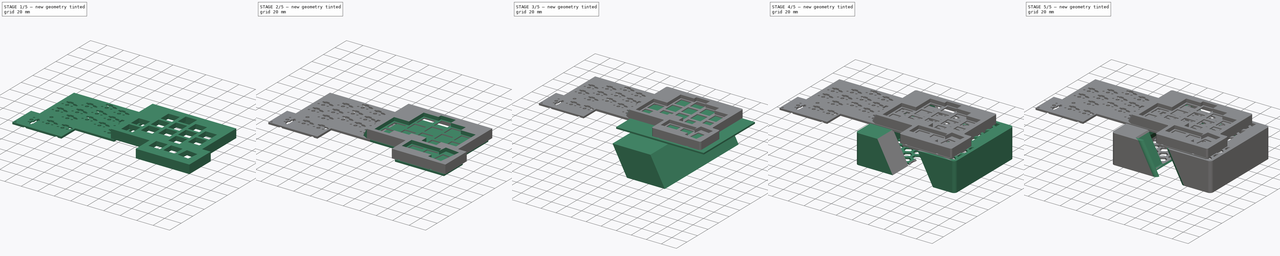
[diagram: build sequence overview — one tinted view per stage of 5, left to right]
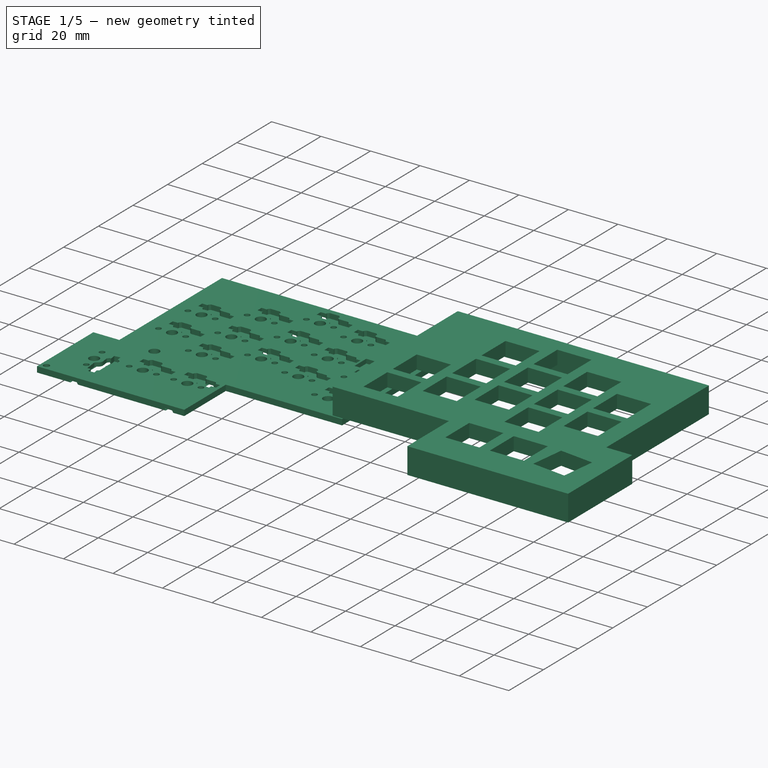
[diagram: stage 1 of 5 — iso view after this stage's code; geometry added in this stage tinted green]
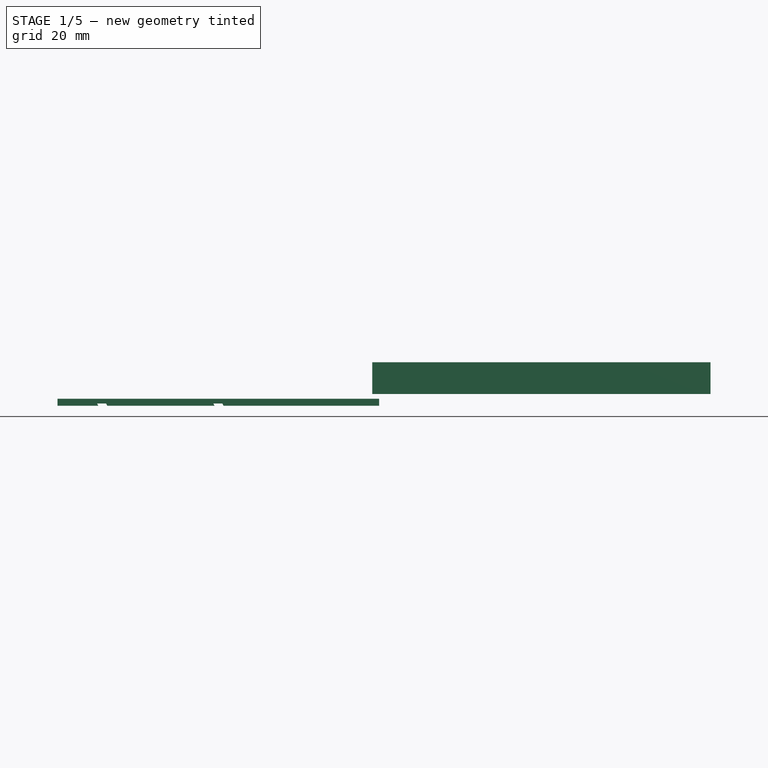
[diagram: stage 1 of 5 — front view after this stage's code; geometry added in this stage tinted green]
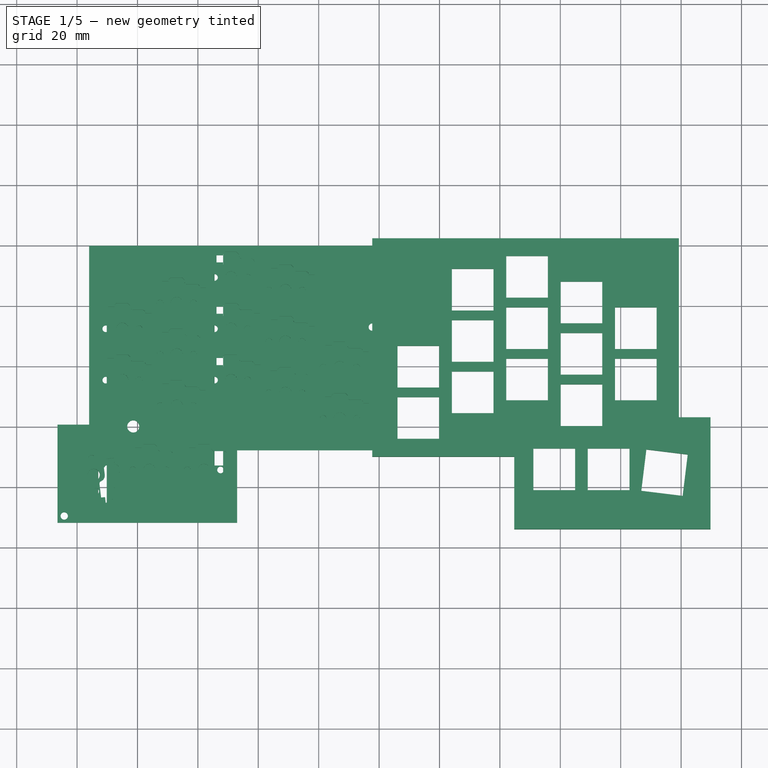
[diagram: stage 1 of 5 — top view after this stage's code; geometry added in this stage tinted green]
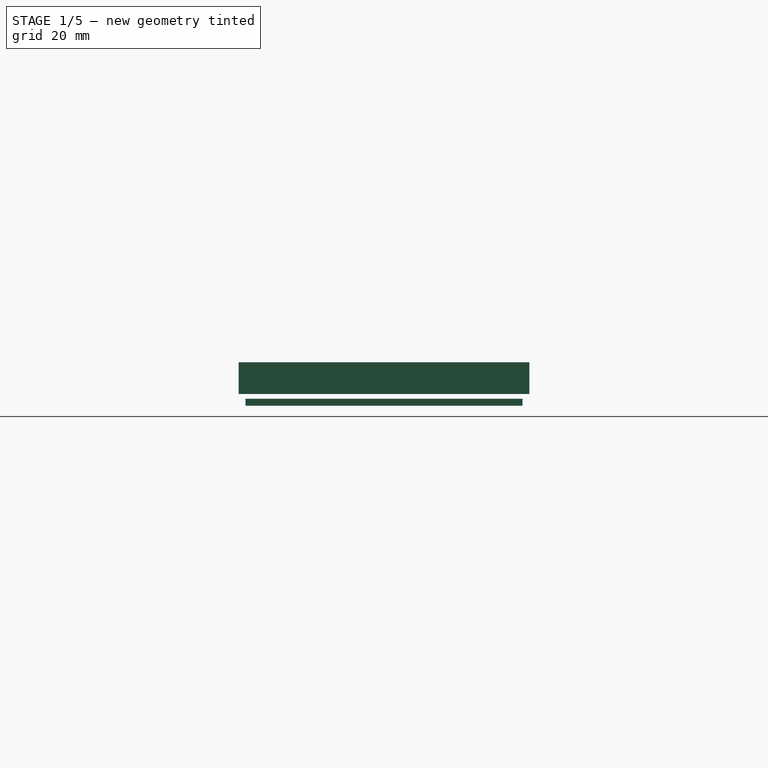
[diagram: stage 1 of 5 — right view after this stage's code; geometry added in this stage tinted green]
FCSTD DOCUMENT  (FreeCAD 1.0RUnknown)
Label: case
License: All rights reserved
LicenseURL: https://en.wikipedia.org/wiki/All_rights_reserved
objects: Sketcher::SketchObject×47, PartDesign::Pocket×26, PartDesign::Pad×19, PartDesign::Body×10, PartDesign::LinearPattern×6, PartDesign::SubShapeBinder×5, PartDesign::Hole×4, PartDesign::Boolean×3, PartDesign::Fillet×3, PartDesign::Line×3, PartDesign::MultiTransform×2, PartDesign::Thickness×1, PartDesign::ShapeBinder×1, PartDesign::SubtractiveLoft×1
note: 297 computed .brp shape members not serialized (recipe doc carries the construction recipe); baked Part::Feature solids carry a one-line shape summary decoded from their .brp

FEATURE [Sketcher::SketchObject] Sketch  label="PcbS"
  ArcFitTolerance = 1e-06
  AttachmentSupport = -> [XY_Plane]
  FullyConstrained = true
  MakeInternals = false
  MapMode = 5
  sketch-geometry (8):
    g0: LineSegment StartX=0 StartY=-67.75 StartZ=0 EndX=0 EndY=0 EndZ=0
    g1: LineSegment StartX=0 StartY=0 StartZ=0 EndX=96 EndY=0 EndZ=0
    g2: LineSegment StartX=96 StartY=0 StartZ=0 EndX=96 EndY=-59.25 EndZ=0
    g3: LineSegment StartX=96 StartY=-59.25 StartZ=0 EndX=106.5 EndY=-59.25 EndZ=0
    g4: LineSegment StartX=106.5 StartY=-59.25 StartZ=0 EndX=106.5 EndY=-91.75 EndZ=0
    g5: LineSegment StartX=106.5 StartY=-91.75 StartZ=0 EndX=47 EndY=-91.75 EndZ=0
    g6: LineSegment StartX=47 StartY=-91.75 StartZ=0 EndX=47 EndY=-67.75 EndZ=0
    g7: LineSegment StartX=47 StartY=-67.75 StartZ=0 EndX=0 EndY=-67.75 EndZ=0
  constraints (25):
    c: Coincident(g0,g7)
    c: Coincident(g0,g1)
    c: Coincident(g5,g6)
    c: Coincident(g6,g7)
    c: Coincident(g1,g2)
    c: Coincident(g4,g5)
    c: Coincident(g3,g4)
    c: Vertical(g0)
    c: Vertical(g2)
    c: Horizontal(g1)
    c: Horizontal(g7)
    c: Parallel(g3,g5)
    c: Vertical(g6)
    c: Perpendicular(g4,g5)
    c: DistanceY(g0,g0) = 67.75
    c: DistanceX(g1,g1) = 96
    c: Coincident(g2,g3)
    c: Coincident(g-1,g0)
    c: DistanceX(g5,g3) = 59.5
    c: Horizontal(g5)
    c: DistanceY(g4,g2) = 32.5
    c: DistanceY(g2,g2) = 59.25
    c: DistanceX(g0,g4) = 106.5  'total_width'
    c: DistanceY(g4,g0) = 91.75  'total_height'
    c: DistanceX(g3,g3) = 10.5
FEATURE [PartDesign::Pad] Pad
  Direction = (0,0,1)
  Length = 1.6
  Length2 = 10
  Profile = -> Sketch
  ReferenceAxis = -> Sketch [N_Axis]
  Refine = true
  Suppressed = false
  Type = 0
FEATURE [PartDesign::Body] Body  label="Pcb"
  AllowCompound = false
  Group = -> [Sketch,Pad]
  Origin = -> Origin
  Tip = -> Pad
FEATURE [PartDesign::SubShapeBinder] Binder
  BindCopyOnChange = 0
  BindMode = 0
  ClaimChildren = false
  Context = -> Body001 [Binder.]
  Fuse = false
  MakeFace = true
  Offset = 2.25
  OffsetFill = false
  OffsetIntersection = false
  OffsetJoinType = 1
  OffsetOpenResult = false
  PartialLoad = false
  Refine = true
  Relative = true
  Support = -> [Body[Pad.Face10]]
  _Version = 2
FEATURE [PartDesign::Pad] Pad001
  Direction = (0,0,-1)
  Length = 10.5
  Length2 = 10
  Profile = -> Binder [Face1]
  Refine = true
  Reversed = true
  Suppressed = false
  Type = 0
FEATURE [PartDesign::SubShapeBinder] Binder001
  BindCopyOnChange = 0
  BindMode = 0
  ClaimChildren = false
  Context = -> Body001 [Boolean.Body002.Binder001.]
  Fuse = false
  MakeFace = true
  Offset = 0.25
  OffsetFill = false
  OffsetIntersection = false
  OffsetJoinType = 1
  OffsetOpenResult = false
  PartialLoad = false
  Refine = true
  Relative = true
  Support = -> [Body[Pad.Face10]]
  _Version = 2
FEATURE [PartDesign::Pad] Pad002
  Direction = (0,0,-1)
  Length = 5
  Length2 = 10
  Profile = -> Binder001
  Refine = true
  Reversed = true
  Suppressed = false
  Type = 0
FEATURE [PartDesign::Body] Body002  label="NegPcb"
  AllowCompound = false
  Group = -> [Binder001,Pad002]
  Origin = -> Origin002
  Tip = -> Pad002
FEATURE [PartDesign::Boolean] Boolean
  BaseFeature = -> Pad001
  Group = -> [Body002]
  Refine = true
  Suppressed = false
  Type = 1
  UsePlacement = true
FEATURE [PartDesign::Body] Body003  label="Bottom"
  AllowCompound = true
  Group = -> [DatumLine001,Binder002,Pad004,Sketch009,Pocket006,Sketch024,Pocket011,Sketch038,Hole002,Sketch053,Hole,Sketch068,Pocket040]
  Origin = -> Origin003
  Tip = -> Pocket040
FEATURE [PartDesign::Pad] Pad031
  BaseFeature = -> Boolean
  Direction = (1,0,0)
  Length = 1
  Length2 = 10
  Profile = -> Pad001 [Face3,Face5]
  Refine = true
  Suppressed = false
  Type = 0
FEATURE [PartDesign::Pocket] Pocket  label="Keys001"
  BaseFeature = -> Pad031
  Direction = (0,0,-1)
  Length = 5
  Length2 = 5
  Profile = -> Sketch001
  ReferenceAxis = -> Sketch001 [N_Axis]
  Refine = true
  Suppressed = false
  Type = 1
FEATURE [PartDesign::Body] Body001  label="Top"
  AllowCompound = false
  Group = -> [Binder,DatumLine,Pad001,Boolean,Pad031,Sketch001,Pocket,Sketch002,Pocket001,Sketch003,Pocket002,Sketch004,Pocket003,Sketch005,Pocket004,Sketch008,Pocket005,SubtractiveLoft,Sketch067,Sketch025,Pocket012,Sketch039,Pocket019,Pad023,Sketch047,Sketch049,Pocket028,Sketch050,Pad019,Pocket039,Fillet003,Sketch054,Pocket029,Sketch055,Pocket030,Sketch056,Pocket031,Sketch066]
  Origin = -> Origin001
  Tip = -> Pocket031
FEATURE [PartDesign::SubShapeBinder] Binder004
  BindCopyOnChange = 0
  BindMode = 0
  ClaimChildren = false
  Context = -> Body011 [Binder004.]
  Fuse = false
  MakeFace = true
  OffsetFill = false
  OffsetIntersection = false
  OffsetJoinType = 0
  OffsetOpenResult = false
  PartialLoad = false
  Placement = pos=(0,0,0) rot=(0,1,0;3.14159rad)
  Refine = true
  Relative = false
  Support = -> [Body[Pad.Face10]]
  _Version = 2
FEATURE [PartDesign::Pad] Pad032
  Direction = (1e-16,0,-1)
  Length = 2.3
  Length2 = 10
  Placement = pos=(0,0,0) rot=(0,1,0;3.14159rad)
  Profile = -> Binder004 [Face1]
  Refine = true
  Suppressed = false
  Type = 0
FEATURE [Sketcher::SketchObject] Sketch090  label="SingleSocket"
  ArcFitTolerance = 1e-06
  AttachmentOffset = pos=(0,0,0) rot=(0,0,1;3.14159rad)
  AttachmentSupport = -> [Pad032]
  FullyConstrained = false
  MakeInternals = false
  MapMode = 5
  sketch-geometry (37):
    g0: LineSegment [constr] StartX=0 StartY=0 StartZ=0 EndX=13.8 EndY=0 EndZ=0
    g1: LineSegment [constr] StartX=13.8 StartY=0 StartZ=0 EndX=13.8 EndY=13.8 EndZ=0
    g2: LineSegment [constr] StartX=13.8 StartY=13.8 StartZ=0 EndX=0 EndY=13.8 EndZ=0
    g3: LineSegment [constr] StartX=0 StartY=13.8 StartZ=0 EndX=0 EndY=0 EndZ=0
    g4: LineSegment StartX=2.06118 StartY=14.2288 StartZ=0 EndX=4.21118 EndY=14.2288 EndZ=0
    g5: LineSegment StartX=2.06118 StartY=11.8788 StartZ=0 EndX=2.06118 EndY=14.2288 EndZ=0
    g6: LineSegment StartX=2.06118 StartY=11.8788 StartZ=0 EndX=4.21118 EndY=11.8788 EndZ=0
    g7: LineSegment StartX=4.21118 StartY=14.6788 StartZ=0 EndX=4.88293 EndY=15.3506 EndZ=0
    g8: LineSegment StartX=4.21118 StartY=14.2288 StartZ=0 EndX=4.21118 EndY=14.6788 EndZ=0
    g9: LineSegment StartX=4.21118 StartY=11.8788 StartZ=0 EndX=4.21118 EndY=11.2288 EndZ=0
    g10: LineSegment StartX=4.21118 StartY=11.2288 StartZ=0 EndX=4.89 EndY=10.55 EndZ=0
    g11: LineSegment StartX=4.88293 StartY=15.3506 StartZ=0 EndX=8.73293 EndY=15.3506 EndZ=0
    g12: LineSegment StartX=4.89 StartY=10.55 StartZ=0 EndX=7.24 EndY=10.55 EndZ=0
    g13: LineSegment StartX=8.73293 StartY=15.3506 StartZ=0 EndX=9.50367 EndY=14.5798 EndZ=0
    g14: LineSegment StartX=9.50367 StartY=14.5798 StartZ=0 EndX=9.50367 EndY=14.0498 EndZ=0
    g15: LineSegment StartX=10.1137 StartY=8.37983 StartZ=0 EndX=14.6337 EndY=8.37983 EndZ=0
    g16: LineSegment StartX=10.4037 StartY=13.1498 StartZ=0 EndX=13.5037 EndY=13.1498 EndZ=0
    g17: LineSegment StartX=14.6237 StartY=12.0298 StartZ=0 EndX=16.5337 EndY=12.0298 EndZ=0
    g18: LineSegment StartX=14.6337 StartY=9.67983 StartZ=0 EndX=14.6337 EndY=8.37983 EndZ=0
    g19: LineSegment StartX=16.5337 StartY=9.67983 StartZ=0 EndX=14.6337 EndY=9.67983 EndZ=0
    g20: LineSegment StartX=16.5337 StartY=9.67983 StartZ=0 EndX=16.5337 EndY=12.0298 EndZ=0
    g21: ArcOfCircle CenterX=7.24 CenterY=8.4823 CenterZ=0 NormalX=0 NormalY=0 NormalZ=1 AngleXU=0 Radius=2.0677 StartAngle=0.277167 EndAngle=1.5708
    g22: ArcOfCircle CenterX=10.1137 CenterY=9.29983 CenterZ=0 NormalX=0 NormalY=0 NormalZ=1 AngleXU=0 Radius=0.92 StartAngle=3.41876 EndAngle=4.71239
    g23: ArcOfCircle CenterX=10.4037 CenterY=14.0498 CenterZ=0 NormalX=0 NormalY=0 NormalZ=1 AngleXU=0 Radius=0.9 StartAngle=3.14159 EndAngle=4.71239
    g24: ArcOfCircle CenterX=13.5037 CenterY=12.0298 CenterZ=0 NormalX=0 NormalY=0 NormalZ=1 AngleXU=0 Radius=1.12 StartAngle=0 EndAngle=1.5708
    g25: Circle CenterX=1.4 CenterY=6.9 CenterZ=0 NormalX=0 NormalY=0 NormalZ=-1 AngleXU=0 Radius=1.1
    g26: Circle CenterX=6.9 CenterY=6.9 CenterZ=0 NormalX=0 NormalY=0 NormalZ=-1 AngleXU=0 Radius=2
    g27: Circle CenterX=12.4 CenterY=6.9 CenterZ=0 NormalX=0 NormalY=0 NormalZ=-1 AngleXU=0 Radius=1.1
    g28: LineSegment [constr] StartX=1.4 StartY=6.9 StartZ=0 EndX=12.4 EndY=6.9 EndZ=0
    g29: LineSegment [constr] StartX=13.5037 StartY=12.0298 StartZ=0 EndX=14.6237 EndY=12.0298 EndZ=0
    g30: LineSegment [constr] StartX=13.5037 StartY=12.0298 StartZ=0 EndX=13.5037 EndY=13.1498 EndZ=0
    g31: LineSegment [constr] StartX=9.50367 StartY=14.0498 StartZ=0 EndX=10.4037 EndY=14.0498 EndZ=0
    g32: LineSegment [constr] StartX=10.4037 StartY=14.0498 StartZ=0 EndX=10.4037 EndY=13.1498 EndZ=0
    g33: LineSegment [constr] StartX=7.24 StartY=10.55 StartZ=0 EndX=7.24 EndY=8.4823 EndZ=0
    g34: LineSegment [constr] StartX=10.1137 StartY=8.37983 StartZ=0 EndX=10.1137 EndY=9.29983 EndZ=0
    g35: LineSegment [constr] StartX=7.24 StartY=8.4823 StartZ=0 EndX=10.1137 EndY=9.29983 EndZ=0
    g36: Circle [constr] CenterX=6.9 CenterY=6.9 CenterZ=0 NormalX=0 NormalY=0 NormalZ=1 AngleXU=0 Radius=9.75807
  constraints (103):
    c: Coincident(g0,g3)
    c: Coincident(g2,g3)
    c: Coincident(g0,g1)
    c: Coincident(g1,g2)
    c: Vertical(g1)
    c: Vertical(g3)
    c: Horizontal(g0)
    c: Horizontal(g2)
    c: DistanceX(g0,g0) = 13.8
    c: DistanceY(g3,g3) = 13.8
    c: Coincident(g5,g6)
    c: Coincident(g4,g5)
    c: Coincident(g9,g10)
    c: Coincident(g6,g9)
    c: Coincident(g4,g8)
    c: Coincident(g7,g8)
    c: Coincident(g10,g12)
    c: Coincident(g7,g11)
    c: Coincident(g12,g21)
    c: Coincident(g11,g13)
    c: Coincident(g21,g22)
    c: Coincident(g14,g23)
    c: Coincident(g13,g14)
    c: Coincident(g15,g22)
    c: Coincident(g16,g23)
    c: Coincident(g16,g24)
    c: Coincident(g15,g18)
    c: Coincident(g18,g19)
    c: Coincident(g17,g24)
    c: Coincident(g19,g20)
    c: Coincident(g17,g20)
    c: Radius(g26) = 2
    c: Radius(g25) = 1.1
    c: Radius(g27) = 1.1
    c: Coincident(g28,g25)
    c: Coincident(g28,g27)
    c: Horizontal(g28)
    c: Vertical(g5)
    c: Vertical(g9)
    c: Vertical(g8)
    c: Vertical(g14)
    c: Vertical(g18)
    c: Vertical(g20)
    c: Horizontal(g19)
    c: Horizontal(g15)
    c: Horizontal(g12)
    c: Horizontal(g6)
    c: Horizontal(g4)
    c: Horizontal(g11)
    c: Horizontal(g16)
    c: Angle(g7,g11) = 2.35619
    c: Angle(g11,g13) = 2.35619
    c: Angle(g12,g10) = 2.35619
    c: Radius(g23) = 0.9
    c: Radius(g24) = 1.12
    c: Radius(g22) = 0.92
    c: DistanceY(g5,g5) = 2.35
    c: DistanceY(g18,g18) = 1.3
    c: DistanceY(g20,g20) = 2.35
    c: DistanceY(g9,g9) = 0.65
    c: DistanceY(g8,g8) = 0.45
    c: DistanceY(g14,g14) = 0.53
    c: DistanceX(g12,g12) = 2.35
    c: DistanceX(g15,g15) = 4.52
    c: DistanceX(g19,g19) = 1.9
    c: DistanceX(g16,g16) = 3.1
    c: DistanceX(g11,g11) = 3.85
    c: DistanceX(g4,g4) = 2.15
    c: DistanceX(g6,g6) = 2.15
    c: DistanceY(g26,g12) = 3.65
    c: Coincident(g29,g24)
    c: Coincident(g29,g17)
    c: Horizontal(g29)
    c: Coincident(g30,g24)
    c: Coincident(g30,g16)
    c: Vertical(g30)
    c: Coincident(g31,g14)
    c: Coincident(g31,g23)
    c: Horizontal(g31)
    c: Coincident(g32,g23)
    c: Coincident(g32,g16)
    c: Vertical(g32)
    c: Horizontal(g17)
    c: Distance(g10) = 0.96
    c: Distance(g7) = 0.95
    c: Distance(g13) = 1.09
    c: DistanceX(g17,g17) = 1.91
    c: DistanceX(g26,g12) = 0.34
    c: Symmetric(g25,g27,g26)
    c: DistanceX(g28,g28) = 11
    c: Coincident(g33,g12)
    c: Coincident(g33,g21)
    c: Vertical(g33)
    c: Coincident(g34,g15)
    c: Coincident(g34,g22)
    c: Vertical(g34)
    c: Coincident(g35,g21)
    c: Coincident(g35,g22)
    c: PointOnObject(g21,g35)
    c: PointOnObject(g2,g36)
    c: PointOnObject(g0,g36)
    c: PointOnObject(g1,g36)
    c: Coincident(g26,g36)
FEATURE [Sketcher::SketchObject] MirroredSketch001  label="KeysRight"
  ArcFitTolerance = 1e-06
  AttachmentSupport = -> [Pad032]
  FullyConstrained = true
  MakeInternals = false
  sketch-geometry (683):
    g0: LineSegment [constr] StartX=-6.1 StartY=-64.15 StartZ=0 EndX=-19.9 EndY=-64.15 EndZ=0
    g1: LineSegment [constr] StartX=-19.9 StartY=-64.15 StartZ=0 EndX=-19.9 EndY=-50.35 EndZ=0
    g2: LineSegment [constr] StartX=-19.9 StartY=-50.35 StartZ=0 EndX=-6.1 EndY=-50.35 EndZ=0
    g3: LineSegment [constr] StartX=-6.1 StartY=-50.35 StartZ=0 EndX=-6.1 EndY=-64.15 EndZ=0
    g4: LineSegment [constr] StartX=-6.1 StartY=-47.15 StartZ=0 EndX=-19.9 EndY=-47.15 EndZ=0
    g5: LineSegment [constr] StartX=-19.9 StartY=-47.15 StartZ=0 EndX=-19.9 EndY=-33.35 EndZ=0
    g6: LineSegment [constr] StartX=-19.9 StartY=-33.35 StartZ=0 EndX=-6.1 EndY=-33.35 EndZ=0
    g7: LineSegment [constr] StartX=-6.1 StartY=-33.35 StartZ=0 EndX=-6.1 EndY=-47.15 EndZ=0
    g8: LineSegment [constr] StartX=-24.1 StartY=-55.65 StartZ=0 EndX=-37.9 EndY=-55.65 EndZ=0
    g9: LineSegment [constr] StartX=-37.9 StartY=-55.65 StartZ=0 EndX=-37.9 EndY=-41.85 EndZ=0
    g10: LineSegment [constr] StartX=-37.9 StartY=-41.85 StartZ=0 EndX=-24.1 EndY=-41.85 EndZ=0
    g11: LineSegment [constr] StartX=-24.1 StartY=-41.85 StartZ=0 EndX=-24.1 EndY=-55.65 EndZ=0
    g12: LineSegment [constr] StartX=-24.1 StartY=-38.65 StartZ=0 EndX=-37.9 EndY=-38.65 EndZ=0
    g13: LineSegment [constr] StartX=-37.9 StartY=-38.65 StartZ=0 EndX=-37.9 EndY=-24.85 EndZ=0
    g14: LineSegment [constr] StartX=-37.9 StartY=-24.85 StartZ=0 EndX=-24.1 EndY=-24.85 EndZ=0
    g15: LineSegment [constr] StartX=-24.1 StartY=-24.85 StartZ=0 EndX=-24.1 EndY=-38.65 EndZ=0
    g16: LineSegment [constr] StartX=-24.1 StartY=-21.65 StartZ=0 EndX=-37.9 EndY=-21.65 EndZ=0
    g17: LineSegment [constr] StartX=-37.9 StartY=-21.65 StartZ=0 EndX=-37.9 EndY=-7.85 EndZ=0
    g18: LineSegment [constr] StartX=-37.9 StartY=-7.85 StartZ=0 EndX=-24.1 EndY=-7.85 EndZ=0
    g19: LineSegment [constr] StartX=-24.1 StartY=-7.85 StartZ=0 EndX=-24.1 EndY=-21.65 EndZ=0
    g20: LineSegment [constr] StartX=-42.1 StartY=-51.4 StartZ=0 EndX=-55.9 EndY=-51.4 EndZ=0
    g21: LineSegment [constr] StartX=-55.9 StartY=-51.4 StartZ=0 EndX=-55.9 EndY=-37.6 EndZ=0
    g22: LineSegment [constr] StartX=-55.9 StartY=-37.6 StartZ=0 EndX=-42.1 EndY=-37.6 EndZ=0
    g23: LineSegment [constr] StartX=-42.1 StartY=-37.6 StartZ=0 EndX=-42.1 EndY=-51.4 EndZ=0
    g24: LineSegment [constr] StartX=-42.1 StartY=-34.4 StartZ=0 EndX=-55.9 EndY=-34.4 EndZ=0
    g25: LineSegment [constr] StartX=-55.9 StartY=-34.4 StartZ=0 EndX=-55.9 EndY=-20.6 EndZ=0
    g26: LineSegment [constr] StartX=-55.9 StartY=-20.6 StartZ=0 EndX=-42.1 EndY=-20.6 EndZ=0
    g27: LineSegment [constr] StartX=-42.1 StartY=-20.6 StartZ=0 EndX=-42.1 EndY=-34.4 EndZ=0
    g28: LineSegment [constr] StartX=-42.1 StartY=-17.4 StartZ=0 EndX=-55.9 EndY=-17.4 EndZ=0
    g29: LineSegment [constr] StartX=-55.9 StartY=-17.4 StartZ=0 EndX=-55.9 EndY=-3.6 EndZ=0
    g30: LineSegment [constr] StartX=-55.9 StartY=-3.6 StartZ=0 EndX=-42.1 EndY=-3.6 EndZ=0
    g31: LineSegment [constr] StartX=-42.1 StartY=-3.6 StartZ=0 EndX=-42.1 EndY=-17.4 EndZ=0
    g32: LineSegment [constr] StartX=-60.1 StartY=-59.9 StartZ=0 EndX=-73.9 EndY=-59.9 EndZ=0
    g33: LineSegment [constr] StartX=-73.9 StartY=-59.9 StartZ=0 EndX=-73.9 EndY=-46.1 EndZ=0
    g34: LineSegment [constr] StartX=-73.9 StartY=-46.1 StartZ=0 EndX=-60.1 EndY=-46.1 EndZ=0
    g35: LineSegment [constr] StartX=-60.1 StartY=-46.1 StartZ=0 EndX=-60.1 EndY=-59.9 EndZ=0
    g36: LineSegment [constr] StartX=-60.1 StartY=-42.9 StartZ=0 EndX=-73.9 EndY=-42.9 EndZ=0
    g37: LineSegment [constr] StartX=-73.9 StartY=-42.9 StartZ=0 EndX=-73.9 EndY=-29.1 EndZ=0
    g38: LineSegment [constr] StartX=-73.9 StartY=-29.1 StartZ=0 EndX=-60.1 EndY=-29.1 EndZ=0
    g39: LineSegment [constr] StartX=-60.1 StartY=-29.1 StartZ=0 EndX=-60.1 EndY=-42.9 EndZ=0
    g40: LineSegment [constr] StartX=-60.1 StartY=-25.9 StartZ=0 EndX=-73.9 EndY=-25.9 EndZ=0
    g41: LineSegment [constr] StartX=-73.9 StartY=-25.9 StartZ=0 EndX=-73.9 EndY=-12.1 EndZ=0
    g42: LineSegment [constr] StartX=-73.9 StartY=-12.1 StartZ=0 EndX=-60.1 EndY=-12.1 EndZ=0
    g43: LineSegment [constr] StartX=-60.1 StartY=-12.1 StartZ=0 EndX=-60.1 EndY=-25.9 EndZ=0
    g44: LineSegment [constr] StartX=-78.1 StartY=-51.4 StartZ=0 EndX=-91.9 EndY=-51.4 EndZ=0
    g45: LineSegment [constr] StartX=-91.9 StartY=-51.4 StartZ=0 EndX=-91.9 EndY=-37.6 EndZ=0
    g46: LineSegment [constr] StartX=-91.9 StartY=-37.6 StartZ=0 EndX=-78.1 EndY=-37.6 EndZ=0
    g47: LineSegment [constr] StartX=-78.1 StartY=-37.6 StartZ=0 EndX=-78.1 EndY=-51.4 EndZ=0
    g48: LineSegment [constr] StartX=-78.1 StartY=-34.4 StartZ=0 EndX=-91.9 EndY=-34.4 EndZ=0
    g49: LineSegment [constr] StartX=-91.9 StartY=-34.4 StartZ=0 EndX=-91.9 EndY=-20.6 EndZ=0
    g50: LineSegment [constr] StartX=-91.9 StartY=-20.6 StartZ=0 EndX=-78.1 EndY=-20.6 EndZ=0
    g51: LineSegment [constr] StartX=-78.1 StartY=-20.6 StartZ=0 EndX=-78.1 EndY=-34.4 EndZ=0
    g52: LineSegment [constr] StartX=-51.1 StartY=-81.15 StartZ=0 EndX=-64.9 EndY=-81.15 EndZ=0
    g53: LineSegment [constr] StartX=-64.9 StartY=-81.15 StartZ=0 EndX=-64.9 EndY=-67.35 EndZ=0
    g54: LineSegment [constr] StartX=-64.9 StartY=-67.35 StartZ=0 EndX=-51.1 EndY=-67.35 EndZ=0
    g55: LineSegment [constr] StartX=-51.1 StartY=-67.35 StartZ=0 EndX=-51.1 EndY=-81.15 EndZ=0
    g56: LineSegment [constr] StartX=-69.1 StartY=-81.15 StartZ=0 EndX=-82.9 EndY=-81.15 EndZ=0
    g57: LineSegment [constr] StartX=-82.9 StartY=-81.15 StartZ=0 EndX=-82.9 EndY=-67.35 EndZ=0
    g58: LineSegment [constr] StartX=-82.9 StartY=-67.35 StartZ=0 EndX=-69.1 EndY=-67.35 EndZ=0
    g59: LineSegment [constr] StartX=-69.1 StartY=-67.35 StartZ=0 EndX=-69.1 EndY=-81.15 EndZ=0
    g60: LineSegment [constr] StartX=-19.9 StartY=-47.15 StartZ=0 EndX=-24.1 EndY=-47.15 EndZ=0
    g61: LineSegment [constr] StartX=-19.9 StartY=-50.35 StartZ=0 EndX=-19.9 EndY=-47.15 EndZ=0
    g62: LineSegment [constr] StartX=-24.1 StartY=-41.85 StartZ=0 EndX=-24.1 EndY=-38.65 EndZ=0
    g63: LineSegment [constr] StartX=-42.1 StartY=-37.6 StartZ=0 EndX=-37.9 EndY=-37.6 EndZ=0
    g64: LineSegment [constr] StartX=-24.1 StartY=-24.85 StartZ=0 EndX=-24.1 EndY=-21.65 EndZ=0
    g65: LineSegment [constr] StartX=-60.1 StartY=-25.9 StartZ=0 EndX=-60.1 EndY=-29.1 EndZ=0
    g66: LineSegment [constr] StartX=-60.1 StartY=-42.9 StartZ=0 EndX=-60.1 EndY=-46.1 EndZ=0
    g67: LineSegment [constr] StartX=-60.1 StartY=-29.1 StartZ=0 EndX=-55.9 EndY=-29.1 EndZ=0
    g68: LineSegment [constr] StartX=-64.9 StartY=-67.35 StartZ=0 EndX=-69.1 EndY=-67.35 EndZ=0
    g69: LineSegment [constr] StartX=-6.1 StartY=-50.35 StartZ=0 EndX=-6.1 EndY=-47.15 EndZ=0
    g70: LineSegment [constr] StartX=-37.9 StartY=-41.85 StartZ=0 EndX=-37.9 EndY=-38.65 EndZ=0
    g71: LineSegment [constr] StartX=-37.9 StartY=-24.85 StartZ=0 EndX=-37.9 EndY=-21.65 EndZ=0
    g72: LineSegment [constr] StartX=-55.9 StartY=-17.4 StartZ=0 EndX=-55.9 EndY=-20.6 EndZ=0
    g73: LineSegment [constr] StartX=-55.9 StartY=-34.4 StartZ=0 EndX=-55.9 EndY=-37.6 EndZ=0
    g74: LineSegment [constr] StartX=-73.9 StartY=-25.9 StartZ=0 EndX=-73.9 EndY=-29.1 EndZ=0
    g75: LineSegment [constr] StartX=-73.9 StartY=-46.1 StartZ=0 EndX=-73.9 EndY=-42.9 EndZ=0
    g76: LineSegment [constr] StartX=-42.1 StartY=-34.4 StartZ=0 EndX=-42.1 EndY=-37.6 EndZ=0
    g77: LineSegment [constr] StartX=-42.1 StartY=-20.6 StartZ=0 EndX=-42.1 EndY=-17.4 EndZ=0
    g78: LineSegment [constr] StartX=-91.9 StartY=-34.4 StartZ=0 EndX=-91.9 EndY=-37.6 EndZ=0
    g79: LineSegment [constr] StartX=-78.1 StartY=-37.6 StartZ=0 EndX=-78.1 EndY=-34.4 EndZ=0
    g80: LineSegment [constr] StartX=-78.1 StartY=-34.4 StartZ=0 EndX=-73.9 EndY=-34.4 EndZ=0
    g81: LineSegment [constr] StartX=-64.9 StartY=-81.15 StartZ=0 EndX=-69.1 EndY=-81.15 EndZ=0
    g82: LineSegment [constr] StartX=-86.8106 StartY=-81.9002 StartZ=0 EndX=-82.9 EndY=-81.42 EndZ=0
    g83: GeomPoint [constr] X=-13 Y=-57.25 Z=0
    g84: LineSegment [constr] StartX=-91.9 StartY=-34.4 StartZ=0 EndX=-78.1 EndY=-34.4 EndZ=0
    g85: LineSegment [constr] StartX=-78.1 StartY=-34.4 StartZ=0 EndX=-78.1 EndY=-20.6 EndZ=0
    g86: LineSegment [constr] StartX=-78.1 StartY=-20.6 StartZ=0 EndX=-91.9 EndY=-20.6 EndZ=0
    g87: LineSegment [constr] StartX=-91.9 StartY=-20.6 StartZ=0 EndX=-91.9 EndY=-34.4 EndZ=0
    g88: LineSegment StartX=-89.8388 StartY=-20.1712 StartZ=0 EndX=-87.6888 EndY=-20.1712 EndZ=0
    g89: LineSegment StartX=-89.8388 StartY=-22.5212 StartZ=0 EndX=-89.8388 EndY=-20.1712 EndZ=0
    g90: LineSegment StartX=-89.8388 StartY=-22.5212 StartZ=0 EndX=-87.6888 EndY=-22.5212 EndZ=0
    g91: LineSegment StartX=-87.6888 StartY=-19.7212 StartZ=0 EndX=-87.0171 EndY=-19.0494 EndZ=0
    g92: LineSegment StartX=-87.6888 StartY=-20.1712 StartZ=0 EndX=-87.6888 EndY=-19.7212 EndZ=0
    g93: LineSegment StartX=-87.6888 StartY=-22.5212 StartZ=0 EndX=-87.6888 EndY=-23.1712 EndZ=0
    g94: LineSegment StartX=-87.6888 StartY=-23.1712 StartZ=0 EndX=-87.01 EndY=-23.85 EndZ=0
    g95: LineSegment StartX=-87.0171 StartY=-19.0494 StartZ=0 EndX=-83.1671 EndY=-19.0494 EndZ=0
    g96: LineSegment StartX=-87.01 StartY=-23.85 StartZ=0 EndX=-84.66 EndY=-23.85 EndZ=0
    g97: LineSegment StartX=-83.1671 StartY=-19.0494 StartZ=0 EndX=-82.3963 EndY=-19.8202 EndZ=0
    g98: LineSegment StartX=-82.3963 StartY=-19.8202 StartZ=0 EndX=-82.3963 EndY=-20.3502 EndZ=0
    g99: LineSegment StartX=-81.7863 StartY=-26.0202 StartZ=0 EndX=-77.2663 EndY=-26.0202 EndZ=0
    g100: LineSegment StartX=-81.4963 StartY=-21.2502 StartZ=0 EndX=-78.3963 EndY=-21.2502 EndZ=0
    g101: LineSegment StartX=-77.2763 StartY=-22.3702 StartZ=0 EndX=-75.3663 EndY=-22.3702 EndZ=0
    g102: LineSegment StartX=-77.2663 StartY=-24.7202 StartZ=0 EndX=-77.2663 EndY=-26.0202 EndZ=0
    g103: LineSegment StartX=-75.3663 StartY=-24.7202 StartZ=0 EndX=-77.2663 EndY=-24.7202 EndZ=0
    g104: LineSegment StartX=-75.3663 StartY=-24.7202 StartZ=0 EndX=-75.3663 EndY=-22.3702 EndZ=0
    g105: ArcOfCircle CenterX=-84.66 CenterY=-25.9177 CenterZ=0 NormalX=0 NormalY=0 NormalZ=1 AngleXU=0 Radius=2.0677 StartAngle=0.277167 EndAngle=1.5708
    g106: ArcOfCircle CenterX=-81.7863 CenterY=-25.1002 CenterZ=0 NormalX=0 NormalY=0 NormalZ=1 AngleXU=0 Radius=0.92 StartAngle=3.41876 EndAngle=4.71239
    g107: ArcOfCircle CenterX=-81.4963 CenterY=-20.3502 CenterZ=0 NormalX=0 NormalY=0 NormalZ=1 AngleXU=0 Radius=0.9 StartAngle=3.14159 EndAngle=4.71239
    g108: ArcOfCircle CenterX=-78.3963 CenterY=-22.3702 CenterZ=0 NormalX=0 NormalY=0 NormalZ=1 AngleXU=0 Radius=1.12 StartAngle=0 EndAngle=1.5708
    g109: Circle CenterX=-90.5 CenterY=-27.5 CenterZ=0 NormalX=0 NormalY=0 NormalZ=-1 AngleXU=0 Radius=1.1
    g110: Circle CenterX=-85 CenterY=-27.5 CenterZ=0 NormalX=0 NormalY=0 NormalZ=-1 AngleXU=0 Radius=2
    g111: Circle CenterX=-79.5 CenterY=-27.5 CenterZ=0 NormalX=0 NormalY=0 NormalZ=-1 AngleXU=0 Radius=1.1
    g112: LineSegment [constr] StartX=-90.5 StartY=-27.5 StartZ=0 EndX=-79.5 EndY=-27.5 EndZ=0
    g113: LineSegment [constr] StartX=-78.3963 StartY=-22.3702 StartZ=0 EndX=-77.2763 EndY=-22.3702 EndZ=0
    g114: LineSegment [constr] StartX=-78.3963 StartY=-22.3702 StartZ=0 EndX=-78.3963 EndY=-21.2502 EndZ=0
    g115: LineSegment [constr] StartX=-82.3963 StartY=-20.3502 StartZ=0 EndX=-81.4963 EndY=-20.3502 EndZ=0
    g116: LineSegment [constr] StartX=-81.4963 StartY=-20.3502 StartZ=0 EndX=-81.4963 EndY=-21.2502 EndZ=0
    g117: LineSegment [constr] StartX=-84.66 StartY=-23.85 StartZ=0 EndX=-84.66 EndY=-25.9177 EndZ=0
    g118: LineSegment [constr] StartX=-81.7863 StartY=-26.0202 StartZ=0 EndX=-81.7863 EndY=-25.1002 EndZ=0
    g119: LineSegment [constr] StartX=-84.66 StartY=-25.9177 StartZ=0 EndX=-81.7863 EndY=-25.1002 EndZ=0
    g120: Circle [constr] CenterX=-85 CenterY=-27.5 CenterZ=0 NormalX=0 NormalY=0 NormalZ=1 AngleXU=0 Radius=9.75807
    g121: LineSegment [constr] StartX=-91.9 StartY=-51.4 StartZ=0 EndX=-78.1 EndY=-51.4 EndZ=0
    g122: LineSegment [constr] StartX=-78.1 StartY=-51.4 StartZ=0 EndX=-78.1 EndY=-37.6 EndZ=0
    g123: LineSegment [constr] StartX=-78.1 StartY=-37.6 StartZ=0 EndX=-91.9 EndY=-37.6 EndZ=0
    g124: LineSegment [constr] StartX=-91.9 StartY=-37.6 StartZ=0 EndX=-91.9 EndY=-51.4 EndZ=0
    g125: LineSegment StartX=-89.8388 StartY=-37.1712 StartZ=0 EndX=-87.6888 EndY=-37.1712 EndZ=0
    g126: LineSegment StartX=-89.8388 StartY=-39.5212 StartZ=0 EndX=-89.8388 EndY=-37.1712 EndZ=0
    g127: LineSegment StartX=-89.8388 StartY=-39.5212 StartZ=0 EndX=-87.6888 EndY=-39.5212 EndZ=0
    g128: LineSegment StartX=-87.6888 StartY=-36.7212 StartZ=0 EndX=-87.0171 EndY=-36.0494 EndZ=0
    g129: LineSegment StartX=-87.6888 StartY=-37.1712 StartZ=0 EndX=-87.6888 EndY=-36.7212 EndZ=0
    g130: LineSegment StartX=-87.6888 StartY=-39.5212 StartZ=0 EndX=-87.6888 EndY=-40.1712 EndZ=0
    g131: LineSegment StartX=-87.6888 StartY=-40.1712 StartZ=0 EndX=-87.01 EndY=-40.85 EndZ=0
    g132: LineSegment StartX=-87.0171 StartY=-36.0494 StartZ=0 EndX=-83.1671 EndY=-36.0494 EndZ=0
    g133: LineSegment StartX=-87.01 StartY=-40.85 StartZ=0 EndX=-84.66 EndY=-40.85 EndZ=0
    g134: LineSegment StartX=-83.1671 StartY=-36.0494 StartZ=0 EndX=-82.3963 EndY=-36.8202 EndZ=0
    g135: LineSegment StartX=-82.3963 StartY=-36.8202 StartZ=0 EndX=-82.3963 EndY=-37.3502 EndZ=0
    g136: LineSegment StartX=-81.7863 StartY=-43.0202 StartZ=0 EndX=-77.2663 EndY=-43.0202 EndZ=0
    g137: LineSegment StartX=-81.4963 StartY=-38.2502 StartZ=0 EndX=-78.3963 EndY=-38.2502 EndZ=0
    g138: LineSegment StartX=-77.2763 StartY=-39.3702 StartZ=0 EndX=-75.3663 EndY=-39.3702 EndZ=0
    g139: LineSegment StartX=-77.2663 StartY=-41.7202 StartZ=0 EndX=-77.2663 EndY=-43.0202 EndZ=0
    g140: LineSegment StartX=-75.3663 StartY=-41.7202 StartZ=0 EndX=-77.2663 EndY=-41.7202 EndZ=0
    g141: LineSegment StartX=-75.3663 StartY=-41.7202 StartZ=0 EndX=-75.3663 EndY=-39.3702 EndZ=0
    g142: ArcOfCircle CenterX=-84.66 CenterY=-42.9177 CenterZ=0 NormalX=0 NormalY=0 NormalZ=1 AngleXU=0 Radius=2.0677 StartAngle=0.277167 EndAngle=1.5708
    g143: ArcOfCircle CenterX=-81.7863 CenterY=-42.1002 CenterZ=0 NormalX=0 NormalY=0 NormalZ=1 AngleXU=0 Radius=0.92 StartAngle=3.41876 EndAngle=4.71239
    g144: ArcOfCircle CenterX=-81.4963 CenterY=-37.3502 CenterZ=0 NormalX=0 NormalY=0 NormalZ=1 AngleXU=0 Radius=0.9 StartAngle=3.14159 EndAngle=4.71239
    g145: ArcOfCircle CenterX=-78.3963 CenterY=-39.3702 CenterZ=0 NormalX=0 NormalY=0 NormalZ=1 AngleXU=0 Radius=1.12 StartAngle=0 EndAngle=1.5708
    g146: Circle CenterX=-90.5 CenterY=-44.5 CenterZ=0 NormalX=0 NormalY=0 NormalZ=-1 AngleXU=0 Radius=1.1
    g147: Circle CenterX=-85 CenterY=-44.5 CenterZ=0 NormalX=0 NormalY=0 NormalZ=-1 AngleXU=0 Radius=2
    g148: Circle CenterX=-79.5 CenterY=-44.5 CenterZ=0 NormalX=0 NormalY=0 NormalZ=-1 AngleXU=0 Radius=1.1
    g149: LineSegment [constr] StartX=-90.5 StartY=-44.5 StartZ=0 EndX=-79.5 EndY=-44.5 EndZ=0
    g150: LineSegment [constr] StartX=-78.3963 StartY=-39.3702 StartZ=0 EndX=-77.2763 EndY=-39.3702 EndZ=0
    g151: LineSegment [constr] StartX=-78.3963 StartY=-39.3702 StartZ=0 EndX=-78.3963 EndY=-38.2502 EndZ=0
    g152: LineSegment [constr] StartX=-82.3963 StartY=-37.3502 StartZ=0 EndX=-81.4963 EndY=-37.3502 EndZ=0
    g153: LineSegment [constr] StartX=-81.4963 StartY=-37.3502 StartZ=0 EndX=-81.4963 EndY=-38.2502 EndZ=0
    g154: LineSegment [constr] StartX=-84.66 StartY=-40.85 StartZ=0 EndX=-84.66 EndY=-42.9177 EndZ=0
    g155: LineSegment [constr] StartX=-81.7863 StartY=-43.0202 StartZ=0 EndX=-81.7863 EndY=-42.1002 EndZ=0
    g156: LineSegment [constr] StartX=-84.66 StartY=-42.9177 StartZ=0 EndX=-81.7863 EndY=-42.1002 EndZ=0
    g157: Circle [constr] CenterX=-85 CenterY=-44.5 CenterZ=0 NormalX=0 NormalY=0 NormalZ=1 AngleXU=0 Radius=9.75807
    g158: LineSegment [constr] StartX=-64.9 StartY=-81.15 StartZ=0 EndX=-51.1 EndY=-81.15 EndZ=0
    g159: LineSegment [constr] StartX=-51.1 StartY=-81.15 StartZ=0 EndX=-51.1 EndY=-67.35 EndZ=0
    g160: LineSegment [constr] StartX=-51.1 StartY=-67.35 StartZ=0 EndX=-64.9 EndY=-67.35 EndZ=0
    g161: LineSegment [constr] StartX=-64.9 StartY=-67.35 StartZ=0 EndX=-64.9 EndY=-81.15 EndZ=0
    g162: LineSegment StartX=-62.8388 StartY=-66.9212 StartZ=0 EndX=-60.6888 EndY=-66.9212 EndZ=0
    g163: LineSegment StartX=-62.8388 StartY=-69.2712 StartZ=0 EndX=-62.8388 EndY=-66.9212 EndZ=0
    g164: LineSegment StartX=-62.8388 StartY=-69.2712 StartZ=0 EndX=-60.6888 EndY=-69.2712 EndZ=0
    g165: LineSegment StartX=-60.6888 StartY=-66.4712 StartZ=0 EndX=-60.0171 EndY=-65.7994 EndZ=0
    g166: LineSegment StartX=-60.6888 StartY=-66.9212 StartZ=0 EndX=-60.6888 EndY=-66.4712 EndZ=0
    g167: LineSegment StartX=-60.6888 StartY=-69.2712 StartZ=0 EndX=-60.6888 EndY=-69.9212 EndZ=0
    g168: LineSegment StartX=-60.6888 StartY=-69.9212 StartZ=0 EndX=-60.01 EndY=-70.6 EndZ=0
    g169: LineSegment StartX=-60.0171 StartY=-65.7994 StartZ=0 EndX=-56.1671 EndY=-65.7994 EndZ=0
    g170: LineSegment StartX=-60.01 StartY=-70.6 StartZ=0 EndX=-57.66 EndY=-70.6 EndZ=0
    g171: LineSegment StartX=-56.1671 StartY=-65.7994 StartZ=0 EndX=-55.3963 EndY=-66.5702 EndZ=0
    g172: LineSegment StartX=-55.3963 StartY=-66.5702 StartZ=0 EndX=-55.3963 EndY=-67.1002 EndZ=0
    g173: LineSegment StartX=-54.7863 StartY=-72.7702 StartZ=0 EndX=-50.2663 EndY=-72.7702 EndZ=0
    g174: LineSegment StartX=-54.4963 StartY=-68.0002 StartZ=0 EndX=-51.3963 EndY=-68.0002 EndZ=0
    g175: LineSegment StartX=-50.2763 StartY=-69.1202 StartZ=0 EndX=-48.3663 EndY=-69.1202 EndZ=0
    g176: LineSegment StartX=-50.2663 StartY=-71.4702 StartZ=0 EndX=-50.2663 EndY=-72.7702 EndZ=0
    g177: LineSegment StartX=-48.3663 StartY=-71.4702 StartZ=0 EndX=-50.2663 EndY=-71.4702 EndZ=0
    g178: LineSegment StartX=-48.3663 StartY=-71.4702 StartZ=0 EndX=-48.3663 EndY=-69.1202 EndZ=0
    g179: ArcOfCircle CenterX=-57.66 CenterY=-72.6677 CenterZ=0 NormalX=0 NormalY=0 NormalZ=1 AngleXU=0 Radius=2.0677 StartAngle=0.277167 EndAngle=1.5708
    g180: ArcOfCircle CenterX=-54.7863 CenterY=-71.8502 CenterZ=0 NormalX=0 NormalY=0 NormalZ=1 AngleXU=0 Radius=0.92 StartAngle=3.41876 EndAngle=4.71239
    g181: ArcOfCircle CenterX=-54.4963 CenterY=-67.1002 CenterZ=0 NormalX=0 NormalY=0 NormalZ=1 AngleXU=0 Radius=0.9 StartAngle=3.14159 EndAngle=4.71239
    g182: ArcOfCircle CenterX=-51.3963 CenterY=-69.1202 CenterZ=0 NormalX=0 NormalY=0 NormalZ=1 AngleXU=0 Radius=1.12 StartAngle=0 EndAngle=1.5708
    g183: Circle CenterX=-63.5 CenterY=-74.25 CenterZ=0 NormalX=0 NormalY=0 NormalZ=-1 AngleXU=0 Radius=1.1
    g184: Circle CenterX=-58 CenterY=-74.25 CenterZ=0 NormalX=0 NormalY=0 NormalZ=-1 AngleXU=0 Radius=2
    g185: Circle CenterX=-52.5 CenterY=-74.25 CenterZ=0 NormalX=0 NormalY=0 NormalZ=-1 AngleXU=0 Radius=1.1
    g186: LineSegment [constr] StartX=-63.5 StartY=-74.25 StartZ=0 EndX=-52.5 EndY=-74.25 EndZ=0
    g187: LineSegment [constr] StartX=-51.3963 StartY=-69.1202 StartZ=0 EndX=-50.2763 EndY=-69.1202 EndZ=0
    g188: LineSegment [constr] StartX=-51.3963 StartY=-69.1202 StartZ=0 EndX=-51.3963 EndY=-68.0002 EndZ=0
    g189: LineSegment [constr] StartX=-55.3963 StartY=-67.1002 StartZ=0 EndX=-54.4963 EndY=-67.1002 EndZ=0
    g190: LineSegment [constr] StartX=-54.4963 StartY=-67.1002 StartZ=0 EndX=-54.4963 EndY=-68.0002 EndZ=0
    g191: LineSegment [constr] StartX=-57.66 StartY=-70.6 StartZ=0 EndX=-57.66 EndY=-72.6677 EndZ=0
    g192: LineSegment [constr] StartX=-54.7863 StartY=-72.7702 StartZ=0 EndX=-54.7863 EndY=-71.8502 EndZ=0
    g193: LineSegment [constr] StartX=-57.66 StartY=-72.6677 StartZ=0 EndX=-54.7863 EndY=-71.8502 EndZ=0
    g194: Circle [constr] CenterX=-58 CenterY=-74.25 CenterZ=0 NormalX=0 NormalY=0 NormalZ=1 AngleXU=0 Radius=9.75807
    g195: LineSegment [constr] StartX=-82.9 StartY=-81.15 StartZ=0 EndX=-69.1 EndY=-81.15 EndZ=0
    g196: LineSegment [constr] StartX=-69.1 StartY=-81.15 StartZ=0 EndX=-69.1 EndY=-67.35 EndZ=0
    g197: LineSegment [constr] StartX=-69.1 StartY=-67.35 StartZ=0 EndX=-82.9 EndY=-67.35 EndZ=0
    g198: LineSegment [constr] StartX=-82.9 StartY=-67.35 StartZ=0 EndX=-82.9 EndY=-81.15 EndZ=0
    g199: LineSegment StartX=-80.8388 StartY=-66.9212 StartZ=0 EndX=-78.6888 EndY=-66.9212 EndZ=0
    g200: LineSegment StartX=-80.8388 StartY=-69.2712 StartZ=0 EndX=-80.8388 EndY=-66.9212 EndZ=0
    g201: LineSegment StartX=-80.8388 StartY=-69.2712 StartZ=0 EndX=-78.6888 EndY=-69.2712 EndZ=0
    g202: LineSegment StartX=-78.6888 StartY=-66.4712 StartZ=0 EndX=-78.0171 EndY=-65.7994 EndZ=0
    g203: LineSegment StartX=-78.6888 StartY=-66.9212 StartZ=0 EndX=-78.6888 EndY=-66.4712 EndZ=0
    g204: LineSegment StartX=-78.6888 StartY=-69.2712 StartZ=0 EndX=-78.6888 EndY=-69.9212 EndZ=0
    g205: LineSegment StartX=-78.6888 StartY=-69.9212 StartZ=0 EndX=-78.01 EndY=-70.6 EndZ=0
    g206: LineSegment StartX=-78.0171 StartY=-65.7994 StartZ=0 EndX=-74.1671 EndY=-65.7994 EndZ=0
    g207: LineSegment StartX=-78.01 StartY=-70.6 StartZ=0 EndX=-75.66 EndY=-70.6 EndZ=0
    g208: LineSegment StartX=-74.1671 StartY=-65.7994 StartZ=0 EndX=-73.3963 EndY=-66.5702 EndZ=0
    g209: LineSegment StartX=-73.3963 StartY=-66.5702 StartZ=0 EndX=-73.3963 EndY=-67.1002 EndZ=0
    g210: LineSegment StartX=-72.7863 StartY=-72.7702 StartZ=0 EndX=-68.2663 EndY=-72.7702 EndZ=0
    g211: LineSegment StartX=-72.4963 StartY=-68.0002 StartZ=0 EndX=-69.3963 EndY=-68.0002 EndZ=0
    g212: LineSegment StartX=-68.2763 StartY=-69.1202 StartZ=0 EndX=-66.3663 EndY=-69.1202 EndZ=0
    g213: LineSegment StartX=-68.2663 StartY=-71.4702 StartZ=0 EndX=-68.2663 EndY=-72.7702 EndZ=0
    g214: LineSegment StartX=-66.3663 StartY=-71.4702 StartZ=0 EndX=-68.2663 EndY=-71.4702 EndZ=0
    g215: LineSegment StartX=-66.3663 StartY=-71.4702 StartZ=0 EndX=-66.3663 EndY=-69.1202 EndZ=0
    g216: ArcOfCircle CenterX=-75.66 CenterY=-72.6677 CenterZ=0 NormalX=0 NormalY=0 NormalZ=1 AngleXU=0 Radius=2.0677 StartAngle=0.277167 EndAngle=1.5708
    g217: ArcOfCircle CenterX=-72.7863 CenterY=-71.8502 CenterZ=0 NormalX=0 NormalY=0 NormalZ=1 AngleXU=0 Radius=0.92 StartAngle=3.41876 EndAngle=4.71239
    g218: ArcOfCircle CenterX=-72.4963 CenterY=-67.1002 CenterZ=0 NormalX=0 NormalY=0 NormalZ=1 AngleXU=0 Radius=0.9 StartAngle=3.14159 EndAngle=4.71239
    g219: ArcOfCircle CenterX=-69.3963 CenterY=-69.1202 CenterZ=0 NormalX=0 NormalY=0 NormalZ=1 AngleXU=0 Radius=1.12 StartAngle=0 EndAngle=1.5708
    g220: Circle CenterX=-81.5 CenterY=-74.25 CenterZ=0 NormalX=0 NormalY=0 NormalZ=-1 AngleXU=0 Radius=1.1
    g221: Circle CenterX=-76 CenterY=-74.25 CenterZ=0 NormalX=0 NormalY=0 NormalZ=-1 AngleXU=0 Radius=2
    g222: Circle CenterX=-70.5 CenterY=-74.25 CenterZ=0 NormalX=0 NormalY=0 NormalZ=-1 AngleXU=0 Radius=1.1
    g223: LineSegment [constr] StartX=-81.5 StartY=-74.25 StartZ=0 EndX=-70.5 EndY=-74.25 EndZ=0
    g224: LineSegment [constr] StartX=-69.3963 StartY=-69.1202 StartZ=0 EndX=-68.2763 EndY=-69.1202 EndZ=0
    g225: LineSegment [constr] StartX=-69.3963 StartY=-69.1202 StartZ=0 EndX=-69.3963 EndY=-68.0002 EndZ=0
    g226: LineSegment [constr] StartX=-73.3963 StartY=-67.1002 StartZ=0 EndX=-72.4963 EndY=-67.1002 EndZ=0
    g227: LineSegment [constr] StartX=-72.4963 StartY=-67.1002 StartZ=0 EndX=-72.4963 EndY=-68.0002 EndZ=0
    g228: LineSegment [constr] StartX=-75.66 StartY=-70.6 StartZ=0 EndX=-75.66 EndY=-72.6677 EndZ=0
    g229: LineSegment [constr] StartX=-72.7863 StartY=-72.7702 StartZ=0 EndX=-72.7863 EndY=-71.8502 EndZ=0
    g230: LineSegment [constr] StartX=-75.66 StartY=-72.6677 StartZ=0 EndX=-72.7863 EndY=-71.8502 EndZ=0
    g231: Circle [constr] CenterX=-76 CenterY=-74.25 CenterZ=0 NormalX=0 NormalY=0 NormalZ=1 AngleXU=0 Radius=9.75807
    g232: LineSegment [constr] StartX=-73.9 StartY=-25.9 StartZ=0 EndX=-60.1 EndY=-25.9 EndZ=0
    g233: LineSegment [constr] StartX=-60.1 StartY=-25.9 StartZ=0 EndX=-60.1 EndY=-12.1 EndZ=0
    g234: LineSegment [constr] StartX=-60.1 StartY=-12.1 StartZ=0 EndX=-73.9 EndY=-12.1 EndZ=0
    g235: LineSegment [constr] StartX=-73.9 StartY=-12.1 StartZ=0 EndX=-73.9 EndY=-25.9 EndZ=0
    g236: LineSegment StartX=-71.8388 StartY=-11.6712 StartZ=0 EndX=-69.6888 EndY=-11.6712 EndZ=0
    g237: LineSegment StartX=-71.8388 StartY=-14.0212 StartZ=0 EndX=-71.8388 EndY=-11.6712 EndZ=0
    g238: LineSegment StartX=-71.8388 StartY=-14.0212 StartZ=0 EndX=-69.6888 EndY=-14.0212 EndZ=0
    g239: LineSegment StartX=-69.6888 StartY=-11.2212 StartZ=0 EndX=-69.0171 EndY=-10.5494 EndZ=0
    g240: LineSegment StartX=-69.6888 StartY=-11.6712 StartZ=0 EndX=-69.6888 EndY=-11.2212 EndZ=0
    g241: LineSegment StartX=-69.6888 StartY=-14.0212 StartZ=0 EndX=-69.6888 EndY=-14.6712 EndZ=0
    g242: LineSegment StartX=-69.6888 StartY=-14.6712 StartZ=0 EndX=-69.01 EndY=-15.35 EndZ=0
    g243: LineSegment StartX=-69.0171 StartY=-10.5494 StartZ=0 EndX=-65.1671 EndY=-10.5494 EndZ=0
    g244: LineSegment StartX=-69.01 StartY=-15.35 StartZ=0 EndX=-66.66 EndY=-15.35 EndZ=0
    g245: LineSegment StartX=-65.1671 StartY=-10.5494 StartZ=0 EndX=-64.3963 EndY=-11.3202 EndZ=0
    g246: LineSegment StartX=-64.3963 StartY=-11.3202 StartZ=0 EndX=-64.3963 EndY=-11.8502 EndZ=0
    g247: LineSegment StartX=-63.7863 StartY=-17.5202 StartZ=0 EndX=-59.2663 EndY=-17.5202 EndZ=0
    g248: LineSegment StartX=-63.4963 StartY=-12.7502 StartZ=0 EndX=-60.3963 EndY=-12.7502 EndZ=0
    g249: LineSegment StartX=-59.2763 StartY=-13.8702 StartZ=0 EndX=-57.3663 EndY=-13.8702 EndZ=0
    g250: LineSegment StartX=-59.2663 StartY=-16.2202 StartZ=0 EndX=-59.2663 EndY=-17.5202 EndZ=0
    g251: LineSegment StartX=-57.3663 StartY=-16.2202 StartZ=0 EndX=-59.2663 EndY=-16.2202 EndZ=0
    g252: LineSegment StartX=-57.3663 StartY=-16.2202 StartZ=0 EndX=-57.3663 EndY=-13.8702 EndZ=0
    g253: ArcOfCircle CenterX=-66.66 CenterY=-17.4177 CenterZ=0 NormalX=0 NormalY=0 NormalZ=1 AngleXU=0 Radius=2.0677 StartAngle=0.277167 EndAngle=1.5708
    g254: ArcOfCircle CenterX=-63.7863 CenterY=-16.6002 CenterZ=0 NormalX=0 NormalY=0 NormalZ=1 AngleXU=0 Radius=0.92 StartAngle=3.41876 EndAngle=4.71239
    g255: ArcOfCircle CenterX=-63.4963 CenterY=-11.8502 CenterZ=0 NormalX=0 NormalY=0 NormalZ=1 AngleXU=0 Radius=0.9 StartAngle=3.14159 EndAngle=4.71239
    g256: ArcOfCircle CenterX=-60.3963 CenterY=-13.8702 CenterZ=0 NormalX=0 NormalY=0 NormalZ=1 AngleXU=0 Radius=1.12 StartAngle=0 EndAngle=1.5708
    g257: Circle CenterX=-72.5 CenterY=-19 CenterZ=0 NormalX=0 NormalY=0 NormalZ=-1 AngleXU=0 Radius=1.1
    g258: Circle CenterX=-67 CenterY=-19 CenterZ=0 NormalX=0 NormalY=0 NormalZ=-1 AngleXU=0 Radius=2
    g259: Circle CenterX=-61.5 CenterY=-19 CenterZ=0 NormalX=0 NormalY=0 NormalZ=-1 AngleXU=0 Radius=1.1
    g260: LineSegment [constr] StartX=-72.5 StartY=-19 StartZ=0 EndX=-61.5 EndY=-19 EndZ=0
    g261: LineSegment [constr] StartX=-60.3963 StartY=-13.8702 StartZ=0 EndX=-59.2763 EndY=-13.8702 EndZ=0
    g262: LineSegment [constr] StartX=-60.3963 StartY=-13.8702 StartZ=0 EndX=-60.3963 EndY=-12.7502 EndZ=0
    g263: LineSegment [constr] StartX=-64.3963 StartY=-11.8502 StartZ=0 EndX=-63.4963 EndY=-11.8502 EndZ=0
    g264: LineSegment [constr] StartX=-63.4963 StartY=-11.8502 StartZ=0 EndX=-63.4963 EndY=-12.7502 EndZ=0
    g265: LineSegment [constr] StartX=-66.66 StartY=-15.35 StartZ=0 EndX=-66.66 EndY=-17.4177 EndZ=0
    g266: LineSegment [constr] StartX=-63.7863 StartY=-17.5202 StartZ=0 EndX=-63.7863 EndY=-16.6002 EndZ=0
    g267: LineSegment [constr] StartX=-66.66 StartY=-17.4177 StartZ=0 EndX=-63.7863 EndY=-16.6002 EndZ=0
    g268: Circle [constr] CenterX=-67 CenterY=-19 CenterZ=0 NormalX=0 NormalY=0 NormalZ=1 AngleXU=0 Radius=9.75807
    g269: LineSegment [constr] StartX=-73.9 StartY=-42.9 StartZ=0 EndX=-60.1 EndY=-42.9 EndZ=0
    g270: LineSegment [constr] StartX=-60.1 StartY=-42.9 StartZ=0 EndX=-60.1 EndY=-29.1 EndZ=0
    g271: LineSegment [constr] StartX=-60.1 StartY=-29.1 StartZ=0 EndX=-73.9 EndY=-29.1 EndZ=0
    g272: LineSegment [constr] StartX=-73.9 StartY=-29.1 StartZ=0 EndX=-73.9 EndY=-42.9 EndZ=0
    g273: LineSegment StartX=-71.8388 StartY=-28.6712 StartZ=0 EndX=-69.6888 EndY=-28.6712 EndZ=0
    g274: LineSegment StartX=-71.8388 StartY=-31.0212 StartZ=0 EndX=-71.8388 EndY=-28.6712 EndZ=0
    g275: LineSegment StartX=-71.8388 StartY=-31.0212 StartZ=0 EndX=-69.6888 EndY=-31.0212 EndZ=0
    g276: LineSegment StartX=-69.6888 StartY=-28.2212 StartZ=0 EndX=-69.0171 EndY=-27.5494 EndZ=0
    g277: LineSegment StartX=-69.6888 StartY=-28.6712 StartZ=0 EndX=-69.6888 EndY=-28.2212 EndZ=0
    g278: LineSegment StartX=-69.6888 StartY=-31.0212 StartZ=0 EndX=-69.6888 EndY=-31.6712 EndZ=0
    g279: LineSegment StartX=-69.6888 StartY=-31.6712 StartZ=0 EndX=-69.01 EndY=-32.35 EndZ=0
    g280: LineSegment StartX=-69.0171 StartY=-27.5494 StartZ=0 EndX=-65.1671 EndY=-27.5494 EndZ=0
    g281: LineSegment StartX=-69.01 StartY=-32.35 StartZ=0 EndX=-66.66 EndY=-32.35 EndZ=0
    g282: LineSegment StartX=-65.1671 StartY=-27.5494 StartZ=0 EndX=-64.3963 EndY=-28.3202 EndZ=0
    g283: LineSegment StartX=-64.3963 StartY=-28.3202 StartZ=0 EndX=-64.3963 EndY=-28.8502 EndZ=0
    g284: LineSegment StartX=-63.7863 StartY=-34.5202 StartZ=0 EndX=-59.2663 EndY=-34.5202 EndZ=0
    g285: LineSegment StartX=-63.4963 StartY=-29.7502 StartZ=0 EndX=-60.3963 EndY=-29.7502 EndZ=0
    g286: LineSegment StartX=-59.2763 StartY=-30.8702 StartZ=0 EndX=-57.3663 EndY=-30.8702 EndZ=0
    g287: LineSegment StartX=-59.2663 StartY=-33.2202 StartZ=0 EndX=-59.2663 EndY=-34.5202 EndZ=0
    g288: LineSegment StartX=-57.3663 StartY=-33.2202 StartZ=0 EndX=-59.2663 EndY=-33.2202 EndZ=0
    g289: LineSegment StartX=-57.3663 StartY=-33.2202 StartZ=0 EndX=-57.3663 EndY=-30.8702 EndZ=0
    g290: ArcOfCircle CenterX=-66.66 CenterY=-34.4177 CenterZ=0 NormalX=0 NormalY=0 NormalZ=1 AngleXU=0 Radius=2.0677 StartAngle=0.277167 EndAngle=1.5708
    g291: ArcOfCircle CenterX=-63.7863 CenterY=-33.6002 CenterZ=0 NormalX=0 NormalY=0 NormalZ=1 AngleXU=0 Radius=0.92 StartAngle=3.41876 EndAngle=4.71239
    g292: ArcOfCircle CenterX=-63.4963 CenterY=-28.8502 CenterZ=0 NormalX=0 NormalY=0 NormalZ=1 AngleXU=0 Radius=0.9 StartAngle=3.14159 EndAngle=4.71239
    g293: ArcOfCircle CenterX=-60.3963 CenterY=-30.8702 CenterZ=0 NormalX=0 NormalY=0 NormalZ=1 AngleXU=0 Radius=1.12 StartAngle=0 EndAngle=1.5708
    g294: Circle CenterX=-72.5 CenterY=-36 CenterZ=0 NormalX=0 NormalY=0 NormalZ=-1 AngleXU=0 Radius=1.1
    g295: Circle CenterX=-67 CenterY=-36 CenterZ=0 NormalX=0 NormalY=0 NormalZ=-1 AngleXU=0 Radius=2
    g296: Circle CenterX=-61.5 CenterY=-36 CenterZ=0 NormalX=0 NormalY=0 NormalZ=-1 AngleXU=0 Radius=1.1
    g297: LineSegment [constr] StartX=-72.5 StartY=-36 StartZ=0 EndX=-61.5 EndY=-36 EndZ=0
    g298: LineSegment [constr] StartX=-60.3963 StartY=-30.8702 StartZ=0 EndX=-59.2763 EndY=-30.8702 EndZ=0
    g299: LineSegment [constr] StartX=-60.3963 StartY=-30.8702 StartZ=0 EndX=-60.3963 EndY=-29.7502 EndZ=0
    g300: LineSegment [constr] StartX=-64.3963 StartY=-28.8502 StartZ=0 EndX=-63.4963 EndY=-28.8502 EndZ=0
    g301: LineSegment [constr] StartX=-63.4963 StartY=-28.8502 StartZ=0 EndX=-63.4963 EndY=-29.7502 EndZ=0
    g302: LineSegment [constr] StartX=-66.66 StartY=-32.35 StartZ=0 EndX=-66.66 EndY=-34.4177 EndZ=0
    g303: LineSegment [constr] StartX=-63.7863 StartY=-34.5202 StartZ=0 EndX=-63.7863 EndY=-33.6002 EndZ=0
    g304: LineSegment [constr] StartX=-66.66 StartY=-34.4177 StartZ=0 EndX=-63.7863 EndY=-33.6002 EndZ=0
    g305: Circle [constr] CenterX=-67 CenterY=-36 CenterZ=0 NormalX=0 NormalY=0 NormalZ=1 AngleXU=0 Radius=9.75807
    g306: LineSegment [constr] StartX=-73.9 StartY=-59.9 StartZ=0 EndX=-60.1 EndY=-59.9 EndZ=0
    g307: LineSegment [constr] StartX=-60.1 StartY=-59.9 StartZ=0 EndX=-60.1 EndY=-46.1 EndZ=0
    g308: LineSegment [constr] StartX=-60.1 StartY=-46.1 StartZ=0 EndX=-73.9 EndY=-46.1 EndZ=0
    g309: LineSegment [constr] StartX=-73.9 StartY=-46.1 StartZ=0 EndX=-73.9 EndY=-59.9 EndZ=0
    g310: LineSegment StartX=-71.8388 StartY=-45.6712 StartZ=0 EndX=-69.6888 EndY=-45.6712 EndZ=0
    g311: LineSegment StartX=-71.8388 StartY=-48.0212 StartZ=0 EndX=-71.8388 EndY=-45.6712 EndZ=0
    g312: LineSegment StartX=-71.8388 StartY=-48.0212 StartZ=0 EndX=-69.6888 EndY=-48.0212 EndZ=0
    g313: LineSegment StartX=-69.6888 StartY=-45.2212 StartZ=0 EndX=-69.0171 EndY=-44.5494 EndZ=0
    g314: LineSegment StartX=-69.6888 StartY=-45.6712 StartZ=0 EndX=-69.6888 EndY=-45.2212 EndZ=0
    g315: LineSegment StartX=-69.6888 StartY=-48.0212 StartZ=0 EndX=-69.6888 EndY=-48.6712 EndZ=0
    g316: LineSegment StartX=-69.6888 StartY=-48.6712 StartZ=0 EndX=-69.01 EndY=-49.35 EndZ=0
    g317: LineSegment StartX=-69.0171 StartY=-44.5494 StartZ=0 EndX=-65.1671 EndY=-44.5494 EndZ=0
    g318: LineSegment StartX=-69.01 StartY=-49.35 StartZ=0 EndX=-66.66 EndY=-49.35 EndZ=0
    g319: LineSegment StartX=-65.1671 StartY=-44.5494 StartZ=0 EndX=-64.3963 EndY=-45.3202 EndZ=0
    g320: LineSegment StartX=-64.3963 StartY=-45.3202 StartZ=0 EndX=-64.3963 EndY=-45.8502 EndZ=0
    g321: LineSegment StartX=-63.7863 StartY=-51.5202 StartZ=0 EndX=-59.2663 EndY=-51.5202 EndZ=0
    g322: LineSegment StartX=-63.4963 StartY=-46.7502 StartZ=0 EndX=-60.3963 EndY=-46.7502 EndZ=0
    g323: LineSegment StartX=-59.2763 StartY=-47.8702 StartZ=0 EndX=-57.3663 EndY=-47.8702 EndZ=0
    g324: LineSegment StartX=-59.2663 StartY=-50.2202 StartZ=0 EndX=-59.2663 EndY=-51.5202 EndZ=0
    g325: LineSegment StartX=-57.3663 StartY=-50.2202 StartZ=0 EndX=-59.2663 EndY=-50.2202 EndZ=0
    g326: LineSegment StartX=-57.3663 StartY=-50.2202 StartZ=0 EndX=-57.3663 EndY=-47.8702 EndZ=0
    g327: ArcOfCircle CenterX=-66.66 CenterY=-51.4177 CenterZ=0 NormalX=0 NormalY=0 NormalZ=1 AngleXU=0 Radius=2.0677 StartAngle=0.277167 EndAngle=1.5708
    g328: ArcOfCircle CenterX=-63.7863 CenterY=-50.6002 CenterZ=0 NormalX=0 NormalY=0 NormalZ=1 AngleXU=0 Radius=0.92 StartAngle=3.41876 EndAngle=4.71239
    g329: ArcOfCircle CenterX=-63.4963 CenterY=-45.8502 CenterZ=0 NormalX=0 NormalY=0 NormalZ=1 AngleXU=0 Radius=0.9 StartAngle=3.14159 EndAngle=4.71239
    g330: ArcOfCircle CenterX=-60.3963 CenterY=-47.8702 CenterZ=0 NormalX=0 NormalY=0 NormalZ=1 AngleXU=0 Radius=1.12 StartAngle=0 EndAngle=1.5708
    g331: Circle CenterX=-72.5 CenterY=-53 CenterZ=0 NormalX=0 NormalY=0 NormalZ=-1 AngleXU=0 Radius=1.1
    g332: Circle CenterX=-67 CenterY=-53 CenterZ=0 NormalX=0 NormalY=0 NormalZ=-1 AngleXU=0 Radius=2
    g333: Circle CenterX=-61.5 CenterY=-53 CenterZ=0 NormalX=0 NormalY=0 NormalZ=-1 AngleXU=0 Radius=1.1
    g334: LineSegment [constr] StartX=-72.5 StartY=-53 StartZ=0 EndX=-61.5 EndY=-53 EndZ=0
    g335: LineSegment [constr] StartX=-60.3963 StartY=-47.8702 StartZ=0 EndX=-59.2763 EndY=-47.8702 EndZ=0
    g336: LineSegment [constr] StartX=-60.3963 StartY=-47.8702 StartZ=0 EndX=-60.3963 EndY=-46.7502 EndZ=0
    g337: LineSegment [constr] StartX=-64.3963 StartY=-45.8502 StartZ=0 EndX=-63.4963 EndY=-45.8502 EndZ=0
    g338: LineSegment [constr] StartX=-63.4963 StartY=-45.8502 StartZ=0 EndX=-63.4963 EndY=-46.7502 EndZ=0
    g339: LineSegment [constr] StartX=-66.66 StartY=-49.35 StartZ=0 EndX=-66.66 EndY=-51.4177 EndZ=0
    g340: LineSegment [constr] StartX=-63.7863 StartY=-51.5202 StartZ=0 EndX=-63.7863 EndY=-50.6002 EndZ=0
    g341: LineSegment [constr] StartX=-66.66 StartY=-51.4177 StartZ=0 EndX=-63.7863 EndY=-50.6002 EndZ=0
    g342: Circle [constr] CenterX=-67 CenterY=-53 CenterZ=0 NormalX=0 NormalY=0 NormalZ=1 AngleXU=0 Radius=9.75807
    g343: LineSegment [constr] StartX=-55.9 StartY=-17.4 StartZ=0 EndX=-42.1 EndY=-17.4 EndZ=0
    g344: LineSegment [constr] StartX=-42.1 StartY=-17.4 StartZ=0 EndX=-42.1 EndY=-3.6 EndZ=0
    g345: LineSegment [constr] StartX=-42.1 StartY=-3.6 StartZ=0 EndX=-55.9 EndY=-3.6 EndZ=0
    g346: LineSegment [constr] StartX=-55.9 StartY=-3.6 StartZ=0 EndX=-55.9 EndY=-17.4 EndZ=0
    g347: LineSegment StartX=-53.8388 StartY=-3.17118 StartZ=0 EndX=-51.6888 EndY=-3.17118 EndZ=0
    g348: LineSegment StartX=-53.8388 StartY=-5.52118 StartZ=0 EndX=-53.8388 EndY=-3.17118 EndZ=0
    g349: LineSegment StartX=-53.8388 StartY=-5.52118 StartZ=0 EndX=-51.6888 EndY=-5.52118 EndZ=0
    g350: LineSegment StartX=-51.6888 StartY=-2.72118 StartZ=0 EndX=-51.0171 EndY=-2.04943 EndZ=0
    g351: LineSegment StartX=-51.6888 StartY=-3.17118 StartZ=0 EndX=-51.6888 EndY=-2.72118 EndZ=0
    g352: LineSegment StartX=-51.6888 StartY=-5.52118 StartZ=0 EndX=-51.6888 EndY=-6.17118 EndZ=0
    g353: LineSegment StartX=-51.6888 StartY=-6.17118 StartZ=0 EndX=-51.01 EndY=-6.85 EndZ=0
    g354: LineSegment StartX=-51.0171 StartY=-2.04943 StartZ=0 EndX=-47.1671 EndY=-2.04943 EndZ=0
    g355: LineSegment StartX=-51.01 StartY=-6.85 StartZ=0 EndX=-48.66 EndY=-6.85 EndZ=0
    g356: LineSegment StartX=-47.1671 StartY=-2.04943 StartZ=0 EndX=-46.3963 EndY=-2.82017 EndZ=0
    g357: LineSegment StartX=-46.3963 StartY=-2.82017 StartZ=0 EndX=-46.3963 EndY=-3.35017 EndZ=0
    g358: LineSegment StartX=-45.7863 StartY=-9.02017 StartZ=0 EndX=-41.2663 EndY=-9.02017 EndZ=0
    g359: LineSegment StartX=-45.4963 StartY=-4.25017 StartZ=0 EndX=-42.3963 EndY=-4.25017 EndZ=0
    g360: LineSegment StartX=-41.2763 StartY=-5.37017 StartZ=0 EndX=-39.3663 EndY=-5.37017 EndZ=0
    g361: LineSegment StartX=-41.2663 StartY=-7.72017 StartZ=0 EndX=-41.2663 EndY=-9.02017 EndZ=0
    g362: LineSegment StartX=-39.3663 StartY=-7.72017 StartZ=0 EndX=-41.2663 EndY=-7.72017 EndZ=0
    g363: LineSegment StartX=-39.3663 StartY=-7.72017 StartZ=0 EndX=-39.3663 EndY=-5.37017 EndZ=0
    g364: ArcOfCircle CenterX=-48.66 CenterY=-8.9177 CenterZ=0 NormalX=0 NormalY=0 NormalZ=1 AngleXU=0 Radius=2.0677 StartAngle=0.277167 EndAngle=1.5708
    g365: ArcOfCircle CenterX=-45.7863 CenterY=-8.10017 CenterZ=0 NormalX=0 NormalY=0 NormalZ=1 AngleXU=0 Radius=0.92 StartAngle=3.41876 EndAngle=4.71239
    g366: ArcOfCircle CenterX=-45.4963 CenterY=-3.35017 CenterZ=0 NormalX=0 NormalY=0 NormalZ=1 AngleXU=0 Radius=0.9 StartAngle=3.14159 EndAngle=4.71239
    g367: ArcOfCircle CenterX=-42.3963 CenterY=-5.37017 CenterZ=0 NormalX=0 NormalY=0 NormalZ=1 AngleXU=0 Radius=1.12 StartAngle=0 EndAngle=1.5708
    g368: Circle CenterX=-54.5 CenterY=-10.5 CenterZ=0 NormalX=0 NormalY=0 NormalZ=-1 AngleXU=0 Radius=1.1
    g369: Circle CenterX=-49 CenterY=-10.5 CenterZ=0 NormalX=0 NormalY=0 NormalZ=-1 AngleXU=0 Radius=2
    g370: Circle CenterX=-43.5 CenterY=-10.5 CenterZ=0 NormalX=0 NormalY=0 NormalZ=-1 AngleXU=0 Radius=1.1
    g371: LineSegment [constr] StartX=-54.5 StartY=-10.5 StartZ=0 EndX=-43.5 EndY=-10.5 EndZ=0
    g372: LineSegment [constr] StartX=-42.3963 StartY=-5.37017 StartZ=0 EndX=-41.2763 EndY=-5.37017 EndZ=0
    g373: LineSegment [constr] StartX=-42.3963 StartY=-5.37017 StartZ=0 EndX=-42.3963 EndY=-4.25017 EndZ=0
    g374: LineSegment [constr] StartX=-46.3963 StartY=-3.35017 StartZ=0 EndX=-45.4963 EndY=-3.35017 EndZ=0
    g375: LineSegment [constr] StartX=-45.4963 StartY=-3.35017 StartZ=0 EndX=-45.4963 EndY=-4.25017 EndZ=0
    g376: LineSegment [constr] StartX=-48.66 StartY=-6.85 StartZ=0 EndX=-48.66 EndY=-8.9177 EndZ=0
    g377: LineSegment [constr] StartX=-45.7863 StartY=-9.02017 StartZ=0 EndX=-45.7863 EndY=-8.10017 EndZ=0
    g378: LineSegment [constr] StartX=-48.66 StartY=-8.9177 StartZ=0 EndX=-45.7863 EndY=-8.10017 EndZ=0
    g379: Circle [constr] CenterX=-49 CenterY=-10.5 CenterZ=0 NormalX=0 NormalY=0 NormalZ=1 AngleXU=0 Radius=9.75807
    g380: LineSegment [constr] StartX=-55.9 StartY=-34.4 StartZ=0 EndX=-42.1 EndY=-34.4 EndZ=0
    g381: LineSegment [constr] StartX=-42.1 StartY=-34.4 StartZ=0 EndX=-42.1 EndY=-20.6 EndZ=0
    g382: LineSegment [constr] StartX=-42.1 StartY=-20.6 StartZ=0 EndX=-55.9 EndY=-20.6 EndZ=0
    g383: LineSegment [constr] StartX=-55.9 StartY=-20.6 StartZ=0 EndX=-55.9 EndY=-34.4 EndZ=0
    g384: LineSegment StartX=-53.8388 StartY=-20.1712 StartZ=0 EndX=-51.6888 EndY=-20.1712 EndZ=0
    g385: LineSegment StartX=-53.8388 StartY=-22.5212 StartZ=0 EndX=-53.8388 EndY=-20.1712 EndZ=0
    g386: LineSegment StartX=-53.8388 StartY=-22.5212 StartZ=0 EndX=-51.6888 EndY=-22.5212 EndZ=0
    g387: LineSegment StartX=-51.6888 StartY=-19.7212 StartZ=0 EndX=-51.0171 EndY=-19.0494 EndZ=0
    g388: LineSegment StartX=-51.6888 StartY=-20.1712 StartZ=0 EndX=-51.6888 EndY=-19.7212 EndZ=0
    g389: LineSegment StartX=-51.6888 StartY=-22.5212 StartZ=0 EndX=-51.6888 EndY=-23.1712 EndZ=0
    g390: LineSegment StartX=-51.6888 StartY=-23.1712 StartZ=0 EndX=-51.01 EndY=-23.85 EndZ=0
    g391: LineSegment StartX=-51.0171 StartY=-19.0494 StartZ=0 EndX=-47.1671 EndY=-19.0494 EndZ=0
    g392: LineSegment StartX=-51.01 StartY=-23.85 StartZ=0 EndX=-48.66 EndY=-23.85 EndZ=0
    g393: LineSegment StartX=-47.1671 StartY=-19.0494 StartZ=0 EndX=-46.3963 EndY=-19.8202 EndZ=0
    g394: LineSegment StartX=-46.3963 StartY=-19.8202 StartZ=0 EndX=-46.3963 EndY=-20.3502 EndZ=0
    g395: LineSegment StartX=-45.7863 StartY=-26.0202 StartZ=0 EndX=-41.2663 EndY=-26.0202 EndZ=0
    g396: LineSegment StartX=-45.4963 StartY=-21.2502 StartZ=0 EndX=-42.3963 EndY=-21.2502 EndZ=0
    g397: LineSegment StartX=-41.2763 StartY=-22.3702 StartZ=0 EndX=-39.3663 EndY=-22.3702 EndZ=0
    g398: LineSegment StartX=-41.2663 StartY=-24.7202 StartZ=0 EndX=-41.2663 EndY=-26.0202 EndZ=0
    g399: LineSegment StartX=-39.3663 StartY=-24.7202 StartZ=0 EndX=-41.2663 EndY=-24.7202 EndZ=0
    ... +283 more geometry lines
  constraints (1913):
    c: Coincident(g0,g3)
    c: Coincident(g2,g3)
    c: Coincident(g4,g7)
    c: Coincident(g6,g7)
    c: Coincident(g0,g1)
    c: Coincident(g1,g2)
    c: Coincident(g4,g5)
    c: Coincident(g5,g6)
    c: Coincident(g8,g11)
    c: Coincident(g10,g11)
    c: Coincident(g12,g15)
    c: Coincident(g14,g15)
    c: Coincident(g16,g19)
    c: Coincident(g18,g19)
    c: Coincident(g8,g9)
    c: Coincident(g9,g10)
    c: Coincident(g12,g13)
    c: Coincident(g13,g14)
    c: Coincident(g16,g17)
    c: Coincident(g17,g18)
    c: Coincident(g20,g23)
    c: Coincident(g22,g23)
    c: Coincident(g24,g27)
    c: Coincident(g26,g27)
    c: Coincident(g28,g31)
    c: Coincident(g30,g31)
    c: Coincident(g52,g55)
    c: Coincident(g54,g55)
    c: Coincident(g20,g21)
    c: Coincident(g21,g22)
    c: Coincident(g24,g25)
    c: Coincident(g25,g26)
    c: Coincident(g28,g29)
    c: Coincident(g29,g30)
    c: Coincident(g32,g35)
    c: Coincident(g34,g35)
    c: Coincident(g36,g39)
    c: Coincident(g38,g39)
    c: Coincident(g40,g43)
    c: Coincident(g42,g43)
    c: Coincident(g52,g53)
    c: Coincident(g53,g54)
    c: Coincident(g56,g59)
    c: Coincident(g58,g59)
    c: Coincident(g32,g33)
    c: Coincident(g33,g34)
    c: Coincident(g36,g37)
    c: Coincident(g37,g38)
    c: Coincident(g40,g41)
    c: Coincident(g41,g42)
    c: Coincident(g44,g47)
    c: Coincident(g46,g47)
    c: Coincident(g48,g51)
    c: Coincident(g50,g51)
    c: Coincident(g56,g57)
    c: Coincident(g57,g58)
    c: Coincident(g44,g45)
    c: Coincident(g45,g46)
    c: Coincident(g48,g49)
    c: Coincident(g49,g50)
    c: Vertical(g45)
    c: Vertical(g47)
    c: Vertical(g49)
    c: Vertical(g51)
    c: Vertical(g41)
    c: Vertical(g43)
    c: Vertical(g5)
    c: Vertical(g7)
    c: Vertical(g1)
    c: Vertical(g3)
    c: Vertical(g9)
    c: Vertical(g11)
    c: Vertical(g13)
    c: Vertical(g15)
    c: Vertical(g17)
    c: Vertical(g19)
    c: Vertical(g29)
    c: Vertical(g31)
    c: Vertical(g25)
    c: Vertical(g27)
    c: Vertical(g21)
    c: Vertical(g23)
    c: Vertical(g37)
    c: Vertical(g39)
    c: Vertical(g33)
    c: Vertical(g35)
    c: Vertical(g53)
    c: Vertical(g55)
    c: Vertical(g57)
    c: Vertical(g59)
    c: Horizontal(g0)
    c: Horizontal(g2)
    c: Horizontal(g4)
    c: Horizontal(g6)
    c: Horizontal(g8)
    c: Horizontal(g10)
    c: Horizontal(g12)
    c: Horizontal(g14)
    c: Horizontal(g16)
    c: Horizontal(g18)
    c: Horizontal(g20)
    c: Horizontal(g22)
    c: Horizontal(g24)
    c: Horizontal(g26)
    c: Horizontal(g28)
    c: Horizontal(g30)
    c: Horizontal(g32)
    c: Horizontal(g34)
    c: Horizontal(g36)
    c: Horizontal(g38)
    c: Horizontal(g40)
    c: Horizontal(g42)
    c: Horizontal(g44)
    c: Horizontal(g46)
    c: Horizontal(g48)
    c: Horizontal(g50)
    c: Horizontal(g56)
    c: Horizontal(g58)
    c: Horizontal(g52)
    c: Horizontal(g54)
    c: Coincident(g60,g4)
    c: PointOnObject(g60,g11)
    c: Horizontal(g60)
    c: Coincident(g61,g1)
    c: Coincident(g61,g4)
    c: Vertical(g61)
    c: Coincident(g62,g10)
    c: Coincident(g62,g12)
    c: Vertical(g62)
    c: Coincident(g63,g22)
    c: PointOnObject(g63,g13)
    c: Horizontal(g63)
    c: Coincident(g64,g14)
    c: Coincident(g64,g16)
    c: Vertical(g64)
    c: Coincident(g65,g40)
    c: Coincident(g65,g38)
    c: Vertical(g65)
    c: Coincident(g66,g36)
    c: Coincident(g66,g34)
    c: Vertical(g66)
    c: Coincident(g67,g38)
    c: PointOnObject(g67,g25)
    c: Horizontal(g67)
    c: Coincident(g68,g53)
    c: Coincident(g68,g58)
    c: Horizontal(g68)
    c: Equal(g60,g63)
    c: Equal(g63,g67)
    c: Equal(g61,g62)
    c: Equal(g62,g64)
    c: Equal(g65,g66)
    c: Equal(g44,g32)
    c: Equal(g32,g20)
    c: Equal(g20,g8)
    c: Equal(g8,g0)
    c: Coincident(g69,g2)
    c: Coincident(g69,g4)
    c: Vertical(g69)
    c: Coincident(g70,g9)
    c: Coincident(g70,g12)
    c: Vertical(g70)
    c: Coincident(g71,g13)
    c: Coincident(g71,g16)
    c: Vertical(g71)
    c: Coincident(g72,g28)
    c: Coincident(g72,g25)
    c: Vertical(g72)
    c: Coincident(g73,g24)
    c: Coincident(g73,g21)
    c: Vertical(g73)
    c: Coincident(g74,g40)
    c: Coincident(g74,g37)
    c: Vertical(g74)
    c: Coincident(g75,g33)
    c: Coincident(g75,g36)
    c: Vertical(g75)
    c: Equal(g3,g7)
    c: Equal(g7,g11)
    c: Equal(g11,g15)
    c: Equal(g15,g19)
    c: Equal(g19,g31)
    c: Equal(g31,g27)
    c: Equal(g27,g23)
    c: Equal(g23,g43)
    c: Equal(g43,g39)
    c: Equal(g39,g35)
    c: Equal(g35,g47)
    c: Equal(g47,g51)
    c: Equal(g51,g59)
    c: Equal(g59,g55)
    c: Equal(g52,g56)
    c: Equal(g56,g0)
    c: Coincident(g76,g24)
    c: Coincident(g76,g22)
    c: Vertical(g76)
    c: Coincident(g77,g26)
    c: Coincident(g77,g28)
    c: Vertical(g77)
    c: Equal(g76,g77)
    c: Equal(g77,g61)
    c: Coincident(g78,g48)
    c: Coincident(g78,g45)
    c: Vertical(g78)
    c: Coincident(g79,g46)
    c: Coincident(g79,g48)
    c: Vertical(g79)
    c: Coincident(g80,g48)
    c: PointOnObject(g80,g37)
    c: Horizontal(g80)
    c: Equal(g70,g79)
    c: Equal(g80,g60)
    c: Equal(g65,g61)
    c: Equal(g60,g68)
    c: Coincident(g81,g52)
    c: Coincident(g81,g56)
    c: PointOnObject(g82,g57)
    c: Angle(g82,g57) = -1.69297
    c: Distance(g82) = 3.94
    c: Distance(g82,g56) = 0.27
    c: Symmetric(g2,g0,g83)
    c: DistanceY(g30,g-1) = 3.6
    c: DistanceX(g6,g-1) = 6.1
    c: DistanceY(g3,g3) = 13.8
    c: DistanceX(g0,g0) = 13.8
    c: DistanceY(g58,g32) = 7.45
    c: DistanceX(g32,g58) = 4.8
    c: DistanceX(g60,g60) = 4.2
    c: DistanceY(g61,g61) = 3.2
    c: DistanceY(g32,g44) = 8.5
    c: DistanceY(g32,g20) = 8.5
    c: DistanceY(g8,g20) = 4.25
    c: DistanceY(g0,g8) = 8.5
    c: Coincident(g84,g87)
    c: Coincident(g86,g87)
    c: Coincident(g84,g85)
    c: Coincident(g85,g86)
    c: Vertical(g85)
    c: Vertical(g87)
    c: Horizontal(g84)
    c: Horizontal(g86)
    c: DistanceX(g84,g84) = 13.8
    c: DistanceY(g87,g87) = 13.8
    c: Coincident(g89,g90)
    c: Coincident(g88,g89)
    c: Coincident(g93,g94)
    c: Coincident(g90,g93)
    c: Coincident(g88,g92)
    c: Coincident(g91,g92)
    c: Coincident(g94,g96)
    c: Coincident(g91,g95)
    c: Coincident(g96,g105)
    c: Coincident(g95,g97)
    c: Coincident(g105,g106)
    c: Coincident(g98,g107)
    c: Coincident(g97,g98)
    c: Coincident(g99,g106)
    c: Coincident(g100,g107)
    c: Coincident(g100,g108)
    c: Coincident(g99,g102)
    c: Coincident(g102,g103)
    c: Coincident(g101,g108)
    c: Coincident(g103,g104)
    c: Coincident(g101,g104)
    c: Radius(g110) = 2
    c: Radius(g109) = 1.1
    c: Radius(g111) = 1.1
    c: Coincident(g112,g109)
    c: Coincident(g112,g111)
    c: Horizontal(g112)
    c: Vertical(g89)
    c: Vertical(g93)
    c: Vertical(g92)
    c: Vertical(g98)
    c: Vertical(g102)
    c: Vertical(g104)
    c: Horizontal(g103)
    c: Horizontal(g99)
    c: Horizontal(g96)
    c: Horizontal(g90)
    c: Horizontal(g88)
    c: Horizontal(g95)
    c: Horizontal(g100)
    c: Angle(g91,g95) = 2.35619
    c: Angle(g95,g97) = 2.35619
    c: Angle(g96,g94) = 2.35619
    c: Radius(g107) = 0.9
    c: Radius(g108) = 1.12
    c: Radius(g106) = 0.92
    c: DistanceY(g89,g89) = 2.35
    c: DistanceY(g102,g102) = 1.3
    c: DistanceY(g104,g104) = 2.35
    c: DistanceY(g93,g93) = 0.65
    c: DistanceY(g92,g92) = 0.45
    c: DistanceY(g98,g98) = 0.53
    c: DistanceX(g96,g96) = 2.35
    c: DistanceX(g99,g99) = 4.52
    c: DistanceX(g103,g103) = 1.9
    c: DistanceX(g100,g100) = 3.1
    c: DistanceX(g95,g95) = 3.85
    c: DistanceX(g88,g88) = 2.15
    c: DistanceX(g90,g90) = 2.15
    c: DistanceY(g110,g96) = 3.65
    c: Coincident(g113,g108)
    c: Coincident(g113,g101)
    c: Horizontal(g113)
    c: Coincident(g114,g108)
    c: Coincident(g114,g100)
    c: Vertical(g114)
    c: Coincident(g115,g98)
    c: Coincident(g115,g107)
    c: Horizontal(g115)
    c: Coincident(g116,g107)
    c: Coincident(g116,g100)
    c: Vertical(g116)
    c: Horizontal(g101)
    c: Distance(g94) = 0.96
    c: Distance(g91) = 0.95
    c: Distance(g97) = 1.09
    c: DistanceX(g101,g101) = 1.91
    c: DistanceX(g110,g96) = 0.34
    c: Symmetric(g109,g111,g110)
    c: DistanceX(g112,g112) = 11
    c: Coincident(g117,g96)
    c: Coincident(g117,g105)
    c: Vertical(g117)
    c: Coincident(g118,g99)
    c: Coincident(g118,g106)
    c: Vertical(g118)
    c: Coincident(g119,g105)
    c: Coincident(g119,g106)
    c: PointOnObject(g105,g119)
    c: PointOnObject(g86,g120)
    c: PointOnObject(g84,g120)
    c: PointOnObject(g85,g120)
    c: Coincident(g110,g120)
    c: Coincident(g84,g48)
    c: Coincident(g121,g124)
    c: Coincident(g123,g124)
    c: Coincident(g121,g122)
    c: Coincident(g122,g123)
    c: Vertical(g122)
    c: Vertical(g124)
    c: Horizontal(g121)
    c: Horizontal(g123)
    c: DistanceX(g121,g121) = 13.8
    c: DistanceY(g124,g124) = 13.8
    c: Coincident(g126,g127)
    c: Coincident(g125,g126)
    c: Coincident(g130,g131)
    c: Coincident(g127,g130)
    c: Coincident(g125,g129)
    c: Coincident(g128,g129)
    c: Coincident(g131,g133)
    c: Coincident(g128,g132)
    c: Coincident(g133,g142)
    c: Coincident(g132,g134)
    c: Coincident(g142,g143)
    c: Coincident(g135,g144)
    c: Coincident(g134,g135)
    c: Coincident(g136,g143)
    c: Coincident(g137,g144)
    c: Coincident(g137,g145)
    c: Coincident(g136,g139)
    c: Coincident(g139,g140)
    c: Coincident(g138,g145)
    c: Coincident(g140,g141)
    c: Coincident(g138,g141)
    c: Radius(g147) = 2
    c: Radius(g146) = 1.1
    c: Radius(g148) = 1.1
    c: Coincident(g149,g146)
    c: Coincident(g149,g148)
    c: Horizontal(g149)
    c: Vertical(g126)
    c: Vertical(g130)
    c: Vertical(g129)
    c: Vertical(g135)
    c: Vertical(g139)
    c: Vertical(g141)
    c: Horizontal(g140)
    c: Horizontal(g136)
    c: Horizontal(g133)
    c: Horizontal(g127)
    c: Horizontal(g125)
    c: Horizontal(g132)
    c: Horizontal(g137)
    c: Angle(g128,g132) = 2.35619
    c: Angle(g132,g134) = 2.35619
    c: Angle(g133,g131) = 2.35619
    c: Radius(g144) = 0.9
    c: Radius(g145) = 1.12
    c: Radius(g143) = 0.92
    c: DistanceY(g126,g126) = 2.35
    c: DistanceY(g139,g139) = 1.3
    c: DistanceY(g141,g141) = 2.35
    c: DistanceY(g130,g130) = 0.65
    c: DistanceY(g129,g129) = 0.45
    c: DistanceY(g135,g135) = 0.53
    c: DistanceX(g133,g133) = 2.35
    c: DistanceX(g136,g136) = 4.52
    c: DistanceX(g140,g140) = 1.9
    c: DistanceX(g137,g137) = 3.1
    c: DistanceX(g132,g132) = 3.85
    c: DistanceX(g125,g125) = 2.15
    c: DistanceX(g127,g127) = 2.15
    c: DistanceY(g147,g133) = 3.65
    c: Coincident(g150,g145)
    c: Coincident(g150,g138)
    c: Horizontal(g150)
    c: Coincident(g151,g145)
    c: Coincident(g151,g137)
    c: Vertical(g151)
    c: Coincident(g152,g135)
    c: Coincident(g152,g144)
    c: Horizontal(g152)
    c: Coincident(g153,g144)
    c: Coincident(g153,g137)
    c: Vertical(g153)
    c: Horizontal(g138)
    c: Distance(g131) = 0.96
    c: Distance(g128) = 0.95
    c: Distance(g134) = 1.09
    c: DistanceX(g138,g138) = 1.91
    c: DistanceX(g147,g133) = 0.34
    c: Symmetric(g146,g148,g147)
    c: DistanceX(g149,g149) = 11
    c: Coincident(g154,g133)
    c: Coincident(g154,g142)
    c: Vertical(g154)
    c: Coincident(g155,g136)
    c: Coincident(g155,g143)
    c: Vertical(g155)
    c: Coincident(g156,g142)
    c: Coincident(g156,g143)
    c: PointOnObject(g142,g156)
    c: PointOnObject(g123,g157)
    c: PointOnObject(g121,g157)
    c: PointOnObject(g122,g157)
    c: Coincident(g147,g157)
    c: Coincident(g121,g44)
    c: Coincident(g158,g161)
    c: Coincident(g160,g161)
    c: Coincident(g158,g159)
    c: Coincident(g159,g160)
    c: Vertical(g159)
    c: Vertical(g161)
    c: Horizontal(g158)
    c: Horizontal(g160)
    c: DistanceX(g158,g158) = 13.8
    c: DistanceY(g161,g161) = 13.8
    c: Coincident(g163,g164)
    c: Coincident(g162,g163)
    c: Coincident(g167,g168)
    c: Coincident(g164,g167)
    c: Coincident(g162,g166)
    c: Coincident(g165,g166)
    c: Coincident(g168,g170)
    c: Coincident(g165,g169)
    c: Coincident(g170,g179)
    c: Coincident(g169,g171)
    c: Coincident(g179,g180)
    c: Coincident(g172,g181)
    c: Coincident(g171,g172)
    c: Coincident(g173,g180)
    c: Coincident(g174,g181)
    c: Coincident(g174,g182)
    c: Coincident(g173,g176)
    c: Coincident(g176,g177)
    c: Coincident(g175,g182)
    c: Coincident(g177,g178)
    c: Coincident(g175,g178)
    c: Radius(g184) = 2
    c: Radius(g183) = 1.1
    c: Radius(g185) = 1.1
    c: Coincident(g186,g183)
    c: Coincident(g186,g185)
    c: Horizontal(g186)
    c: Vertical(g163)
    c: Vertical(g167)
    c: Vertical(g166)
    c: Vertical(g172)
    c: Vertical(g176)
    c: Vertical(g178)
    c: Horizontal(g177)
    c: Horizontal(g173)
    c: Horizontal(g170)
    c: Horizontal(g164)
    c: Horizontal(g162)
    c: Horizontal(g169)
    c: Horizontal(g174)
    c: Angle(g165,g169) = 2.35619
    c: Angle(g169,g171) = 2.35619
    c: Angle(g170,g168) = 2.35619
    c: Radius(g181) = 0.9
    c: Radius(g182) = 1.12
    c: Radius(g180) = 0.92
    c: DistanceY(g163,g163) = 2.35
    c: DistanceY(g176,g176) = 1.3
    c: DistanceY(g178,g178) = 2.35
    c: DistanceY(g167,g167) = 0.65
    c: DistanceY(g166,g166) = 0.45
    c: DistanceY(g172,g172) = 0.53
    c: DistanceX(g170,g170) = 2.35
    c: DistanceX(g173,g173) = 4.52
    c: DistanceX(g177,g177) = 1.9
    c: DistanceX(g174,g174) = 3.1
    c: DistanceX(g169,g169) = 3.85
    c: DistanceX(g162,g162) = 2.15
    c: DistanceX(g164,g164) = 2.15
    c: DistanceY(g184,g170) = 3.65
    c: Coincident(g187,g182)
    c: Coincident(g187,g175)
    c: Horizontal(g187)
    c: Coincident(g188,g182)
    c: Coincident(g188,g174)
    c: Vertical(g188)
    c: Coincident(g189,g172)
    c: Coincident(g189,g181)
    c: Horizontal(g189)
    c: Coincident(g190,g181)
    c: Coincident(g190,g174)
    c: Vertical(g190)
    c: Horizontal(g175)
    c: Distance(g168) = 0.96
    c: Distance(g165) = 0.95
    c: Distance(g171) = 1.09
    c: DistanceX(g175,g175) = 1.91
    c: DistanceX(g184,g170) = 0.34
    c: Symmetric(g183,g185,g184)
    c: DistanceX(g186,g186) = 11
    c: Coincident(g191,g170)
    c: Coincident(g191,g179)
    c: Vertical(g191)
    c: Coincident(g192,g173)
    c: Coincident(g192,g180)
    c: Vertical(g192)
    c: Coincident(g193,g179)
    c: Coincident(g193,g180)
    c: PointOnObject(g179,g193)
    c: PointOnObject(g160,g194)
    c: PointOnObject(g158,g194)
    c: PointOnObject(g159,g194)
    c: Coincident(g184,g194)
    c: Coincident(g158,g52)
    c: Coincident(g195,g198)
    c: Coincident(g197,g198)
    c: Coincident(g195,g196)
    c: Coincident(g196,g197)
    c: Vertical(g196)
    c: Vertical(g198)
    c: Horizontal(g195)
    c: Horizontal(g197)
    c: DistanceX(g195,g195) = 13.8
    c: DistanceY(g198,g198) = 13.8
    c: Coincident(g200,g201)
    c: Coincident(g199,g200)
    c: Coincident(g204,g205)
    c: Coincident(g201,g204)
    c: Coincident(g199,g203)
    c: Coincident(g202,g203)
    c: Coincident(g205,g207)
    c: Coincident(g202,g206)
    c: Coincident(g207,g216)
    c: Coincident(g206,g208)
    c: Coincident(g216,g217)
    c: Coincident(g209,g218)
    c: Coincident(g208,g209)
    c: Coincident(g210,g217)
    c: Coincident(g211,g218)
    c: Coincident(g211,g219)
    c: Coincident(g210,g213)
    c: Coincident(g213,g214)
    c: Coincident(g212,g219)
    c: Coincident(g214,g215)
    c: Coincident(g212,g215)
    c: Radius(g221) = 2
    c: Radius(g220) = 1.1
    c: Radius(g222) = 1.1
    c: Coincident(g223,g220)
    c: Coincident(g223,g222)
    c: Horizontal(g223)
    c: Vertical(g200)
    c: Vertical(g204)
    c: Vertical(g203)
    c: Vertical(g209)
    c: Vertical(g213)
    c: Vertical(g215)
    c: Horizontal(g214)
    c: Horizontal(g210)
    c: Horizontal(g207)
    c: Horizontal(g201)
    c: Horizontal(g199)
    c: Horizontal(g206)
    c: Horizontal(g211)
    c: Angle(g202,g206) = 2.35619
    c: Angle(g206,g208) = 2.35619
    c: Angle(g207,g205) = 2.35619
    c: Radius(g218) = 0.9
    c: Radius(g219) = 1.12
    c: Radius(g217) = 0.92
    c: DistanceY(g200,g200) = 2.35
    c: DistanceY(g213,g213) = 1.3
    c: DistanceY(g215,g215) = 2.35
    c: DistanceY(g204,g204) = 0.65
    c: DistanceY(g203,g203) = 0.45
    c: DistanceY(g209,g209) = 0.53
    c: DistanceX(g207,g207) = 2.35
    c: DistanceX(g210,g210) = 4.52
    c: DistanceX(g214,g214) = 1.9
    c: DistanceX(g211,g211) = 3.1
    c: DistanceX(g206,g206) = 3.85
    c: DistanceX(g199,g199) = 2.15
    c: DistanceX(g201,g201) = 2.15
    c: DistanceY(g221,g207) = 3.65
    c: Coincident(g224,g219)
    c: Coincident(g224,g212)
    c: Horizontal(g224)
    c: Coincident(g225,g219)
    c: Coincident(g225,g211)
    c: Vertical(g225)
    c: Coincident(g226,g209)
    c: Coincident(g226,g218)
    c: Horizontal(g226)
    c: Coincident(g227,g218)
    c: Coincident(g227,g211)
    c: Vertical(g227)
    c: Horizontal(g212)
    c: Distance(g205) = 0.96
    c: Distance(g202) = 0.95
    c: Distance(g208) = 1.09
    c: DistanceX(g212,g212) = 1.91
    c: DistanceX(g221,g207) = 0.34
    c: Symmetric(g220,g222,g221)
    c: DistanceX(g223,g223) = 11
    c: Coincident(g228,g207)
    c: Coincident(g228,g216)
    c: Vertical(g228)
    c: Coincident(g229,g210)
    c: Coincident(g229,g217)
    c: Vertical(g229)
    c: Coincident(g230,g216)
    c: Coincident(g230,g217)
    c: PointOnObject(g216,g230)
    c: PointOnObject(g197,g231)
    c: PointOnObject(g195,g231)
    c: PointOnObject(g196,g231)
    c: Coincident(g221,g231)
    c: Coincident(g195,g56)
    c: Coincident(g232,g235)
    c: Coincident(g234,g235)
    c: Coincident(g232,g233)
    c: Coincident(g233,g234)
    c: Vertical(g233)
    c: Vertical(g235)
    c: Horizontal(g232)
    c: Horizontal(g234)
    c: DistanceX(g232,g232) = 13.8
    c: DistanceY(g235,g235) = 13.8
    c: Coincident(g237,g238)
    c: Coincident(g236,g237)
    c: Coincident(g241,g242)
    c: Coincident(g238,g241)
    c: Coincident(g236,g240)
    c: Coincident(g239,g240)
    c: Coincident(g242,g244)
    c: Coincident(g239,g243)
    c: Coincident(g244,g253)
    c: Coincident(g243,g245)
    c: Coincident(g253,g254)
    c: Coincident(g246,g255)
    c: Coincident(g245,g246)
    c: Coincident(g247,g254)
    c: Coincident(g248,g255)
    c: Coincident(g248,g256)
    c: Coincident(g247,g250)
    c: Coincident(g250,g251)
    c: Coincident(g249,g256)
    c: Coincident(g251,g252)
    c: Coincident(g249,g252)
    c: Radius(g258) = 2
    c: Radius(g257) = 1.1
    c: Radius(g259) = 1.1
    c: Coincident(g260,g257)
    c: Coincident(g260,g259)
    c: Horizontal(g260)
    c: Vertical(g237)
    c: Vertical(g241)
    c: Vertical(g240)
    c: Vertical(g246)
    c: Vertical(g250)
    c: Vertical(g252)
    c: Horizontal(g251)
    c: Horizontal(g247)
    c: Horizontal(g244)
    c: Horizontal(g238)
    c: Horizontal(g236)
    c: Horizontal(g243)
    c: Horizontal(g248)
    c: Angle(g239,g243) = 2.35619
    c: Angle(g243,g245) = 2.35619
    c: Angle(g244,g242) = 2.35619
    c: Radius(g255) = 0.9
    c: Radius(g256) = 1.12
    c: Radius(g254) = 0.92
    c: DistanceY(g237,g237) = 2.35
    c: DistanceY(g250,g250) = 1.3
    c: DistanceY(g252,g252) = 2.35
    c: DistanceY(g241,g241) = 0.65
    c: DistanceY(g240,g240) = 0.45
    c: DistanceY(g246,g246) = 0.53
    c: DistanceX(g244,g244) = 2.35
    c: DistanceX(g247,g247) = 4.52
    c: DistanceX(g251,g251) = 1.9
    c: DistanceX(g248,g248) = 3.1
    c: DistanceX(g243,g243) = 3.85
    c: DistanceX(g236,g236) = 2.15
    c: DistanceX(g238,g238) = 2.15
    c: DistanceY(g258,g244) = 3.65
    c: Coincident(g261,g256)
    c: Coincident(g261,g249)
    c: Horizontal(g261)
    c: Coincident(g262,g256)
    c: Coincident(g262,g248)
    c: Vertical(g262)
    c: Coincident(g263,g246)
    c: Coincident(g263,g255)
    c: Horizontal(g263)
    c: Coincident(g264,g255)
    c: Coincident(g264,g248)
    c: Vertical(g264)
    c: Horizontal(g249)
    c: Distance(g242) = 0.96
    c: Distance(g239) = 0.95
    c: Distance(g245) = 1.09
    c: DistanceX(g249,g249) = 1.91
    c: DistanceX(g258,g244) = 0.34
    c: Symmetric(g257,g259,g258)
    c: DistanceX(g260,g260) = 11
    c: Coincident(g265,g244)
    c: Coincident(g265,g253)
    c: Vertical(g265)
    c: Coincident(g266,g247)
    c: Coincident(g266,g254)
    c: Vertical(g266)
    c: Coincident(g267,g253)
    c: Coincident(g267,g254)
    c: PointOnObject(g253,g267)
    c: PointOnObject(g234,g268)
    c: PointOnObject(g232,g268)
    c: PointOnObject(g233,g268)
    c: Coincident(g258,g268)
    c: Coincident(g232,g40)
    c: Coincident(g269,g272)
    c: Coincident(g271,g272)
    c: Coincident(g269,g270)
    c: Coincident(g270,g271)
    c: Vertical(g270)
    c: Vertical(g272)
    c: Horizontal(g269)
    c: Horizontal(g271)
    c: DistanceX(g269,g269) = 13.8
    c: DistanceY(g272,g272) = 13.8
    c: Coincident(g274,g275)
    c: Coincident(g273,g274)
    c: Coincident(g278,g279)
    c: Coincident(g275,g278)
    c: Coincident(g273,g277)
    c: Coincident(g276,g277)
    c: Coincident(g279,g281)
    c: Coincident(g276,g280)
    c: Coincident(g281,g290)
    c: Coincident(g280,g282)
    c: Coincident(g290,g291)
    c: Coincident(g283,g292)
    c: Coincident(g282,g283)
    c: Coincident(g284,g291)
    c: Coincident(g285,g292)
    c: Coincident(g285,g293)
    c: Coincident(g284,g287)
    c: Coincident(g287,g288)
    c: Coincident(g286,g293)
    c: Coincident(g288,g289)
    c: Coincident(g286,g289)
    c: Radius(g295) = 2
    c: Radius(g294) = 1.1
    c: Radius(g296) = 1.1
    c: Coincident(g297,g294)
    c: Coincident(g297,g296)
    c: Horizontal(g297)
    c: Vertical(g274)
    c: Vertical(g278)
    c: Vertical(g277)
    c: Vertical(g283)
    c: Vertical(g287)
    c: Vertical(g289)
    c: Horizontal(g288)
    c: Horizontal(g284)
    c: Horizontal(g281)
    c: Horizontal(g275)
    c: Horizontal(g273)
    c: Horizontal(g280)
    c: Horizontal(g285)
    c: Angle(g276,g280) = 2.35619
    c: Angle(g280,g282) = 2.35619
    c: Angle(g281,g279) = 2.35619
    c: Radius(g292) = 0.9
    c: Radius(g293) = 1.12
    c: Radius(g291) = 0.92
    c: DistanceY(g274,g274) = 2.35
    c: DistanceY(g287,g287) = 1.3
    c: DistanceY(g289,g289) = 2.35
    c: DistanceY(g278,g278) = 0.65
    c: DistanceY(g277,g277) = 0.45
    c: DistanceY(g283,g283) = 0.53
    c: DistanceX(g281,g281) = 2.35
    c: DistanceX(g284,g284) = 4.52
    c: DistanceX(g288,g288) = 1.9
    c: DistanceX(g285,g285) = 3.1
    c: DistanceX(g280,g280) = 3.85
    c: DistanceX(g273,g273) = 2.15
    c: DistanceX(g275,g275) = 2.15
    c: DistanceY(g295,g281) = 3.65
    c: Coincident(g298,g293)
    c: Coincident(g298,g286)
    c: Horizontal(g298)
    c: Coincident(g299,g293)
    c: Coincident(g299,g285)
    c: Vertical(g299)
    c: Coincident(g300,g283)
    c: Coincident(g300,g292)
    c: Horizontal(g300)
    c: Coincident(g301,g292)
    c: Coincident(g301,g285)
    c: Vertical(g301)
    c: Horizontal(g286)
    c: Distance(g279) = 0.96
    c: Distance(g276) = 0.95
    c: Distance(g282) = 1.09
    c: DistanceX(g286,g286) = 1.91
    c: DistanceX(g295,g281) = 0.34
    c: Symmetric(g294,g296,g295)
    c: DistanceX(g297,g297) = 11
    c: Coincident(g302,g281)
    c: Coincident(g302,g290)
    c: Vertical(g302)
    c: Coincident(g303,g284)
    c: Coincident(g303,g291)
    c: Vertical(g303)
    c: Coincident(g304,g290)
    c: Coincident(g304,g291)
    c: PointOnObject(g290,g304)
    c: PointOnObject(g271,g305)
    c: PointOnObject(g269,g305)
    c: PointOnObject(g270,g305)
    c: Coincident(g295,g305)
    c: Coincident(g36,g269)
    c: Coincident(g306,g309)
    c: Coincident(g308,g309)
    c: Coincident(g306,g307)
    c: Coincident(g307,g308)
    c: Vertical(g307)
    c: Vertical(g309)
    c: Horizontal(g306)
    c: Horizontal(g308)
    c: DistanceX(g306,g306) = 13.8
    c: DistanceY(g309,g309) = 13.8
    c: Coincident(g311,g312)
    c: Coincident(g310,g311)
    c: Coincident(g315,g316)
    c: Coincident(g312,g315)
    c: Coincident(g310,g314)
    c: Coincident(g313,g314)
    c: Coincident(g316,g318)
    c: Coincident(g313,g317)
    c: Coincident(g318,g327)
    c: Coincident(g317,g319)
    c: Coincident(g327,g328)
    c: Coincident(g320,g329)
    c: Coincident(g319,g320)
    c: Coincident(g321,g328)
    c: Coincident(g322,g329)
    c: Coincident(g322,g330)
    c: Coincident(g321,g324)
    c: Coincident(g324,g325)
    c: Coincident(g323,g330)
    c: Coincident(g325,g326)
    c: Coincident(g323,g326)
    c: Radius(g332) = 2
    c: Radius(g331) = 1.1
    c: Radius(g333) = 1.1
    c: Coincident(g334,g331)
    c: Coincident(g334,g333)
    c: Horizontal(g334)
    c: Vertical(g311)
    c: Vertical(g315)
    c: Vertical(g314)
    c: Vertical(g320)
    c: Vertical(g324)
    c: Vertical(g326)
    c: Horizontal(g325)
    c: Horizontal(g321)
    c: Horizontal(g318)
    c: Horizontal(g312)
    c: Horizontal(g310)
    c: Horizontal(g317)
    c: Horizontal(g322)
    c: Angle(g313,g317) = 2.35619
    c: Angle(g317,g319) = 2.35619
    c: Angle(g318,g316) = 2.35619
    c: Radius(g329) = 0.9
    c: Radius(g330) = 1.12
    c: Radius(g328) = 0.92
    c: DistanceY(g311,g311) = 2.35
    c: DistanceY(g324,g324) = 1.3
    c: DistanceY(g326,g326) = 2.35
    c: DistanceY(g315,g315) = 0.65
    c: DistanceY(g314,g314) = 0.45
    c: DistanceY(g320,g320) = 0.53
    c: DistanceX(g318,g318) = 2.35
    c: DistanceX(g321,g321) = 4.52
    c: DistanceX(g325,g325) = 1.9
    c: DistanceX(g322,g322) = 3.1
    c: DistanceX(g317,g317) = 3.85
    c: DistanceX(g310,g310) = 2.15
    c: DistanceX(g312,g312) = 2.15
    c: DistanceY(g332,g318) = 3.65
    c: Coincident(g335,g330)
    c: Coincident(g335,g323)
    c: Horizontal(g335)
    c: Coincident(g336,g330)
    c: Coincident(g336,g322)
    c: Vertical(g336)
    c: Coincident(g337,g320)
    c: Coincident(g337,g329)
    c: Horizontal(g337)
    c: Coincident(g338,g329)
    c: Coincident(g338,g322)
    c: Vertical(g338)
    c: Horizontal(g323)
    c: Distance(g316) = 0.96
    c: Distance(g313) = 0.95
    c: Distance(g319) = 1.09
    c: DistanceX(g323,g323) = 1.91
    c: DistanceX(g332,g318) = 0.34
    c: Symmetric(g331,g333,g332)
    c: DistanceX(g334,g334) = 11
    c: Coincident(g339,g318)
    c: Coincident(g339,g327)
    c: Vertical(g339)
    c: Coincident(g340,g321)
    c: Coincident(g340,g328)
    c: Vertical(g340)
    c: Coincident(g341,g327)
    c: Coincident(g341,g328)
    c: PointOnObject(g327,g341)
    c: PointOnObject(g308,g342)
    c: PointOnObject(g306,g342)
    c: PointOnObject(g307,g342)
    c: Coincident(g332,g342)
    c: Coincident(g32,g306)
    c: Coincident(g343,g346)
    c: Coincident(g345,g346)
    c: Coincident(g343,g344)
    c: Coincident(g344,g345)
    c: Vertical(g344)
    c: Vertical(g346)
    c: Horizontal(g343)
    c: Horizontal(g345)
    c: DistanceX(g343,g343) = 13.8
    c: DistanceY(g346,g346) = 13.8
    c: Coincident(g348,g349)
    c: Coincident(g347,g348)
    c: Coincident(g352,g353)
    c: Coincident(g349,g352)
    c: Coincident(g347,g351)
    c: Coincident(g350,g351)
    c: Coincident(g353,g355)
    c: Coincident(g350,g354)
    c: Coincident(g355,g364)
    c: Coincident(g354,g356)
    c: Coincident(g364,g365)
    c: Coincident(g357,g366)
    c: Coincident(g356,g357)
    c: Coincident(g358,g365)
    c: Coincident(g359,g366)
    c: Coincident(g359,g367)
    c: Coincident(g358,g361)
    c: Coincident(g361,g362)
    c: Coincident(g360,g367)
    c: Coincident(g362,g363)
    c: Coincident(g360,g363)
    c: Radius(g369) = 2
    c: Radius(g368) = 1.1
    c: Radius(g370) = 1.1
    c: Coincident(g371,g368)
    c: Coincident(g371,g370)
    c: Horizontal(g371)
    c: Vertical(g348)
    c: Vertical(g352)
    c: Vertical(g351)
    c: Vertical(g357)
    c: Vertical(g361)
    c: Vertical(g363)
    c: Horizontal(g362)
    c: Horizontal(g358)
    c: Horizontal(g355)
    c: Horizontal(g349)
    c: Horizontal(g347)
    c: Horizontal(g354)
    c: Horizontal(g359)
    c: Angle(g350,g354) = 2.35619
    c: Angle(g354,g356) = 2.35619
    c: Angle(g355,g353) = 2.35619
    c: Radius(g366) = 0.9
    c: Radius(g367) = 1.12
    c: Radius(g365) = 0.92
    c: DistanceY(g348,g348) = 2.35
    c: DistanceY(g361,g361) = 1.3
    c: DistanceY(g363,g363) = 2.35
    c: DistanceY(g352,g352) = 0.65
    c: DistanceY(g351,g351) = 0.45
    c: DistanceY(g357,g357) = 0.53
    c: DistanceX(g355,g355) = 2.35
    c: DistanceX(g358,g358) = 4.52
    c: DistanceX(g362,g362) = 1.9
    c: DistanceX(g359,g359) = 3.1
    c: DistanceX(g354,g354) = 3.85
    c: DistanceX(g347,g347) = 2.15
    c: DistanceX(g349,g349) = 2.15
    c: DistanceY(g369,g355) = 3.65
    c: Coincident(g372,g367)
    c: Coincident(g372,g360)
    c: Horizontal(g372)
    c: Coincident(g373,g367)
    c: Coincident(g373,g359)
    c: Vertical(g373)
    c: Coincident(g374,g357)
    c: Coincident(g374,g366)
    c: Horizontal(g374)
    c: Coincident(g375,g366)
    c: Coincident(g375,g359)
    c: Vertical(g375)
    c: Horizontal(g360)
    c: Distance(g353) = 0.96
    c: Distance(g350) = 0.95
    c: Distance(g356) = 1.09
    c: DistanceX(g360,g360) = 1.91
    c: DistanceX(g369,g355) = 0.34
    c: Symmetric(g368,g370,g369)
    c: DistanceX(g371,g371) = 11
    c: Coincident(g376,g355)
    c: Coincident(g376,g364)
    c: Vertical(g376)
    c: Coincident(g377,g358)
    c: Coincident(g377,g365)
    c: Vertical(g377)
    c: Coincident(g378,g364)
    c: Coincident(g378,g365)
    c: PointOnObject(g364,g378)
    c: PointOnObject(g345,g379)
    c: PointOnObject(g343,g379)
    c: PointOnObject(g344,g379)
    c: Coincident(g369,g379)
    c: Coincident(g28,g343)
    c: Coincident(g380,g383)
    c: Coincident(g382,g383)
    c: Coincident(g380,g381)
    c: Coincident(g381,g382)
    c: Vertical(g381)
    c: Vertical(g383)
    c: Horizontal(g380)
    c: Horizontal(g382)
    c: DistanceX(g380,g380) = 13.8
    c: DistanceY(g383,g383) = 13.8
    c: Coincident(g385,g386)
    c: Coincident(g384,g385)
    c: Coincident(g389,g390)
    c: Coincident(g386,g389)
    c: Coincident(g384,g388)
    c: Coincident(g387,g388)
    c: Coincident(g390,g392)
    c: Coincident(g387,g391)
    c: Coincident(g392,g401)
    c: Coincident(g391,g393)
    c: Coincident(g401,g402)
    c: Coincident(g394,g403)
    c: Coincident(g393,g394)
    c: Coincident(g395,g402)
    c: Coincident(g396,g403)
    c: Coincident(g396,g404)
    c: Coincident(g395,g398)
    c: Coincident(g398,g399)
    c: Coincident(g397,g404)
    c: Coincident(g399,g400)
    c: Coincident(g397,g400)
    c: Radius(g406) = 2
    c: Radius(g405) = 1.1
    c: Radius(g407) = 1.1
    c: Coincident(g408,g405)
    c: Coincident(g408,g407)
    c: Horizontal(g408)
    c: Vertical(g385)
    c: Vertical(g389)
    c: Vertical(g388)
    c: Vertical(g394)
    c: Vertical(g398)
    c: Vertical(g400)
    c: Horizontal(g399)
    c: Horizontal(g395)
    c: Horizontal(g392)
    c: Horizontal(g386)
    c: Horizontal(g384)
    c: Horizontal(g391)
    c: Horizontal(g396)
    c: Angle(g387,g391) = 2.35619
    c: Angle(g391,g393) = 2.35619
    c: Angle(g392,g390) = 2.35619
    c: Radius(g403) = 0.9
    c: Radius(g404) = 1.12
    c: Radius(g402) = 0.92
    c: DistanceY(g385,g385) = 2.35
    c: DistanceY(g398,g398) = 1.3
    c: DistanceY(g400,g400) = 2.35
    c: DistanceY(g389,g389) = 0.65
    c: DistanceY(g388,g388) = 0.45
    c: DistanceY(g394,g394) = 0.53
    c: DistanceX(g392,g392) = 2.35
    c: DistanceX(g395,g395) = 4.52
    c: DistanceX(g399,g399) = 1.9
    c: DistanceX(g396,g396) = 3.1
    c: DistanceX(g391,g391) = 3.85
    c: DistanceX(g384,g384) = 2.15
    c: DistanceX(g386,g386) = 2.15
    c: DistanceY(g406,g392) = 3.65
    c: Coincident(g409,g404)
    c: Coincident(g409,g397)
    c: Horizontal(g409)
    c: Coincident(g410,g404)
    c: Coincident(g410,g396)
    c: Vertical(g410)
    c: Coincident(g411,g394)
    c: Coincident(g411,g403)
    c: Horizontal(g411)
    c: Coincident(g412,g403)
    c: Coincident(g412,g396)
    c: Vertical(g412)
    c: Horizontal(g397)
    c: Distance(g390) = 0.96
    c: Distance(g387) = 0.95
    c: Distance(g393) = 1.09
    c: DistanceX(g397,g397) = 1.91
    c: DistanceX(g406,g392) = 0.34
    c: Symmetric(g405,g407,g406)
    c: DistanceX(g408,g408) = 11
    c: Coincident(g413,g392)
    c: Coincident(g413,g401)
    c: Vertical(g413)
    c: Coincident(g414,g395)
    c: Coincident(g414,g402)
    c: Vertical(g414)
    c: Coincident(g415,g401)
    c: Coincident(g415,g402)
    c: PointOnObject(g401,g415)
    c: PointOnObject(g382,g416)
    c: PointOnObject(g380,g416)
    c: PointOnObject(g381,g416)
    c: Coincident(g406,g416)
    c: Coincident(g380,g24)
    c: Coincident(g417,g420)
    c: Coincident(g419,g420)
    c: Coincident(g417,g418)
    c: Coincident(g418,g419)
    c: Vertical(g418)
    c: Vertical(g420)
    c: Horizontal(g417)
    c: Horizontal(g419)
    c: DistanceX(g417,g417) = 13.8
    c: DistanceY(g420,g420) = 13.8
    c: Coincident(g422,g423)
    c: Coincident(g421,g422)
    c: Coincident(g426,g427)
    c: Coincident(g423,g426)
    c: Coincident(g421,g425)
    c: Coincident(g424,g425)
    c: Coincident(g427,g429)
    c: Coincident(g424,g428)
    c: Coincident(g429,g438)
    c: Coincident(g428,g430)
    c: Coincident(g438,g439)
    c: Coincident(g431,g440)
    c: Coincident(g430,g431)
    c: Coincident(g432,g439)
    c: Coincident(g433,g440)
    c: Coincident(g433,g441)
    c: Coincident(g432,g435)
    c: Coincident(g435,g436)
    c: Coincident(g434,g441)
    c: Coincident(g436,g437)
    c: Coincident(g434,g437)
    c: Radius(g443) = 2
    c: Radius(g442) = 1.1
    c: Radius(g444) = 1.1
    c: Coincident(g445,g442)
    c: Coincident(g445,g444)
    c: Horizontal(g445)
    c: Vertical(g422)
    c: Vertical(g426)
    c: Vertical(g425)
    c: Vertical(g431)
    c: Vertical(g435)
    c: Vertical(g437)
    c: Horizontal(g436)
    c: Horizontal(g432)
    c: Horizontal(g429)
    c: Horizontal(g423)
    c: Horizontal(g421)
    c: Horizontal(g428)
    c: Horizontal(g433)
    c: Angle(g424,g428) = 2.35619
    c: Angle(g428,g430) = 2.35619
    c: Angle(g429,g427) = 2.35619
    c: Radius(g440) = 0.9
    c: Radius(g441) = 1.12
    c: Radius(g439) = 0.92
    c: DistanceY(g422,g422) = 2.35
    c: DistanceY(g435,g435) = 1.3
    c: DistanceY(g437,g437) = 2.35
    c: DistanceY(g426,g426) = 0.65
    c: DistanceY(g425,g425) = 0.45
    c: DistanceY(g431,g431) = 0.53
    c: DistanceX(g429,g429) = 2.35
    c: DistanceX(g432,g432) = 4.52
    c: DistanceX(g436,g436) = 1.9
    c: DistanceX(g433,g433) = 3.1
    c: DistanceX(g428,g428) = 3.85
    c: DistanceX(g421,g421) = 2.15
    c: DistanceX(g423,g423) = 2.15
    c: DistanceY(g443,g429) = 3.65
    c: Coincident(g446,g441)
    c: Coincident(g446,g434)
    c: Horizontal(g446)
    c: Coincident(g447,g441)
    c: Coincident(g447,g433)
    c: Vertical(g447)
    c: Coincident(g448,g431)
    c: Coincident(g448,g440)
    c: Horizontal(g448)
    c: Coincident(g449,g440)
    c: Coincident(g449,g433)
    c: Vertical(g449)
    c: Horizontal(g434)
    c: Distance(g427) = 0.96
    c: Distance(g424) = 0.95
    c: Distance(g430) = 1.09
    c: DistanceX(g434,g434) = 1.91
    c: DistanceX(g443,g429) = 0.34
    c: Symmetric(g442,g444,g443)
    c: DistanceX(g445,g445) = 11
    c: Coincident(g450,g429)
    c: Coincident(g450,g438)
    c: Vertical(g450)
    c: Coincident(g451,g432)
    c: Coincident(g451,g439)
    c: Vertical(g451)
    c: Coincident(g452,g438)
    c: Coincident(g452,g439)
    c: PointOnObject(g438,g452)
    c: PointOnObject(g419,g453)
    c: PointOnObject(g417,g453)
    c: PointOnObject(g418,g453)
    c: Coincident(g443,g453)
    c: Coincident(g20,g417)
    c: Coincident(g454,g457)
    c: Coincident(g456,g457)
    c: Coincident(g454,g455)
    c: Coincident(g455,g456)
    c: Vertical(g455)
    c: Vertical(g457)
    c: Horizontal(g454)
    c: Horizontal(g456)
    c: DistanceX(g454,g454) = 13.8
    c: DistanceY(g457,g457) = 13.8
    c: Coincident(g459,g460)
    c: Coincident(g458,g459)
    c: Coincident(g463,g464)
    c: Coincident(g460,g463)
    c: Coincident(g458,g462)
    c: Coincident(g461,g462)
    c: Coincident(g464,g466)
    c: Coincident(g461,g465)
    c: Coincident(g466,g475)
    c: Coincident(g465,g467)
    c: Coincident(g475,g476)
    c: Coincident(g468,g477)
    c: Coincident(g467,g468)
    c: Coincident(g469,g476)
    c: Coincident(g470,g477)
    c: Coincident(g470,g478)
    c: Coincident(g469,g472)
    c: Coincident(g472,g473)
    c: Coincident(g471,g478)
    c: Coincident(g473,g474)
    c: Coincident(g471,g474)
    c: Radius(g480) = 2
    c: Radius(g479) = 1.1
    c: Radius(g481) = 1.1
    c: Coincident(g482,g479)
    c: Coincident(g482,g481)
    c: Horizontal(g482)
    c: Vertical(g459)
    c: Vertical(g463)
    c: Vertical(g462)
    c: Vertical(g468)
    c: Vertical(g472)
    c: Vertical(g474)
    c: Horizontal(g473)
    c: Horizontal(g469)
    c: Horizontal(g466)
    c: Horizontal(g460)
    c: Horizontal(g458)
    c: Horizontal(g465)
    c: Horizontal(g470)
    c: Angle(g461,g465) = 2.35619
    c: Angle(g465,g467) = 2.35619
    c: Angle(g466,g464) = 2.35619
    c: Radius(g477) = 0.9
    c: Radius(g478) = 1.12
    c: Radius(g476) = 0.92
    c: DistanceY(g459,g459) = 2.35
    c: DistanceY(g472,g472) = 1.3
    c: DistanceY(g474,g474) = 2.35
    c: DistanceY(g463,g463) = 0.65
    c: DistanceY(g462,g462) = 0.45
    c: DistanceY(g468,g468) = 0.53
    c: DistanceX(g466,g466) = 2.35
    c: DistanceX(g469,g469) = 4.52
    c: DistanceX(g473,g473) = 1.9
    c: DistanceX(g470,g470) = 3.1
    c: DistanceX(g465,g465) = 3.85
    c: DistanceX(g458,g458) = 2.15
    c: DistanceX(g460,g460) = 2.15
    c: DistanceY(g480,g466) = 3.65
    c: Coincident(g483,g478)
    c: Coincident(g483,g471)
    c: Horizontal(g483)
    c: Coincident(g484,g478)
    c: Coincident(g484,g470)
    c: Vertical(g484)
    c: Coincident(g485,g468)
    c: Coincident(g485,g477)
    c: Horizontal(g485)
    c: Coincident(g486,g477)
    c: Coincident(g486,g470)
    c: Vertical(g486)
    c: Horizontal(g471)
    c: Distance(g464) = 0.96
    c: Distance(g461) = 0.95
    c: Distance(g467) = 1.09
    c: DistanceX(g471,g471) = 1.91
    c: DistanceX(g480,g466) = 0.34
    c: Symmetric(g479,g481,g480)
    c: DistanceX(g482,g482) = 11
    c: Coincident(g487,g466)
    c: Coincident(g487,g475)
    c: Vertical(g487)
    c: Coincident(g488,g469)
    c: Coincident(g488,g476)
    c: Vertical(g488)
    c: Coincident(g489,g475)
    c: Coincident(g489,g476)
    c: PointOnObject(g475,g489)
    c: PointOnObject(g456,g490)
    c: PointOnObject(g454,g490)
    c: PointOnObject(g455,g490)
    c: Coincident(g480,g490)
    c: Coincident(g16,g454)
    c: Coincident(g491,g494)
    c: Coincident(g493,g494)
    c: Coincident(g491,g492)
    c: Coincident(g492,g493)
    c: Vertical(g492)
    c: Vertical(g494)
    c: Horizontal(g491)
    c: Horizontal(g493)
    c: DistanceX(g491,g491) = 13.8
    c: DistanceY(g494,g494) = 13.8
    c: Coincident(g496,g497)
    c: Coincident(g495,g496)
    c: Coincident(g500,g501)
    c: Coincident(g497,g500)
    c: Coincident(g495,g499)
    c: Coincident(g498,g499)
    c: Coincident(g501,g503)
    c: Coincident(g498,g502)
    c: Coincident(g503,g512)
    c: Coincident(g502,g504)
    c: Coincident(g512,g513)
    c: Coincident(g505,g514)
    c: Coincident(g504,g505)
    c: Coincident(g506,g513)
    c: Coincident(g507,g514)
    c: Coincident(g507,g515)
    c: Coincident(g506,g509)
    c: Coincident(g509,g510)
    c: Coincident(g508,g515)
    c: Coincident(g510,g511)
    c: Coincident(g508,g511)
    c: Radius(g517) = 2
    c: Radius(g516) = 1.1
    c: Radius(g518) = 1.1
    c: Coincident(g519,g516)
    c: Coincident(g519,g518)
    c: Horizontal(g519)
    c: Vertical(g496)
    c: Vertical(g500)
    c: Vertical(g499)
    c: Vertical(g505)
    c: Vertical(g509)
    c: Vertical(g511)
    c: Horizontal(g510)
    c: Horizontal(g506)
    c: Horizontal(g503)
    c: Horizontal(g497)
    c: Horizontal(g495)
    c: Horizontal(g502)
    c: Horizontal(g507)
    c: Angle(g498,g502) = 2.35619
    c: Angle(g502,g504) = 2.35619
    c: Angle(g503,g501) = 2.35619
    c: Radius(g514) = 0.9
    c: Radius(g515) = 1.12
    c: Radius(g513) = 0.92
    c: DistanceY(g496,g496) = 2.35
    c: DistanceY(g509,g509) = 1.3
    c: DistanceY(g511,g511) = 2.35
    c: DistanceY(g500,g500) = 0.65
    c: DistanceY(g499,g499) = 0.45
    c: DistanceY(g505,g505) = 0.53
    c: DistanceX(g503,g503) = 2.35
    c: DistanceX(g506,g506) = 4.52
    c: DistanceX(g510,g510) = 1.9
    c: DistanceX(g507,g507) = 3.1
    c: DistanceX(g502,g502) = 3.85
    c: DistanceX(g495,g495) = 2.15
    c: DistanceX(g497,g497) = 2.15
    c: DistanceY(g517,g503) = 3.65
    c: Coincident(g520,g515)
    c: Coincident(g520,g508)
    c: Horizontal(g520)
    c: Coincident(g521,g515)
    c: Coincident(g521,g507)
    c: Vertical(g521)
    c: Coincident(g522,g505)
    c: Coincident(g522,g514)
    c: Horizontal(g522)
    c: Coincident(g523,g514)
    c: Coincident(g523,g507)
    c: Vertical(g523)
    c: Horizontal(g508)
    c: Distance(g501) = 0.96
    c: Distance(g498) = 0.95
    c: Distance(g504) = 1.09
    c: DistanceX(g508,g508) = 1.91
    c: DistanceX(g517,g503) = 0.34
    c: Symmetric(g516,g518,g517)
    c: DistanceX(g519,g519) = 11
    c: Coincident(g524,g503)
    c: Coincident(g524,g512)
    c: Vertical(g524)
    c: Coincident(g525,g506)
    c: Coincident(g525,g513)
    c: Vertical(g525)
    c: Coincident(g526,g512)
    c: Coincident(g526,g513)
    c: PointOnObject(g512,g526)
    c: PointOnObject(g493,g527)
    c: PointOnObject(g491,g527)
    c: PointOnObject(g492,g527)
    c: Coincident(g517,g527)
    c: Coincident(g491,g12)
    c: Coincident(g528,g531)
    c: Coincident(g530,g531)
    c: Coincident(g528,g529)
    c: Coincident(g529,g530)
    c: Vertical(g529)
    c: Vertical(g531)
    c: Horizontal(g528)
    c: Horizontal(g530)
    c: DistanceX(g528,g528) = 13.8
    c: DistanceY(g531,g531) = 13.8
    c: Coincident(g533,g534)
    c: Coincident(g532,g533)
    c: Coincident(g537,g538)
    c: Coincident(g534,g537)
    c: Coincident(g532,g536)
    c: Coincident(g535,g536)
    c: Coincident(g538,g540)
    c: Coincident(g535,g539)
    c: Coincident(g540,g549)
    c: Coincident(g539,g541)
    c: Coincident(g549,g550)
    c: Coincident(g542,g551)
    c: Coincident(g541,g542)
    c: Coincident(g543,g550)
    c: Coincident(g544,g551)
    c: Coincident(g544,g552)
    c: Coincident(g543,g546)
    c: Coincident(g546,g547)
    c: Coincident(g545,g552)
    c: Coincident(g547,g548)
    c: Coincident(g545,g548)
    c: Radius(g554) = 2
    c: Radius(g553) = 1.1
    c: Radius(g555) = 1.1
    c: Coincident(g556,g553)
    c: Coincident(g556,g555)
    c: Horizontal(g556)
    c: Vertical(g533)
    c: Vertical(g537)
    c: Vertical(g536)
    c: Vertical(g542)
    c: Vertical(g546)
    c: Vertical(g548)
    c: Horizontal(g547)
    c: Horizontal(g543)
    c: Horizontal(g540)
    c: Horizontal(g534)
    c: Horizontal(g532)
    c: Horizontal(g539)
    c: Horizontal(g544)
    c: Angle(g535,g539) = 2.35619
    c: Angle(g539,g541) = 2.35619
    c: Angle(g540,g538) = 2.35619
    c: Radius(g551) = 0.9
    c: Radius(g552) = 1.12
    c: Radius(g550) = 0.92
    c: DistanceY(g533,g533) = 2.35
    c: DistanceY(g546,g546) = 1.3
    c: DistanceY(g548,g548) = 2.35
    c: DistanceY(g537,g537) = 0.65
    c: DistanceY(g536,g536) = 0.45
    c: DistanceY(g542,g542) = 0.53
    c: DistanceX(g540,g540) = 2.35
    c: DistanceX(g543,g543) = 4.52
    c: DistanceX(g547,g547) = 1.9
    c: DistanceX(g544,g544) = 3.1
    c: DistanceX(g539,g539) = 3.85
    c: DistanceX(g532,g532) = 2.15
    c: DistanceX(g534,g534) = 2.15
    c: DistanceY(g554,g540) = 3.65
    c: Coincident(g557,g552)
    c: Coincident(g557,g545)
    c: Horizontal(g557)
    c: Coincident(g558,g552)
    c: Coincident(g558,g544)
    c: Vertical(g558)
    c: Coincident(g559,g542)
    c: Coincident(g559,g551)
    c: Horizontal(g559)
    c: Coincident(g560,g551)
    c: Coincident(g560,g544)
    c: Vertical(g560)
    c: Horizontal(g545)
    c: Distance(g538) = 0.96
    c: Distance(g535) = 0.95
    c: Distance(g541) = 1.09
    c: DistanceX(g545,g545) = 1.91
    c: DistanceX(g554,g540) = 0.34
    c: Symmetric(g553,g555,g554)
    c: DistanceX(g556,g556) = 11
    c: Coincident(g561,g540)
    c: Coincident(g561,g549)
    c: Vertical(g561)
    c: Coincident(g562,g543)
    c: Coincident(g562,g550)
    c: Vertical(g562)
    c: Coincident(g563,g549)
    c: Coincident(g563,g550)
    c: PointOnObject(g549,g563)
    c: PointOnObject(g530,g564)
    c: PointOnObject(g528,g564)
    c: PointOnObject(g529,g564)
    c: Coincident(g554,g564)
    c: Coincident(g528,g8)
    c: Coincident(g565,g568)
    c: Coincident(g567,g568)
    c: Coincident(g565,g566)
    c: Coincident(g566,g567)
    c: Vertical(g566)
    c: Vertical(g568)
    c: Horizontal(g565)
    c: Horizontal(g567)
    c: DistanceX(g565,g565) = 13.8
    c: DistanceY(g568,g568) = 13.8
    c: Coincident(g570,g571)
    c: Coincident(g569,g570)
    c: Coincident(g574,g575)
    c: Coincident(g571,g574)
    c: Coincident(g569,g573)
    c: Coincident(g572,g573)
    c: Coincident(g575,g577)
    c: Coincident(g572,g576)
    c: Coincident(g577,g586)
    c: Coincident(g576,g578)
    c: Coincident(g586,g587)
    c: Coincident(g579,g588)
    c: Coincident(g578,g579)
    c: Coincident(g580,g587)
    c: Coincident(g581,g588)
    c: Coincident(g581,g589)
    c: Coincident(g580,g583)
    c: Coincident(g583,g584)
    c: Coincident(g582,g589)
    c: Coincident(g584,g585)
    c: Coincident(g582,g585)
    c: Radius(g591) = 2
    c: Radius(g590) = 1.1
    c: Radius(g592) = 1.1
    c: Coincident(g593,g590)
    c: Coincident(g593,g592)
    c: Horizontal(g593)
    c: Vertical(g570)
    c: Vertical(g574)
    c: Vertical(g573)
    c: Vertical(g579)
    c: Vertical(g583)
    c: Vertical(g585)
    c: Horizontal(g584)
    c: Horizontal(g580)
    c: Horizontal(g577)
    c: Horizontal(g571)
    c: Horizontal(g569)
    c: Horizontal(g576)
    c: Horizontal(g581)
    c: Angle(g572,g576) = 2.35619
    c: Angle(g576,g578) = 2.35619
    c: Angle(g577,g575) = 2.35619
    c: Radius(g588) = 0.9
    c: Radius(g589) = 1.12
    c: Radius(g587) = 0.92
    c: DistanceY(g570,g570) = 2.35
    c: DistanceY(g583,g583) = 1.3
    c: DistanceY(g585,g585) = 2.35
    c: DistanceY(g574,g574) = 0.65
    c: DistanceY(g573,g573) = 0.45
    c: DistanceY(g579,g579) = 0.53
    c: DistanceX(g577,g577) = 2.35
    c: DistanceX(g580,g580) = 4.52
    c: DistanceX(g584,g584) = 1.9
    c: DistanceX(g581,g581) = 3.1
    c: DistanceX(g576,g576) = 3.85
    c: DistanceX(g569,g569) = 2.15
    c: DistanceX(g571,g571) = 2.15
    c: DistanceY(g591,g577) = 3.65
    c: Coincident(g594,g589)
    c: Coincident(g594,g582)
    c: Horizontal(g594)
    c: Coincident(g595,g589)
    c: Coincident(g595,g581)
    c: Vertical(g595)
    c: Coincident(g596,g579)
    c: Coincident(g596,g588)
    c: Horizontal(g596)
    c: Coincident(g597,g588)
    c: Coincident(g597,g581)
    c: Vertical(g597)
    c: Horizontal(g582)
    c: Distance(g575) = 0.96
    c: Distance(g572) = 0.95
    c: Distance(g578) = 1.09
    c: DistanceX(g582,g582) = 1.91
    c: DistanceX(g591,g577) = 0.34
    c: Symmetric(g590,g592,g591)
    c: DistanceX(g593,g593) = 11
    c: Coincident(g598,g577)
    c: Coincident(g598,g586)
    c: Vertical(g598)
    c: Coincident(g599,g580)
    c: Coincident(g599,g587)
    c: Vertical(g599)
    c: Coincident(g600,g586)
    c: Coincident(g600,g587)
    c: PointOnObject(g586,g600)
    c: PointOnObject(g567,g601)
    c: PointOnObject(g565,g601)
    c: PointOnObject(g566,g601)
    c: Coincident(g591,g601)
    c: Coincident(g565,g4)
    c: Coincident(g602,g605)
    c: Coincident(g604,g605)
    c: Coincident(g602,g603)
    c: Coincident(g603,g604)
    c: Vertical(g603)
    c: Vertical(g605)
    c: Horizontal(g602)
    c: Horizontal(g604)
    c: DistanceX(g602,g602) = 13.8
    c: DistanceY(g605,g605) = 13.8
    c: Coincident(g607,g608)
    c: Coincident(g606,g607)
    c: Coincident(g611,g612)
    c: Coincident(g608,g611)
    c: Coincident(g606,g610)
    c: Coincident(g609,g610)
    c: Coincident(g612,g614)
    c: Coincident(g609,g613)
    c: Coincident(g614,g623)
    c: Coincident(g613,g615)
    c: Coincident(g623,g624)
    c: Coincident(g616,g625)
    c: Coincident(g615,g616)
    c: Coincident(g617,g624)
    c: Coincident(g618,g625)
    c: Coincident(g618,g626)
    c: Coincident(g617,g620)
    c: Coincident(g620,g621)
    c: Coincident(g619,g626)
    c: Coincident(g621,g622)
    c: Coincident(g619,g622)
    c: Radius(g628) = 2
    c: Radius(g627) = 1.1
    c: Radius(g629) = 1.1
    c: Coincident(g630,g627)
    c: Coincident(g630,g629)
    c: Horizontal(g630)
    c: Vertical(g607)
    c: Vertical(g611)
    c: Vertical(g610)
    c: Vertical(g616)
    c: Vertical(g620)
    c: Vertical(g622)
    c: Horizontal(g621)
    c: Horizontal(g617)
    c: Horizontal(g614)
    c: Horizontal(g608)
    c: Horizontal(g606)
    c: Horizontal(g613)
    c: Horizontal(g618)
    c: Angle(g609,g613) = 2.35619
    c: Angle(g613,g615) = 2.35619
    c: Angle(g614,g612) = 2.35619
    c: Radius(g625) = 0.9
    c: Radius(g626) = 1.12
    c: Radius(g624) = 0.92
    c: DistanceY(g607,g607) = 2.35
    c: DistanceY(g620,g620) = 1.3
    c: DistanceY(g622,g622) = 2.35
    c: DistanceY(g611,g611) = 0.65
    c: DistanceY(g610,g610) = 0.45
    c: DistanceY(g616,g616) = 0.53
    c: DistanceX(g614,g614) = 2.35
    c: DistanceX(g617,g617) = 4.52
    c: DistanceX(g621,g621) = 1.9
    c: DistanceX(g618,g618) = 3.1
    c: DistanceX(g613,g613) = 3.85
    c: DistanceX(g606,g606) = 2.15
    c: DistanceX(g608,g608) = 2.15
    c: DistanceY(g628,g614) = 3.65
    c: Coincident(g631,g626)
    c: Coincident(g631,g619)
    c: Horizontal(g631)
    c: Coincident(g632,g626)
    c: Coincident(g632,g618)
    c: Vertical(g632)
    c: Coincident(g633,g616)
    c: Coincident(g633,g625)
    c: Horizontal(g633)
    c: Coincident(g634,g625)
    c: Coincident(g634,g618)
    c: Vertical(g634)
    c: Horizontal(g619)
    c: Distance(g612) = 0.96
    c: Distance(g609) = 0.95
    c: Distance(g615) = 1.09
    c: DistanceX(g619,g619) = 1.91
    c: DistanceX(g628,g614) = 0.34
    c: Symmetric(g627,g629,g628)
    c: DistanceX(g630,g630) = 11
    c: Coincident(g635,g614)
    c: Coincident(g635,g623)
    c: Vertical(g635)
    c: Coincident(g636,g617)
    c: Coincident(g636,g624)
    c: Vertical(g636)
    c: Coincident(g637,g623)
    c: Coincident(g637,g624)
    c: PointOnObject(g623,g637)
    c: PointOnObject(g604,g638)
    c: PointOnObject(g602,g638)
    c: PointOnObject(g603,g638)
    c: Coincident(g628,g638)
    c: Coincident(g0,g602)
    c: Coincident(g641,g642)
    c: Coincident(g640,g641)
    c: Coincident(g639,g642)
    c: Coincident(g639,g640)
    c: Perpendicular(g641,g642)
    c: Coincident(g645,g646)
    c: Coincident(g644,g645)
    c: Coincident(g643,g646)
    c: Coincident(g643,g644)
    c: Parallel(g643,g645)
    c: Parallel(g644,g646)
    c: PointOnObject(g645,g647)
    c: Coincident(g649,g650)
    c: Coincident(g648,g649)
    c: Coincident(g653,g654)
    c: Coincident(g650,g653)
    c: Coincident(g648,g652)
    c: Coincident(g651,g652)
    c: Coincident(g654,g656)
    c: Coincident(g651,g655)
    c: Coincident(g656,g665)
    c: Coincident(g655,g657)
    c: Coincident(g665,g666)
    c: Coincident(g658,g667)
    c: Coincident(g657,g658)
    c: Coincident(g659,g666)
    c: Coincident(g660,g667)
    c: Coincident(g660,g668)
    c: Coincident(g659,g662)
    c: Coincident(g662,g663)
    c: Coincident(g661,g668)
    c: Coincident(g663,g664)
    c: Coincident(g661,g664)
    c: Radius(g669) = 2
    c: Angle(g651,g655) = 2.35619
    c: Angle(g655,g657) = 2.35619
    c: Angle(g656,g654) = 2.35619
    c: Radius(g667) = 0.9
    c: Radius(g668) = 1.12
    c: Radius(g666) = 0.92
    c: Coincident(g670,g668)
    c: Coincident(g670,g661)
    c: Coincident(g671,g668)
    c: Coincident(g671,g660)
    c: Coincident(g672,g658)
    c: Coincident(g672,g667)
    c: Coincident(g673,g667)
    c: Coincident(g673,g660)
    c: Coincident(g674,g656)
    c: Coincident(g674,g665)
    c: Coincident(g675,g659)
    c: Coincident(g675,g666)
    c: Coincident(g676,g665)
    c: Coincident(g676,g666)
    c: PointOnObject(g665,g676)
    c: Symmetric(g677,g677,g669)
    c: Coincident(g678,g677)
    c: Coincident(g679,g677)
    c: Radius(g678) = 1.1
    c: Radius(g679) = 1.1
    c: Parallel(g659,g660)
    c: Parallel(g660,g655)
    c: Parallel(g655,g648)
    c: Parallel(g648,g650)
    c: Parallel(g650,g677)
    c: Parallel(g677,g663)
    c: Parallel(g663,g661)
    c: Parallel(g655,g656)
    c: Parallel(g649,g652)
    c: Parallel(g652,g653)
    c: Parallel(g653,g658)
    c: Parallel(g658,g664)
    c: Parallel(g664,g662)
    c: Perpendicular(g660,g671)
    c: Perpendicular(g670,g671)
    c: Perpendicular(g674,g656)
    c: Perpendicular(g659,g675)
    c: Angle(g676,g674) = 1.27601
    c: Coincident(g647,g669)
    c: Perpendicular(g677,g646)
    c: Perpendicular(g650,g649)
    c: Equal(g648,g650)
    c: Coincident(g680,g647)
    c: PointOnObject(g680,g656)
    c: Perpendicular(g680,g656)
    c: Distance(g647,g677) = 5.52
    c: Equal(g646,g643)
    c: Coincident(g681,g645)
    c: PointOnObject(g681,g647)
    c: Angle(g681,g646) = 0.122173
    c: Coincident(g682,g649)
    c: PointOnObject(g682,g646)
    c: Perpendicular(g682,g646)
    c: Coincident(g645,g639)
    c: Equal(g642,g58)
    c: Equal(g649,g200)
    c: Equal(g652,g203)
    c: Equal(g648,g199)
    c: Equal(g653,g204)
    c: Equal(g654,g205)
    c: Equal(g651,g202)
    c: Equal(g206,g655)
    c: Equal(g659,g210)
    c: Equal(g662,g213)
    c: Equal(g214,g663)
    c: Equal(g664,g215)
    c: Equal(g674,g228)
    c: Distance(g682) = 2.13
    c: Distance(g680) = 3.65
    c: Symmetric(g641,g82,g647)
    c: Distance(g656,g680) = 0.37
    c: Coincident(g641,g643)
    c: Coincident(g640,g643)
    c: Coincident(g82,g639)
    c: Coincident(g82,g644)
    c: Equal(g657,g208)
    c: Equal(g658,g209)
    c: Equal(g660,g211)
    c: Horizontal(g681)
    c: Equal(g661,g212)
FEATURE [PartDesign::Pocket] Pocket055
  BaseFeature = -> Pad032
  Direction = (0,0,-1)
  Length = 2
  Length2 = 5
  Placement = pos=(0,0,0) rot=(0,1,0;3.14159rad)
  Profile = -> MirroredSketch001
  ReferenceAxis = -> MirroredSketch001 [N_Axis]
  Refine = true
  Suppressed = false
  Type = 0
FEATURE [Sketcher::SketchObject] Sketch091  label="CaseSlides001"
  ArcFitTolerance = 1e-06
  AttachmentSupport = -> [Pocket055]
  ExternalGeometry = -> [Pocket055]
  FullyConstrained = true
  MakeInternals = false
  MapMode = 5
  Placement = pos=(3e-16,0,-2.3) rot=(0,1,0;3.14159rad)
  expr: Constraints[20] = <<CaseSideView>>.Constraints.slit_outer
  expr: Constraints[21] = <<CaseSideView>>.Constraints.slip_offset - 2.25 mm
  expr: Constraints[9] = <<CaseSideView>>.Constraints.slide_width
  sketch-geometry (8):
    g0: LineSegment StartX=51.4926 StartY=-91.75 StartZ=0 EndX=51.4926 EndY=0 EndZ=0
    g1: LineSegment StartX=51.4926 StartY=0 StartZ=0 EndX=54.4926 EndY=0 EndZ=0
    g2: LineSegment StartX=54.4926 StartY=0 StartZ=0 EndX=54.4926 EndY=-91.75 EndZ=0
    g3: LineSegment StartX=54.4926 StartY=-91.75 StartZ=0 EndX=51.4926 EndY=-91.75 EndZ=0
    g4: LineSegment StartX=93 StartY=-91.75 StartZ=0 EndX=93 EndY=0 EndZ=0
    g5: LineSegment StartX=93 StartY=0 StartZ=0 EndX=90 EndY=0 EndZ=0
    g6: LineSegment StartX=90 StartY=0 StartZ=0 EndX=90 EndY=-91.75 EndZ=0
    g7: LineSegment StartX=90 StartY=-91.75 StartZ=0 EndX=93 EndY=-91.75 EndZ=0
  constraints (24):
    c: Coincident(g0,g1)
    c: Coincident(g1,g2)
    c: Coincident(g2,g3)
    c: Coincident(g3,g0)
    c: Vertical(g0)
    c: Vertical(g2)
    c: Horizontal(g1)
    c: Horizontal(g3)
    c: PointOnObject(g1,g-1)
    c: DistanceX(g1,g1) = 3
    c: Coincident(g4,g5)
    c: Coincident(g5,g6)
    c: Coincident(g6,g7)
    c: Coincident(g7,g4)
    c: Vertical(g4)
    c: Vertical(g6)
    c: Horizontal(g5)
    c: Horizontal(g7)
    c: PointOnObject(g5,g-1)
    c: Equal(g1,g5)
    c: DistanceX(g0,g4) = 41.5074
    c: DistanceX(g4,g-3) = 13.5
    c: PointOnObject(g4,g-3)
    c: PointOnObject(g2,g-3)
FEATURE [PartDesign::Line] DatumLine002
  AttacherType = Attacher::AttachEngineLine
  AttachmentOffset = pos=(0,0,0) rot=(0,-1,0;0.488692rad)
  AttachmentSupport = -> [Pad032]
  Length = 20
  MapMode = 42
  Placement = pos=(-53.7108,-42.3716,-6.7e-15) rot=(0,-1,0;0.488692rad)
  ResizeMode = 0
FEATURE [PartDesign::Pocket] Pocket056
  BaseFeature = -> Pocket055
  Direction = (0.469472,0,-0.882948)
  Length = 0.75
  Length2 = 5
  Placement = pos=(0,0,0) rot=(0,1,0;3.14159rad)
  Profile = -> Sketch091
  ReferenceAxis = -> DatumLine002
  Refine = true
  Reversed = true
  Suppressed = false
  Type = 0
FEATURE [Sketcher::SketchObject] Sketch092
  ArcFitTolerance = 1e-06
  AttachmentSupport = -> [Pad032]
  ExternalGeometry = -> [Pad032]
  FullyConstrained = true
  MakeInternals = false
  MapMode = 5
  Placement = pos=(3e-16,0,-2.3) rot=(0,1,0;3.14159rad)
  sketch-geometry (1):
    g0: Circle CenterX=81.4 CenterY=-59.85 CenterZ=0 NormalX=0 NormalY=0 NormalZ=1 AngleXU=0 Radius=5
  constraints (3):
    c: DistanceY(g-3,g0) = -0.6
    c: DistanceX(g0,g-3) = 14.6
    c: Diameter(g0) = 10
FEATURE [PartDesign::Hole] Hole003
  BaseFeature = -> Pocket056
  CustomThreadClearance = 0
  Depth = 283.992
  DepthType = 1
  Diameter = 4
  DrillForDepth = false
  DrillPoint = 1
  DrillPointAngle = 118
  HoleCutCountersinkAngle = 90
  HoleCutCustomValues = false
  HoleCutDepth = 0
  HoleCutDiameter = 6.1
  HoleCutType = 0
  ModelThread = false
  Placement = pos=(0,0,0) rot=(0,1,0;3.14159rad)
  Profile = -> Sketch092
  Refine = true
  Suppressed = false
  Tapered = false
  TaperedAngle = 90
  ThreadClass = 0
  ThreadDepth = 283.992
  ThreadDepthType = 0
  ThreadDirection = 0
  ThreadFit = 0
  ThreadSize = 0
  ThreadType = 0
  Threaded = false
  UseCustomThreadClearance = false
FEATURE [Sketcher::SketchObject] Sketch093
  ArcFitTolerance = 1e-06
  AttachmentSupport = -> [Pad032]
  ExternalGeometry = -> [Pad032]
  FullyConstrained = true
  MakeInternals = false
  MapMode = 5
  Placement = pos=(3e-16,0,-2.3) rot=(0,1,0;3.14159rad)
  sketch-geometry (2):
    g0: Circle CenterX=104.25 CenterY=-89.5 CenterZ=0 NormalX=0 NormalY=0 NormalZ=1 AngleXU=0 Radius=1.25
    g1: Circle CenterX=2.25 CenterY=-26.95 CenterZ=0 NormalX=0 NormalY=0 NormalZ=1 AngleXU=0 Radius=1.25
  constraints (6):
    c: Diameter(g1) = 2.5
    c: Diameter(g0) = 2.5
    c: DistanceY(g-3,g0) = 2.25
    c: DistanceX(g0,g-3) = 2.25
    c: DistanceX(g-1,g1) = 2.25
    c: DistanceY(g1,g-1) = 26.95
FEATURE [PartDesign::Hole] Hole004
  BaseFeature = -> Hole003
  CustomThreadClearance = 0
  Depth = 283.992
  DepthType = 1
  Diameter = 2.4
  DrillForDepth = false
  DrillPoint = 1
  DrillPointAngle = 118
  HoleCutCountersinkAngle = 90
  HoleCutCustomValues = false
  HoleCutDepth = 1.5
  HoleCutDiameter = 4
  HoleCutType = 1
  ModelThread = false
  Placement = pos=(0,0,0) rot=(0,1,0;3.14159rad)
  Profile = -> Sketch093
  Refine = true
  Suppressed = false
  Tapered = false
  TaperedAngle = 90
  ThreadClass = 0
  ThreadDepth = 283.992
  ThreadDepthType = 0
  ThreadDirection = 0
  ThreadFit = 0
  ThreadSize = 6
  ThreadType = 1
  Threaded = false
  UseCustomThreadClearance = false
  expr: HoleCutDiameter = 4 mm
FEATURE [Sketcher::SketchObject] Sketch094
  ArcFitTolerance = 1e-06
  AttachmentSupport = -> [Pad032]
  ExternalGeometry = -> [Pad032]
  FullyConstrained = true
  MakeInternals = false
  MapMode = 5
  Placement = pos=(0,0,0) rot=(0,0,1;3.14159rad)
  sketch-geometry (4):
    g0: LineSegment StartX=5.55 StartY=31.25 StartZ=0 EndX=5.55 EndY=24.45 EndZ=0
    g1: LineSegment StartX=5.55 StartY=24.45 StartZ=0 EndX=20.55 EndY=24.45 EndZ=0
    g2: LineSegment StartX=20.55 StartY=24.45 StartZ=0 EndX=20.55 EndY=31.25 EndZ=0
    g3: LineSegment StartX=20.55 StartY=31.25 StartZ=0 EndX=5.55 EndY=31.25 EndZ=0
  constraints (12):
    c: Coincident(g0,g1)
    c: Coincident(g1,g2)
    c: Coincident(g2,g3)
    c: Coincident(g3,g0)
    c: Vertical(g0)
    c: Vertical(g2)
    c: Horizontal(g1)
    c: Horizontal(g3)
    c: DistanceX(g1,g1) = 15
    c: DistanceY(g0,g0) = 6.8
    c: DistanceY(g-1,g0) = 24.45
    c: DistanceX(g-1,g0) = 5.55
FEATURE [PartDesign::Pocket] Pocket057
  BaseFeature = -> Hole004
  Direction = (0,0,-1)
  Length = 1.75
  Length2 = 5
  Placement = pos=(0,0,0) rot=(0,1,0;3.14159rad)
  Profile = -> Sketch094
  ReferenceAxis = -> Sketch094 [N_Axis]
  Refine = true
  Suppressed = false
  Type = 0
FEATURE [PartDesign::Body] Body011  label="BottomRight"
  AllowCompound = false
  Group = -> [Binder004,Pad032,Sketch090,MirroredSketch001,Pocket055,Sketch091,Pocket056,DatumLine002,Sketch092,Hole003,Sketch093,Hole004,Sketch094,Pocket057]
  Origin = -> Origin011
  Placement = pos=(250,0,0) rot=(0,0,1;0rad)
  Tip = -> Pocket057
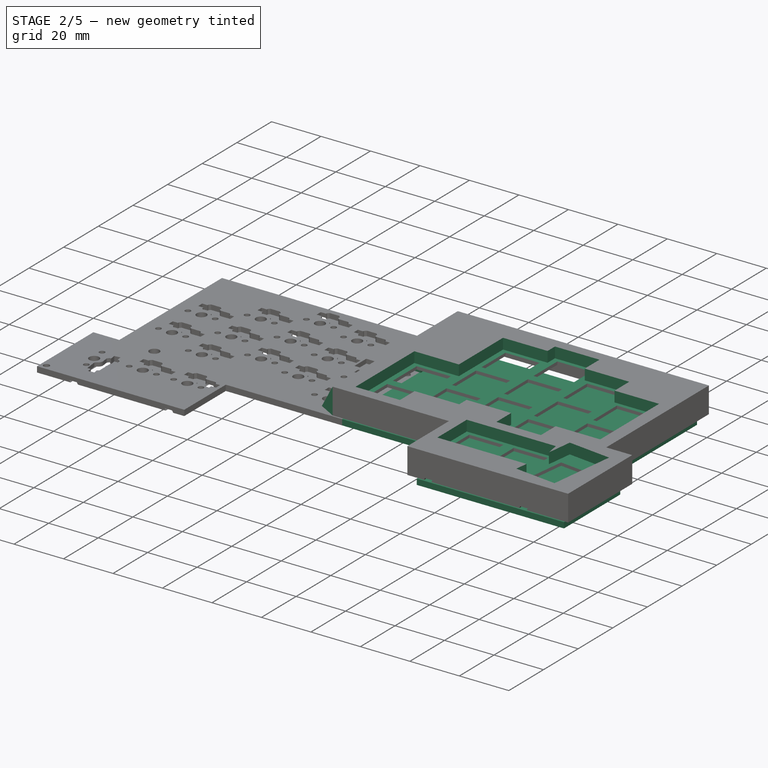
[diagram: stage 2 of 5 — iso view after this stage's code; geometry added in this stage tinted green]
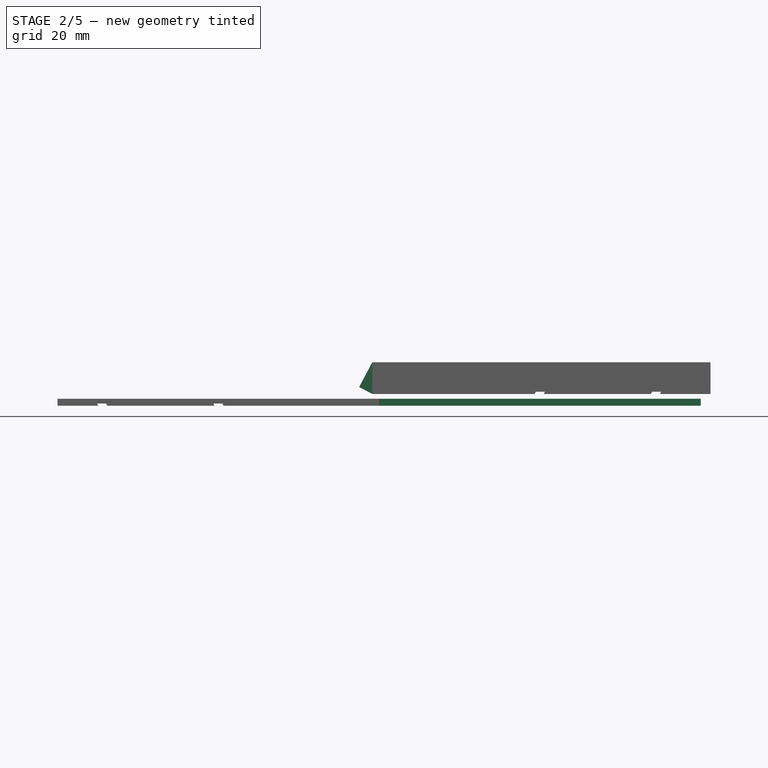
[diagram: stage 2 of 5 — front view after this stage's code; geometry added in this stage tinted green]
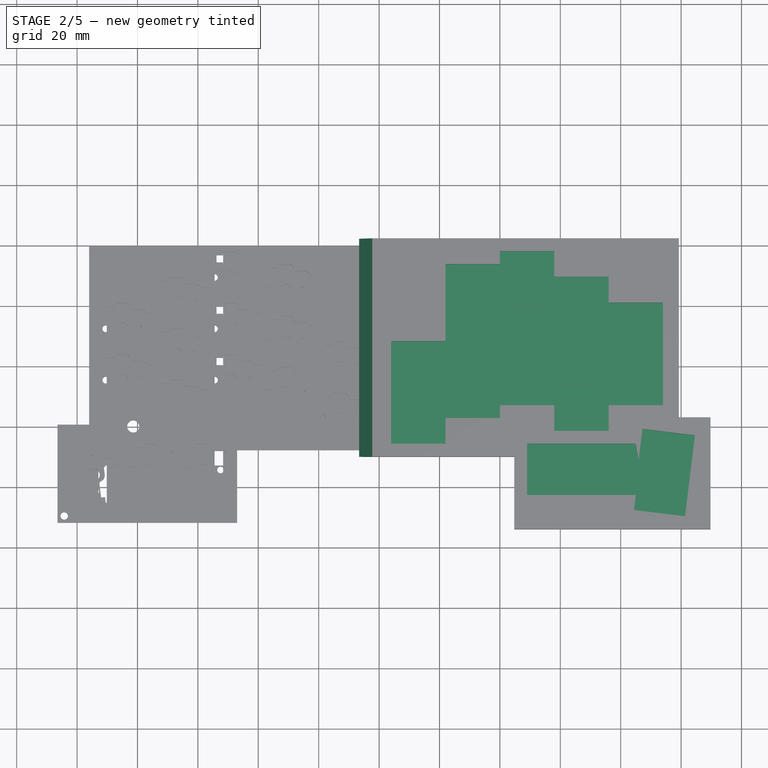
[diagram: stage 2 of 5 — top view after this stage's code; geometry added in this stage tinted green]
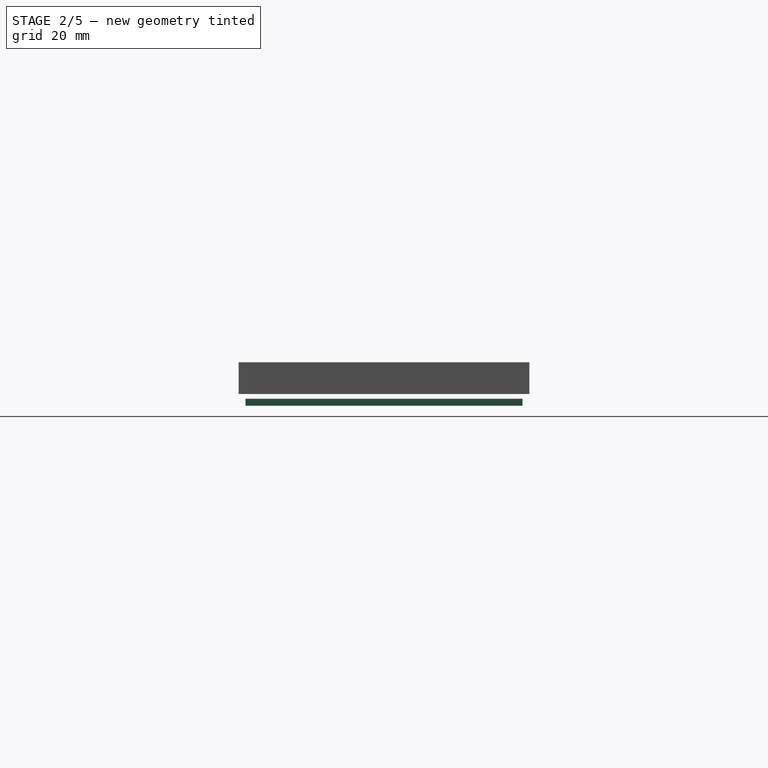
[diagram: stage 2 of 5 — right view after this stage's code; geometry added in this stage tinted green]
FEATURE [Sketcher::SketchObject] Sketch001  label="Keys"
  ArcFitTolerance = 1e-06
  AttachmentSupport = -> [Boolean]
  FullyConstrained = true
  MakeInternals = false
  MapMode = 5
  Placement = pos=(0,0,12.1) rot=(0,0,1;0rad)
  sketch-geometry (88):
    g0: LineSegment StartX=6.1 StartY=-64.15 StartZ=0 EndX=19.9 EndY=-64.15 EndZ=0
    g1: LineSegment StartX=19.9 StartY=-64.15 StartZ=0 EndX=19.9 EndY=-50.35 EndZ=0
    g2: LineSegment StartX=19.9 StartY=-50.35 StartZ=0 EndX=6.1 EndY=-50.35 EndZ=0
    g3: LineSegment StartX=6.1 StartY=-50.35 StartZ=0 EndX=6.1 EndY=-64.15 EndZ=0
    g4: LineSegment StartX=6.1 StartY=-47.15 StartZ=0 EndX=19.9 EndY=-47.15 EndZ=0
    g5: LineSegment StartX=19.9 StartY=-47.15 StartZ=0 EndX=19.9 EndY=-33.35 EndZ=0
    g6: LineSegment StartX=19.9 StartY=-33.35 StartZ=0 EndX=6.1 EndY=-33.35 EndZ=0
    g7: LineSegment StartX=6.1 StartY=-33.35 StartZ=0 EndX=6.1 EndY=-47.15 EndZ=0
    g8: LineSegment StartX=24.1 StartY=-55.65 StartZ=0 EndX=37.9 EndY=-55.65 EndZ=0
    g9: LineSegment StartX=37.9 StartY=-55.65 StartZ=0 EndX=37.9 EndY=-41.85 EndZ=0
    g10: LineSegment StartX=37.9 StartY=-41.85 StartZ=0 EndX=24.1 EndY=-41.85 EndZ=0
    g11: LineSegment StartX=24.1 StartY=-41.85 StartZ=0 EndX=24.1 EndY=-55.65 EndZ=0
    g12: LineSegment StartX=24.1 StartY=-38.65 StartZ=0 EndX=37.9 EndY=-38.65 EndZ=0
    g13: LineSegment StartX=37.9 StartY=-38.65 StartZ=0 EndX=37.9 EndY=-24.85 EndZ=0
    g14: LineSegment StartX=37.9 StartY=-24.85 StartZ=0 EndX=24.1 EndY=-24.85 EndZ=0
    g15: LineSegment StartX=24.1 StartY=-24.85 StartZ=0 EndX=24.1 EndY=-38.65 EndZ=0
    g16: LineSegment StartX=24.1 StartY=-21.65 StartZ=0 EndX=37.9 EndY=-21.65 EndZ=0
    g17: LineSegment StartX=37.9 StartY=-21.65 StartZ=0 EndX=37.9 EndY=-7.85 EndZ=0
    g18: LineSegment StartX=37.9 StartY=-7.85 StartZ=0 EndX=24.1 EndY=-7.85 EndZ=0
    g19: LineSegment StartX=24.1 StartY=-7.85 StartZ=0 EndX=24.1 EndY=-21.65 EndZ=0
    g20: LineSegment StartX=42.1 StartY=-51.4 StartZ=0 EndX=55.9 EndY=-51.4 EndZ=0
    g21: LineSegment StartX=55.9 StartY=-51.4 StartZ=0 EndX=55.9 EndY=-37.6 EndZ=0
    g22: LineSegment StartX=55.9 StartY=-37.6 StartZ=0 EndX=42.1 EndY=-37.6 EndZ=0
    g23: LineSegment StartX=42.1 StartY=-37.6 StartZ=0 EndX=42.1 EndY=-51.4 EndZ=0
    g24: LineSegment StartX=42.1 StartY=-34.4 StartZ=0 EndX=55.9 EndY=-34.4 EndZ=0
    g25: LineSegment StartX=55.9 StartY=-34.4 StartZ=0 EndX=55.9 EndY=-20.6 EndZ=0
    g26: LineSegment StartX=55.9 StartY=-20.6 StartZ=0 EndX=42.1 EndY=-20.6 EndZ=0
    g27: LineSegment StartX=42.1 StartY=-20.6 StartZ=0 EndX=42.1 EndY=-34.4 EndZ=0
    g28: LineSegment StartX=42.1 StartY=-17.4 StartZ=0 EndX=55.9 EndY=-17.4 EndZ=0
    g29: LineSegment StartX=55.9 StartY=-17.4 StartZ=0 EndX=55.9 EndY=-3.6 EndZ=0
    g30: LineSegment StartX=55.9 StartY=-3.6 StartZ=0 EndX=42.1 EndY=-3.6 EndZ=0
    g31: LineSegment StartX=42.1 StartY=-3.6 StartZ=0 EndX=42.1 EndY=-17.4 EndZ=0
    g32: LineSegment StartX=60.1 StartY=-59.9 StartZ=0 EndX=73.9 EndY=-59.9 EndZ=0
    g33: LineSegment StartX=73.9 StartY=-59.9 StartZ=0 EndX=73.9 EndY=-46.1 EndZ=0
    g34: LineSegment StartX=73.9 StartY=-46.1 StartZ=0 EndX=60.1 EndY=-46.1 EndZ=0
    g35: LineSegment StartX=60.1 StartY=-46.1 StartZ=0 EndX=60.1 EndY=-59.9 EndZ=0
    g36: LineSegment StartX=60.1 StartY=-42.9 StartZ=0 EndX=73.9 EndY=-42.9 EndZ=0
    g37: LineSegment StartX=73.9 StartY=-42.9 StartZ=0 EndX=73.9 EndY=-29.1 EndZ=0
    g38: LineSegment StartX=73.9 StartY=-29.1 StartZ=0 EndX=60.1 EndY=-29.1 EndZ=0
    g39: LineSegment StartX=60.1 StartY=-29.1 StartZ=0 EndX=60.1 EndY=-42.9 EndZ=0
    g40: LineSegment StartX=60.1 StartY=-25.9 StartZ=0 EndX=73.9 EndY=-25.9 EndZ=0
    g41: LineSegment StartX=73.9 StartY=-25.9 StartZ=0 EndX=73.9 EndY=-12.1 EndZ=0
    g42: LineSegment StartX=73.9 StartY=-12.1 StartZ=0 EndX=60.1 EndY=-12.1 EndZ=0
    g43: LineSegment StartX=60.1 StartY=-12.1 StartZ=0 EndX=60.1 EndY=-25.9 EndZ=0
    g44: LineSegment StartX=78.1 StartY=-51.4 StartZ=0 EndX=91.9 EndY=-51.4 EndZ=0
    g45: LineSegment StartX=91.9 StartY=-51.4 StartZ=0 EndX=91.9 EndY=-37.6 EndZ=0
    g46: LineSegment StartX=91.9 StartY=-37.6 StartZ=0 EndX=78.1 EndY=-37.6 EndZ=0
    g47: LineSegment StartX=78.1 StartY=-37.6 StartZ=0 EndX=78.1 EndY=-51.4 EndZ=0
    g48: LineSegment StartX=78.1 StartY=-34.4 StartZ=0 EndX=91.9 EndY=-34.4 EndZ=0
    g49: LineSegment StartX=91.9 StartY=-34.4 StartZ=0 EndX=91.9 EndY=-20.6 EndZ=0
    g50: LineSegment StartX=91.9 StartY=-20.6 StartZ=0 EndX=78.1 EndY=-20.6 EndZ=0
    g51: LineSegment StartX=78.1 StartY=-20.6 StartZ=0 EndX=78.1 EndY=-34.4 EndZ=0
    g52: LineSegment StartX=51.1 StartY=-81.15 StartZ=0 EndX=64.9 EndY=-81.15 EndZ=0
    g53: LineSegment StartX=64.9 StartY=-81.15 StartZ=0 EndX=64.9 EndY=-67.35 EndZ=0
    g54: LineSegment StartX=64.9 StartY=-67.35 StartZ=0 EndX=51.1 EndY=-67.35 EndZ=0
    g55: LineSegment StartX=51.1 StartY=-67.35 StartZ=0 EndX=51.1 EndY=-81.15 EndZ=0
    g56: LineSegment StartX=69.1 StartY=-81.15 StartZ=0 EndX=82.9 EndY=-81.15 EndZ=0
    g57: LineSegment StartX=82.9 StartY=-81.15 StartZ=0 EndX=82.9 EndY=-67.35 EndZ=0
    g58: LineSegment StartX=82.9 StartY=-67.35 StartZ=0 EndX=69.1 EndY=-67.35 EndZ=0
    g59: LineSegment StartX=69.1 StartY=-67.35 StartZ=0 EndX=69.1 EndY=-81.15 EndZ=0
    g60: LineSegment StartX=100.508 StartY=-83.042 StartZ=0 EndX=102.19 EndY=-69.3448 EndZ=0
    g61: LineSegment StartX=102.19 StartY=-69.3448 StartZ=0 EndX=88.4924 EndY=-67.663 EndZ=0
    g62: LineSegment StartX=88.4924 StartY=-67.663 StartZ=0 EndX=86.8106 EndY=-81.3602 EndZ=0
    g63: LineSegment StartX=86.8106 StartY=-81.3602 StartZ=0 EndX=100.508 EndY=-83.042 EndZ=0
    g64: LineSegment [constr] StartX=19.9 StartY=-47.15 StartZ=0 EndX=24.1 EndY=-47.15 EndZ=0
    g65: LineSegment [constr] StartX=19.9 StartY=-50.35 StartZ=0 EndX=19.9 EndY=-47.15 EndZ=0
    g66: LineSegment [constr] StartX=24.1 StartY=-41.85 StartZ=0 EndX=24.1 EndY=-38.65 EndZ=0
    g67: LineSegment [constr] StartX=42.1 StartY=-37.6 StartZ=0 EndX=37.9 EndY=-37.6 EndZ=0
    g68: LineSegment [constr] StartX=24.1 StartY=-24.85 StartZ=0 EndX=24.1 EndY=-21.65 EndZ=0
    g69: LineSegment [constr] StartX=60.1 StartY=-25.9 StartZ=0 EndX=60.1 EndY=-29.1 EndZ=0
    g70: LineSegment [constr] StartX=60.1 StartY=-42.9 StartZ=0 EndX=60.1 EndY=-46.1 EndZ=0
    g71: LineSegment [constr] StartX=60.1 StartY=-29.1 StartZ=0 EndX=55.9 EndY=-29.1 EndZ=0
    g72: LineSegment [constr] StartX=64.9 StartY=-67.35 StartZ=0 EndX=69.1 EndY=-67.35 EndZ=0
    g73: LineSegment [constr] StartX=6.1 StartY=-50.35 StartZ=0 EndX=6.1 EndY=-47.15 EndZ=0
    g74: LineSegment [constr] StartX=37.9 StartY=-41.85 StartZ=0 EndX=37.9 EndY=-38.65 EndZ=0
    g75: LineSegment [constr] StartX=37.9 StartY=-24.85 StartZ=0 EndX=37.9 EndY=-21.65 EndZ=0
    g76: LineSegment [constr] StartX=55.9 StartY=-17.4 StartZ=0 EndX=55.9 EndY=-20.6 EndZ=0
    g77: LineSegment [constr] StartX=55.9 StartY=-34.4 StartZ=0 EndX=55.9 EndY=-37.6 EndZ=0
    g78: LineSegment [constr] StartX=73.9 StartY=-25.9 StartZ=0 EndX=73.9 EndY=-29.1 EndZ=0
    g79: LineSegment [constr] StartX=73.9 StartY=-46.1 StartZ=0 EndX=73.9 EndY=-42.9 EndZ=0
    g80: LineSegment [constr] StartX=42.1 StartY=-34.4 StartZ=0 EndX=42.1 EndY=-37.6 EndZ=0
    g81: LineSegment [constr] StartX=42.1 StartY=-20.6 StartZ=0 EndX=42.1 EndY=-17.4 EndZ=0
    g82: LineSegment [constr] StartX=91.9 StartY=-34.4 StartZ=0 EndX=91.9 EndY=-37.6 EndZ=0
    g83: LineSegment [constr] StartX=78.1 StartY=-37.6 StartZ=0 EndX=78.1 EndY=-34.4 EndZ=0
    g84: LineSegment [constr] StartX=78.1 StartY=-34.4 StartZ=0 EndX=73.9 EndY=-34.4 EndZ=0
    g85: LineSegment [constr] StartX=64.9 StartY=-81.15 StartZ=0 EndX=69.1 EndY=-81.15 EndZ=0
    g86: LineSegment [constr] StartX=86.8106 StartY=-81.3602 StartZ=0 EndX=82.9 EndY=-80.88 EndZ=0
    g87: GeomPoint [constr] X=13 Y=-57.25 Z=0
  constraints (244):
    c: Coincident(g0,g3)
    c: Coincident(g2,g3)
    c: Coincident(g4,g7)
    c: Coincident(g6,g7)
    c: Coincident(g0,g1)
    c: Coincident(g1,g2)
    c: Coincident(g4,g5)
    c: Coincident(g5,g6)
    c: Coincident(g8,g11)
    c: Coincident(g10,g11)
    c: Coincident(g12,g15)
    c: Coincident(g14,g15)
    c: Coincident(g16,g19)
    c: Coincident(g18,g19)
    c: Coincident(g8,g9)
    c: Coincident(g9,g10)
    c: Coincident(g12,g13)
    c: Coincident(g13,g14)
    c: Coincident(g16,g17)
    c: Coincident(g17,g18)
    c: Coincident(g20,g23)
    c: Coincident(g22,g23)
    c: Coincident(g24,g27)
    c: Coincident(g26,g27)
    c: Coincident(g28,g31)
    c: Coincident(g30,g31)
    c: Coincident(g52,g55)
    c: Coincident(g54,g55)
    c: Coincident(g20,g21)
    c: Coincident(g21,g22)
    c: Coincident(g24,g25)
    c: Coincident(g25,g26)
    c: Coincident(g28,g29)
    c: Coincident(g29,g30)
    c: Coincident(g32,g35)
    c: Coincident(g34,g35)
    c: Coincident(g36,g39)
    c: Coincident(g38,g39)
    c: Coincident(g40,g43)
    c: Coincident(g42,g43)
    c: Coincident(g52,g53)
    c: Coincident(g53,g54)
    c: Coincident(g56,g59)
    c: Coincident(g58,g59)
    c: Coincident(g32,g33)
    c: Coincident(g33,g34)
    c: Coincident(g36,g37)
    c: Coincident(g37,g38)
    c: Coincident(g40,g41)
    c: Coincident(g41,g42)
    c: Coincident(g44,g47)
    c: Coincident(g46,g47)
    c: Coincident(g48,g51)
    c: Coincident(g50,g51)
    c: Coincident(g56,g57)
    c: Coincident(g57,g58)
    c: Coincident(g62,g63)
    c: Coincident(g61,g62)
    c: Coincident(g44,g45)
    c: Coincident(g45,g46)
    c: Coincident(g48,g49)
    c: Coincident(g49,g50)
    c: Coincident(g60,g63)
    c: Coincident(g60,g61)
    c: Vertical(g45)
    c: Vertical(g47)
    c: Vertical(g49)
    c: Vertical(g51)
    c: Vertical(g41)
    c: Vertical(g43)
    c: Vertical(g5)
    c: Vertical(g7)
    c: Vertical(g1)
    c: Vertical(g3)
    c: Vertical(g9)
    c: Vertical(g11)
    c: Vertical(g13)
    c: Vertical(g15)
    c: Vertical(g17)
    c: Vertical(g19)
    c: Vertical(g29)
    c: Vertical(g31)
    c: Vertical(g25)
    c: Vertical(g27)
    c: Vertical(g21)
    c: Vertical(g23)
    c: Vertical(g37)
    c: Vertical(g39)
    c: Vertical(g33)
    c: Vertical(g35)
    c: Vertical(g53)
    c: Vertical(g55)
    c: Vertical(g57)
    c: Vertical(g59)
    c: Horizontal(g0)
    c: Horizontal(g2)
    c: Horizontal(g4)
    c: Horizontal(g6)
    c: Horizontal(g8)
    c: Horizontal(g10)
    c: Horizontal(g12)
    c: Horizontal(g14)
    c: Horizontal(g16)
    c: Horizontal(g18)
    c: Horizontal(g20)
    c: Horizontal(g22)
    c: Horizontal(g24)
    c: Horizontal(g26)
    c: Horizontal(g28)
    c: Horizontal(g30)
    c: Horizontal(g32)
    c: Horizontal(g34)
    c: Horizontal(g36)
    c: Horizontal(g38)
    c: Horizontal(g40)
    c: Horizontal(g42)
    c: Horizontal(g44)
    c: Horizontal(g46)
    c: Horizontal(g48)
    c: Horizontal(g50)
    c: Horizontal(g56)
    c: Horizontal(g58)
    c: Horizontal(g52)
    c: Horizontal(g54)
    c: Parallel(g60,g62)
    c: Parallel(g61,g63)
    c: Coincident(g64,g4)
    c: PointOnObject(g64,g11)
    c: Horizontal(g64)
    c: Coincident(g65,g1)
    c: Coincident(g65,g4)
    c: Vertical(g65)
    c: Coincident(g66,g10)
    c: Coincident(g66,g12)
    c: Vertical(g66)
    c: Coincident(g67,g22)
    c: PointOnObject(g67,g13)
    c: Horizontal(g67)
    c: Coincident(g68,g14)
    c: Coincident(g68,g16)
    c: Vertical(g68)
    c: Coincident(g69,g40)
    c: Coincident(g69,g38)
    c: Vertical(g69)
    c: Coincident(g70,g36)
    c: Coincident(g70,g34)
    c: Vertical(g70)
    c: Coincident(g71,g38)
    c: PointOnObject(g71,g25)
    c: Horizontal(g71)
    c: Coincident(g72,g53)
    c: Coincident(g72,g58)
    c: Horizontal(g72)
    c: DistanceX(g64,g64) = 4.2
    c: DistanceY(g65,g65) = 3.2
    c: Equal(g64,g67)
    c: Equal(g67,g71)
    c: Equal(g65,g66)
    c: Equal(g66,g68)
    c: Equal(g69,g70)
    c: Equal(g44,g32)
    c: Equal(g32,g20)
    c: Equal(g20,g8)
    c: Equal(g8,g0)
    c: Coincident(g73,g2)
    c: Coincident(g73,g4)
    c: Vertical(g73)
    c: Coincident(g74,g9)
    c: Coincident(g74,g12)
    c: Vertical(g74)
    c: Coincident(g75,g13)
    c: Coincident(g75,g16)
    c: Vertical(g75)
    c: Coincident(g76,g28)
    c: Coincident(g76,g25)
    c: Vertical(g76)
    c: Coincident(g77,g24)
    c: Coincident(g77,g21)
    c: Vertical(g77)
    c: Coincident(g78,g40)
    c: Coincident(g78,g37)
    c: Vertical(g78)
    c: Coincident(g79,g33)
    c: Coincident(g79,g36)
    c: Vertical(g79)
    c: DistanceX(g0,g0) = 13.8
    c: Equal(g3,g7)
    c: Equal(g7,g11)
    c: Equal(g11,g15)
    c: Equal(g15,g19)
    c: Equal(g19,g31)
    c: Equal(g31,g27)
    c: Equal(g27,g23)
    c: Equal(g23,g43)
    c: Equal(g43,g39)
    c: Equal(g39,g35)
    c: Equal(g35,g47)
    c: Equal(g47,g51)
    c: Equal(g51,g59)
    c: Equal(g59,g55)
    c: DistanceY(g3,g3) = 13.8
    c: Equal(g52,g56)
    c: Equal(g56,g0)
    c: Coincident(g80,g24)
    c: Coincident(g80,g22)
    c: Vertical(g80)
    c: Coincident(g81,g26)
    c: Coincident(g81,g28)
    c: Vertical(g81)
    c: Equal(g80,g81)
    c: Equal(g81,g65)
    c: DistanceY(g0,g8) = 8.5
    c: DistanceY(g8,g20) = 4.25
    c: DistanceY(g32,g20) = 8.5
    c: DistanceY(g32,g44) = 8.5
    c: DistanceY(g54,g32) = 7.45
    c: DistanceX(g54,g32) = 9
    c: Coincident(g82,g48)
    c: Coincident(g82,g45)
    c: Vertical(g82)
    c: Coincident(g83,g46)
    c: Coincident(g83,g48)
    c: Vertical(g83)
    c: Coincident(g84,g48)
    c: PointOnObject(g84,g37)
    c: Horizontal(g84)
    c: Equal(g74,g83)
    c: Equal(g84,g64)
    c: Equal(g69,g65)
    c: Equal(g64,g72)
    c: Coincident(g85,g52)
    c: Coincident(g85,g56)
    c: Perpendicular(g62,g63)
    c: DistanceY(g30,g-1) = 3.6
    c: Equal(g63,g57)
    c: Equal(g60,g56)
    c: Coincident(g86,g62)
    c: PointOnObject(g86,g57)
    c: PointOnObject(g86,g63)
    c: Angle(g86,g57) = 1.69297
    c: Distance(g86) = 3.94
    c: Distance(g86,g56) = 0.27
    c: Symmetric(g2,g0,g87)
    c: DistanceX(g-1,g87) = 13
FEATURE [PartDesign::SubShapeBinder] Binder002
  BindCopyOnChange = 0
  BindMode = 0
  ClaimChildren = false
  Context = -> Body003 [Binder002.]
  Fuse = false
  MakeFace = true
  OffsetFill = false
  OffsetIntersection = false
  OffsetJoinType = 0
  OffsetOpenResult = false
  PartialLoad = false
  Refine = true
  Relative = true
  Support = -> [Body[Pad.Face9]]
  _Version = 2
FEATURE [PartDesign::Pad] Pad004
  Direction = (0,0,-1)
  Length = 2.3
  Length2 = 10
  Profile = -> Binder002 [Face1]
  Refine = true
  Suppressed = false
  Type = 0
FEATURE [Sketcher::SketchObject] Sketch002  label="KeySlot"
  ArcFitTolerance = 1e-06
  AttachmentSupport = -> [Pocket]
  ExternalGeometry = -> [Pocket]
  FullyConstrained = true
  MakeInternals = false
  MapMode = 5
  Placement = pos=(0,0,12.1) rot=(0,0,1;0rad)
  sketch-geometry (66):
    g0: LineSegment StartX=4 StartY=-31.75 StartZ=0 EndX=22 EndY=-31.75 EndZ=0
    g1: LineSegment StartX=22 StartY=-31.75 StartZ=0 EndX=22 EndY=-6.25 EndZ=0
    g2: LineSegment StartX=22 StartY=-6.25 StartZ=0 EndX=40 EndY=-6.25 EndZ=0
    g3: LineSegment StartX=40 StartY=-6.25 StartZ=0 EndX=40 EndY=-2 EndZ=0
    g4: LineSegment StartX=40 StartY=-2 StartZ=0 EndX=58 EndY=-2 EndZ=0
    g5: LineSegment StartX=58 StartY=-2 StartZ=0 EndX=58 EndY=-10.5 EndZ=0
    g6: LineSegment StartX=58 StartY=-10.5 StartZ=0 EndX=76 EndY=-10.5 EndZ=0
    g7: LineSegment StartX=76 StartY=-10.5 StartZ=0 EndX=76 EndY=-19 EndZ=0
    g8: LineSegment StartX=76 StartY=-19 StartZ=0 EndX=94 EndY=-19 EndZ=0
    g9: LineSegment StartX=94 StartY=-19 StartZ=0 EndX=94 EndY=-53 EndZ=0
    g10: LineSegment StartX=94 StartY=-53 StartZ=0 EndX=76 EndY=-53 EndZ=0
    g11: LineSegment StartX=76 StartY=-53 StartZ=0 EndX=76 EndY=-61.5 EndZ=0
    g12: LineSegment StartX=76 StartY=-61.5 StartZ=0 EndX=58 EndY=-61.5 EndZ=0
    g13: LineSegment StartX=58 StartY=-61.5 StartZ=0 EndX=58 EndY=-53 EndZ=0
    g14: LineSegment StartX=58 StartY=-53 StartZ=0 EndX=40 EndY=-53 EndZ=0
    g15: LineSegment StartX=40 StartY=-53 StartZ=0 EndX=40 EndY=-57.25 EndZ=0
    g16: LineSegment StartX=40 StartY=-57.25 StartZ=0 EndX=22 EndY=-57.25 EndZ=0
    g17: LineSegment StartX=22 StartY=-57.25 StartZ=0 EndX=22 EndY=-65.75 EndZ=0
    g18: LineSegment StartX=22 StartY=-65.75 StartZ=0 EndX=4 EndY=-65.75 EndZ=0
    g19: LineSegment StartX=4 StartY=-65.75 StartZ=0 EndX=4 EndY=-31.75 EndZ=0
    g20: LineSegment [constr] StartX=6.1 StartY=-33.35 StartZ=0 EndX=6.1 EndY=-31.75 EndZ=0
    g21: LineSegment [constr] StartX=6.1 StartY=-64.15 StartZ=0 EndX=6.1 EndY=-65.75 EndZ=0
    g22: LineSegment [constr] StartX=6.1 StartY=-64.15 StartZ=0 EndX=4 EndY=-64.15 EndZ=0
    g23: LineSegment [constr] StartX=37.9 StartY=-55.65 StartZ=0 EndX=37.9 EndY=-57.25 EndZ=0
    g24: LineSegment [constr] StartX=37.9 StartY=-55.65 StartZ=0 EndX=40 EndY=-55.65 EndZ=0
    g25: LineSegment [constr] StartX=19.9 StartY=-64.15 StartZ=0 EndX=22 EndY=-64.15 EndZ=0
    g26: LineSegment [constr] StartX=60.1 StartY=-59.9 StartZ=0 EndX=60.1 EndY=-61.5 EndZ=0
    g27: LineSegment [constr] StartX=60.1 StartY=-59.9 StartZ=0 EndX=58 EndY=-59.9 EndZ=0
    g28: LineSegment [constr] StartX=91.9 StartY=-51.4 StartZ=0 EndX=94 EndY=-51.4 EndZ=0
    g29: LineSegment [constr] StartX=91.9 StartY=-51.4 StartZ=0 EndX=91.9 EndY=-53 EndZ=0
    g30: LineSegment [constr] StartX=42.1 StartY=-51.4 StartZ=0 EndX=42.1 EndY=-53 EndZ=0
    g31: LineSegment [constr] StartX=73.9 StartY=-59.9 StartZ=0 EndX=76 EndY=-59.9 EndZ=0
    g32: LineSegment [constr] StartX=24.1 StartY=-7.85 StartZ=0 EndX=24.1 EndY=-6.25 EndZ=0
    g33: LineSegment [constr] StartX=24.1 StartY=-7.85 StartZ=0 EndX=22 EndY=-7.85 EndZ=0
    g34: LineSegment [constr] StartX=42.1 StartY=-3.6 StartZ=0 EndX=42.1 EndY=-2 EndZ=0
    g35: LineSegment [constr] StartX=42.1 StartY=-3.6 StartZ=0 EndX=40 EndY=-3.6 EndZ=0
    g36: LineSegment [constr] StartX=55.9 StartY=-3.6 StartZ=0 EndX=58 EndY=-3.6 EndZ=0
    g37: LineSegment [constr] StartX=91.9 StartY=-20.6 StartZ=0 EndX=94 EndY=-20.6 EndZ=0
    g38: LineSegment [constr] StartX=91.9 StartY=-20.6 StartZ=0 EndX=91.9 EndY=-19 EndZ=0
    g39: LineSegment [constr] StartX=73.9 StartY=-12.1 StartZ=0 EndX=73.9 EndY=-10.5 EndZ=0
    g40: LineSegment [constr] StartX=73.9 StartY=-12.1 StartZ=0 EndX=76 EndY=-12.1 EndZ=0
    g41: LineSegment StartX=49 StartY=-65.75 StartZ=0 EndX=49 EndY=-82.75 EndZ=0
    g42: LineSegment StartX=49 StartY=-82.75 StartZ=0 EndX=85.028 EndY=-82.75 EndZ=0
    g43: LineSegment StartX=85.028 StartY=-82.75 StartZ=0 EndX=84.4182 EndY=-87.716 EndZ=0
    g44: LineSegment StartX=84.4182 StartY=-87.716 StartZ=0 EndX=101.292 EndY=-89.7878 EndZ=0
    g45: LineSegment StartX=101.292 StartY=-89.7878 StartZ=0 EndX=104.582 EndY=-62.989 EndZ=0
    g46: LineSegment StartX=104.582 StartY=-62.989 StartZ=0 EndX=87.2124 EndY=-60.8563 EndZ=0
    g47: LineSegment StartX=87.2124 StartY=-60.8563 StartZ=0 EndX=85.95 EndY=-71.1378 EndZ=0
    g48: LineSegment StartX=85 StartY=-65.75 StartZ=0 EndX=49 EndY=-65.75 EndZ=0
    g49: LineSegment [constr] StartX=51.1 StartY=-67.35 StartZ=0 EndX=51.1 EndY=-65.75 EndZ=0
    g50: LineSegment [constr] StartX=51.1 StartY=-67.35 StartZ=0 EndX=49 EndY=-67.35 EndZ=0
    g51: LineSegment [constr] StartX=51.1 StartY=-81.15 StartZ=0 EndX=51.1 EndY=-82.75 EndZ=0
    g52: LineSegment [constr] StartX=82.9 StartY=-67.35 StartZ=0 EndX=85 EndY=-67.35 EndZ=0
    g53: LineSegment [constr] StartX=85 StartY=-67.35 StartZ=0 EndX=85 EndY=-65.75 EndZ=0
    g54: LineSegment [constr] StartX=88.4924 StartY=-67.663 StartZ=0 EndX=89.0408 EndY=-63.1966 EndZ=0
    g55: LineSegment [constr] StartX=89.0408 StartY=-63.1966 StartZ=0 EndX=102.738 EndY=-64.8784 EndZ=0
    g56: LineSegment [constr] StartX=102.738 StartY=-64.8784 StartZ=0 EndX=102.19 EndY=-69.3448 EndZ=0
    g57: LineSegment [constr] StartX=86.8106 StartY=-81.3602 StartZ=0 EndX=86.2622 EndY=-85.8266 EndZ=0
    g58: LineSegment [constr] StartX=86.2622 StartY=-85.8266 StartZ=0 EndX=99.9594 EndY=-87.5084 EndZ=0
    g59: LineSegment [constr] StartX=99.9594 StartY=-87.5084 StartZ=0 EndX=100.508 EndY=-83.042 EndZ=0
    g60: LineSegment [constr] StartX=86.2622 StartY=-85.8266 StartZ=0 EndX=86.0063 EndY=-87.911 EndZ=0
    g61: LineSegment [constr] StartX=86.2622 StartY=-85.8266 StartZ=0 EndX=84.6741 EndY=-85.6316 EndZ=0
    g62: LineSegment [constr] StartX=99.9594 StartY=-87.5084 StartZ=0 EndX=101.547 EndY=-87.7034 EndZ=0
    g63: LineSegment [constr] StartX=102.738 StartY=-64.8784 StartZ=0 EndX=102.994 EndY=-62.794 EndZ=0
    g64: LineSegment [constr] StartX=89.0408 StartY=-63.1966 StartZ=0 EndX=86.9565 EndY=-62.9406 EndZ=0
    g65: LineSegment StartX=85 StartY=-65.75 StartZ=0 EndX=85.95 EndY=-71.1378 EndZ=0
  constraints (195):
    c: Horizontal(g0)
    c: Coincident(g0,g1)
    c: Vertical(g1)
    c: Coincident(g1,g2)
    c: Horizontal(g2)
    c: Coincident(g2,g3)
    c: Vertical(g3)
    c: Coincident(g3,g4)
    c: Horizontal(g4)
    c: Coincident(g4,g5)
    c: Vertical(g5)
    c: Coincident(g5,g6)
    c: Horizontal(g6)
    c: Coincident(g6,g7)
    c: Vertical(g7)
    c: Coincident(g7,g8)
    c: Horizontal(g8)
    c: Coincident(g8,g9)
    c: Vertical(g9)
    c: Coincident(g9,g10)
    c: Horizontal(g10)
    c: Coincident(g10,g11)
    c: Vertical(g11)
    c: Coincident(g11,g12)
    c: Horizontal(g12)
    c: Coincident(g12,g13)
    c: Vertical(g13)
    c: Coincident(g13,g14)
    c: Horizontal(g14)
    c: Coincident(g14,g15)
    c: Vertical(g15)
    c: Coincident(g15,g16)
    c: Horizontal(g16)
    c: Coincident(g16,g17)
    c: Vertical(g17)
    c: Coincident(g17,g18)
    c: Horizontal(g18)
    c: Coincident(g18,g19)
    c: Coincident(g19,g0)
    c: Vertical(g19)
    c: Coincident(g20,g-3)
    c: PointOnObject(g20,g0)
    c: Vertical(g20)
    c: Coincident(g21,g-4)
    c: PointOnObject(g21,g18)
    c: Vertical(g21)
    c: Coincident(g22,g21)
    c: PointOnObject(g22,g19)
    c: Horizontal(g22)
    c: DistanceX(g22,g22) = 2.1
    c: Coincident(g23,g-5)
    c: Vertical(g23)
    c: Coincident(g24,g23)
    c: PointOnObject(g24,g15)
    c: Horizontal(g24)
    c: PointOnObject(g23,g16)
    c: Coincident(g25,g-6)
    c: PointOnObject(g25,g17)
    c: Horizontal(g25)
    c: Coincident(g26,g-7)
    c: PointOnObject(g26,g12)
    c: Vertical(g26)
    c: Coincident(g27,g26)
    c: PointOnObject(g27,g13)
    c: Horizontal(g27)
    c: Coincident(g28,g-8)
    c: PointOnObject(g28,g9)
    c: Horizontal(g28)
    c: Coincident(g29,g28)
    c: PointOnObject(g29,g10)
    c: Vertical(g29)
    c: Coincident(g30,g-9)
    c: PointOnObject(g30,g14)
    c: Vertical(g30)
    c: Coincident(g31,g-10)
    c: PointOnObject(g31,g11)
    c: Horizontal(g31)
    c: Coincident(g32,g-11)
    c: PointOnObject(g32,g2)
    c: Vertical(g32)
    c: Coincident(g33,g32)
    c: PointOnObject(g33,g1)
    c: Horizontal(g33)
    c: Coincident(g34,g-12)
    c: PointOnObject(g34,g4)
    c: Vertical(g34)
    c: Coincident(g35,g34)
    c: PointOnObject(g35,g3)
    c: Horizontal(g35)
    c: PointOnObject(g36,g5)
    c: Horizontal(g36)
    c: Coincident(g37,g-14)
    c: PointOnObject(g37,g9)
    c: Horizontal(g37)
    c: Coincident(g38,g37)
    c: PointOnObject(g38,g8)
    c: Vertical(g38)
    c: Coincident(g39,g-13)
    c: PointOnObject(g39,g6)
    c: Vertical(g39)
    c: Coincident(g40,g39)
    c: PointOnObject(g40,g7)
    c: Horizontal(g40)
    c: Vertical(g41)
    c: Coincident(g41,g42)
    c: Horizontal(g42)
    c: Coincident(g42,g43)
    c: Coincident(g43,g44)
    c: Coincident(g44,g45)
    c: Coincident(g45,g46)
    c: Coincident(g46,g47)
    c: Coincident(g48,g41)
    c: Horizontal(g48)
    c: Coincident(g49,g-15)
    c: PointOnObject(g49,g48)
    c: Vertical(g49)
    c: Coincident(g50,g49)
    c: PointOnObject(g50,g41)
    c: Horizontal(g50)
    c: Coincident(g51,g-15)
    c: PointOnObject(g51,g42)
    c: Vertical(g51)
    c: Parallel(g47,g45)
    c: Parallel(g45,g43)
    c: Perpendicular(g45,g44)
    c: Perpendicular(g45,g46)
    c: Coincident(g52,g-16)
    c: Horizontal(g52)
    c: Coincident(g53,g52)
    c: Vertical(g53)
    c: Coincident(g48,g53)
    c: Parallel(g-18,g46)
    c: Coincident(g-18,g54)
    c: Coincident(g54,g55)
    c: Coincident(g55,g56)
    c: Coincident(g56,g-18)
    c: Coincident(g-19,g57)
    c: Coincident(g57,g58)
    c: Coincident(g58,g59)
    c: Coincident(g59,g-19)
    c: Perpendicular(g-19,g57)
    c: Perpendicular(g58,g57)
    c: Perpendicular(g58,g59)
    c: Perpendicular(g54,g55)
    c: Perpendicular(g56,g55)
    c: Perpendicular(g-18,g56)
    c: Coincident(g60,g57)
    c: PointOnObject(g60,g44)
    c: Coincident(g61,g57)
    c: PointOnObject(g61,g43)
    c: Coincident(g62,g58)
    c: PointOnObject(g62,g45)
    c: Perpendicular(g57,g61)
    c: Perpendicular(g58,g60)
    c: Perpendicular(g62,g59)
    c: Coincident(g63,g55)
    c: PointOnObject(g63,g46)
    c: Coincident(g64,g54)
    c: PointOnObject(g64,g47)
    c: Perpendicular(g64,g54)
    c: Perpendicular(g63,g55)
    c: Coincident(g65,g48)
    c: Coincident(g65,g47)
    c: Equal(g22,g25)
    c: Equal(g25,g24)
    c: Equal(g24,g27)
    c: Equal(g27,g31)
    c: Equal(g31,g28)
    c: Equal(g28,g35)
    c: Equal(g35,g36)
    c: Equal(g36,g33)
    c: Equal(g33,g40)
    c: Equal(g40,g50)
    c: Equal(g50,g64)
    c: Equal(g62,g61)
    c: DistanceY(g21,g21) = 1.6
    c: Equal(g21,g23)
    c: Equal(g23,g30)
    c: Equal(g30,g26)
    c: Equal(g26,g29)
    c: Equal(g29,g38)
    c: Equal(g38,g39)
    c: Equal(g63,g60)
    c: Equal(g51,g49)
    c: Equal(g50,g52)
    c: Equal(g20,g21)
    c: Equal(g34,g21)
    c: Equal(g49,g21)
    c: Coincident(g-12,g36)
    c: Distance(g57,g54) = 22.8
    c: Equal(g57,g54)
    c: Equal(g51,g62)
    c: Angle(g48,g65) = 1.74533
    c: Equal(g60,g50)
    c: Equal(g32,g21)
FEATURE [PartDesign::Pocket] Pocket001  label="KeySlot001"
  BaseFeature = -> Pocket
  Direction = (0,0,-1)
  Length = 4.3
  Length2 = 5
  Profile = -> Sketch002
  ReferenceAxis = -> Sketch002 [N_Axis]
  Refine = true
  Suppressed = false
  Type = 0
FEATURE [Sketcher::SketchObject] Sketch005  label="McHole"
  ArcFitTolerance = 1e-06
  AttachmentSupport = -> [Pocket001]
  ExternalGeometry = -> [Pocket001]
  FullyConstrained = true
  MakeInternals = false
  MapMode = 5
  Placement = pos=(0,0,6.6) rot=(1,0,0;3.14159rad)
  sketch-geometry (4):
    g0: LineSegment StartX=-0.25 StartY=-0.25 StartZ=0 EndX=21.5 EndY=-0.25 EndZ=0
    g1: LineSegment StartX=21.5 StartY=-0.25 StartZ=0 EndX=21.5 EndY=24.45 EndZ=0
    g2: LineSegment StartX=21.5 StartY=24.45 StartZ=0 EndX=-0.25 EndY=24.45 EndZ=0
    g3: LineSegment StartX=-0.25 StartY=24.45 StartZ=0 EndX=-0.25 EndY=-0.25 EndZ=0
  constraints (11):
    c: Coincident(g0,g1)
    c: Coincident(g1,g2)
    c: Coincident(g2,g3)
    c: Coincident(g3,g0)
    c: Horizontal(g0)
    c: Horizontal(g2)
    c: Vertical(g1)
    c: Vertical(g3)
    c: DistanceY(g1,g1) = 24.7
    c: DistanceX(g2,g2) = 21.75
    c: Coincident(g-3,g0)
FEATURE [Sketcher::SketchObject] Sketch003  label="BatteryHole"
  ArcFitTolerance = 1e-06
  AttachmentSupport = -> [Pocket001]
  ExternalGeometry = -> [Pocket001]
  FullyConstrained = true
  MakeInternals = false
  MapMode = 5
  Placement = pos=(0,0,6.6) rot=(1,0,0;3.14159rad)
  sketch-geometry (6):
    g0: LineSegment StartX=76.5 StartY=9.85 StartZ=0 EndX=58.5 EndY=9.85 EndZ=0
    g1: LineSegment StartX=58.5 StartY=9.85 StartZ=0 EndX=58.5 EndY=-0.25 EndZ=0
    g2: LineSegment StartX=58.5 StartY=-0.25 StartZ=0 EndX=96.25 EndY=-0.25 EndZ=0
    g3: LineSegment StartX=76.5 StartY=9.85 StartZ=0 EndX=76.5 EndY=18 EndZ=0
    g4: LineSegment StartX=76.5 StartY=18 StartZ=0 EndX=96.25 EndY=18 EndZ=0
    g5: LineSegment StartX=96.25 StartY=18 StartZ=0 EndX=96.25 EndY=-0.25 EndZ=0
  constraints (17):
    c: Coincident(g0,g1)
    c: Coincident(g1,g2)
    c: Vertical(g1)
    c: Horizontal(g0)
    c: Horizontal(g2)
    c: Coincident(g3,g0)
    c: Vertical(g3)
    c: Coincident(g4,g3)
    c: Horizontal(g4)
    c: Coincident(g5,g4)
    c: Coincident(g5,g2)
    c: Vertical(g5)
    c: Coincident(g2,g-3)
    c: DistanceX(g-5,g3) = 2.6
    c: DistanceY(g3,g-7) = 2.6
    c: DistanceY(g0,g-5) = 2.25
    c: DistanceX(g-6,g0) = 2.6
FEATURE [PartDesign::Pocket] Pocket002  label="Battery"
  BaseFeature = -> Pocket001
  Direction = (0,0,1)
  Length = 5
  Length2 = 5
  Profile = -> Sketch003
  ReferenceAxis = -> Sketch003 [N_Axis]
  Refine = true
  Suppressed = false
  Type = 0
FEATURE [Sketcher::SketchObject] Sketch004  label="WallBatteryHole"
  ArcFitTolerance = 1e-06
  AttachmentSupport = -> [Pocket002]
  ExternalGeometry = -> [Pocket002]
  FullyConstrained = true
  MakeInternals = false
  MapMode = 5
  Placement = pos=(0,0.25,0) rot=(1,0,0;1.5708rad)
  sketch-geometry (6):
    g0: LineSegment StartX=58.5 StartY=11.6 StartZ=0 EndX=58.5 EndY=4.6 EndZ=0
    g1: LineSegment StartX=58.5 StartY=4.6 StartZ=0 EndX=96.25 EndY=4.6 EndZ=0
    g2: LineSegment StartX=96.25 StartY=4.6 StartZ=0 EndX=96.25 EndY=11.6 EndZ=0
    g3: LineSegment StartX=96.25 StartY=11.6 StartZ=0 EndX=58.5 EndY=11.6 EndZ=0
    g4: GeomPoint X=96.25 Y=4.6 Z=0
    g5: LineSegment [constr] StartX=58.5 StartY=4.6 StartZ=0 EndX=58.5 EndY=1.6 EndZ=0
  constraints (17):
    c: Coincident(g0,g1)
    c: Coincident(g1,g2)
    c: Coincident(g2,g3)
    c: Coincident(g3,g0)
    c: Vertical(g0)
    c: Vertical(g2)
    c: Horizontal(g1)
    c: Horizontal(g3)
    c: PointOnObject(g2,g-3)
    c: PointOnObject(g2,g-5)
    c: PointOnObject(g4,g1)
    c: PointOnObject(g4,g-3)
    c: PointOnObject(g0,g-4)
    c: Coincident(g5,g0)
    c: PointOnObject(g5,g-6)
    c: DistanceY(g5,g0) = 3
    c: Vertical(g5)
FEATURE [PartDesign::Pocket] Pocket003  label="BatteryWall"
  BaseFeature = -> Pocket002
  Direction = (0,1,-2e-16)
  Length = 1
  Length2 = 5
  Profile = -> Sketch004
  ReferenceAxis = -> Sketch004 [N_Axis]
  Refine = true
  Suppressed = false
  Type = 0
FEATURE [PartDesign::Pocket] Pocket004  label="McHole001"
  BaseFeature = -> Pocket003
  Direction = (0,0,1)
  Length = 5
  Length2 = 5
  Profile = -> Sketch005
  ReferenceAxis = -> Sketch005 [N_Axis]
  Refine = true
  Suppressed = false
  Type = 0
FEATURE [Sketcher::SketchObject] Sketch008  label="Usb"
  ArcFitTolerance = 1e-06
  AttachmentOffset = pos=(0,8,-0.4) rot=(0,0,1;0rad)
  AttachmentSupport = -> [Pocket004]
  ExternalGeometry = -> [Pocket004]
  FullyConstrained = true
  MakeInternals = false
  MapMode = 5
  Placement = pos=(0,0.65,8) rot=(1,0,0;1.5708rad)
  sketch-geometry (8):
    g0: LineSegment [constr] StartX=-0.25 StartY=0.8 StartZ=0 EndX=21.5 EndY=0.8 EndZ=0
    g1: LineSegment StartX=7.625 StartY=2.8 StartZ=0 EndX=13.625 EndY=2.8 EndZ=0
    g2: LineSegment StartX=7.625 StartY=-1.2 StartZ=0 EndX=13.625 EndY=-1.2 EndZ=0
    g3: GeomPoint X=10.625 Y=0.8 Z=0
    g4: ArcOfCircle CenterX=13.625 CenterY=0.8 CenterZ=0 NormalX=0 NormalY=0 NormalZ=1 AngleXU=0 Radius=2 StartAngle=4.71239 EndAngle=6.28319
    g5: ArcOfCircle CenterX=13.625 CenterY=0.8 CenterZ=0 NormalX=0 NormalY=0 NormalZ=1 AngleXU=0 Radius=2 StartAngle=0 EndAngle=1.5708
    g6: ArcOfCircle CenterX=7.625 CenterY=0.8 CenterZ=0 NormalX=0 NormalY=0 NormalZ=1 AngleXU=0 Radius=2 StartAngle=1.5708 EndAngle=3.14159
    g7: ArcOfCircle CenterX=7.625 CenterY=0.8 CenterZ=0 NormalX=0 NormalY=0 NormalZ=1 AngleXU=0 Radius=2 StartAngle=3.14159 EndAngle=4.71239
  constraints (21):
    c: PointOnObject(g0,g-3)
    c: Horizontal(g0)
    c: Tangent(g7,g2) = -1.5708
    c: Tangent(g5,g1) = 1.5708
    c: Tangent(g4,g2) = -1.5708
    c: Horizontal(g1)
    c: DistanceY(g2,g6) = 4
    c: Symmetric(g6,g4,g3)
    c: Symmetric(g0,g0,g3)
    c: PointOnObject(g4,g0)
    c: Coincident(g4,g5)
    c: Coincident(g4,g5)
    c: Coincident(g6,g7)
    c: Equal(g6,g4)
    c: Coincident(g6,g1)
    c: Horizontal(g2)
    c: Coincident(g6,g7)
    c: PointOnObject(g6,g0)
    c: DistanceX(g6,g4) = 10
    c: DistanceY(g1,g-4) = 0.8
    c: PointOnObject(g0,g-5)
FEATURE [PartDesign::Pocket] Pocket005  label="Usb001"
  BaseFeature = -> Pocket004
  Direction = (0,1,-2e-16)
  Length = 5
  Length2 = 5
  Profile = -> Sketch008
  ReferenceAxis = -> Sketch008 [N_Axis]
  Refine = true
  Reversed = true
  Suppressed = false
  Type = 4
FEATURE [Sketcher::SketchObject] Sketch025
  ArcFitTolerance = 1e-06
  AttachmentSupport = -> [Pocket005]
  ExternalGeometry = -> [Pocket005]
  FullyConstrained = true
  MakeInternals = false
  MapMode = 5
  Placement = pos=(0,0,1.6) rot=(1,0,0;3.14159rad)
  expr: Constraints[17] = <<CaseSideView>>.Constraints.slide_width
  expr: Constraints[22] = <<CaseSideView>>.Constraints.slip_offset
  expr: Constraints[23] = <<CaseSideView>>.Constraints.slit_gap
  sketch-geometry (8):
    g0: LineSegment StartX=51.4926 StartY=94 StartZ=0 EndX=51.4926 EndY=-2.25 EndZ=0
    g1: LineSegment StartX=51.4926 StartY=-2.25 StartZ=0 EndX=54.4926 EndY=-2.25 EndZ=0
    g2: LineSegment StartX=54.4926 StartY=-2.25 StartZ=0 EndX=54.4926 EndY=94 EndZ=0
    g3: LineSegment StartX=54.4926 StartY=94 StartZ=0 EndX=51.4926 EndY=94 EndZ=0
    g4: LineSegment StartX=90 StartY=94 StartZ=0 EndX=90 EndY=-2.25 EndZ=0
    g5: LineSegment StartX=90 StartY=-2.25 StartZ=0 EndX=93 EndY=-2.25 EndZ=0
    g6: LineSegment StartX=93 StartY=-2.25 StartZ=0 EndX=93 EndY=94 EndZ=0
    g7: LineSegment StartX=93 StartY=94 StartZ=0 EndX=90 EndY=94 EndZ=0
  constraints (25):
    c: Coincident(g0,g1)
    c: Coincident(g1,g2)
    c: Coincident(g2,g3)
    c: Coincident(g3,g0)
    c: Vertical(g0)
    c: Vertical(g2)
    c: Horizontal(g1)
    c: Horizontal(g3)
    c: Coincident(g4,g5)
    c: Coincident(g5,g6)
    c: Coincident(g6,g7)
    c: Coincident(g7,g4)
    c: Vertical(g4)
    c: Vertical(g6)
    c: Horizontal(g5)
    c: Horizontal(g7)
    c: Equal(g1,g5)
    c: DistanceX(g1,g1) = 3
    c: PointOnObject(g6,g-5)
    c: PointOnObject(g2,g-5)
    c: PointOnObject(g1,g-4)
    c: PointOnObject(g5,g-4)
    c: DistanceX(g6,g-5) = 15.75
    c: DistanceX(g2,g4) = 35.5074
    c: Distance(g0,g5) = 41.5074
FEATURE [Sketcher::SketchObject] Sketch039  label="ResetSwitch"
  ArcFitTolerance = 1e-06
  AttachmentSupport = -> [Pocket001]
  ExternalGeometry = -> [Pocket001]
  FullyConstrained = true
  MakeInternals = false
  MapMode = 5
  Placement = pos=(0,0,6.6) rot=(1,0,0;3.14159rad)
  sketch-geometry (5):
    g0: LineSegment StartX=76.5 StartY=64.75 StartZ=0 EndX=76.5 EndY=54.75 EndZ=0
    g1: LineSegment StartX=76.5 StartY=54.75 StartZ=0 EndX=86.5 EndY=54.75 EndZ=0
    g2: LineSegment StartX=86.5 StartY=54.75 StartZ=0 EndX=86.5 EndY=64.75 EndZ=0
    g3: LineSegment StartX=86.5 StartY=64.75 StartZ=0 EndX=76.5 EndY=64.75 EndZ=0
    g4: GeomPoint [constr] X=81.5 Y=59.75 Z=0
  constraints (15):
    c: Coincident(g0,g1)
    c: Coincident(g1,g2)
    c: Coincident(g2,g3)
    c: Coincident(g3,g0)
    c: Vertical(g0)
    c: Vertical(g2)
    c: Horizontal(g1)
    c: Horizontal(g3)
    c: Symmetric(g2,g0,g4)
    c: Equal(g0,g3)
    c: DistanceY(g0,g0) = 10
    c: DistanceY(g0,g-4) = 2.6
    c: DistanceX(g4,g-3) = 14.75  'reset_width'
    c: DistanceY(g-3,g4) = 0.75  'reset_height'
    c: DistanceX(g-5,g0) = 2.6
FEATURE [Sketcher::SketchObject] Sketch047  label="StandoffM2"
  ArcFitTolerance = 1e-06
  AttachmentSupport = -> [Pocket004]
  ExternalGeometry = -> [Boolean,Pocket004]
  FullyConstrained = true
  MakeInternals = false
  MapMode = 5
  Placement = pos=(0,0,6.6) rot=(1,0,0;3.14159rad)
  sketch-geometry (8):
    g0: LineSegment StartX=106.75 StartY=92 StartZ=0 EndX=100.95 EndY=92 EndZ=0
    g1: LineSegment StartX=100.95 StartY=92 StartZ=0 EndX=100.95 EndY=86.2 EndZ=0
    g2: LineSegment StartX=100.95 StartY=86.2 StartZ=0 EndX=106.75 EndY=86.2 EndZ=0
    g3: LineSegment StartX=106.75 StartY=86.2 StartZ=0 EndX=106.75 EndY=92 EndZ=0
    g4: LineSegment StartX=-0.25 StartY=30.25 StartZ=0 EndX=-0.25 EndY=24.45 EndZ=0
    g5: LineSegment StartX=-0.25 StartY=24.45 StartZ=0 EndX=5.55 EndY=24.45 EndZ=0
    g6: LineSegment StartX=5.55 StartY=24.45 StartZ=0 EndX=5.55 EndY=30.25 EndZ=0
    g7: LineSegment StartX=5.55 StartY=30.25 StartZ=0 EndX=-0.25 EndY=30.25 EndZ=0
  constraints (23):
    c: Coincident(g0,g1)
    c: Coincident(g1,g2)
    c: Coincident(g2,g3)
    c: Coincident(g3,g0)
    c: Horizontal(g0)
    c: Horizontal(g2)
    c: Vertical(g1)
    c: Vertical(g3)
    c: DistanceY(g1,g1) = 5.8
    c: DistanceX(g2,g2) = 5.8
    c: Coincident(g4,g5)
    c: Coincident(g5,g6)
    c: Coincident(g6,g7)
    c: Coincident(g7,g4)
    c: Vertical(g4)
    c: Vertical(g6)
    c: Horizontal(g5)
    c: Horizontal(g7)
    c: Equal(g5,g6)
    c: PointOnObject(g4,g-4)
    c: PointOnObject(g5,g-5)
    c: DistanceY(g6,g6) = 5.8
    c: Coincident(g0,g-3)
FEATURE [Sketcher::SketchObject] Sketch056
  ArcFitTolerance = 1e-06
  AttachmentSupport = -> [Pad031]
  ExternalGeometry = -> [Pad031]
  FullyConstrained = true
  MakeInternals = false
  MapMode = 5
  Placement = pos=(109.75,1.12481e-09,0) rot=(0.57735,0.57735,0.57735;2.0944rad)
  sketch-geometry (6):
    g0: LineSegment [constr] StartX=-94 StartY=6.85 StartZ=0 EndX=-69.125 EndY=6.85 EndZ=0
    g1: LineSegment StartX=-79.25 StartY=2.725 StartZ=0 EndX=-59 EndY=2.725 EndZ=0
    g2: LineSegment StartX=-59 StartY=2.725 StartZ=0 EndX=-59 EndY=10.975 EndZ=0
    g3: LineSegment StartX=-59 StartY=10.975 StartZ=0 EndX=-79.25 EndY=10.975 EndZ=0
    g4: LineSegment StartX=-79.25 StartY=10.975 StartZ=0 EndX=-79.25 EndY=2.725 EndZ=0
    g5: GeomPoint [constr] X=-69.125 Y=6.85 Z=0
  constraints (15):
    c: Horizontal(g0)
    c: Symmetric(g-3,g-3,g0)
    c: Coincident(g1,g2)
    c: Coincident(g2,g3)
    c: Coincident(g3,g4)
    c: Coincident(g4,g1)
    c: Horizontal(g1)
    c: Horizontal(g3)
    c: Vertical(g2)
    c: Vertical(g4)
    c: Symmetric(g3,g1,g5)
    c: Coincident(g5,g0)
    c: DistanceX(g3,g3) = 20.25
    c: DistanceY(g2,g2) = 8.25
    c: DistanceX(g2,g-4) = 2
FEATURE [Sketcher::SketchObject] Sketch055
  ArcFitTolerance = 1e-06
  AttachmentSupport = -> [Pad031]
  ExternalGeometry = -> [Pad031]
  FullyConstrained = true
  MakeInternals = false
  MapMode = 5
  Placement = pos=(99.25,0,0) rot=(0.57735,0.57735,0.57735;2.0944rad)
  sketch-geometry (6):
    g0: LineSegment [constr] StartX=2.25 StartY=6.85 StartZ=0 EndX=-9.875 EndY=6.85 EndZ=0
    g1: LineSegment StartX=0.25 StartY=2.725 StartZ=0 EndX=0.25 EndY=10.975 EndZ=0
    g2: LineSegment StartX=0.25 StartY=10.975 StartZ=0 EndX=-20 EndY=10.975 EndZ=0
    g3: LineSegment StartX=-20 StartY=10.975 StartZ=0 EndX=-20 EndY=2.725 EndZ=0
    g4: LineSegment StartX=-20 StartY=2.725 StartZ=0 EndX=0.25 EndY=2.725 EndZ=0
    g5: GeomPoint [constr] X=-9.875 Y=6.85 Z=0
  constraints (15):
    c: Horizontal(g0)
    c: Coincident(g1,g2)
    c: Coincident(g2,g3)
    c: Coincident(g3,g4)
    c: Coincident(g4,g1)
    c: Vertical(g1)
    c: Vertical(g3)
    c: Horizontal(g2)
    c: Horizontal(g4)
    c: Symmetric(g3,g1,g5)
    c: Coincident(g5,g0)
    c: DistanceX(g2,g2) = 20.25
    c: DistanceY(g3,g3) = 8.25
    c: Symmetric(g-3,g-3,g0)
    c: DistanceX(g1,g-3) = 2
FEATURE [Sketcher::SketchObject] Sketch067
  ArcFitTolerance = 1e-06
  AttachmentSupport = -> [Pocket005]
  ExternalGeometry = -> [Pocket005]
  FullyConstrained = true
  MakeInternals = false
  MapMode = 5
  Placement = pos=(0,2.25,0) rot=(0,0.707107,0.707107;3.14159rad)
  sketch-geometry (7):
    g0: LineSegment StartX=-18.625 StartY=12.1 StartZ=0 EndX=-18.625 EndY=5.1 EndZ=0
    g1: LineSegment StartX=-18.625 StartY=5.1 StartZ=0 EndX=-2.625 EndY=5.1 EndZ=0
    g2: LineSegment StartX=-2.625 StartY=5.1 StartZ=0 EndX=-2.625 EndY=12.1 EndZ=0
    g3: LineSegment StartX=-2.625 StartY=12.1 StartZ=0 EndX=-18.625 EndY=12.1 EndZ=0
    g4: GeomPoint X=-10.625 Y=12.1 Z=0
    g5: LineSegment [constr] StartX=-13.625 StartY=10.8 StartZ=0 EndX=-10.625 EndY=12.1 EndZ=0
    g6: LineSegment [constr] StartX=-10.625 StartY=12.1 StartZ=0 EndX=-7.625 EndY=10.8 EndZ=0
  constraints (17):
    c: Coincident(g0,g1)
    c: Coincident(g1,g2)
    c: Coincident(g2,g3)
    c: Coincident(g3,g0)
    c: Vertical(g0)
    c: Vertical(g2)
    c: Horizontal(g1)
    c: Horizontal(g3)
    c: Symmetric(g3,g3,g4)
    c: Coincident(g5,g-3)
    c: Coincident(g5,g4)
    c: Coincident(g6,g4)
    c: Coincident(g6,g-3)
    c: Equal(g5,g6)
    c: PointOnObject(g0,g-4)
    c: DistanceY(g0,g0) = 7
    c: DistanceX(g3,g3) = 16
FEATURE [PartDesign::SubtractiveLoft] SubtractiveLoft
  BaseFeature = -> Pocket005
  Closed = false
  Profile = -> Sketch067
  Refine = true
  Ruled = false
  Sections = -> [Sketch008]
  Suppressed = false
FEATURE [PartDesign::Pocket] Pocket012  label="Slit"
  BaseFeature = -> SubtractiveLoft
  Direction = (-0.469472,0,-0.882948)
  Length = 0.75
  Length2 = 5
  Profile = -> Sketch025
  ReferenceAxis = -> DatumLine
  Refine = true
  Reversed = true
  Suppressed = false
  Type = 0
FEATURE [PartDesign::Pocket] Pocket019  label="Reset001"
  BaseFeature = -> Pocket012
  Direction = (0,0,1)
  Length = 4.5
  Length2 = 5
  Profile = -> Sketch039
  ReferenceAxis = -> Sketch039 [N_Axis]
  Refine = true
  Suppressed = false
  Type = 0
FEATURE [PartDesign::Pad] Pad023  label="ScrewHole"
  BaseFeature = -> Pocket019
  Direction = (0,0,-1)
  Length = 2.5
  Length2 = 10
  Profile = -> Sketch047
  ReferenceAxis = -> Sketch047 [N_Axis]
  Refine = true
  Suppressed = false
  Type = 0
FEATURE [Sketcher::SketchObject] Sketch049
  ArcFitTolerance = 1e-06
  AttachmentSupport = -> [Pad023]
  FullyConstrained = true
  MakeInternals = false
  MapMode = 5
  Placement = pos=(0,0,4.1) rot=(1,0,0;3.14159rad)
  sketch-geometry (8):
    g0: Circle CenterX=104.35 CenterY=89.5 CenterZ=0 NormalX=0 NormalY=0 NormalZ=1 AngleXU=0 Radius=1.5
    g1: Circle CenterX=2.25 CenterY=26.95 CenterZ=0 NormalX=0 NormalY=0 NormalZ=1 AngleXU=0 Radius=1.5
    g2: LineSegment [constr] StartX=-0.25 StartY=29.45 StartZ=0 EndX=-0.25 EndY=24.45 EndZ=0
    g3: LineSegment [constr] StartX=-0.25 StartY=24.45 StartZ=0 EndX=4.75 EndY=24.45 EndZ=0
    g4: LineSegment [constr] StartX=4.75 StartY=24.45 StartZ=0 EndX=4.75 EndY=29.45 EndZ=0
    g5: LineSegment [constr] StartX=4.75 StartY=29.45 StartZ=0 EndX=-0.25 EndY=29.45 EndZ=0
    g6: GeomPoint [constr] X=2.25 Y=26.95 Z=0
    g7: GeomPoint [constr] X=101.95 Y=92 Z=0
  constraints (18):
    c: Diameter(g0) = 3
    c: Diameter(g1) = 3
    c: Coincident(g2,g3)
    c: Coincident(g3,g4)
    c: Coincident(g4,g5)
    c: Coincident(g5,g2)
    c: Vertical(g2)
    c: Vertical(g4)
    c: Horizontal(g3)
    c: Horizontal(g5)
    c: Symmetric(g4,g2,g6)
    c: Coincident(g6,g1)
    c: Equal(g2,g5)
    c: DistanceY(g4,g4) = 5
    c: Coincident(g2,g-5)
    c: PointOnObject(g7,g-6)
    c: DistanceX(g-6,g7) = 1
    c: Symmetric(g-4,g7,g0)
FEATURE [PartDesign::Pocket] Pocket028
  BaseFeature = -> Pad023
  Direction = (0,0,1)
  Length = 6
  Length2 = 5
  Profile = -> Sketch049
  ReferenceAxis = -> Sketch049 [N_Axis]
  Refine = true
  Suppressed = false
  Type = 0
FEATURE [PartDesign::Pad] Pad019
  BaseFeature = -> Pocket028
  Direction = (0,-1,2e-16)
  Length = 72.25
  Length2 = 10
  Profile = -> Sketch050
  ReferenceAxis = -> Sketch050 [N_Axis]
  Refine = true
  Reversed = true
  Suppressed = false
  Type = 0
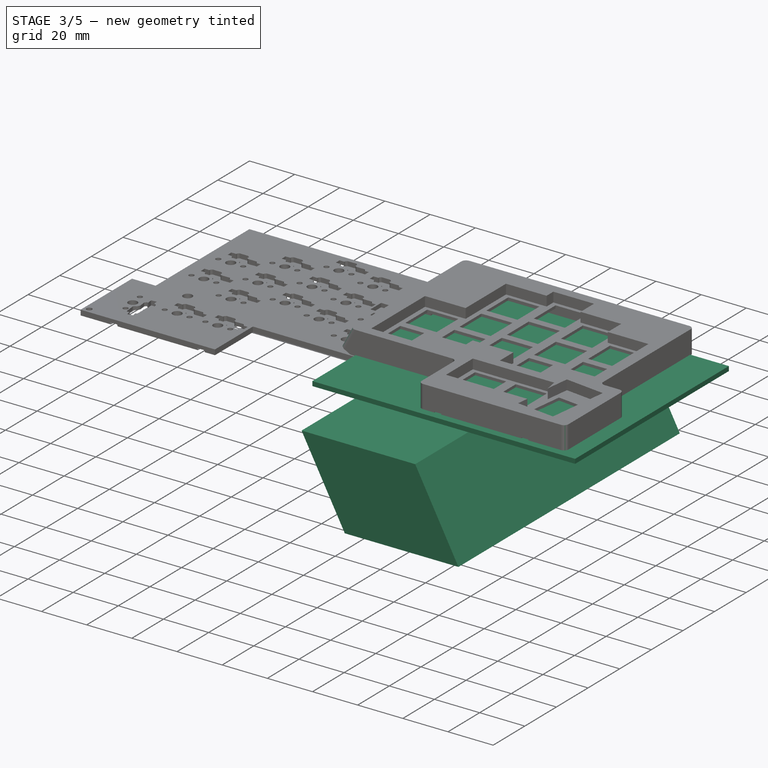
[diagram: stage 3 of 5 — iso view after this stage's code; geometry added in this stage tinted green]
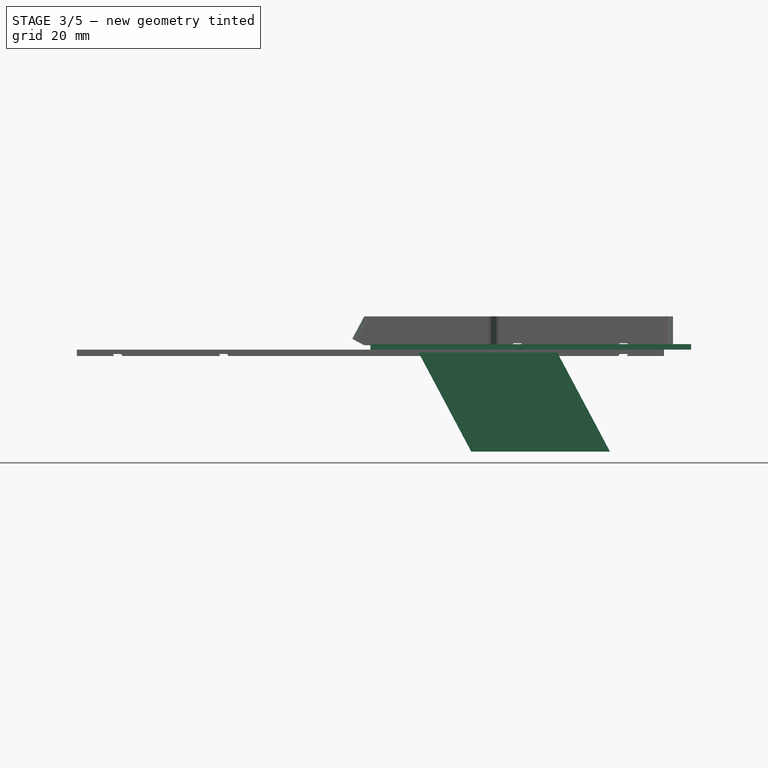
[diagram: stage 3 of 5 — front view after this stage's code; geometry added in this stage tinted green]
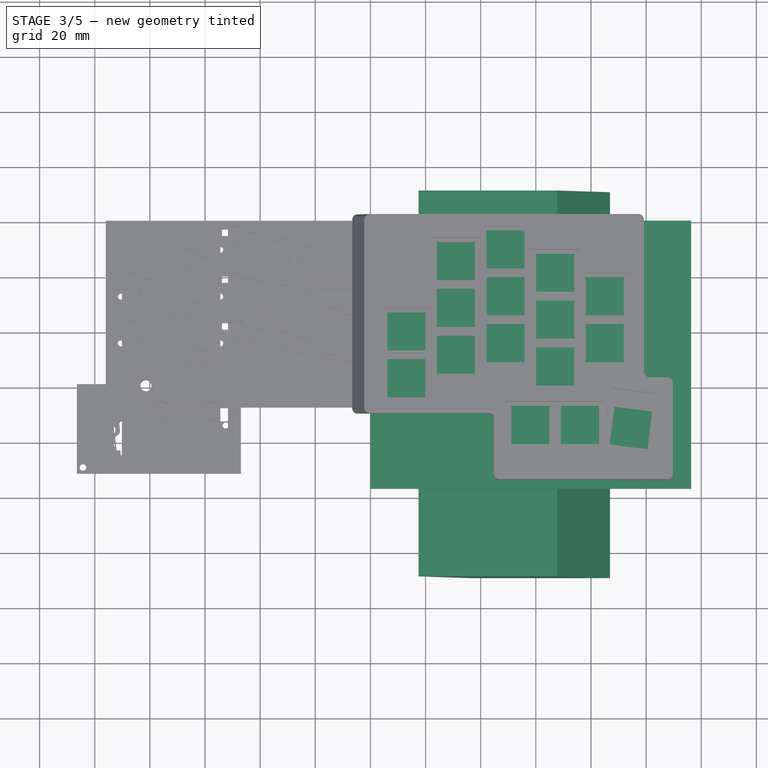
[diagram: stage 3 of 5 — top view after this stage's code; geometry added in this stage tinted green]
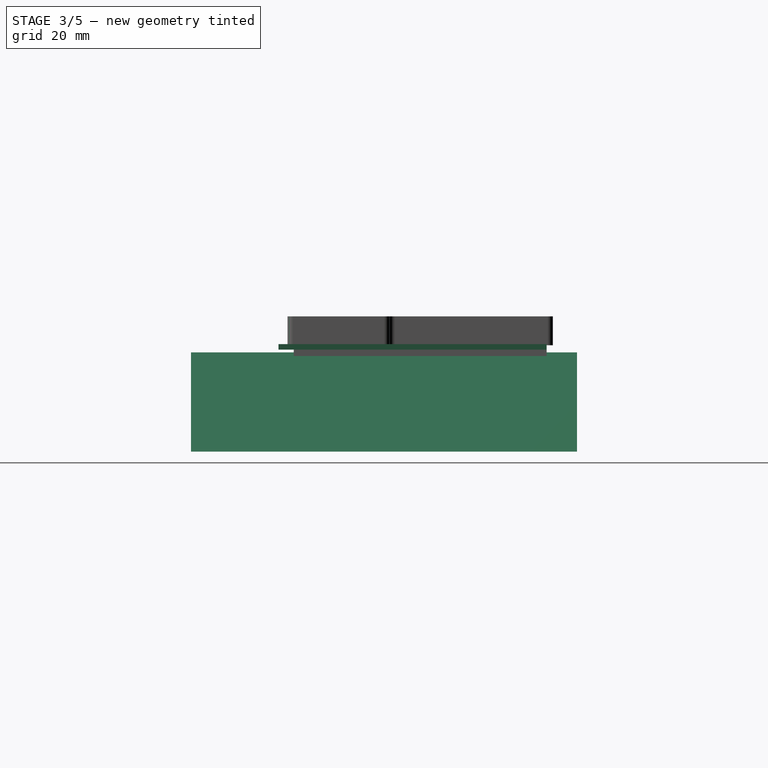
[diagram: stage 3 of 5 — right view after this stage's code; geometry added in this stage tinted green]
FEATURE [Sketcher::SketchObject] Sketch009  label="Socket"
  ArcFitTolerance = 1e-06
  AttachmentSupport = -> [Pad004]
  FullyConstrained = true
  MakeInternals = false
  MapMode = 5
  expr: Constraints[153] = Sketch001.Constraints[153]
  expr: Constraints[154] = Sketch001.Constraints[154]
  expr: Constraints[185] = Sketch001.Constraints[185]
  expr: Constraints[200] = Sketch001.Constraints[200]
  expr: Constraints[211] = Sketch001.Constraints[211]
  expr: Constraints[212] = Sketch001.Constraints[212]
  expr: Constraints[213] = Sketch001.Constraints[213]
  expr: Constraints[214] = Sketch001.Constraints[214]
  expr: Constraints[215] = Sketch001.Constraints[215]
  expr: Constraints[216] = Sketch001.Constraints[216]
  expr: Constraints[233] = Sketch001.Constraints[233]
  expr: Constraints[239] = Sketch001.Constraints[239]
  expr: Constraints[240] = Sketch001.Constraints[240]
  expr: Constraints[241] = Sketch001.Constraints[241]
  sketch-geometry (615):
    g0: LineSegment [constr] StartX=6.1 StartY=-64.15 StartZ=0 EndX=19.9 EndY=-64.15 EndZ=0
    g1: LineSegment [constr] StartX=19.9 StartY=-64.15 StartZ=0 EndX=19.9 EndY=-50.35 EndZ=0
    g2: LineSegment [constr] StartX=19.9 StartY=-50.35 StartZ=0 EndX=6.1 EndY=-50.35 EndZ=0
    g3: LineSegment [constr] StartX=6.1 StartY=-50.35 StartZ=0 EndX=6.1 EndY=-64.15 EndZ=0
    g4: LineSegment [constr] StartX=6.1 StartY=-47.15 StartZ=0 EndX=19.9 EndY=-47.15 EndZ=0
    g5: LineSegment [constr] StartX=19.9 StartY=-47.15 StartZ=0 EndX=19.9 EndY=-33.35 EndZ=0
    g6: LineSegment [constr] StartX=19.9 StartY=-33.35 StartZ=0 EndX=6.1 EndY=-33.35 EndZ=0
    g7: LineSegment [constr] StartX=6.1 StartY=-33.35 StartZ=0 EndX=6.1 EndY=-47.15 EndZ=0
    g8: LineSegment [constr] StartX=24.1 StartY=-55.65 StartZ=0 EndX=37.9 EndY=-55.65 EndZ=0
    g9: LineSegment [constr] StartX=37.9 StartY=-55.65 StartZ=0 EndX=37.9 EndY=-41.85 EndZ=0
    g10: LineSegment [constr] StartX=37.9 StartY=-41.85 StartZ=0 EndX=24.1 EndY=-41.85 EndZ=0
    g11: LineSegment [constr] StartX=24.1 StartY=-41.85 StartZ=0 EndX=24.1 EndY=-55.65 EndZ=0
    g12: LineSegment [constr] StartX=24.1 StartY=-38.65 StartZ=0 EndX=37.9 EndY=-38.65 EndZ=0
    g13: LineSegment [constr] StartX=37.9 StartY=-38.65 StartZ=0 EndX=37.9 EndY=-24.85 EndZ=0
    g14: LineSegment [constr] StartX=37.9 StartY=-24.85 StartZ=0 EndX=24.1 EndY=-24.85 EndZ=0
    g15: LineSegment [constr] StartX=24.1 StartY=-24.85 StartZ=0 EndX=24.1 EndY=-38.65 EndZ=0
    g16: LineSegment [constr] StartX=24.1 StartY=-21.65 StartZ=0 EndX=37.9 EndY=-21.65 EndZ=0
    g17: LineSegment [constr] StartX=37.9 StartY=-21.65 StartZ=0 EndX=37.9 EndY=-7.85 EndZ=0
    g18: LineSegment [constr] StartX=37.9 StartY=-7.85 StartZ=0 EndX=24.1 EndY=-7.85 EndZ=0
    g19: LineSegment [constr] StartX=24.1 StartY=-7.85 StartZ=0 EndX=24.1 EndY=-21.65 EndZ=0
    g20: LineSegment [constr] StartX=42.1 StartY=-51.4 StartZ=0 EndX=55.9 EndY=-51.4 EndZ=0
    g21: LineSegment [constr] StartX=55.9 StartY=-51.4 StartZ=0 EndX=55.9 EndY=-37.6 EndZ=0
    g22: LineSegment [constr] StartX=55.9 StartY=-37.6 StartZ=0 EndX=42.1 EndY=-37.6 EndZ=0
    g23: LineSegment [constr] StartX=42.1 StartY=-37.6 StartZ=0 EndX=42.1 EndY=-51.4 EndZ=0
    g24: LineSegment [constr] StartX=42.1 StartY=-34.4 StartZ=0 EndX=55.9 EndY=-34.4 EndZ=0
    g25: LineSegment [constr] StartX=55.9 StartY=-34.4 StartZ=0 EndX=55.9 EndY=-20.6 EndZ=0
    g26: LineSegment [constr] StartX=55.9 StartY=-20.6 StartZ=0 EndX=42.1 EndY=-20.6 EndZ=0
    g27: LineSegment [constr] StartX=42.1 StartY=-20.6 StartZ=0 EndX=42.1 EndY=-34.4 EndZ=0
    g28: LineSegment [constr] StartX=42.1 StartY=-17.4 StartZ=0 EndX=55.9 EndY=-17.4 EndZ=0
    g29: LineSegment [constr] StartX=55.9 StartY=-17.4 StartZ=0 EndX=55.9 EndY=-3.6 EndZ=0
    g30: LineSegment [constr] StartX=55.9 StartY=-3.6 StartZ=0 EndX=42.1 EndY=-3.6 EndZ=0
    g31: LineSegment [constr] StartX=42.1 StartY=-3.6 StartZ=0 EndX=42.1 EndY=-17.4 EndZ=0
    g32: LineSegment [constr] StartX=60.1 StartY=-59.9 StartZ=0 EndX=73.9 EndY=-59.9 EndZ=0
    g33: LineSegment [constr] StartX=73.9 StartY=-59.9 StartZ=0 EndX=73.9 EndY=-46.1 EndZ=0
    g34: LineSegment [constr] StartX=73.9 StartY=-46.1 StartZ=0 EndX=60.1 EndY=-46.1 EndZ=0
    g35: LineSegment [constr] StartX=60.1 StartY=-46.1 StartZ=0 EndX=60.1 EndY=-59.9 EndZ=0
    g36: LineSegment [constr] StartX=60.1 StartY=-42.9 StartZ=0 EndX=73.9 EndY=-42.9 EndZ=0
    g37: LineSegment [constr] StartX=73.9 StartY=-42.9 StartZ=0 EndX=73.9 EndY=-29.1 EndZ=0
    g38: LineSegment [constr] StartX=73.9 StartY=-29.1 StartZ=0 EndX=60.1 EndY=-29.1 EndZ=0
    g39: LineSegment [constr] StartX=60.1 StartY=-29.1 StartZ=0 EndX=60.1 EndY=-42.9 EndZ=0
    g40: LineSegment [constr] StartX=60.1 StartY=-25.9 StartZ=0 EndX=73.9 EndY=-25.9 EndZ=0
    g41: LineSegment [constr] StartX=73.9 StartY=-25.9 StartZ=0 EndX=73.9 EndY=-12.1 EndZ=0
    g42: LineSegment [constr] StartX=73.9 StartY=-12.1 StartZ=0 EndX=60.1 EndY=-12.1 EndZ=0
    g43: LineSegment [constr] StartX=60.1 StartY=-12.1 StartZ=0 EndX=60.1 EndY=-25.9 EndZ=0
    g44: LineSegment [constr] StartX=78.1 StartY=-51.4 StartZ=0 EndX=91.9 EndY=-51.4 EndZ=0
    g45: LineSegment [constr] StartX=91.9 StartY=-51.4 StartZ=0 EndX=91.9 EndY=-37.6 EndZ=0
    g46: LineSegment [constr] StartX=91.9 StartY=-37.6 StartZ=0 EndX=78.1 EndY=-37.6 EndZ=0
    g47: LineSegment [constr] StartX=78.1 StartY=-37.6 StartZ=0 EndX=78.1 EndY=-51.4 EndZ=0
    g48: LineSegment [constr] StartX=78.1 StartY=-34.4 StartZ=0 EndX=91.9 EndY=-34.4 EndZ=0
    g49: LineSegment [constr] StartX=91.9 StartY=-34.4 StartZ=0 EndX=91.9 EndY=-20.6 EndZ=0
    g50: LineSegment [constr] StartX=91.9 StartY=-20.6 StartZ=0 EndX=78.1 EndY=-20.6 EndZ=0
    g51: LineSegment [constr] StartX=78.1 StartY=-20.6 StartZ=0 EndX=78.1 EndY=-34.4 EndZ=0
    g52: LineSegment [constr] StartX=51.1 StartY=-81.15 StartZ=0 EndX=64.9 EndY=-81.15 EndZ=0
    g53: LineSegment [constr] StartX=64.9 StartY=-81.15 StartZ=0 EndX=64.9 EndY=-67.35 EndZ=0
    g54: LineSegment [constr] StartX=64.9 StartY=-67.35 StartZ=0 EndX=51.1 EndY=-67.35 EndZ=0
    g55: LineSegment [constr] StartX=51.1 StartY=-67.35 StartZ=0 EndX=51.1 EndY=-81.15 EndZ=0
    g56: LineSegment [constr] StartX=69.1 StartY=-81.15 StartZ=0 EndX=82.9 EndY=-81.15 EndZ=0
    g57: LineSegment [constr] StartX=82.9 StartY=-81.15 StartZ=0 EndX=82.9 EndY=-67.35 EndZ=0
    g58: LineSegment [constr] StartX=82.9 StartY=-67.35 StartZ=0 EndX=69.1 EndY=-67.35 EndZ=0
    g59: LineSegment [constr] StartX=69.1 StartY=-67.35 StartZ=0 EndX=69.1 EndY=-81.15 EndZ=0
    g60: LineSegment [constr] StartX=100.508 StartY=-83.582 StartZ=0 EndX=102.19 EndY=-69.8848 EndZ=0
    g61: LineSegment [constr] StartX=102.19 StartY=-69.8848 StartZ=0 EndX=88.4924 EndY=-68.203 EndZ=0
    g62: LineSegment [constr] StartX=88.4924 StartY=-68.203 StartZ=0 EndX=86.8106 EndY=-81.9002 EndZ=0
    g63: LineSegment [constr] StartX=86.8106 StartY=-81.9002 StartZ=0 EndX=100.508 EndY=-83.582 EndZ=0
    g64: LineSegment [constr] StartX=19.9 StartY=-47.15 StartZ=0 EndX=24.1 EndY=-47.15 EndZ=0
    g65: LineSegment [constr] StartX=19.9 StartY=-50.35 StartZ=0 EndX=19.9 EndY=-47.15 EndZ=0
    g66: LineSegment [constr] StartX=24.1 StartY=-41.85 StartZ=0 EndX=24.1 EndY=-38.65 EndZ=0
    g67: LineSegment [constr] StartX=42.1 StartY=-37.6 StartZ=0 EndX=37.9 EndY=-37.6 EndZ=0
    g68: LineSegment [constr] StartX=24.1 StartY=-24.85 StartZ=0 EndX=24.1 EndY=-21.65 EndZ=0
    g69: LineSegment [constr] StartX=60.1 StartY=-25.9 StartZ=0 EndX=60.1 EndY=-29.1 EndZ=0
    g70: LineSegment [constr] StartX=60.1 StartY=-42.9 StartZ=0 EndX=60.1 EndY=-46.1 EndZ=0
    g71: LineSegment [constr] StartX=60.1 StartY=-29.1 StartZ=0 EndX=55.9 EndY=-29.1 EndZ=0
    g72: LineSegment [constr] StartX=64.9 StartY=-67.35 StartZ=0 EndX=69.1 EndY=-67.35 EndZ=0
    g73: LineSegment [constr] StartX=6.1 StartY=-50.35 StartZ=0 EndX=6.1 EndY=-47.15 EndZ=0
    g74: LineSegment [constr] StartX=37.9 StartY=-41.85 StartZ=0 EndX=37.9 EndY=-38.65 EndZ=0
    g75: LineSegment [constr] StartX=37.9 StartY=-24.85 StartZ=0 EndX=37.9 EndY=-21.65 EndZ=0
    g76: LineSegment [constr] StartX=55.9 StartY=-17.4 StartZ=0 EndX=55.9 EndY=-20.6 EndZ=0
    g77: LineSegment [constr] StartX=55.9 StartY=-34.4 StartZ=0 EndX=55.9 EndY=-37.6 EndZ=0
    g78: LineSegment [constr] StartX=73.9 StartY=-25.9 StartZ=0 EndX=73.9 EndY=-29.1 EndZ=0
    g79: LineSegment [constr] StartX=73.9 StartY=-46.1 StartZ=0 EndX=73.9 EndY=-42.9 EndZ=0
    g80: LineSegment [constr] StartX=42.1 StartY=-34.4 StartZ=0 EndX=42.1 EndY=-37.6 EndZ=0
    g81: LineSegment [constr] StartX=42.1 StartY=-20.6 StartZ=0 EndX=42.1 EndY=-17.4 EndZ=0
    g82: LineSegment [constr] StartX=91.9 StartY=-34.4 StartZ=0 EndX=91.9 EndY=-37.6 EndZ=0
    g83: LineSegment [constr] StartX=78.1 StartY=-37.6 StartZ=0 EndX=78.1 EndY=-34.4 EndZ=0
    g84: LineSegment [constr] StartX=78.1 StartY=-34.4 StartZ=0 EndX=73.9 EndY=-34.4 EndZ=0
    g85: LineSegment [constr] StartX=64.9 StartY=-81.15 StartZ=0 EndX=69.1 EndY=-81.15 EndZ=0
    g86: LineSegment [constr] StartX=86.8106 StartY=-81.9002 StartZ=0 EndX=82.9 EndY=-81.42 EndZ=0
    g87: LineSegment StartX=8.16118 StartY=-49.9212 StartZ=0 EndX=10.3112 EndY=-49.9212 EndZ=0
    g88: LineSegment StartX=8.16118 StartY=-52.2712 StartZ=0 EndX=8.16118 EndY=-49.9212 EndZ=0
    g89: LineSegment StartX=8.16118 StartY=-52.2712 StartZ=0 EndX=10.3112 EndY=-52.2712 EndZ=0
    g90: LineSegment StartX=10.3112 StartY=-49.4712 StartZ=0 EndX=10.9829 EndY=-48.7994 EndZ=0
    g91: LineSegment StartX=10.3112 StartY=-49.9212 StartZ=0 EndX=10.3112 EndY=-49.4712 EndZ=0
    g92: LineSegment StartX=10.3112 StartY=-52.2712 StartZ=0 EndX=10.3112 EndY=-52.9212 EndZ=0
    g93: LineSegment StartX=10.3112 StartY=-52.9212 StartZ=0 EndX=10.99 EndY=-53.6 EndZ=0
    g94: LineSegment StartX=10.9829 StartY=-48.7994 StartZ=0 EndX=14.8329 EndY=-48.7994 EndZ=0
    g95: LineSegment StartX=10.99 StartY=-53.6 StartZ=0 EndX=13.34 EndY=-53.6 EndZ=0
    g96: LineSegment StartX=14.8329 StartY=-48.7994 StartZ=0 EndX=15.6037 EndY=-49.5702 EndZ=0
    g97: LineSegment StartX=15.6037 StartY=-49.5702 StartZ=0 EndX=15.6037 EndY=-50.1002 EndZ=0
    g98: LineSegment StartX=16.2137 StartY=-55.7702 StartZ=0 EndX=20.7337 EndY=-55.7702 EndZ=0
    g99: LineSegment StartX=16.5037 StartY=-51.0002 StartZ=0 EndX=19.6037 EndY=-51.0002 EndZ=0
    g100: LineSegment StartX=20.7237 StartY=-52.1202 StartZ=0 EndX=22.6337 EndY=-52.1202 EndZ=0
    g101: LineSegment StartX=20.7337 StartY=-54.4702 StartZ=0 EndX=20.7337 EndY=-55.7702 EndZ=0
    g102: LineSegment StartX=22.6337 StartY=-54.4702 StartZ=0 EndX=20.7337 EndY=-54.4702 EndZ=0
    g103: LineSegment StartX=22.6337 StartY=-54.4702 StartZ=0 EndX=22.6337 EndY=-52.1202 EndZ=0
    g104: ArcOfCircle CenterX=13.34 CenterY=-55.6677 CenterZ=0 NormalX=0 NormalY=0 NormalZ=1 AngleXU=0 Radius=2.0677 StartAngle=0.277167 EndAngle=1.5708
    g105: ArcOfCircle CenterX=16.2137 CenterY=-54.8502 CenterZ=0 NormalX=0 NormalY=0 NormalZ=1 AngleXU=0 Radius=0.92 StartAngle=3.41876 EndAngle=4.71239
    g106: ArcOfCircle CenterX=16.5037 CenterY=-50.1002 CenterZ=0 NormalX=0 NormalY=0 NormalZ=1 AngleXU=0 Radius=0.9 StartAngle=3.14159 EndAngle=4.71239
    g107: ArcOfCircle CenterX=19.6037 CenterY=-52.1202 CenterZ=0 NormalX=0 NormalY=0 NormalZ=1 AngleXU=0 Radius=1.12 StartAngle=0 EndAngle=1.5708
    g108: Circle CenterX=7.5 CenterY=-57.25 CenterZ=0 NormalX=0 NormalY=0 NormalZ=-1 AngleXU=0 Radius=1.1
    g109: Circle CenterX=13 CenterY=-57.25 CenterZ=0 NormalX=0 NormalY=0 NormalZ=-1 AngleXU=0 Radius=2
    g110: Circle CenterX=18.5 CenterY=-57.25 CenterZ=0 NormalX=0 NormalY=0 NormalZ=-1 AngleXU=0 Radius=1.1
    g111: LineSegment [constr] StartX=7.5 StartY=-57.25 StartZ=0 EndX=18.5 EndY=-57.25 EndZ=0
    g112: LineSegment [constr] StartX=19.6037 StartY=-52.1202 StartZ=0 EndX=20.7237 EndY=-52.1202 EndZ=0
    g113: LineSegment [constr] StartX=19.6037 StartY=-52.1202 StartZ=0 EndX=19.6037 EndY=-51.0002 EndZ=0
    g114: LineSegment [constr] StartX=15.6037 StartY=-50.1002 StartZ=0 EndX=16.5037 EndY=-50.1002 EndZ=0
    g115: LineSegment [constr] StartX=16.5037 StartY=-50.1002 StartZ=0 EndX=16.5037 EndY=-51.0002 EndZ=0
    g116: LineSegment [constr] StartX=13.34 StartY=-53.6 StartZ=0 EndX=13.34 EndY=-55.6677 EndZ=0
    g117: LineSegment [constr] StartX=16.2137 StartY=-55.7702 StartZ=0 EndX=16.2137 EndY=-54.8502 EndZ=0
    g118: LineSegment [constr] StartX=13.34 StartY=-55.6677 StartZ=0 EndX=16.2137 EndY=-54.8502 EndZ=0
    g119: Circle [constr] CenterX=13 CenterY=-57.25 CenterZ=0 NormalX=0 NormalY=0 NormalZ=1 AngleXU=0 Radius=9.75807
    g120: Circle [constr] CenterX=13 CenterY=-40.25 CenterZ=0 NormalX=0 NormalY=0 NormalZ=1 AngleXU=0 Radius=9.75807
    g121: Circle [constr] CenterX=31 CenterY=-31.75 CenterZ=0 NormalX=0 NormalY=0 NormalZ=1 AngleXU=0 Radius=9.75807
    g122: Circle [constr] CenterX=31 CenterY=-48.75 CenterZ=0 NormalX=0 NormalY=0 NormalZ=1 AngleXU=0 Radius=9.75807
    g123: LineSegment StartX=8.16118 StartY=-32.9212 StartZ=0 EndX=10.3112 EndY=-32.9212 EndZ=0
    g124: LineSegment StartX=8.16118 StartY=-35.2712 StartZ=0 EndX=8.16118 EndY=-32.9212 EndZ=0
    g125: LineSegment StartX=8.16118 StartY=-35.2712 StartZ=0 EndX=10.3112 EndY=-35.2712 EndZ=0
    g126: LineSegment StartX=10.3112 StartY=-32.4712 StartZ=0 EndX=10.9829 EndY=-31.7994 EndZ=0
    g127: LineSegment StartX=10.3112 StartY=-32.9212 StartZ=0 EndX=10.3112 EndY=-32.4712 EndZ=0
    g128: LineSegment StartX=10.3112 StartY=-35.2712 StartZ=0 EndX=10.3112 EndY=-35.9212 EndZ=0
    g129: LineSegment StartX=10.3112 StartY=-35.9212 StartZ=0 EndX=10.99 EndY=-36.6 EndZ=0
    g130: LineSegment StartX=10.9829 StartY=-31.7994 StartZ=0 EndX=14.8329 EndY=-31.7994 EndZ=0
    g131: LineSegment StartX=10.99 StartY=-36.6 StartZ=0 EndX=13.34 EndY=-36.6 EndZ=0
    g132: LineSegment StartX=14.8329 StartY=-31.7994 StartZ=0 EndX=15.6037 EndY=-32.5702 EndZ=0
    g133: LineSegment StartX=15.6037 StartY=-32.5702 StartZ=0 EndX=15.6037 EndY=-33.1002 EndZ=0
    g134: LineSegment StartX=16.2137 StartY=-38.7702 StartZ=0 EndX=20.7337 EndY=-38.7702 EndZ=0
    g135: LineSegment StartX=16.5037 StartY=-34.0002 StartZ=0 EndX=19.6037 EndY=-34.0002 EndZ=0
    g136: LineSegment StartX=20.7237 StartY=-35.1202 StartZ=0 EndX=22.6337 EndY=-35.1202 EndZ=0
    g137: LineSegment StartX=20.7337 StartY=-37.4702 StartZ=0 EndX=20.7337 EndY=-38.7702 EndZ=0
    g138: LineSegment StartX=22.6337 StartY=-37.4702 StartZ=0 EndX=20.7337 EndY=-37.4702 EndZ=0
    g139: LineSegment StartX=22.6337 StartY=-37.4702 StartZ=0 EndX=22.6337 EndY=-35.1202 EndZ=0
    g140: ArcOfCircle CenterX=13.34 CenterY=-38.6677 CenterZ=0 NormalX=0 NormalY=0 NormalZ=1 AngleXU=0 Radius=2.0677 StartAngle=0.277167 EndAngle=1.5708
    g141: ArcOfCircle CenterX=16.2137 CenterY=-37.8502 CenterZ=0 NormalX=0 NormalY=0 NormalZ=1 AngleXU=0 Radius=0.92 StartAngle=3.41876 EndAngle=4.71239
    g142: ArcOfCircle CenterX=16.5037 CenterY=-33.1002 CenterZ=0 NormalX=0 NormalY=0 NormalZ=1 AngleXU=0 Radius=0.9 StartAngle=3.14159 EndAngle=4.71239
    g143: ArcOfCircle CenterX=19.6037 CenterY=-35.1202 CenterZ=0 NormalX=0 NormalY=0 NormalZ=1 AngleXU=0 Radius=1.12 StartAngle=0 EndAngle=1.5708
    g144: Circle CenterX=13 CenterY=-40.25 CenterZ=0 NormalX=0 NormalY=0 NormalZ=-1 AngleXU=0 Radius=2
    g145: LineSegment [constr] StartX=19.6037 StartY=-35.1202 StartZ=0 EndX=20.7237 EndY=-35.1202 EndZ=0
    g146: LineSegment [constr] StartX=19.6037 StartY=-35.1202 StartZ=0 EndX=19.6037 EndY=-34.0002 EndZ=0
    g147: LineSegment [constr] StartX=15.6037 StartY=-33.1002 StartZ=0 EndX=16.5037 EndY=-33.1002 EndZ=0
    g148: LineSegment [constr] StartX=16.5037 StartY=-33.1002 StartZ=0 EndX=16.5037 EndY=-34.0002 EndZ=0
    g149: LineSegment [constr] StartX=13.34 StartY=-36.6 StartZ=0 EndX=13.34 EndY=-38.6677 EndZ=0
    g150: LineSegment [constr] StartX=16.2137 StartY=-38.7702 StartZ=0 EndX=16.2137 EndY=-37.8502 EndZ=0
    g151: LineSegment [constr] StartX=13.34 StartY=-38.6677 StartZ=0 EndX=16.2137 EndY=-37.8502 EndZ=0
    g152: Circle [constr] CenterX=31 CenterY=-14.75 CenterZ=0 NormalX=0 NormalY=0 NormalZ=1 AngleXU=0 Radius=9.75807
    g153: Circle [constr] CenterX=49 CenterY=-10.5 CenterZ=0 NormalX=0 NormalY=0 NormalZ=1 AngleXU=0 Radius=9.75807
    g154: Circle [constr] CenterX=67 CenterY=-19 CenterZ=0 NormalX=0 NormalY=0 NormalZ=1 AngleXU=0 Radius=9.75807
    g155: Circle [constr] CenterX=85 CenterY=-27.5 CenterZ=0 NormalX=0 NormalY=0 NormalZ=1 AngleXU=0 Radius=9.75807
    g156: Circle [constr] CenterX=85 CenterY=-44.5 CenterZ=0 NormalX=0 NormalY=0 NormalZ=1 AngleXU=0 Radius=9.75807
    g157: Circle [constr] CenterX=67 CenterY=-36 CenterZ=0 NormalX=0 NormalY=0 NormalZ=1 AngleXU=0 Radius=9.75807
    g158: Circle [constr] CenterX=49 CenterY=-27.5 CenterZ=0 NormalX=0 NormalY=0 NormalZ=1 AngleXU=0 Radius=9.75807
    g159: Circle [constr] CenterX=49 CenterY=-44.5 CenterZ=0 NormalX=0 NormalY=0 NormalZ=1 AngleXU=0 Radius=9.75807
    g160: Circle [constr] CenterX=67 CenterY=-53 CenterZ=0 NormalX=0 NormalY=0 NormalZ=1 AngleXU=0 Radius=9.75807
    g161: LineSegment [constr] StartX=7.5 StartY=-40.25 StartZ=0 EndX=18.5 EndY=-40.25 EndZ=0
    g162: Circle CenterX=7.5 CenterY=-40.25 CenterZ=0 NormalX=0 NormalY=0 NormalZ=1 AngleXU=0 Radius=1.1
    g163: Circle CenterX=18.5 CenterY=-40.25 CenterZ=0 NormalX=0 NormalY=0 NormalZ=1 AngleXU=0 Radius=1.1
    g164: LineSegment StartX=26.1612 StartY=-24.4212 StartZ=0 EndX=28.3112 EndY=-24.4212 EndZ=0
    g165: LineSegment StartX=26.1612 StartY=-26.7712 StartZ=0 EndX=26.1612 EndY=-24.4212 EndZ=0
    g166: LineSegment StartX=26.1612 StartY=-26.7712 StartZ=0 EndX=28.3112 EndY=-26.7712 EndZ=0
    g167: LineSegment StartX=28.3112 StartY=-23.9712 StartZ=0 EndX=28.9829 EndY=-23.2994 EndZ=0
    g168: LineSegment StartX=28.3112 StartY=-24.4212 StartZ=0 EndX=28.3112 EndY=-23.9712 EndZ=0
    g169: LineSegment StartX=28.3112 StartY=-26.7712 StartZ=0 EndX=28.3112 EndY=-27.4212 EndZ=0
    g170: LineSegment StartX=28.3112 StartY=-27.4212 StartZ=0 EndX=28.99 EndY=-28.1 EndZ=0
    g171: LineSegment StartX=28.9829 StartY=-23.2994 StartZ=0 EndX=32.8329 EndY=-23.2994 EndZ=0
    g172: LineSegment StartX=28.99 StartY=-28.1 StartZ=0 EndX=31.34 EndY=-28.1 EndZ=0
    g173: LineSegment StartX=32.8329 StartY=-23.2994 StartZ=0 EndX=33.6037 EndY=-24.0702 EndZ=0
    g174: LineSegment StartX=33.6037 StartY=-24.0702 StartZ=0 EndX=33.6037 EndY=-24.6002 EndZ=0
    g175: LineSegment StartX=34.2137 StartY=-30.2702 StartZ=0 EndX=38.7337 EndY=-30.2702 EndZ=0
    g176: LineSegment StartX=34.5037 StartY=-25.5002 StartZ=0 EndX=37.6037 EndY=-25.5002 EndZ=0
    g177: LineSegment StartX=38.7237 StartY=-26.6202 StartZ=0 EndX=40.6337 EndY=-26.6202 EndZ=0
    g178: LineSegment StartX=38.7337 StartY=-28.9702 StartZ=0 EndX=38.7337 EndY=-30.2702 EndZ=0
    g179: LineSegment StartX=40.6337 StartY=-28.9702 StartZ=0 EndX=38.7337 EndY=-28.9702 EndZ=0
    g180: LineSegment StartX=40.6337 StartY=-28.9702 StartZ=0 EndX=40.6337 EndY=-26.6202 EndZ=0
    g181: ArcOfCircle CenterX=31.34 CenterY=-30.1677 CenterZ=0 NormalX=0 NormalY=0 NormalZ=1 AngleXU=0 Radius=2.0677 StartAngle=0.277167 EndAngle=1.5708
    g182: ArcOfCircle CenterX=34.2137 CenterY=-29.3502 CenterZ=0 NormalX=0 NormalY=0 NormalZ=1 AngleXU=0 Radius=0.92 StartAngle=3.41876 EndAngle=4.71239
    g183: ArcOfCircle CenterX=34.5037 CenterY=-24.6002 CenterZ=0 NormalX=0 NormalY=0 NormalZ=1 AngleXU=0 Radius=0.9 StartAngle=3.14159 EndAngle=4.71239
    g184: ArcOfCircle CenterX=37.6037 CenterY=-26.6202 CenterZ=0 NormalX=0 NormalY=0 NormalZ=1 AngleXU=0 Radius=1.12 StartAngle=0 EndAngle=1.5708
    g185: Circle CenterX=31 CenterY=-31.75 CenterZ=0 NormalX=0 NormalY=0 NormalZ=-1 AngleXU=0 Radius=2
    g186: LineSegment [constr] StartX=37.6037 StartY=-26.6202 StartZ=0 EndX=38.7237 EndY=-26.6202 EndZ=0
    g187: LineSegment [constr] StartX=37.6037 StartY=-26.6202 StartZ=0 EndX=37.6037 EndY=-25.5002 EndZ=0
    g188: LineSegment [constr] StartX=33.6037 StartY=-24.6002 StartZ=0 EndX=34.5037 EndY=-24.6002 EndZ=0
    g189: LineSegment [constr] StartX=34.5037 StartY=-24.6002 StartZ=0 EndX=34.5037 EndY=-25.5002 EndZ=0
    g190: LineSegment [constr] StartX=31.34 StartY=-28.1 StartZ=0 EndX=31.34 EndY=-30.1677 EndZ=0
    g191: LineSegment [constr] StartX=34.2137 StartY=-30.2702 StartZ=0 EndX=34.2137 EndY=-29.3502 EndZ=0
    g192: LineSegment [constr] StartX=31.34 StartY=-30.1677 StartZ=0 EndX=34.2137 EndY=-29.3502 EndZ=0
    g193: LineSegment [constr] StartX=25.5 StartY=-31.75 StartZ=0 EndX=36.5 EndY=-31.75 EndZ=0
    g194: Circle CenterX=25.5 CenterY=-31.75 CenterZ=0 NormalX=0 NormalY=0 NormalZ=1 AngleXU=0 Radius=1.1
    g195: Circle CenterX=36.5 CenterY=-31.75 CenterZ=0 NormalX=0 NormalY=0 NormalZ=1 AngleXU=0 Radius=1.1
    g196: LineSegment StartX=26.1612 StartY=-7.42118 StartZ=0 EndX=28.3112 EndY=-7.42118 EndZ=0
    g197: LineSegment StartX=26.1612 StartY=-9.77118 StartZ=0 EndX=26.1612 EndY=-7.42118 EndZ=0
    g198: LineSegment StartX=26.1612 StartY=-9.77118 StartZ=0 EndX=28.3112 EndY=-9.77118 EndZ=0
    g199: LineSegment StartX=28.3112 StartY=-6.97118 StartZ=0 EndX=28.9829 EndY=-6.29943 EndZ=0
    g200: LineSegment StartX=28.3112 StartY=-7.42118 StartZ=0 EndX=28.3112 EndY=-6.97118 EndZ=0
    g201: LineSegment StartX=28.3112 StartY=-9.77118 StartZ=0 EndX=28.3112 EndY=-10.4212 EndZ=0
    g202: LineSegment StartX=28.3112 StartY=-10.4212 StartZ=0 EndX=28.99 EndY=-11.1 EndZ=0
    g203: LineSegment StartX=28.9829 StartY=-6.29943 StartZ=0 EndX=32.8329 EndY=-6.29943 EndZ=0
    g204: LineSegment StartX=28.99 StartY=-11.1 StartZ=0 EndX=31.34 EndY=-11.1 EndZ=0
    g205: LineSegment StartX=32.8329 StartY=-6.29943 StartZ=0 EndX=33.6037 EndY=-7.07017 EndZ=0
    g206: LineSegment StartX=33.6037 StartY=-7.07017 StartZ=0 EndX=33.6037 EndY=-7.60017 EndZ=0
    g207: LineSegment StartX=34.2137 StartY=-13.2702 StartZ=0 EndX=38.7337 EndY=-13.2702 EndZ=0
    g208: LineSegment StartX=34.5037 StartY=-8.50017 StartZ=0 EndX=37.6037 EndY=-8.50017 EndZ=0
    g209: LineSegment StartX=38.7237 StartY=-9.62017 StartZ=0 EndX=40.6337 EndY=-9.62017 EndZ=0
    g210: LineSegment StartX=38.7337 StartY=-11.9702 StartZ=0 EndX=38.7337 EndY=-13.2702 EndZ=0
    g211: LineSegment StartX=40.6337 StartY=-11.9702 StartZ=0 EndX=38.7337 EndY=-11.9702 EndZ=0
    g212: LineSegment StartX=40.6337 StartY=-11.9702 StartZ=0 EndX=40.6337 EndY=-9.62017 EndZ=0
    g213: ArcOfCircle CenterX=31.34 CenterY=-13.1677 CenterZ=0 NormalX=0 NormalY=0 NormalZ=1 AngleXU=0 Radius=2.0677 StartAngle=0.277167 EndAngle=1.5708
    g214: ArcOfCircle CenterX=34.2137 CenterY=-12.3502 CenterZ=0 NormalX=0 NormalY=0 NormalZ=1 AngleXU=0 Radius=0.92 StartAngle=3.41876 EndAngle=4.71239
    g215: ArcOfCircle CenterX=34.5037 CenterY=-7.60017 CenterZ=0 NormalX=0 NormalY=0 NormalZ=1 AngleXU=0 Radius=0.9 StartAngle=3.14159 EndAngle=4.71239
    g216: ArcOfCircle CenterX=37.6037 CenterY=-9.62017 CenterZ=0 NormalX=0 NormalY=0 NormalZ=1 AngleXU=0 Radius=1.12 StartAngle=0 EndAngle=1.5708
    g217: Circle CenterX=31 CenterY=-14.75 CenterZ=0 NormalX=0 NormalY=0 NormalZ=-1 AngleXU=0 Radius=2
    g218: LineSegment [constr] StartX=37.6037 StartY=-9.62017 StartZ=0 EndX=38.7237 EndY=-9.62017 EndZ=0
    g219: LineSegment [constr] StartX=37.6037 StartY=-9.62017 StartZ=0 EndX=37.6037 EndY=-8.50017 EndZ=0
    g220: LineSegment [constr] StartX=33.6037 StartY=-7.60017 StartZ=0 EndX=34.5037 EndY=-7.60017 EndZ=0
    g221: LineSegment [constr] StartX=34.5037 StartY=-7.60017 StartZ=0 EndX=34.5037 EndY=-8.50017 EndZ=0
    g222: LineSegment [constr] StartX=31.34 StartY=-11.1 StartZ=0 EndX=31.34 EndY=-13.1677 EndZ=0
    g223: LineSegment [constr] StartX=34.2137 StartY=-13.2702 StartZ=0 EndX=34.2137 EndY=-12.3502 EndZ=0
    g224: LineSegment [constr] StartX=31.34 StartY=-13.1677 StartZ=0 EndX=34.2137 EndY=-12.3502 EndZ=0
    g225: LineSegment [constr] StartX=25.5 StartY=-14.75 StartZ=0 EndX=36.5 EndY=-14.75 EndZ=0
    g226: Circle CenterX=25.5 CenterY=-14.75 CenterZ=0 NormalX=0 NormalY=0 NormalZ=1 AngleXU=0 Radius=1.1
    g227: Circle CenterX=36.5 CenterY=-14.75 CenterZ=0 NormalX=0 NormalY=0 NormalZ=1 AngleXU=0 Radius=1.1
    g228: LineSegment StartX=26.1612 StartY=-41.4212 StartZ=0 EndX=28.3112 EndY=-41.4212 EndZ=0
    g229: LineSegment StartX=26.1612 StartY=-43.7712 StartZ=0 EndX=26.1612 EndY=-41.4212 EndZ=0
    g230: LineSegment StartX=26.1612 StartY=-43.7712 StartZ=0 EndX=28.3112 EndY=-43.7712 EndZ=0
    g231: LineSegment StartX=28.3112 StartY=-40.9712 StartZ=0 EndX=28.9829 EndY=-40.2994 EndZ=0
    g232: LineSegment StartX=28.3112 StartY=-41.4212 StartZ=0 EndX=28.3112 EndY=-40.9712 EndZ=0
    g233: LineSegment StartX=28.3112 StartY=-43.7712 StartZ=0 EndX=28.3112 EndY=-44.4212 EndZ=0
    g234: LineSegment StartX=28.3112 StartY=-44.4212 StartZ=0 EndX=28.99 EndY=-45.1 EndZ=0
    g235: LineSegment StartX=28.9829 StartY=-40.2994 StartZ=0 EndX=32.8329 EndY=-40.2994 EndZ=0
    g236: LineSegment StartX=28.99 StartY=-45.1 StartZ=0 EndX=31.34 EndY=-45.1 EndZ=0
    g237: LineSegment StartX=32.8329 StartY=-40.2994 StartZ=0 EndX=33.6037 EndY=-41.0702 EndZ=0
    g238: LineSegment StartX=33.6037 StartY=-41.0702 StartZ=0 EndX=33.6037 EndY=-41.6002 EndZ=0
    g239: LineSegment StartX=34.2137 StartY=-47.2702 StartZ=0 EndX=38.7337 EndY=-47.2702 EndZ=0
    g240: LineSegment StartX=34.5037 StartY=-42.5002 StartZ=0 EndX=37.6037 EndY=-42.5002 EndZ=0
    g241: LineSegment StartX=38.7237 StartY=-43.6202 StartZ=0 EndX=40.6337 EndY=-43.6202 EndZ=0
    g242: LineSegment StartX=38.7337 StartY=-45.9702 StartZ=0 EndX=38.7337 EndY=-47.2702 EndZ=0
    g243: LineSegment StartX=40.6337 StartY=-45.9702 StartZ=0 EndX=38.7337 EndY=-45.9702 EndZ=0
    g244: LineSegment StartX=40.6337 StartY=-45.9702 StartZ=0 EndX=40.6337 EndY=-43.6202 EndZ=0
    g245: ArcOfCircle CenterX=31.34 CenterY=-47.1677 CenterZ=0 NormalX=0 NormalY=0 NormalZ=1 AngleXU=0 Radius=2.0677 StartAngle=0.277167 EndAngle=1.5708
    g246: ArcOfCircle CenterX=34.2137 CenterY=-46.3502 CenterZ=0 NormalX=0 NormalY=0 NormalZ=1 AngleXU=0 Radius=0.92 StartAngle=3.41876 EndAngle=4.71239
    g247: ArcOfCircle CenterX=34.5037 CenterY=-41.6002 CenterZ=0 NormalX=0 NormalY=0 NormalZ=1 AngleXU=0 Radius=0.9 StartAngle=3.14159 EndAngle=4.71239
    g248: ArcOfCircle CenterX=37.6037 CenterY=-43.6202 CenterZ=0 NormalX=0 NormalY=0 NormalZ=1 AngleXU=0 Radius=1.12 StartAngle=0 EndAngle=1.5708
    g249: Circle CenterX=31 CenterY=-48.75 CenterZ=0 NormalX=0 NormalY=0 NormalZ=-1 AngleXU=0 Radius=2
    g250: LineSegment [constr] StartX=37.6037 StartY=-43.6202 StartZ=0 EndX=38.7237 EndY=-43.6202 EndZ=0
    g251: LineSegment [constr] StartX=37.6037 StartY=-43.6202 StartZ=0 EndX=37.6037 EndY=-42.5002 EndZ=0
    g252: LineSegment [constr] StartX=33.6037 StartY=-41.6002 StartZ=0 EndX=34.5037 EndY=-41.6002 EndZ=0
    g253: LineSegment [constr] StartX=34.5037 StartY=-41.6002 StartZ=0 EndX=34.5037 EndY=-42.5002 EndZ=0
    g254: LineSegment [constr] StartX=34.2137 StartY=-47.2702 StartZ=0 EndX=34.2137 EndY=-46.3502 EndZ=0
    g255: LineSegment [constr] StartX=25.5 StartY=-48.75 StartZ=0 EndX=36.5 EndY=-48.75 EndZ=0
    g256: Circle CenterX=25.5 CenterY=-48.75 CenterZ=0 NormalX=0 NormalY=0 NormalZ=1 AngleXU=0 Radius=1.1
    g257: Circle CenterX=36.5 CenterY=-48.75 CenterZ=0 NormalX=0 NormalY=0 NormalZ=1 AngleXU=0 Radius=1.1
    g258: LineSegment StartX=44.1612 StartY=-3.17118 StartZ=0 EndX=46.3112 EndY=-3.17118 EndZ=0
    g259: LineSegment StartX=44.1612 StartY=-5.52118 StartZ=0 EndX=44.1612 EndY=-3.17118 EndZ=0
    g260: LineSegment StartX=44.1612 StartY=-5.52118 StartZ=0 EndX=46.3112 EndY=-5.52118 EndZ=0
    g261: LineSegment StartX=46.3112 StartY=-2.72118 StartZ=0 EndX=46.9829 EndY=-2.04943 EndZ=0
    g262: LineSegment StartX=46.3112 StartY=-3.17118 StartZ=0 EndX=46.3112 EndY=-2.72118 EndZ=0
    g263: LineSegment StartX=46.3112 StartY=-5.52118 StartZ=0 EndX=46.3112 EndY=-6.17118 EndZ=0
    g264: LineSegment StartX=46.3112 StartY=-6.17118 StartZ=0 EndX=46.99 EndY=-6.85 EndZ=0
    g265: LineSegment StartX=46.9829 StartY=-2.04943 StartZ=0 EndX=50.8329 EndY=-2.04943 EndZ=0
    g266: LineSegment StartX=46.99 StartY=-6.85 StartZ=0 EndX=49.34 EndY=-6.85 EndZ=0
    g267: LineSegment StartX=50.8329 StartY=-2.04943 StartZ=0 EndX=51.6037 EndY=-2.82017 EndZ=0
    g268: LineSegment StartX=51.6037 StartY=-2.82017 StartZ=0 EndX=51.6037 EndY=-3.35017 EndZ=0
    g269: LineSegment StartX=52.2137 StartY=-9.02017 StartZ=0 EndX=56.7337 EndY=-9.02017 EndZ=0
    g270: LineSegment StartX=52.5037 StartY=-4.25017 StartZ=0 EndX=55.6037 EndY=-4.25017 EndZ=0
    g271: LineSegment StartX=56.7237 StartY=-5.37017 StartZ=0 EndX=58.6337 EndY=-5.37017 EndZ=0
    g272: LineSegment StartX=56.7337 StartY=-7.72017 StartZ=0 EndX=56.7337 EndY=-9.02017 EndZ=0
    g273: LineSegment StartX=58.6337 StartY=-7.72017 StartZ=0 EndX=56.7337 EndY=-7.72017 EndZ=0
    g274: LineSegment StartX=58.6337 StartY=-7.72017 StartZ=0 EndX=58.6337 EndY=-5.37017 EndZ=0
    g275: ArcOfCircle CenterX=49.34 CenterY=-8.9177 CenterZ=0 NormalX=0 NormalY=0 NormalZ=1 AngleXU=0 Radius=2.0677 StartAngle=0.277167 EndAngle=1.5708
    g276: ArcOfCircle CenterX=52.2137 CenterY=-8.10017 CenterZ=0 NormalX=0 NormalY=0 NormalZ=1 AngleXU=0 Radius=0.92 StartAngle=3.41876 EndAngle=4.71239
    g277: ArcOfCircle CenterX=52.5037 CenterY=-3.35017 CenterZ=0 NormalX=0 NormalY=0 NormalZ=1 AngleXU=0 Radius=0.9 StartAngle=3.14159 EndAngle=4.71239
    g278: ArcOfCircle CenterX=55.6037 CenterY=-5.37017 CenterZ=0 NormalX=0 NormalY=0 NormalZ=1 AngleXU=0 Radius=1.12 StartAngle=0 EndAngle=1.5708
    g279: Circle CenterX=49 CenterY=-10.5 CenterZ=0 NormalX=0 NormalY=0 NormalZ=-1 AngleXU=0 Radius=2
    g280: LineSegment [constr] StartX=55.6037 StartY=-5.37017 StartZ=0 EndX=56.7237 EndY=-5.37017 EndZ=0
    g281: LineSegment [constr] StartX=55.6037 StartY=-5.37017 StartZ=0 EndX=55.6037 EndY=-4.25017 EndZ=0
    g282: LineSegment [constr] StartX=51.6037 StartY=-3.35017 StartZ=0 EndX=52.5037 EndY=-3.35017 EndZ=0
    g283: LineSegment [constr] StartX=52.5037 StartY=-3.35017 StartZ=0 EndX=52.5037 EndY=-4.25017 EndZ=0
    g284: LineSegment [constr] StartX=49.34 StartY=-6.85 StartZ=0 EndX=49.34 EndY=-8.9177 EndZ=0
    g285: LineSegment [constr] StartX=52.2137 StartY=-9.02017 StartZ=0 EndX=52.2137 EndY=-8.10017 EndZ=0
    g286: LineSegment [constr] StartX=49.34 StartY=-8.9177 StartZ=0 EndX=52.2137 EndY=-8.10017 EndZ=0
    g287: LineSegment [constr] StartX=43.5 StartY=-10.5 StartZ=0 EndX=54.5 EndY=-10.5 EndZ=0
    g288: Circle CenterX=43.5 CenterY=-10.5 CenterZ=0 NormalX=0 NormalY=0 NormalZ=1 AngleXU=0 Radius=1.1
    g289: Circle CenterX=54.5 CenterY=-10.5 CenterZ=0 NormalX=0 NormalY=0 NormalZ=1 AngleXU=0 Radius=1.1
    g290: LineSegment StartX=44.1612 StartY=-20.1712 StartZ=0 EndX=46.3112 EndY=-20.1712 EndZ=0
    g291: LineSegment StartX=44.1612 StartY=-22.5212 StartZ=0 EndX=44.1612 EndY=-20.1712 EndZ=0
    g292: LineSegment StartX=44.1612 StartY=-22.5212 StartZ=0 EndX=46.3112 EndY=-22.5212 EndZ=0
    g293: LineSegment StartX=46.3112 StartY=-19.7212 StartZ=0 EndX=46.9829 EndY=-19.0494 EndZ=0
    g294: LineSegment StartX=46.3112 StartY=-20.1712 StartZ=0 EndX=46.3112 EndY=-19.7212 EndZ=0
    g295: LineSegment StartX=46.3112 StartY=-22.5212 StartZ=0 EndX=46.3112 EndY=-23.1712 EndZ=0
    g296: LineSegment StartX=46.3112 StartY=-23.1712 StartZ=0 EndX=46.99 EndY=-23.85 EndZ=0
    g297: LineSegment StartX=46.9829 StartY=-19.0494 StartZ=0 EndX=50.8329 EndY=-19.0494 EndZ=0
    g298: LineSegment StartX=46.99 StartY=-23.85 StartZ=0 EndX=49.34 EndY=-23.85 EndZ=0
    g299: LineSegment StartX=50.8329 StartY=-19.0494 StartZ=0 EndX=51.6037 EndY=-19.8202 EndZ=0
    g300: LineSegment StartX=51.6037 StartY=-19.8202 StartZ=0 EndX=51.6037 EndY=-20.3502 EndZ=0
    g301: LineSegment StartX=52.2137 StartY=-26.0202 StartZ=0 EndX=56.7337 EndY=-26.0202 EndZ=0
    g302: LineSegment StartX=52.5037 StartY=-21.2502 StartZ=0 EndX=55.6037 EndY=-21.2502 EndZ=0
    g303: LineSegment StartX=56.7237 StartY=-22.3702 StartZ=0 EndX=58.6337 EndY=-22.3702 EndZ=0
    g304: LineSegment StartX=56.7337 StartY=-24.7202 StartZ=0 EndX=56.7337 EndY=-26.0202 EndZ=0
    g305: LineSegment StartX=58.6337 StartY=-24.7202 StartZ=0 EndX=56.7337 EndY=-24.7202 EndZ=0
    g306: LineSegment StartX=58.6337 StartY=-24.7202 StartZ=0 EndX=58.6337 EndY=-22.3702 EndZ=0
    g307: ArcOfCircle CenterX=49.34 CenterY=-25.9177 CenterZ=0 NormalX=0 NormalY=0 NormalZ=1 AngleXU=0 Radius=2.0677 StartAngle=0.277167 EndAngle=1.5708
    g308: ArcOfCircle CenterX=52.2137 CenterY=-25.1002 CenterZ=0 NormalX=0 NormalY=0 NormalZ=1 AngleXU=0 Radius=0.92 StartAngle=3.41876 EndAngle=4.71239
    g309: ArcOfCircle CenterX=52.5037 CenterY=-20.3502 CenterZ=0 NormalX=0 NormalY=0 NormalZ=1 AngleXU=0 Radius=0.9 StartAngle=3.14159 EndAngle=4.71239
    g310: ArcOfCircle CenterX=55.6037 CenterY=-22.3702 CenterZ=0 NormalX=0 NormalY=0 NormalZ=1 AngleXU=0 Radius=1.12 StartAngle=0 EndAngle=1.5708
    g311: Circle CenterX=49 CenterY=-27.5 CenterZ=0 NormalX=0 NormalY=0 NormalZ=-1 AngleXU=0 Radius=2
    g312: LineSegment [constr] StartX=55.6037 StartY=-22.3702 StartZ=0 EndX=56.7237 EndY=-22.3702 EndZ=0
    g313: LineSegment [constr] StartX=55.6037 StartY=-22.3702 StartZ=0 EndX=55.6037 EndY=-21.2502 EndZ=0
    g314: LineSegment [constr] StartX=51.6037 StartY=-20.3502 StartZ=0 EndX=52.5037 EndY=-20.3502 EndZ=0
    g315: LineSegment [constr] StartX=52.5037 StartY=-20.3502 StartZ=0 EndX=52.5037 EndY=-21.2502 EndZ=0
    g316: LineSegment [constr] StartX=49.34 StartY=-23.85 StartZ=0 EndX=49.34 EndY=-25.9177 EndZ=0
    g317: LineSegment [constr] StartX=52.2137 StartY=-26.0202 StartZ=0 EndX=52.2137 EndY=-25.1002 EndZ=0
    g318: LineSegment [constr] StartX=49.34 StartY=-25.9177 StartZ=0 EndX=52.2137 EndY=-25.1002 EndZ=0
    g319: LineSegment [constr] StartX=43.5 StartY=-27.5 StartZ=0 EndX=54.5 EndY=-27.5 EndZ=0
    g320: Circle CenterX=43.5 CenterY=-27.5 CenterZ=0 NormalX=0 NormalY=0 NormalZ=1 AngleXU=0 Radius=1.1
    g321: Circle CenterX=54.5 CenterY=-27.5 CenterZ=0 NormalX=0 NormalY=0 NormalZ=1 AngleXU=0 Radius=1.1
    g322: LineSegment StartX=44.1612 StartY=-37.1712 StartZ=0 EndX=46.3112 EndY=-37.1712 EndZ=0
    g323: LineSegment StartX=44.1612 StartY=-39.5212 StartZ=0 EndX=44.1612 EndY=-37.1712 EndZ=0
    g324: LineSegment StartX=44.1612 StartY=-39.5212 StartZ=0 EndX=46.3112 EndY=-39.5212 EndZ=0
    g325: LineSegment StartX=46.3112 StartY=-36.7212 StartZ=0 EndX=46.9829 EndY=-36.0494 EndZ=0
    g326: LineSegment StartX=46.3112 StartY=-37.1712 StartZ=0 EndX=46.3112 EndY=-36.7212 EndZ=0
    g327: LineSegment StartX=46.3112 StartY=-39.5212 StartZ=0 EndX=46.3112 EndY=-40.1712 EndZ=0
    g328: LineSegment StartX=46.3112 StartY=-40.1712 StartZ=0 EndX=46.99 EndY=-40.85 EndZ=0
    g329: LineSegment StartX=46.9829 StartY=-36.0494 StartZ=0 EndX=50.8329 EndY=-36.0494 EndZ=0
    g330: LineSegment StartX=46.99 StartY=-40.85 StartZ=0 EndX=49.34 EndY=-40.85 EndZ=0
    g331: LineSegment StartX=50.8329 StartY=-36.0494 StartZ=0 EndX=51.6037 EndY=-36.8202 EndZ=0
    g332: LineSegment StartX=51.6037 StartY=-36.8202 StartZ=0 EndX=51.6037 EndY=-37.3502 EndZ=0
    g333: LineSegment StartX=52.2137 StartY=-43.0202 StartZ=0 EndX=56.7337 EndY=-43.0202 EndZ=0
    g334: LineSegment StartX=52.5037 StartY=-38.2502 StartZ=0 EndX=55.6037 EndY=-38.2502 EndZ=0
    g335: LineSegment StartX=56.7237 StartY=-39.3702 StartZ=0 EndX=58.6337 EndY=-39.3702 EndZ=0
    g336: LineSegment StartX=56.7337 StartY=-41.7202 StartZ=0 EndX=56.7337 EndY=-43.0202 EndZ=0
    g337: LineSegment StartX=58.6337 StartY=-41.7202 StartZ=0 EndX=56.7337 EndY=-41.7202 EndZ=0
    g338: LineSegment StartX=58.6337 StartY=-41.7202 StartZ=0 EndX=58.6337 EndY=-39.3702 EndZ=0
    g339: ArcOfCircle CenterX=49.34 CenterY=-42.9177 CenterZ=0 NormalX=0 NormalY=0 NormalZ=1 AngleXU=0 Radius=2.0677 StartAngle=0.277167 EndAngle=1.5708
    g340: ArcOfCircle CenterX=52.2137 CenterY=-42.1002 CenterZ=0 NormalX=0 NormalY=0 NormalZ=1 AngleXU=0 Radius=0.92 StartAngle=3.41876 EndAngle=4.71239
    g341: ArcOfCircle CenterX=52.5037 CenterY=-37.3502 CenterZ=0 NormalX=0 NormalY=0 NormalZ=1 AngleXU=0 Radius=0.9 StartAngle=3.14159 EndAngle=4.71239
    g342: ArcOfCircle CenterX=55.6037 CenterY=-39.3702 CenterZ=0 NormalX=0 NormalY=0 NormalZ=1 AngleXU=0 Radius=1.12 StartAngle=0 EndAngle=1.5708
    g343: Circle CenterX=49 CenterY=-44.5 CenterZ=0 NormalX=0 NormalY=0 NormalZ=-1 AngleXU=0 Radius=2
    g344: LineSegment [constr] StartX=55.6037 StartY=-39.3702 StartZ=0 EndX=56.7237 EndY=-39.3702 EndZ=0
    g345: LineSegment [constr] StartX=55.6037 StartY=-39.3702 StartZ=0 EndX=55.6037 EndY=-38.2502 EndZ=0
    g346: LineSegment [constr] StartX=51.6037 StartY=-37.3502 StartZ=0 EndX=52.5037 EndY=-37.3502 EndZ=0
    g347: LineSegment [constr] StartX=52.5037 StartY=-37.3502 StartZ=0 EndX=52.5037 EndY=-38.2502 EndZ=0
    g348: LineSegment [constr] StartX=49.34 StartY=-40.85 StartZ=0 EndX=49.34 EndY=-42.9177 EndZ=0
    g349: LineSegment [constr] StartX=52.2137 StartY=-43.0202 StartZ=0 EndX=52.2137 EndY=-42.1002 EndZ=0
    g350: LineSegment [constr] StartX=49.34 StartY=-42.9177 StartZ=0 EndX=52.2137 EndY=-42.1002 EndZ=0
    g351: LineSegment [constr] StartX=43.5 StartY=-44.5 StartZ=0 EndX=54.5 EndY=-44.5 EndZ=0
    g352: Circle CenterX=43.5 CenterY=-44.5 CenterZ=0 NormalX=0 NormalY=0 NormalZ=1 AngleXU=0 Radius=1.1
    g353: Circle CenterX=54.5 CenterY=-44.5 CenterZ=0 NormalX=0 NormalY=0 NormalZ=1 AngleXU=0 Radius=1.1
    g354: LineSegment StartX=62.1612 StartY=-11.6712 StartZ=0 EndX=64.3112 EndY=-11.6712 EndZ=0
    g355: LineSegment StartX=62.1612 StartY=-14.0212 StartZ=0 EndX=62.1612 EndY=-11.6712 EndZ=0
    g356: LineSegment StartX=62.1612 StartY=-14.0212 StartZ=0 EndX=64.3112 EndY=-14.0212 EndZ=0
    g357: LineSegment StartX=64.3112 StartY=-11.2212 StartZ=0 EndX=64.9829 EndY=-10.5494 EndZ=0
    g358: LineSegment StartX=64.3112 StartY=-11.6712 StartZ=0 EndX=64.3112 EndY=-11.2212 EndZ=0
    g359: LineSegment StartX=64.3112 StartY=-14.0212 StartZ=0 EndX=64.3112 EndY=-14.6712 EndZ=0
    g360: LineSegment StartX=64.3112 StartY=-14.6712 StartZ=0 EndX=64.99 EndY=-15.35 EndZ=0
    g361: LineSegment StartX=64.9829 StartY=-10.5494 StartZ=0 EndX=68.8329 EndY=-10.5494 EndZ=0
    g362: LineSegment StartX=64.99 StartY=-15.35 StartZ=0 EndX=67.34 EndY=-15.35 EndZ=0
    g363: LineSegment StartX=68.8329 StartY=-10.5494 StartZ=0 EndX=69.6037 EndY=-11.3202 EndZ=0
    g364: LineSegment StartX=69.6037 StartY=-11.3202 StartZ=0 EndX=69.6037 EndY=-11.8502 EndZ=0
    g365: LineSegment StartX=70.2137 StartY=-17.5202 StartZ=0 EndX=74.7337 EndY=-17.5202 EndZ=0
    g366: LineSegment StartX=70.5037 StartY=-12.7502 StartZ=0 EndX=73.6037 EndY=-12.7502 EndZ=0
    g367: LineSegment StartX=74.7237 StartY=-13.8702 StartZ=0 EndX=76.6337 EndY=-13.8702 EndZ=0
    g368: LineSegment StartX=74.7337 StartY=-16.2202 StartZ=0 EndX=74.7337 EndY=-17.5202 EndZ=0
    g369: LineSegment StartX=76.6337 StartY=-16.2202 StartZ=0 EndX=74.7337 EndY=-16.2202 EndZ=0
    g370: LineSegment StartX=76.6337 StartY=-16.2202 StartZ=0 EndX=76.6337 EndY=-13.8702 EndZ=0
    g371: ArcOfCircle CenterX=67.34 CenterY=-17.4177 CenterZ=0 NormalX=0 NormalY=0 NormalZ=1 AngleXU=0 Radius=2.0677 StartAngle=0.277167 EndAngle=1.5708
    g372: ArcOfCircle CenterX=70.2137 CenterY=-16.6002 CenterZ=0 NormalX=0 NormalY=0 NormalZ=1 AngleXU=0 Radius=0.92 StartAngle=3.41876 EndAngle=4.71239
    g373: ArcOfCircle CenterX=70.5037 CenterY=-11.8502 CenterZ=0 NormalX=0 NormalY=0 NormalZ=1 AngleXU=0 Radius=0.9 StartAngle=3.14159 EndAngle=4.71239
    g374: ArcOfCircle CenterX=73.6037 CenterY=-13.8702 CenterZ=0 NormalX=0 NormalY=0 NormalZ=1 AngleXU=0 Radius=1.12 StartAngle=0 EndAngle=1.5708
    g375: Circle CenterX=67 CenterY=-19 CenterZ=0 NormalX=0 NormalY=0 NormalZ=-1 AngleXU=0 Radius=2
    g376: LineSegment [constr] StartX=73.6037 StartY=-13.8702 StartZ=0 EndX=74.7237 EndY=-13.8702 EndZ=0
    g377: LineSegment [constr] StartX=73.6037 StartY=-13.8702 StartZ=0 EndX=73.6037 EndY=-12.7502 EndZ=0
    g378: LineSegment [constr] StartX=69.6037 StartY=-11.8502 StartZ=0 EndX=70.5037 EndY=-11.8502 EndZ=0
    g379: LineSegment [constr] StartX=70.5037 StartY=-11.8502 StartZ=0 EndX=70.5037 EndY=-12.7502 EndZ=0
    g380: LineSegment [constr] StartX=67.34 StartY=-15.35 StartZ=0 EndX=67.34 EndY=-17.4177 EndZ=0
    g381: LineSegment [constr] StartX=70.2137 StartY=-17.5202 StartZ=0 EndX=70.2137 EndY=-16.6002 EndZ=0
    g382: LineSegment [constr] StartX=67.34 StartY=-17.4177 StartZ=0 EndX=70.2137 EndY=-16.6002 EndZ=0
    g383: LineSegment [constr] StartX=61.5 StartY=-19 StartZ=0 EndX=72.5 EndY=-19 EndZ=0
    g384: Circle CenterX=61.5 CenterY=-19 CenterZ=0 NormalX=0 NormalY=0 NormalZ=1 AngleXU=0 Radius=1.1
    g385: Circle CenterX=72.5 CenterY=-19 CenterZ=0 NormalX=0 NormalY=0 NormalZ=1 AngleXU=0 Radius=1.1
    g386: LineSegment StartX=62.1612 StartY=-28.6712 StartZ=0 EndX=64.3112 EndY=-28.6712 EndZ=0
    g387: LineSegment StartX=62.1612 StartY=-31.0212 StartZ=0 EndX=62.1612 EndY=-28.6712 EndZ=0
    g388: LineSegment StartX=62.1612 StartY=-31.0212 StartZ=0 EndX=64.3112 EndY=-31.0212 EndZ=0
    g389: LineSegment StartX=64.3112 StartY=-28.2212 StartZ=0 EndX=64.9829 EndY=-27.5494 EndZ=0
    g390: LineSegment StartX=64.3112 StartY=-28.6712 StartZ=0 EndX=64.3112 EndY=-28.2212 EndZ=0
    g391: LineSegment StartX=64.3112 StartY=-31.0212 StartZ=0 EndX=64.3112 EndY=-31.6712 EndZ=0
    g392: LineSegment StartX=64.3112 StartY=-31.6712 StartZ=0 EndX=64.99 EndY=-32.35 EndZ=0
    g393: LineSegment StartX=64.9829 StartY=-27.5494 StartZ=0 EndX=68.8329 EndY=-27.5494 EndZ=0
    g394: LineSegment StartX=64.99 StartY=-32.35 StartZ=0 EndX=67.34 EndY=-32.35 EndZ=0
    g395: LineSegment StartX=68.8329 StartY=-27.5494 StartZ=0 EndX=69.6037 EndY=-28.3202 EndZ=0
    g396: LineSegment StartX=69.6037 StartY=-28.3202 StartZ=0 EndX=69.6037 EndY=-28.8502 EndZ=0
    g397: LineSegment StartX=70.2137 StartY=-34.5202 StartZ=0 EndX=74.7337 EndY=-34.5202 EndZ=0
    g398: LineSegment StartX=70.5037 StartY=-29.7502 StartZ=0 EndX=73.6037 EndY=-29.7502 EndZ=0
    g399: LineSegment StartX=74.7237 StartY=-30.8702 StartZ=0 EndX=76.6337 EndY=-30.8702 EndZ=0
    ... +215 more geometry lines
  constraints (1731):
    c: Coincident(g0,g3)
    c: Coincident(g2,g3)
    c: Coincident(g4,g7)
    c: Coincident(g6,g7)
    c: Coincident(g0,g1)
    c: Coincident(g1,g2)
    c: Coincident(g4,g5)
    c: Coincident(g5,g6)
    c: Coincident(g8,g11)
    c: Coincident(g10,g11)
    c: Coincident(g12,g15)
    c: Coincident(g14,g15)
    c: Coincident(g16,g19)
    c: Coincident(g18,g19)
    c: Coincident(g8,g9)
    c: Coincident(g9,g10)
    c: Coincident(g12,g13)
    c: Coincident(g13,g14)
    c: Coincident(g16,g17)
    c: Coincident(g17,g18)
    c: Coincident(g20,g23)
    c: Coincident(g22,g23)
    c: Coincident(g24,g27)
    c: Coincident(g26,g27)
    c: Coincident(g28,g31)
    c: Coincident(g30,g31)
    c: Coincident(g52,g55)
    c: Coincident(g54,g55)
    c: Coincident(g20,g21)
    c: Coincident(g21,g22)
    c: Coincident(g24,g25)
    c: Coincident(g25,g26)
    c: Coincident(g28,g29)
    c: Coincident(g29,g30)
    c: Coincident(g32,g35)
    c: Coincident(g34,g35)
    c: Coincident(g36,g39)
    c: Coincident(g38,g39)
    c: Coincident(g40,g43)
    c: Coincident(g42,g43)
    c: Coincident(g52,g53)
    c: Coincident(g53,g54)
    c: Coincident(g56,g59)
    c: Coincident(g58,g59)
    c: Coincident(g32,g33)
    c: Coincident(g33,g34)
    c: Coincident(g36,g37)
    c: Coincident(g37,g38)
    c: Coincident(g40,g41)
    c: Coincident(g41,g42)
    c: Coincident(g44,g47)
    c: Coincident(g46,g47)
    c: Coincident(g48,g51)
    c: Coincident(g50,g51)
    c: Coincident(g56,g57)
    c: Coincident(g57,g58)
    c: Coincident(g62,g63)
    c: Coincident(g61,g62)
    c: Coincident(g44,g45)
    c: Coincident(g45,g46)
    c: Coincident(g48,g49)
    c: Coincident(g49,g50)
    c: Coincident(g60,g63)
    c: Coincident(g60,g61)
    c: Vertical(g45)
    c: Vertical(g47)
    c: Vertical(g49)
    c: Vertical(g51)
    c: Vertical(g41)
    c: Vertical(g43)
    c: Vertical(g5)
    c: Vertical(g7)
    c: Vertical(g1)
    c: Vertical(g3)
    c: Vertical(g9)
    c: Vertical(g11)
    c: Vertical(g13)
    c: Vertical(g15)
    c: Vertical(g17)
    c: Vertical(g19)
    c: Vertical(g29)
    c: Vertical(g31)
    c: Vertical(g25)
    c: Vertical(g27)
    c: Vertical(g21)
    c: Vertical(g23)
    c: Vertical(g37)
    c: Vertical(g39)
    c: Vertical(g33)
    c: Vertical(g35)
    c: Vertical(g53)
    c: Vertical(g55)
    c: Vertical(g57)
    c: Vertical(g59)
    c: Horizontal(g0)
    c: Horizontal(g2)
    c: Horizontal(g4)
    c: Horizontal(g6)
    c: Horizontal(g8)
    c: Horizontal(g10)
    c: Horizontal(g12)
    c: Horizontal(g14)
    c: Horizontal(g16)
    c: Horizontal(g18)
    c: Horizontal(g20)
    c: Horizontal(g22)
    c: Horizontal(g24)
    c: Horizontal(g26)
    c: Horizontal(g28)
    c: Horizontal(g30)
    c: Horizontal(g32)
    c: Horizontal(g34)
    c: Horizontal(g36)
    c: Horizontal(g38)
    c: Horizontal(g40)
    c: Horizontal(g42)
    c: Horizontal(g44)
    c: Horizontal(g46)
    c: Horizontal(g48)
    c: Horizontal(g50)
    c: Horizontal(g56)
    c: Horizontal(g58)
    c: Horizontal(g52)
    c: Horizontal(g54)
    c: Parallel(g60,g62)
    c: Parallel(g61,g63)
    c: Coincident(g64,g4)
    c: PointOnObject(g64,g11)
    c: Horizontal(g64)
    c: Coincident(g65,g1)
    c: Coincident(g65,g4)
    c: Vertical(g65)
    c: Coincident(g66,g10)
    c: Coincident(g66,g12)
    c: Vertical(g66)
    c: Coincident(g67,g22)
    c: PointOnObject(g67,g13)
    c: Horizontal(g67)
    c: Coincident(g68,g14)
    c: Coincident(g68,g16)
    c: Vertical(g68)
    c: Coincident(g69,g40)
    c: Coincident(g69,g38)
    c: Vertical(g69)
    c: Coincident(g70,g36)
    c: Coincident(g70,g34)
    c: Vertical(g70)
    c: Coincident(g71,g38)
    c: PointOnObject(g71,g25)
    c: Horizontal(g71)
    c: Coincident(g72,g53)
    c: Coincident(g72,g58)
    c: Horizontal(g72)
    c: DistanceX(g64,g64) = 4.2
    c: DistanceY(g65,g65) = 3.2
    c: Equal(g64,g67)
    c: Equal(g67,g71)
    c: Equal(g65,g66)
    c: Equal(g66,g68)
    c: Equal(g69,g70)
    c: Equal(g44,g32)
    c: Equal(g32,g20)
    c: Equal(g20,g8)
    c: Equal(g8,g0)
    c: Coincident(g73,g2)
    c: Coincident(g73,g4)
    c: Vertical(g73)
    c: Coincident(g74,g9)
    c: Coincident(g74,g12)
    c: Vertical(g74)
    c: Coincident(g75,g13)
    c: Coincident(g75,g16)
    c: Vertical(g75)
    c: Coincident(g76,g28)
    c: Coincident(g76,g25)
    c: Vertical(g76)
    c: Coincident(g77,g24)
    c: Coincident(g77,g21)
    c: Vertical(g77)
    c: Coincident(g78,g40)
    c: Coincident(g78,g37)
    c: Vertical(g78)
    c: Coincident(g79,g33)
    c: Coincident(g79,g36)
    c: Vertical(g79)
    c: DistanceX(g0,g0) = 13.8
    c: Equal(g3,g7)
    c: Equal(g7,g11)
    c: Equal(g11,g15)
    c: Equal(g15,g19)
    c: Equal(g19,g31)
    c: Equal(g31,g27)
    c: Equal(g27,g23)
    c: Equal(g23,g43)
    c: Equal(g43,g39)
    c: Equal(g39,g35)
    c: Equal(g35,g47)
    c: Equal(g47,g51)
    c: Equal(g51,g59)
    c: Equal(g59,g55)
    c: DistanceY(g3,g3) = 13.8
    c: Equal(g52,g56)
    c: Equal(g56,g0)
    c: Coincident(g80,g24)
    c: Coincident(g80,g22)
    c: Vertical(g80)
    c: Coincident(g81,g26)
    c: Coincident(g81,g28)
    c: Vertical(g81)
    c: Equal(g80,g81)
    c: Equal(g81,g65)
    c: DistanceY(g0,g8) = 8.5
    c: DistanceY(g8,g20) = 4.25
    c: DistanceY(g32,g20) = 8.5
    c: DistanceY(g32,g44) = 8.5
    c: DistanceY(g54,g32) = 7.45
    c: DistanceX(g54,g32) = 9
    c: Coincident(g82,g48)
    c: Coincident(g82,g45)
    c: Vertical(g82)
    c: Coincident(g83,g46)
    c: Coincident(g83,g48)
    c: Vertical(g83)
    c: Coincident(g84,g48)
    c: PointOnObject(g84,g37)
    c: Horizontal(g84)
    c: Equal(g74,g83)
    c: Equal(g84,g64)
    c: Equal(g69,g65)
    c: Equal(g64,g72)
    c: Coincident(g85,g52)
    c: Coincident(g85,g56)
    c: Perpendicular(g62,g63)
    c: DistanceY(g30,g-1) = 3.6
    c: Equal(g63,g57)
    c: Equal(g60,g56)
    c: Coincident(g86,g62)
    c: PointOnObject(g86,g57)
    c: PointOnObject(g86,g63)
    c: Angle(g86,g57) = 1.69297
    c: Distance(g86) = 3.94
    c: Distance(g86,g56) = 0.27
    c: Coincident(g88,g89)
    c: Coincident(g87,g88)
    c: Coincident(g92,g93)
    c: Coincident(g89,g92)
    c: Coincident(g87,g91)
    c: Coincident(g90,g91)
    c: Coincident(g93,g95)
    c: Coincident(g90,g94)
    c: Coincident(g95,g104)
    c: Coincident(g94,g96)
    c: Coincident(g104,g105)
    c: Coincident(g97,g106)
    c: Coincident(g96,g97)
    c: Coincident(g98,g105)
    c: Coincident(g99,g106)
    c: Coincident(g99,g107)
    c: Coincident(g98,g101)
    c: Coincident(g101,g102)
    c: Coincident(g100,g107)
    c: Coincident(g102,g103)
    c: Coincident(g100,g103)
    c: Radius(g109) = 2
    c: Radius(g108) = 1.1
    c: Radius(g110) = 1.1
    c: Coincident(g111,g108)
    c: Coincident(g111,g110)
    c: Horizontal(g111)
    c: Vertical(g88)
    c: Vertical(g92)
    c: Vertical(g91)
    c: Vertical(g97)
    c: Vertical(g101)
    c: Vertical(g103)
    c: Horizontal(g102)
    c: Horizontal(g98)
    c: Horizontal(g95)
    c: Horizontal(g89)
    c: Horizontal(g87)
    c: Horizontal(g94)
    c: Horizontal(g99)
    c: Angle(g90,g94) = 2.35619
    c: Angle(g94,g96) = 2.35619
    c: Angle(g95,g93) = 2.35619
    c: Radius(g106) = 0.9
    c: Radius(g107) = 1.12
    c: Radius(g105) = 0.92
    c: DistanceY(g88,g88) = 2.35
    c: DistanceY(g101,g101) = 1.3
    c: DistanceY(g103,g103) = 2.35
    c: DistanceY(g92,g92) = 0.65
    c: DistanceY(g91,g91) = 0.45
    c: DistanceY(g97,g97) = 0.53
    c: DistanceX(g95,g95) = 2.35
    c: DistanceX(g98,g98) = 4.52
    c: DistanceX(g102,g102) = 1.9
    c: DistanceX(g99,g99) = 3.1
    c: DistanceX(g94,g94) = 3.85
    c: DistanceX(g87,g87) = 2.15
    c: DistanceX(g89,g89) = 2.15
    c: DistanceY(g109,g95) = 3.65
    c: Coincident(g112,g107)
    c: Coincident(g112,g100)
    c: Horizontal(g112)
    c: Coincident(g113,g107)
    c: Coincident(g113,g99)
    c: Vertical(g113)
    c: Coincident(g114,g97)
    c: Coincident(g114,g106)
    c: Horizontal(g114)
    c: Coincident(g115,g106)
    c: Coincident(g115,g99)
    c: Vertical(g115)
    c: Horizontal(g100)
    c: Distance(g93) = 0.96
    c: Distance(g90) = 0.95
    c: Distance(g96) = 1.09
    c: DistanceX(g100,g100) = 1.91
    c: DistanceX(g109,g95) = 0.34
    c: Symmetric(g108,g110,g109)
    c: DistanceX(g111,g111) = 11
    c: Coincident(g116,g95)
    c: Coincident(g116,g104)
    c: Vertical(g116)
    c: Coincident(g117,g98)
    c: Coincident(g117,g105)
    c: Vertical(g117)
    c: Coincident(g118,g104)
    c: Coincident(g118,g105)
    c: PointOnObject(g104,g118)
    c: PointOnObject(g2,g119)
    c: PointOnObject(g0,g119)
    c: PointOnObject(g1,g119)
    c: PointOnObject(g6,g120)
    c: PointOnObject(g5,g120)
    c: PointOnObject(g14,g121)
    c: PointOnObject(g13,g121)
    c: PointOnObject(g10,g122)
    c: PointOnObject(g9,g122)
    c: PointOnObject(g4,g120)
    c: PointOnObject(g8,g122)
    c: PointOnObject(g12,g121)
    c: Coincident(g124,g125)
    c: Coincident(g123,g124)
    c: Coincident(g128,g129)
    c: Coincident(g125,g128)
    c: Coincident(g123,g127)
    c: Coincident(g126,g127)
    c: Coincident(g129,g131)
    c: Coincident(g126,g130)
    c: Coincident(g131,g140)
    c: Coincident(g130,g132)
    c: Coincident(g140,g141)
    c: Coincident(g133,g142)
    c: Coincident(g132,g133)
    c: Coincident(g134,g141)
    c: Coincident(g135,g142)
    c: Coincident(g135,g143)
    c: Coincident(g134,g137)
    c: Coincident(g137,g138)
    c: Coincident(g136,g143)
    c: Coincident(g138,g139)
    c: Coincident(g136,g139)
    c: Radius(g144) = 2
    c: Vertical(g124)
    c: Vertical(g128)
    c: Vertical(g127)
    c: Vertical(g133)
    c: Vertical(g137)
    c: Vertical(g139)
    c: Horizontal(g138)
    c: Horizontal(g134)
    c: Horizontal(g131)
    c: Horizontal(g125)
    c: Horizontal(g123)
    c: Horizontal(g130)
    c: Horizontal(g135)
    c: Angle(g126,g130) = 2.35619
    c: Angle(g130,g132) = 2.35619
    c: Angle(g131,g129) = 2.35619
    c: Radius(g142) = 0.9
    c: Radius(g143) = 1.12
    c: Radius(g141) = 0.92
    c: DistanceY(g124,g124) = 2.35
    c: DistanceY(g137,g137) = 1.3
    c: DistanceY(g139,g139) = 2.35
    c: DistanceY(g128,g128) = 0.65
    c: DistanceY(g127,g127) = 0.45
    c: DistanceY(g133,g133) = 0.53
    c: DistanceX(g131,g131) = 2.35
    c: DistanceX(g134,g134) = 4.52
    c: DistanceX(g138,g138) = 1.9
    c: DistanceX(g135,g135) = 3.1
    c: DistanceX(g130,g130) = 3.85
    c: DistanceX(g123,g123) = 2.15
    c: DistanceX(g125,g125) = 2.15
    c: DistanceY(g144,g131) = 3.65
    c: Coincident(g145,g143)
    c: Coincident(g145,g136)
    c: Horizontal(g145)
    c: Coincident(g146,g143)
    c: Coincident(g146,g135)
    c: Vertical(g146)
    c: Coincident(g147,g133)
    c: Coincident(g147,g142)
    c: Horizontal(g147)
    c: Coincident(g148,g142)
    c: Coincident(g148,g135)
    c: Vertical(g148)
    c: Horizontal(g136)
    c: Distance(g129) = 0.96
    c: Distance(g126) = 0.95
    c: Distance(g132) = 1.09
    c: DistanceX(g136,g136) = 1.91
    c: DistanceX(g144,g131) = 0.34
    c: Coincident(g149,g131)
    c: Coincident(g149,g140)
    c: Vertical(g149)
    c: Coincident(g150,g134)
    c: Coincident(g150,g141)
    c: Vertical(g150)
    c: Coincident(g151,g140)
    c: Coincident(g151,g141)
    c: PointOnObject(g140,g151)
    c: Coincident(g109,g119)
    c: PointOnObject(g18,g152)
    c: PointOnObject(g17,g152)
    c: PointOnObject(g30,g153)
    c: PointOnObject(g29,g153)
    c: PointOnObject(g42,g154)
    c: PointOnObject(g41,g154)
    c: PointOnObject(g50,g155)
    c: PointOnObject(g49,g155)
    c: PointOnObject(g46,g156)
    c: PointOnObject(g45,g156)
    c: PointOnObject(g38,g157)
    c: PointOnObject(g37,g157)
    c: PointOnObject(g26,g158)
    c: PointOnObject(g25,g158)
    c: PointOnObject(g22,g159)
    c: PointOnObject(g21,g159)
    c: PointOnObject(g34,g160)
    c: PointOnObject(g33,g160)
    c: PointOnObject(g20,g159)
    c: PointOnObject(g24,g158)
    c: PointOnObject(g28,g153)
    c: PointOnObject(g16,g152)
    c: PointOnObject(g36,g157)
    c: PointOnObject(g32,g160)
    c: PointOnObject(g44,g156)
    c: PointOnObject(g48,g155)
    c: PointOnObject(g40,g154)
    c: Horizontal(g161)
    c: Symmetric(g161,g161,g144)
    c: Coincident(g162,g161)
    c: Coincident(g163,g161)
    c: Radius(g162) = 1.1
    c: Radius(g163) = 1.1
    c: DistanceX(g161,g161) = 11
    c: Coincident(g165,g166)
    c: Coincident(g164,g165)
    c: Coincident(g169,g170)
    c: Coincident(g166,g169)
    c: Coincident(g164,g168)
    c: Coincident(g167,g168)
    c: Coincident(g170,g172)
    c: Coincident(g167,g171)
    c: Coincident(g172,g181)
    c: Coincident(g171,g173)
    c: Coincident(g181,g182)
    c: Coincident(g174,g183)
    c: Coincident(g173,g174)
    c: Coincident(g175,g182)
    c: Coincident(g176,g183)
    c: Coincident(g176,g184)
    c: Coincident(g175,g178)
    c: Coincident(g178,g179)
    c: Coincident(g177,g184)
    c: Coincident(g179,g180)
    c: Coincident(g177,g180)
    c: Radius(g185) = 2
    c: Vertical(g165)
    c: Vertical(g169)
    c: Vertical(g168)
    c: Vertical(g174)
    c: Vertical(g178)
    c: Vertical(g180)
    c: Horizontal(g179)
    c: Horizontal(g175)
    c: Horizontal(g172)
    c: Horizontal(g166)
    c: Horizontal(g164)
    c: Horizontal(g171)
    c: Horizontal(g176)
    c: Angle(g167,g171) = 2.35619
    c: Angle(g171,g173) = 2.35619
    c: Angle(g172,g170) = 2.35619
    c: Radius(g183) = 0.9
    c: Radius(g184) = 1.12
    c: Radius(g182) = 0.92
    c: DistanceY(g165,g165) = 2.35
    c: DistanceY(g178,g178) = 1.3
    c: DistanceY(g180,g180) = 2.35
    c: DistanceY(g169,g169) = 0.65
    c: DistanceY(g168,g168) = 0.45
    c: DistanceY(g174,g174) = 0.53
    c: DistanceX(g172,g172) = 2.35
    c: DistanceX(g175,g175) = 4.52
    c: DistanceX(g179,g179) = 1.9
    c: DistanceX(g176,g176) = 3.1
    c: DistanceX(g171,g171) = 3.85
    c: DistanceX(g164,g164) = 2.15
    c: DistanceX(g166,g166) = 2.15
    c: DistanceY(g185,g172) = 3.65
    c: Coincident(g186,g184)
    c: Coincident(g186,g177)
    c: Horizontal(g186)
    c: Coincident(g187,g184)
    c: Coincident(g187,g176)
    c: Vertical(g187)
    c: Coincident(g188,g174)
    c: Coincident(g188,g183)
    c: Horizontal(g188)
    c: Coincident(g189,g183)
    c: Coincident(g189,g176)
    c: Vertical(g189)
    c: Horizontal(g177)
    c: Distance(g170) = 0.96
    c: Distance(g167) = 0.95
    c: Distance(g173) = 1.09
    c: DistanceX(g177,g177) = 1.91
    c: DistanceX(g185,g172) = 0.34
    c: Coincident(g190,g172)
    c: Coincident(g190,g181)
    c: Vertical(g190)
    c: Coincident(g191,g175)
    c: Coincident(g191,g182)
    c: Vertical(g191)
    c: Coincident(g192,g181)
    c: Coincident(g192,g182)
    c: PointOnObject(g181,g192)
    c: Horizontal(g193)
    c: Symmetric(g193,g193,g185)
    c: Coincident(g194,g193)
    c: Coincident(g195,g193)
    c: Radius(g194) = 1.1
    c: Radius(g195) = 1.1
    c: DistanceX(g193,g193) = 11
    c: Coincident(g144,g120)
    c: Coincident(g197,g198)
    c: Coincident(g196,g197)
    c: Coincident(g201,g202)
    c: Coincident(g198,g201)
    c: Coincident(g196,g200)
    c: Coincident(g199,g200)
    c: Coincident(g202,g204)
    c: Coincident(g199,g203)
    c: Coincident(g204,g213)
    c: Coincident(g203,g205)
    c: Coincident(g213,g214)
    c: Coincident(g206,g215)
    c: Coincident(g205,g206)
    c: Coincident(g207,g214)
    c: Coincident(g208,g215)
    c: Coincident(g208,g216)
    c: Coincident(g207,g210)
    c: Coincident(g210,g211)
    c: Coincident(g209,g216)
    c: Coincident(g211,g212)
    c: Coincident(g209,g212)
    c: Radius(g217) = 2
    c: Vertical(g197)
    c: Vertical(g201)
    c: Vertical(g200)
    c: Vertical(g206)
    c: Vertical(g210)
    c: Vertical(g212)
    c: Horizontal(g211)
    c: Horizontal(g207)
    c: Horizontal(g204)
    c: Horizontal(g198)
    c: Horizontal(g196)
    c: Horizontal(g203)
    c: Horizontal(g208)
    c: Angle(g199,g203) = 2.35619
    c: Angle(g203,g205) = 2.35619
    c: Angle(g204,g202) = 2.35619
    c: Radius(g215) = 0.9
    c: Radius(g216) = 1.12
    c: Radius(g214) = 0.92
    c: DistanceY(g197,g197) = 2.35
    c: DistanceY(g210,g210) = 1.3
    c: DistanceY(g212,g212) = 2.35
    c: DistanceY(g201,g201) = 0.65
    c: DistanceY(g200,g200) = 0.45
    c: DistanceY(g206,g206) = 0.53
    c: DistanceX(g204,g204) = 2.35
    c: DistanceX(g207,g207) = 4.52
    c: DistanceX(g211,g211) = 1.9
    c: DistanceX(g208,g208) = 3.1
    c: DistanceX(g203,g203) = 3.85
    c: DistanceX(g196,g196) = 2.15
    c: DistanceX(g198,g198) = 2.15
    c: DistanceY(g217,g204) = 3.65
    c: Coincident(g218,g216)
    c: Coincident(g218,g209)
    c: Horizontal(g218)
    c: Coincident(g219,g216)
    c: Coincident(g219,g208)
    c: Vertical(g219)
    c: Coincident(g220,g206)
    c: Coincident(g220,g215)
    c: Horizontal(g220)
    c: Coincident(g221,g215)
    c: Coincident(g221,g208)
    c: Vertical(g221)
    c: Horizontal(g209)
    c: Distance(g202) = 0.96
    c: Distance(g199) = 0.95
    c: Distance(g205) = 1.09
    c: DistanceX(g209,g209) = 1.91
    c: DistanceX(g217,g204) = 0.34
    c: Coincident(g222,g204)
    c: Coincident(g222,g213)
    c: Vertical(g222)
    c: Coincident(g223,g207)
    c: Coincident(g223,g214)
    c: Vertical(g223)
    c: Coincident(g224,g213)
    c: Coincident(g224,g214)
    c: PointOnObject(g213,g224)
    c: Horizontal(g225)
    c: Symmetric(g225,g225,g217)
    c: Coincident(g226,g225)
    c: Coincident(g227,g225)
    c: Radius(g226) = 1.1
    c: Radius(g227) = 1.1
    c: DistanceX(g225,g225) = 11
    c: Coincident(g121,g185)
    c: Coincident(g229,g230)
    c: Coincident(g228,g229)
    c: Coincident(g233,g234)
    c: Coincident(g230,g233)
    c: Coincident(g228,g232)
    c: Coincident(g231,g232)
    c: Coincident(g234,g236)
    c: Coincident(g231,g235)
    c: Coincident(g236,g245)
    c: Coincident(g235,g237)
    c: Coincident(g245,g246)
    c: Coincident(g238,g247)
    c: Coincident(g237,g238)
    c: Coincident(g239,g246)
    c: Coincident(g240,g247)
    c: Coincident(g240,g248)
    c: Coincident(g239,g242)
    c: Coincident(g242,g243)
    c: Coincident(g241,g248)
    c: Coincident(g243,g244)
    c: Coincident(g241,g244)
    c: Radius(g249) = 2
    c: Vertical(g229)
    c: Vertical(g233)
    c: Vertical(g232)
    c: Vertical(g238)
    c: Vertical(g242)
    c: Vertical(g244)
    c: Horizontal(g243)
    c: Horizontal(g239)
    c: Horizontal(g236)
    c: Horizontal(g230)
    c: Horizontal(g228)
    c: Horizontal(g235)
    c: Horizontal(g240)
    c: Angle(g231,g235) = 2.35619
    c: Angle(g235,g237) = 2.35619
    c: Angle(g236,g234) = 2.35619
    c: Radius(g247) = 0.9
    c: Radius(g248) = 1.12
    c: Radius(g246) = 0.92
    c: DistanceY(g229,g229) = 2.35
    c: DistanceY(g242,g242) = 1.3
    c: DistanceY(g244,g244) = 2.35
    c: DistanceY(g233,g233) = 0.65
    c: DistanceY(g232,g232) = 0.45
    c: DistanceY(g238,g238) = 0.53
    c: DistanceX(g236,g236) = 2.35
    c: DistanceX(g239,g239) = 4.52
    c: DistanceX(g243,g243) = 1.9
    c: DistanceX(g240,g240) = 3.1
    c: DistanceX(g235,g235) = 3.85
    c: DistanceX(g228,g228) = 2.15
    c: DistanceX(g230,g230) = 2.15
    c: DistanceY(g249,g236) = 3.65
    c: Coincident(g250,g248)
    c: Coincident(g250,g241)
    c: Horizontal(g250)
    c: Coincident(g251,g248)
    c: Coincident(g251,g240)
    c: Vertical(g251)
    c: Coincident(g252,g238)
    c: Coincident(g252,g247)
    c: Horizontal(g252)
    c: Coincident(g253,g247)
    c: Coincident(g253,g240)
    c: Vertical(g253)
    c: Horizontal(g241)
    c: Distance(g234) = 0.96
    c: Distance(g231) = 0.95
    c: Distance(g237) = 1.09
    c: DistanceX(g241,g241) = 1.91
    c: DistanceX(g249,g236) = 0.34
    c: Coincident(g254,g239)
    c: Coincident(g254,g246)
    c: Vertical(g254)
    c: Horizontal(g255)
    c: Symmetric(g255,g255,g249)
    c: Coincident(g256,g255)
    c: Coincident(g257,g255)
    c: Radius(g256) = 1.1
    c: Radius(g257) = 1.1
    c: DistanceX(g255,g255) = 11
    c: Coincident(g217,g152)
    c: Coincident(g259,g260)
    c: Coincident(g258,g259)
    c: Coincident(g263,g264)
    c: Coincident(g260,g263)
    c: Coincident(g258,g262)
    c: Coincident(g261,g262)
    c: Coincident(g264,g266)
    c: Coincident(g261,g265)
    c: Coincident(g266,g275)
    c: Coincident(g265,g267)
    c: Coincident(g275,g276)
    c: Coincident(g268,g277)
    c: Coincident(g267,g268)
    c: Coincident(g269,g276)
    c: Coincident(g270,g277)
    c: Coincident(g270,g278)
    c: Coincident(g269,g272)
    c: Coincident(g272,g273)
    c: Coincident(g271,g278)
    c: Coincident(g273,g274)
    c: Coincident(g271,g274)
    c: Radius(g279) = 2
    c: Vertical(g259)
    c: Vertical(g263)
    c: Vertical(g262)
    c: Vertical(g268)
    c: Vertical(g272)
    c: Vertical(g274)
    c: Horizontal(g273)
    c: Horizontal(g269)
    c: Horizontal(g266)
    c: Horizontal(g260)
    c: Horizontal(g258)
    c: Horizontal(g265)
    c: Horizontal(g270)
    c: Angle(g261,g265) = 2.35619
    c: Angle(g265,g267) = 2.35619
    c: Angle(g266,g264) = 2.35619
    c: Radius(g277) = 0.9
    c: Radius(g278) = 1.12
    c: Radius(g276) = 0.92
    c: DistanceY(g259,g259) = 2.35
    c: DistanceY(g272,g272) = 1.3
    c: DistanceY(g274,g274) = 2.35
    c: DistanceY(g263,g263) = 0.65
    c: DistanceY(g262,g262) = 0.45
    c: DistanceY(g268,g268) = 0.53
    c: DistanceX(g266,g266) = 2.35
    c: DistanceX(g269,g269) = 4.52
    c: DistanceX(g273,g273) = 1.9
    c: DistanceX(g270,g270) = 3.1
    c: DistanceX(g265,g265) = 3.85
    c: DistanceX(g258,g258) = 2.15
    c: DistanceX(g260,g260) = 2.15
    c: DistanceY(g279,g266) = 3.65
    c: Coincident(g280,g278)
    c: Coincident(g280,g271)
    c: Horizontal(g280)
    c: Coincident(g281,g278)
    c: Coincident(g281,g270)
    c: Vertical(g281)
    c: Coincident(g282,g268)
    c: Coincident(g282,g277)
    c: Horizontal(g282)
    c: Coincident(g283,g277)
    c: Coincident(g283,g270)
    c: Vertical(g283)
    c: Horizontal(g271)
    c: Distance(g264) = 0.96
    c: Distance(g261) = 0.95
    c: Distance(g267) = 1.09
    c: DistanceX(g271,g271) = 1.91
    c: DistanceX(g279,g266) = 0.34
    c: Coincident(g284,g266)
    c: Coincident(g284,g275)
    c: Vertical(g284)
    c: Coincident(g285,g269)
    c: Coincident(g285,g276)
    c: Vertical(g285)
    c: Coincident(g286,g275)
    c: Coincident(g286,g276)
    c: PointOnObject(g275,g286)
    c: Horizontal(g287)
    c: Symmetric(g287,g287,g279)
    c: Coincident(g288,g287)
    c: Coincident(g289,g287)
    c: Radius(g288) = 1.1
    c: Radius(g289) = 1.1
    c: DistanceX(g287,g287) = 11
    c: Coincident(g249,g122)
    c: Coincident(g291,g292)
    c: Coincident(g290,g291)
    c: Coincident(g295,g296)
    c: Coincident(g292,g295)
    c: Coincident(g290,g294)
    c: Coincident(g293,g294)
    c: Coincident(g296,g298)
    c: Coincident(g293,g297)
    c: Coincident(g298,g307)
    c: Coincident(g297,g299)
    c: Coincident(g307,g308)
    c: Coincident(g300,g309)
    c: Coincident(g299,g300)
    c: Coincident(g301,g308)
    c: Coincident(g302,g309)
    c: Coincident(g302,g310)
    c: Coincident(g301,g304)
    c: Coincident(g304,g305)
    c: Coincident(g303,g310)
    c: Coincident(g305,g306)
    c: Coincident(g303,g306)
    c: Radius(g311) = 2
    c: Vertical(g291)
    c: Vertical(g295)
    c: Vertical(g294)
    c: Vertical(g300)
    c: Vertical(g304)
    c: Vertical(g306)
    c: Horizontal(g305)
    c: Horizontal(g301)
    c: Horizontal(g298)
    c: Horizontal(g292)
    c: Horizontal(g290)
    c: Horizontal(g297)
    c: Horizontal(g302)
    c: Angle(g293,g297) = 2.35619
    c: Angle(g297,g299) = 2.35619
    c: Angle(g298,g296) = 2.35619
    c: Radius(g309) = 0.9
    c: Radius(g310) = 1.12
    c: Radius(g308) = 0.92
    c: DistanceY(g291,g291) = 2.35
    c: DistanceY(g304,g304) = 1.3
    c: DistanceY(g306,g306) = 2.35
    c: DistanceY(g295,g295) = 0.65
    c: DistanceY(g294,g294) = 0.45
    c: DistanceY(g300,g300) = 0.53
    c: DistanceX(g298,g298) = 2.35
    c: DistanceX(g301,g301) = 4.52
    c: DistanceX(g305,g305) = 1.9
    c: DistanceX(g302,g302) = 3.1
    c: DistanceX(g297,g297) = 3.85
    c: DistanceX(g290,g290) = 2.15
    c: DistanceX(g292,g292) = 2.15
    c: DistanceY(g311,g298) = 3.65
    c: Coincident(g312,g310)
    c: Coincident(g312,g303)
    c: Horizontal(g312)
    c: Coincident(g313,g310)
    c: Coincident(g313,g302)
    c: Vertical(g313)
    c: Coincident(g314,g300)
    c: Coincident(g314,g309)
    c: Horizontal(g314)
    c: Coincident(g315,g309)
    c: Coincident(g315,g302)
    c: Vertical(g315)
    c: Horizontal(g303)
    c: Distance(g296) = 0.96
    c: Distance(g293) = 0.95
    c: Distance(g299) = 1.09
    c: DistanceX(g303,g303) = 1.91
    c: DistanceX(g311,g298) = 0.34
    c: Coincident(g316,g298)
    c: Coincident(g316,g307)
    c: Vertical(g316)
    c: Coincident(g317,g301)
    c: Coincident(g317,g308)
    c: Vertical(g317)
    c: Coincident(g318,g307)
    c: Coincident(g318,g308)
    c: PointOnObject(g307,g318)
    c: Horizontal(g319)
    c: Symmetric(g319,g319,g311)
    c: Coincident(g320,g319)
    c: Coincident(g321,g319)
    c: Radius(g320) = 1.1
    c: Radius(g321) = 1.1
    c: DistanceX(g319,g319) = 11
    c: Coincident(g323,g324)
    c: Coincident(g322,g323)
    c: Coincident(g327,g328)
    c: Coincident(g324,g327)
    c: Coincident(g322,g326)
    c: Coincident(g325,g326)
    c: Coincident(g328,g330)
    c: Coincident(g325,g329)
    c: Coincident(g330,g339)
    c: Coincident(g329,g331)
    c: Coincident(g339,g340)
    c: Coincident(g332,g341)
    c: Coincident(g331,g332)
    c: Coincident(g333,g340)
    c: Coincident(g334,g341)
    c: Coincident(g334,g342)
    c: Coincident(g333,g336)
    c: Coincident(g336,g337)
    c: Coincident(g335,g342)
    c: Coincident(g337,g338)
    c: Coincident(g335,g338)
    c: Radius(g343) = 2
    c: Vertical(g323)
    c: Vertical(g327)
    c: Vertical(g326)
    c: Vertical(g332)
    c: Vertical(g336)
    c: Vertical(g338)
    c: Horizontal(g337)
    c: Horizontal(g333)
    c: Horizontal(g330)
    c: Horizontal(g324)
    c: Horizontal(g322)
    c: Horizontal(g329)
    c: Horizontal(g334)
    c: Angle(g325,g329) = 2.35619
    c: Angle(g329,g331) = 2.35619
    c: Angle(g330,g328) = 2.35619
    c: Radius(g341) = 0.9
    c: Radius(g342) = 1.12
    c: Radius(g340) = 0.92
    c: DistanceY(g323,g323) = 2.35
    c: DistanceY(g336,g336) = 1.3
    c: DistanceY(g338,g338) = 2.35
    c: DistanceY(g327,g327) = 0.65
    c: DistanceY(g326,g326) = 0.45
    c: DistanceY(g332,g332) = 0.53
    c: DistanceX(g330,g330) = 2.35
    c: DistanceX(g333,g333) = 4.52
    c: DistanceX(g337,g337) = 1.9
    c: DistanceX(g334,g334) = 3.1
    c: DistanceX(g329,g329) = 3.85
    c: DistanceX(g322,g322) = 2.15
    c: DistanceX(g324,g324) = 2.15
    c: DistanceY(g343,g330) = 3.65
    c: Coincident(g344,g342)
    c: Coincident(g344,g335)
    c: Horizontal(g344)
    c: Coincident(g345,g342)
    c: Coincident(g345,g334)
    c: Vertical(g345)
    c: Coincident(g346,g332)
    c: Coincident(g346,g341)
    c: Horizontal(g346)
    c: Coincident(g347,g341)
    c: Coincident(g347,g334)
    c: Vertical(g347)
    c: Horizontal(g335)
    c: Distance(g328) = 0.96
    c: Distance(g325) = 0.95
    c: Distance(g331) = 1.09
    c: DistanceX(g335,g335) = 1.91
    c: DistanceX(g343,g330) = 0.34
    c: Coincident(g348,g330)
    c: Coincident(g348,g339)
    c: Vertical(g348)
    c: Coincident(g349,g333)
    c: Coincident(g349,g340)
    c: Vertical(g349)
    c: Coincident(g350,g339)
    c: Coincident(g350,g340)
    c: PointOnObject(g339,g350)
    c: Horizontal(g351)
    c: Symmetric(g351,g351,g343)
    c: Coincident(g352,g351)
    c: Coincident(g353,g351)
    c: Radius(g352) = 1.1
    c: Radius(g353) = 1.1
    c: DistanceX(g351,g351) = 11
    c: Coincident(g355,g356)
    c: Coincident(g354,g355)
    c: Coincident(g359,g360)
    c: Coincident(g356,g359)
    c: Coincident(g354,g358)
    c: Coincident(g357,g358)
    c: Coincident(g360,g362)
    c: Coincident(g357,g361)
    c: Coincident(g362,g371)
    c: Coincident(g361,g363)
    c: Coincident(g371,g372)
    c: Coincident(g364,g373)
    c: Coincident(g363,g364)
    c: Coincident(g365,g372)
    c: Coincident(g366,g373)
    c: Coincident(g366,g374)
    c: Coincident(g365,g368)
    c: Coincident(g368,g369)
    c: Coincident(g367,g374)
    c: Coincident(g369,g370)
    c: Coincident(g367,g370)
    c: Radius(g375) = 2
    c: Vertical(g355)
    c: Vertical(g359)
    c: Vertical(g358)
    c: Vertical(g364)
    c: Vertical(g368)
    c: Vertical(g370)
    c: Horizontal(g369)
    c: Horizontal(g365)
    c: Horizontal(g362)
    c: Horizontal(g356)
    c: Horizontal(g354)
    c: Horizontal(g361)
    c: Horizontal(g366)
    c: Angle(g357,g361) = 2.35619
    c: Angle(g361,g363) = 2.35619
    c: Angle(g362,g360) = 2.35619
    c: Radius(g373) = 0.9
    c: Radius(g374) = 1.12
    c: Radius(g372) = 0.92
    c: DistanceY(g355,g355) = 2.35
    c: DistanceY(g368,g368) = 1.3
    c: DistanceY(g370,g370) = 2.35
    c: DistanceY(g359,g359) = 0.65
    c: DistanceY(g358,g358) = 0.45
    c: DistanceY(g364,g364) = 0.53
    c: DistanceX(g362,g362) = 2.35
    c: DistanceX(g365,g365) = 4.52
    c: DistanceX(g369,g369) = 1.9
    c: DistanceX(g366,g366) = 3.1
    c: DistanceX(g361,g361) = 3.85
    c: DistanceX(g354,g354) = 2.15
    c: DistanceX(g356,g356) = 2.15
    c: DistanceY(g375,g362) = 3.65
    c: Coincident(g376,g374)
    c: Coincident(g376,g367)
    c: Horizontal(g376)
    c: Coincident(g377,g374)
    c: Coincident(g377,g366)
    c: Vertical(g377)
    c: Coincident(g378,g364)
    c: Coincident(g378,g373)
    c: Horizontal(g378)
    c: Coincident(g379,g373)
    c: Coincident(g379,g366)
    c: Vertical(g379)
    c: Horizontal(g367)
    c: Distance(g360) = 0.96
    c: Distance(g357) = 0.95
    c: Distance(g363) = 1.09
    c: DistanceX(g367,g367) = 1.91
    c: DistanceX(g375,g362) = 0.34
    c: Coincident(g380,g362)
    c: Coincident(g380,g371)
    c: Vertical(g380)
    c: Coincident(g381,g365)
    c: Coincident(g381,g372)
    c: Vertical(g381)
    c: Coincident(g382,g371)
    c: Coincident(g382,g372)
    c: PointOnObject(g371,g382)
    c: Horizontal(g383)
    c: Symmetric(g383,g383,g375)
    c: Coincident(g384,g383)
    c: Coincident(g385,g383)
    c: Radius(g384) = 1.1
    c: Radius(g385) = 1.1
    c: DistanceX(g383,g383) = 11
    c: Coincident(g279,g153)
    c: Coincident(g387,g388)
    c: Coincident(g386,g387)
    c: Coincident(g391,g392)
    c: Coincident(g388,g391)
    c: Coincident(g386,g390)
    c: Coincident(g389,g390)
    c: Coincident(g392,g394)
    c: Coincident(g389,g393)
    c: Coincident(g394,g403)
    c: Coincident(g393,g395)
    c: Coincident(g403,g404)
    c: Coincident(g396,g405)
    c: Coincident(g395,g396)
    c: Coincident(g397,g404)
    c: Coincident(g398,g405)
    c: Coincident(g398,g406)
    c: Coincident(g397,g400)
    c: Coincident(g400,g401)
    c: Coincident(g399,g406)
    c: Coincident(g401,g402)
    c: Coincident(g399,g402)
    c: Radius(g407) = 2
    c: Vertical(g387)
    c: Vertical(g391)
    c: Vertical(g390)
    c: Vertical(g396)
    c: Vertical(g400)
    c: Vertical(g402)
    c: Horizontal(g401)
    c: Horizontal(g397)
    c: Horizontal(g394)
    c: Horizontal(g388)
    c: Horizontal(g386)
    c: Horizontal(g393)
    c: Horizontal(g398)
    c: Angle(g389,g393) = 2.35619
    c: Angle(g393,g395) = 2.35619
    c: Angle(g394,g392) = 2.35619
    c: Radius(g405) = 0.9
    c: Radius(g406) = 1.12
    c: Radius(g404) = 0.92
    c: DistanceY(g387,g387) = 2.35
    c: DistanceY(g400,g400) = 1.3
    c: DistanceY(g402,g402) = 2.35
    c: DistanceY(g391,g391) = 0.65
    c: DistanceY(g390,g390) = 0.45
    c: DistanceY(g396,g396) = 0.53
    c: DistanceX(g394,g394) = 2.35
    c: DistanceX(g397,g397) = 4.52
    c: DistanceX(g401,g401) = 1.9
    c: DistanceX(g398,g398) = 3.1
    c: DistanceX(g393,g393) = 3.85
    c: DistanceX(g386,g386) = 2.15
    c: DistanceX(g388,g388) = 2.15
    c: DistanceY(g407,g394) = 3.65
    c: Coincident(g408,g406)
    c: Coincident(g408,g399)
    c: Horizontal(g408)
    c: Coincident(g409,g406)
    c: Coincident(g409,g398)
    c: Vertical(g409)
    c: Coincident(g410,g396)
    c: Coincident(g410,g405)
    c: Horizontal(g410)
    c: Coincident(g411,g405)
    c: Coincident(g411,g398)
    c: Vertical(g411)
    c: Horizontal(g399)
    c: Distance(g392) = 0.96
    c: Distance(g389) = 0.95
    c: Distance(g395) = 1.09
    c: DistanceX(g399,g399) = 1.91
    c: DistanceX(g407,g394) = 0.34
    c: Coincident(g412,g394)
    c: Coincident(g412,g403)
    c: Vertical(g412)
    c: Coincident(g413,g397)
    c: Coincident(g413,g404)
    c: Vertical(g413)
    c: Coincident(g414,g403)
    c: Coincident(g414,g404)
    c: PointOnObject(g403,g414)
    c: Horizontal(g415)
    c: Symmetric(g415,g415,g407)
    c: Coincident(g416,g415)
    c: Coincident(g417,g415)
    c: Radius(g416) = 1.1
    c: Radius(g417) = 1.1
    c: DistanceX(g415,g415) = 11
    c: Coincident(g419,g420)
    c: Coincident(g418,g419)
    c: Coincident(g423,g424)
    c: Coincident(g420,g423)
    c: Coincident(g418,g422)
    c: Coincident(g421,g422)
    c: Coincident(g424,g426)
    c: Coincident(g421,g425)
    c: Coincident(g426,g435)
    c: Coincident(g425,g427)
    c: Coincident(g435,g436)
    c: Coincident(g428,g437)
    c: Coincident(g427,g428)
    c: Coincident(g429,g436)
    c: Coincident(g430,g437)
    c: Coincident(g430,g438)
    c: Coincident(g429,g432)
    c: Coincident(g432,g433)
    c: Coincident(g431,g438)
    c: Coincident(g433,g434)
    c: Coincident(g431,g434)
    c: Radius(g439) = 2
    c: Vertical(g419)
    c: Vertical(g423)
    c: Vertical(g422)
    c: Vertical(g428)
    c: Vertical(g432)
    c: Vertical(g434)
    c: Horizontal(g433)
    c: Horizontal(g429)
    c: Horizontal(g426)
    c: Horizontal(g420)
    c: Horizontal(g418)
    c: Horizontal(g425)
    c: Horizontal(g430)
    c: Angle(g421,g425) = 2.35619
    c: Angle(g425,g427) = 2.35619
    c: Angle(g426,g424) = 2.35619
    c: Radius(g437) = 0.9
    c: Radius(g438) = 1.12
    c: Radius(g436) = 0.92
    c: DistanceY(g419,g419) = 2.35
    c: DistanceY(g432,g432) = 1.3
    c: DistanceY(g434,g434) = 2.35
    c: DistanceY(g423,g423) = 0.65
    c: DistanceY(g422,g422) = 0.45
    c: DistanceY(g428,g428) = 0.53
    c: DistanceX(g426,g426) = 2.35
    c: DistanceX(g429,g429) = 4.52
    c: DistanceX(g433,g433) = 1.9
    c: DistanceX(g430,g430) = 3.1
    c: DistanceX(g425,g425) = 3.85
    c: DistanceX(g418,g418) = 2.15
    c: DistanceX(g420,g420) = 2.15
    c: DistanceY(g439,g426) = 3.65
    c: Coincident(g440,g438)
    c: Coincident(g440,g431)
    c: Horizontal(g440)
    c: Coincident(g441,g438)
    c: Coincident(g441,g430)
    c: Vertical(g441)
    c: Coincident(g442,g428)
    c: Coincident(g442,g437)
    c: Horizontal(g442)
    c: Coincident(g443,g437)
    c: Coincident(g443,g430)
    c: Vertical(g443)
    c: Horizontal(g431)
    c: Distance(g424) = 0.96
    c: Distance(g421) = 0.95
    c: Distance(g427) = 1.09
    c: DistanceX(g431,g431) = 1.91
    c: DistanceX(g439,g426) = 0.34
    c: Coincident(g444,g426)
    c: Coincident(g444,g435)
    c: Vertical(g444)
    c: Coincident(g445,g429)
    c: Coincident(g445,g436)
    c: Vertical(g445)
    c: Coincident(g446,g435)
    c: Coincident(g446,g436)
    c: PointOnObject(g435,g446)
    c: Horizontal(g447)
    c: Symmetric(g447,g447,g439)
    c: Coincident(g448,g447)
    c: Coincident(g449,g447)
    c: Radius(g448) = 1.1
    c: Radius(g449) = 1.1
    c: DistanceX(g447,g447) = 11
    c: Coincident(g451,g452)
    c: Coincident(g450,g451)
    c: Coincident(g455,g456)
    c: Coincident(g452,g455)
    c: Coincident(g450,g454)
    c: Coincident(g453,g454)
    c: Coincident(g456,g458)
    c: Coincident(g453,g457)
    c: Coincident(g458,g467)
    c: Coincident(g457,g459)
    c: Coincident(g467,g468)
    c: Coincident(g460,g469)
    c: Coincident(g459,g460)
    c: Coincident(g461,g468)
    c: Coincident(g462,g469)
    c: Coincident(g462,g470)
    c: Coincident(g461,g464)
    c: Coincident(g464,g465)
    c: Coincident(g463,g470)
    c: Coincident(g465,g466)
    c: Coincident(g463,g466)
    c: Radius(g471) = 2
    c: Vertical(g451)
    c: Vertical(g455)
    c: Vertical(g454)
    c: Vertical(g460)
    c: Vertical(g464)
    c: Vertical(g466)
    c: Horizontal(g465)
    c: Horizontal(g461)
    c: Horizontal(g458)
    c: Horizontal(g452)
    c: Horizontal(g450)
    c: Horizontal(g457)
    c: Horizontal(g462)
    c: Angle(g453,g457) = 2.35619
    c: Angle(g457,g459) = 2.35619
    c: Angle(g458,g456) = 2.35619
    c: Radius(g469) = 0.9
    c: Radius(g470) = 1.12
    c: Radius(g468) = 0.92
    c: DistanceY(g451,g451) = 2.35
    c: DistanceY(g464,g464) = 1.3
    c: DistanceY(g466,g466) = 2.35
    c: DistanceY(g455,g455) = 0.65
    c: DistanceY(g454,g454) = 0.45
    c: DistanceY(g460,g460) = 0.53
    c: DistanceX(g458,g458) = 2.35
    c: DistanceX(g461,g461) = 4.52
    c: DistanceX(g465,g465) = 1.9
    c: DistanceX(g462,g462) = 3.1
    c: DistanceX(g457,g457) = 3.85
    c: DistanceX(g450,g450) = 2.15
    c: DistanceX(g452,g452) = 2.15
    c: DistanceY(g471,g458) = 3.65
    c: Coincident(g472,g470)
    c: Coincident(g472,g463)
    c: Horizontal(g472)
    c: Coincident(g473,g470)
    c: Coincident(g473,g462)
    c: Vertical(g473)
    c: Coincident(g474,g460)
    c: Coincident(g474,g469)
    c: Horizontal(g474)
    c: Coincident(g475,g469)
    c: Coincident(g475,g462)
    c: Vertical(g475)
    c: Horizontal(g463)
    c: Distance(g456) = 0.96
    c: Distance(g453) = 0.95
    c: Distance(g459) = 1.09
    c: DistanceX(g463,g463) = 1.91
    c: DistanceX(g471,g458) = 0.34
    c: Coincident(g476,g458)
    c: Coincident(g476,g467)
    c: Vertical(g476)
    c: Coincident(g477,g461)
    c: Coincident(g477,g468)
    c: Vertical(g477)
    c: Coincident(g478,g467)
    c: Coincident(g478,g468)
    c: PointOnObject(g467,g478)
    c: Horizontal(g479)
    c: Symmetric(g479,g479,g471)
    c: Coincident(g480,g479)
    c: Coincident(g481,g479)
    c: Radius(g480) = 1.1
    c: Radius(g481) = 1.1
    c: DistanceX(g479,g479) = 11
    c: Coincident(g311,g158)
    c: Coincident(g483,g484)
    c: Coincident(g482,g483)
    c: Coincident(g487,g488)
    c: Coincident(g484,g487)
    c: Coincident(g482,g486)
    c: Coincident(g485,g486)
    c: Coincident(g488,g490)
    c: Coincident(g485,g489)
    c: Coincident(g490,g499)
    c: Coincident(g489,g491)
    c: Coincident(g499,g500)
    c: Coincident(g492,g501)
    c: Coincident(g491,g492)
    c: Coincident(g493,g500)
    c: Coincident(g494,g501)
    c: Coincident(g494,g502)
    c: Coincident(g493,g496)
    c: Coincident(g496,g497)
    c: Coincident(g495,g502)
    c: Coincident(g497,g498)
    c: Coincident(g495,g498)
    c: Radius(g503) = 2
    c: Vertical(g483)
    c: Vertical(g487)
    c: Vertical(g486)
    c: Vertical(g492)
    c: Vertical(g496)
    c: Vertical(g498)
    c: Horizontal(g497)
    c: Horizontal(g493)
    c: Horizontal(g490)
    c: Horizontal(g484)
    c: Horizontal(g482)
    c: Horizontal(g489)
    c: Horizontal(g494)
    c: Angle(g485,g489) = 2.35619
    c: Angle(g489,g491) = 2.35619
    c: Angle(g490,g488) = 2.35619
    c: Radius(g501) = 0.9
    c: Radius(g502) = 1.12
    c: Radius(g500) = 0.92
    c: DistanceY(g483,g483) = 2.35
    c: DistanceY(g496,g496) = 1.3
    c: DistanceY(g498,g498) = 2.35
    c: DistanceY(g487,g487) = 0.65
    c: DistanceY(g486,g486) = 0.45
    c: DistanceY(g492,g492) = 0.53
    c: DistanceX(g490,g490) = 2.35
    c: DistanceX(g493,g493) = 4.52
    c: DistanceX(g497,g497) = 1.9
    c: DistanceX(g494,g494) = 3.1
    c: DistanceX(g489,g489) = 3.85
    c: DistanceX(g482,g482) = 2.15
    c: DistanceX(g484,g484) = 2.15
    c: DistanceY(g503,g490) = 3.65
    c: Coincident(g504,g502)
    c: Coincident(g504,g495)
    c: Horizontal(g504)
    c: Coincident(g505,g502)
    c: Coincident(g505,g494)
    c: Vertical(g505)
    c: Coincident(g506,g492)
    c: Coincident(g506,g501)
    c: Horizontal(g506)
    c: Coincident(g507,g501)
    c: Coincident(g507,g494)
    c: Vertical(g507)
    c: Horizontal(g495)
    c: Distance(g488) = 0.96
    c: Distance(g485) = 0.95
    c: Distance(g491) = 1.09
    c: DistanceX(g495,g495) = 1.91
    c: DistanceX(g503,g490) = 0.34
    c: Coincident(g508,g490)
    c: Coincident(g508,g499)
    c: Vertical(g508)
    c: Coincident(g509,g493)
    c: Coincident(g509,g500)
    c: Vertical(g509)
    c: Coincident(g510,g499)
    c: Coincident(g510,g500)
    c: PointOnObject(g499,g510)
    c: Horizontal(g511)
    c: Symmetric(g511,g511,g503)
    c: Coincident(g512,g511)
    c: Coincident(g513,g511)
    c: Radius(g512) = 1.1
    c: Radius(g513) = 1.1
    c: DistanceX(g511,g511) = 11
    c: Coincident(g515,g516)
    c: Coincident(g514,g515)
    c: Coincident(g519,g520)
    c: Coincident(g516,g519)
    c: Coincident(g514,g518)
    c: Coincident(g517,g518)
    c: Coincident(g520,g522)
    c: Coincident(g517,g521)
    c: Coincident(g522,g531)
    c: Coincident(g521,g523)
    c: Coincident(g531,g532)
    c: Coincident(g524,g533)
    c: Coincident(g523,g524)
    c: Coincident(g525,g532)
    c: Coincident(g526,g533)
    c: Coincident(g526,g534)
    c: Coincident(g525,g528)
    c: Coincident(g528,g529)
    c: Coincident(g527,g534)
    c: Coincident(g529,g530)
    c: Coincident(g527,g530)
    c: Radius(g535) = 2
    c: Vertical(g515)
    c: Vertical(g519)
    c: Vertical(g518)
    c: Vertical(g524)
    c: Vertical(g528)
    c: Vertical(g530)
    c: Horizontal(g529)
    c: Horizontal(g525)
    c: Horizontal(g522)
    c: Horizontal(g516)
    c: Horizontal(g514)
    c: Horizontal(g521)
    c: Horizontal(g526)
    c: Angle(g517,g521) = 2.35619
    c: Angle(g521,g523) = 2.35619
    c: Angle(g522,g520) = 2.35619
    c: Radius(g533) = 0.9
    c: Radius(g534) = 1.12
    c: Radius(g532) = 0.92
    c: DistanceY(g515,g515) = 2.35
    c: DistanceY(g528,g528) = 1.3
    c: DistanceY(g530,g530) = 2.35
    c: DistanceY(g519,g519) = 0.65
    c: DistanceY(g518,g518) = 0.45
    c: DistanceY(g524,g524) = 0.53
    c: DistanceX(g522,g522) = 2.35
    c: DistanceX(g525,g525) = 4.52
    c: DistanceX(g529,g529) = 1.9
    c: DistanceX(g526,g526) = 3.1
    c: DistanceX(g521,g521) = 3.85
    c: DistanceX(g514,g514) = 2.15
    c: DistanceX(g516,g516) = 2.15
    c: DistanceY(g535,g522) = 3.65
    c: Coincident(g536,g534)
    c: Coincident(g536,g527)
    c: Horizontal(g536)
    c: Coincident(g537,g534)
    c: Coincident(g537,g526)
    c: Vertical(g537)
    c: Coincident(g538,g524)
    c: Coincident(g538,g533)
    c: Horizontal(g538)
    c: Coincident(g539,g533)
    c: Coincident(g539,g526)
    c: Vertical(g539)
    c: Horizontal(g527)
    c: Distance(g520) = 0.96
    c: Distance(g517) = 0.95
    c: Distance(g523) = 1.09
    c: DistanceX(g527,g527) = 1.91
    c: DistanceX(g535,g522) = 0.34
    c: Coincident(g540,g522)
    c: Coincident(g540,g531)
    c: Vertical(g540)
    c: Coincident(g541,g525)
    c: Coincident(g541,g532)
    c: Vertical(g541)
    c: Coincident(g542,g531)
    c: Coincident(g542,g532)
    c: PointOnObject(g531,g542)
    c: Horizontal(g543)
    c: Symmetric(g543,g543,g535)
    c: Coincident(g544,g543)
    c: Coincident(g545,g543)
    c: Radius(g544) = 1.1
    c: Radius(g545) = 1.1
    c: DistanceX(g543,g543) = 11
    c: Coincident(g547,g548)
    c: Coincident(g546,g547)
    c: Coincident(g551,g552)
    c: Coincident(g548,g551)
    c: Coincident(g546,g550)
    c: Coincident(g549,g550)
    c: Coincident(g552,g554)
    c: Coincident(g549,g553)
    c: Coincident(g554,g563)
    c: Coincident(g553,g555)
    c: Coincident(g563,g564)
    c: Coincident(g556,g565)
    c: Coincident(g555,g556)
    c: Coincident(g557,g564)
    c: Coincident(g558,g565)
    c: Coincident(g558,g566)
    c: Coincident(g557,g560)
    c: Coincident(g560,g561)
    c: Coincident(g559,g566)
    c: Coincident(g561,g562)
    c: Coincident(g559,g562)
    c: Radius(g567) = 2
    c: Vertical(g547)
    c: Vertical(g551)
    c: Vertical(g550)
    c: Vertical(g556)
    c: Vertical(g560)
    c: Vertical(g562)
    c: Horizontal(g561)
    c: Horizontal(g557)
    c: Horizontal(g554)
    c: Horizontal(g548)
    c: Horizontal(g546)
    c: Horizontal(g553)
    c: Horizontal(g558)
    c: Angle(g549,g553) = 2.35619
    c: Angle(g553,g555) = 2.35619
    c: Angle(g554,g552) = 2.35619
    c: Radius(g565) = 0.9
    c: Radius(g566) = 1.12
    c: Radius(g564) = 0.92
    c: DistanceY(g547,g547) = 2.35
    c: DistanceY(g560,g560) = 1.3
    c: DistanceY(g562,g562) = 2.35
    c: DistanceY(g551,g551) = 0.65
    c: DistanceY(g550,g550) = 0.45
    c: DistanceY(g556,g556) = 0.53
    c: DistanceX(g554,g554) = 2.35
    c: DistanceX(g557,g557) = 4.52
    c: DistanceX(g561,g561) = 1.9
    c: DistanceX(g558,g558) = 3.1
    c: DistanceX(g553,g553) = 3.85
    c: DistanceX(g546,g546) = 2.15
    c: DistanceX(g548,g548) = 2.15
    c: DistanceY(g567,g554) = 3.65
    c: Coincident(g568,g566)
    c: Coincident(g568,g559)
    c: Horizontal(g568)
    c: Coincident(g569,g566)
    c: Coincident(g569,g558)
    c: Vertical(g569)
    c: Coincident(g570,g556)
    c: Coincident(g570,g565)
    c: Horizontal(g570)
    c: Coincident(g571,g565)
    c: Coincident(g571,g558)
    c: Vertical(g571)
    c: Horizontal(g559)
    c: Distance(g552) = 0.96
    c: Distance(g549) = 0.95
    c: Distance(g555) = 1.09
    c: DistanceX(g559,g559) = 1.91
    c: DistanceX(g567,g554) = 0.34
    c: Coincident(g572,g554)
    c: Coincident(g572,g563)
    c: Vertical(g572)
    c: Coincident(g573,g557)
    c: Coincident(g573,g564)
    c: Vertical(g573)
    c: Coincident(g574,g563)
    c: Coincident(g574,g564)
    c: PointOnObject(g563,g574)
    c: Horizontal(g575)
    c: Symmetric(g575,g575,g567)
    c: Coincident(g576,g575)
    c: Coincident(g577,g575)
    c: Radius(g576) = 1.1
    c: Radius(g577) = 1.1
    c: DistanceX(g575,g575) = 11
    c: Coincident(g343,g159)
    c: Coincident(g375,g154)
    c: Coincident(g407,g157)
    c: Coincident(g439,g160)
    c: Coincident(g471,g155)
    c: Coincident(g503,g156)
    c: PointOnObject(g53,g578)
    c: PointOnObject(g58,g579)
    c: PointOnObject(g57,g579)
    c: PointOnObject(g62,g580)
    c: PointOnObject(g61,g580)
    c: PointOnObject(g52,g578)
    c: PointOnObject(g56,g579)
    c: PointOnObject(g54,g578)
    c: PointOnObject(g60,g580)
    c: Coincident(g535,g578)
    c: Coincident(g579,g567)
    c: Coincident(g582,g583)
    c: Coincident(g581,g582)
    c: Coincident(g586,g587)
    c: Coincident(g583,g586)
    c: Coincident(g581,g585)
    c: Coincident(g584,g585)
    c: Coincident(g587,g589)
    c: Coincident(g584,g588)
    c: Coincident(g589,g598)
    c: Coincident(g588,g590)
    c: Coincident(g598,g599)
    c: Coincident(g591,g600)
    c: Coincident(g590,g591)
    c: Coincident(g592,g599)
    c: Coincident(g593,g600)
    c: Coincident(g593,g601)
    c: Coincident(g592,g595)
    c: Coincident(g595,g596)
    c: Coincident(g594,g601)
    c: Coincident(g596,g597)
    c: Coincident(g594,g597)
    c: Radius(g602) = 2
    c: Angle(g584,g588) = 2.35619
    c: Angle(g588,g590) = 2.35619
    c: Angle(g589,g587) = 2.35619
    c: Radius(g600) = 0.9
    c: Radius(g601) = 1.12
    c: Radius(g599) = 0.92
    c: Coincident(g603,g601)
    c: Coincident(g603,g594)
    c: Coincident(g604,g601)
    c: Coincident(g604,g593)
    c: Coincident(g605,g591)
    c: Coincident(g605,g600)
    c: Coincident(g606,g600)
    c: Coincident(g606,g593)
    c: Coincident(g607,g589)
    c: Coincident(g607,g598)
    c: Coincident(g608,g592)
    c: Coincident(g608,g599)
    c: Coincident(g609,g598)
    c: Coincident(g609,g599)
    c: PointOnObject(g598,g609)
    c: Symmetric(g610,g610,g602)
    c: Coincident(g611,g610)
    c: Coincident(g612,g610)
    c: Radius(g611) = 1.1
    c: Radius(g612) = 1.1
    c: Parallel(g592,g593)
    c: Parallel(g593,g588)
    c: Parallel(g588,g581)
    c: Parallel(g581,g583)
    c: Parallel(g583,g610)
    c: Parallel(g610,g596)
    c: Parallel(g596,g594)
    c: Parallel(g588,g589)
    c: Parallel(g582,g585)
    c: Parallel(g585,g586)
    c: Parallel(g586,g591)
    c: Parallel(g591,g597)
    c: Parallel(g597,g595)
    c: Distance(g588) = 3.85
    c: Distance(g610) = 11
    c: Distance(g582) = 2.35
    c: Distance(g593) = 3.1
    c: Distance(g592) = 4.52
    c: Distance(g589) = 2.35
    c: Distance(g597) = 2.35
    c: Distance(g596) = 1.9
    c: Distance(g594) = 1.91
    c: Distance(g583) = 2.15
    c: Distance(g581) = 2.15
    c: Distance(g584) = 0.95
    c: Distance(g587) = 0.96
    c: Distance(g591) = 0.53
    c: Distance(g590) = 1.09
    c: DistanceY(g602,g598) = 0.78
    c: DistanceX(g589,g602) = 3.58
    c: DistanceY(g591,g600) = 0.89
    c: DistanceX(g600,g593) = 0.89
    c: Perpendicular(g593,g604)
    c: Perpendicular(g603,g604)
    c: Perpendicular(g607,g589)
    c: Distance(g607) = 2.07
    c: Perpendicular(g592,g608)
    c: Angle(g609,g607) = 1.27601
    c: Distance(g585) = 0.47
    c: Distance(g586) = 0.66
    c: DistanceX(g593,g601) = 1.11
    c: Coincident(g580,g602)
    c: Coincident(g613,g236)
    c: Vertical(g613)
    c: Coincident(g614,g613)
    c: Coincident(g614,g246)
    c: PointOnObject(g245,g614)
    c: Coincident(g245,g613)
    c: DistanceX(g-1,g120) = 13
FEATURE [PartDesign::Pocket] Pocket006
  BaseFeature = -> Pad004
  Direction = (0,0,-1)
  Length = 2
  Length2 = 5
  Profile = -> Sketch009
  ReferenceAxis = -> Sketch009 [N_Axis]
  Refine = true
  Suppressed = false
  Type = 0
FEATURE [PartDesign::Body] Body006  label="Hex"
  AllowCompound = false
  Group = -> [Sketch013,Pad009,Sketch014,Pocket008,MultiTransform,LinearPattern,LinearPattern001,LinearPattern002]
  Origin = -> Origin006
  Placement = pos=(-6,7,-3) rot=(0,0,1;0rad)
  Tip = -> MultiTransform
  expr: .Placement.Base.z = -37 mm + <<CaseSideView>>.Constraints.case_height - 2 mm
FEATURE [Sketcher::SketchObject] Sketch015
  ArcFitTolerance = 1e-06
  AttachmentSupport = -> [XY_Plane007]
  FullyConstrained = true
  MakeInternals = false
  MapMode = 5
  expr: Constraints[8] = Sketch012.Constraints.width
  expr: Constraints[9] = Sketch012.Constraints.height
  sketch-geometry (4):
    g0: LineSegment StartX=0 StartY=0 StartZ=0 EndX=0 EndY=-97.25 EndZ=0
    g1: LineSegment StartX=0 StartY=-97.25 StartZ=0 EndX=116.35 EndY=-97.25 EndZ=0
    g2: LineSegment StartX=116.35 StartY=-97.25 StartZ=0 EndX=116.35 EndY=0 EndZ=0
    g3: LineSegment StartX=116.35 StartY=0 StartZ=0 EndX=0 EndY=0 EndZ=0
  constraints (11):
    c: Coincident(g0,g1)
    c: Coincident(g1,g2)
    c: Coincident(g2,g3)
    c: Coincident(g3,g0)
    c: Vertical(g0)
    c: Vertical(g2)
    c: Horizontal(g1)
    c: Horizontal(g3)
    c: DistanceX(g3,g3) = 116.35
    c: DistanceY(g2,g2) = 97.25
    c: Coincident(g-1,g0)
FEATURE [PartDesign::Pad] Pad010
  Direction = (0,0,1)
  Length = 2
  Length2 = 10
  Profile = -> Sketch015
  ReferenceAxis = -> Sketch015 [N_Axis]
  Refine = true
  Suppressed = false
  Type = 0
FEATURE [PartDesign::ShapeBinder] CopyPad012
  Placement = pos=(-6,7,-37) rot=(0,0,1;0rad)
  Support = -> [Boolean002]
  TraceSupport = false
FEATURE [Sketcher::SketchObject] Sketch021  label="Gap"
  ArcFitTolerance = 1e-06
  AttachmentSupport = -> [CopyPad012]
  FullyConstrained = true
  MakeInternals = false
  MapMode = 5
  Placement = pos=(-6,11,-37) rot=(0,0.707107,0.707107;3.14159rad)
  expr: .Constraints.small_side = <<CaseSideView>>.Constraints.small_height - 4 mm
  expr: Constraints[15] = <<CaseSideView>>.Constraints.case_height
  expr: Constraints[16] = <<InnerCase>>.Constraints.width
  sketch-geometry (11):
    g0: LineSegment [constr] StartX=-116.35 StartY=36 StartZ=0 EndX=0 EndY=36 EndZ=0
    g1: LineSegment StartX=-73.7631 StartY=36 StartZ=0 EndX=-92.9047 EndY=0 EndZ=0
    g2: LineSegment StartX=-92.9047 StartY=0 StartZ=0 EndX=-42.5869 EndY=0 EndZ=0
    g3: LineSegment StartX=-42.5869 StartY=0 StartZ=0 EndX=-23.4453 EndY=36 EndZ=0
    g4: LineSegment StartX=-23.4453 StartY=36 StartZ=0 EndX=-73.7631 EndY=36 EndZ=0
    g5: LineSegment [constr] StartX=-116.35 StartY=0 StartZ=0 EndX=-116.35 EndY=36 EndZ=0
    g6: LineSegment [constr] StartX=0 StartY=36 StartZ=0 EndX=0 EndY=0 EndZ=0
    g7: LineSegment [constr] StartX=-92.9047 StartY=0 StartZ=0 EndX=-92.9047 EndY=36 EndZ=0
    g8: LineSegment [constr] StartX=-116.35 StartY=0 StartZ=0 EndX=0 EndY=0 EndZ=0
    g9: LineSegment [constr] StartX=-23.4453 StartY=36 StartZ=0 EndX=0 EndY=36 EndZ=0
    g10: LineSegment [constr] StartX=-116.35 StartY=0 StartZ=0 EndX=-92.9047 EndY=0 EndZ=0
  constraints (32):
    c: Horizontal(g0)
    c: Coincident(g1,g2)
    c: Coincident(g2,g3)
    c: Coincident(g3,g4)
    c: Coincident(g4,g1)
    c: Coincident(g5,g0)
    c: Vertical(g5)
    c: Coincident(g6,g0)
    c: Vertical(g6)
    c: PointOnObject(g3,g0)
    c: DistanceX(g2,g2) = 50.3178  'case_gap'
    c: Coincident(g7,g1)
    c: PointOnObject(g7,g0)
    c: Vertical(g7)
    c: Angle(g1,g7) = 0.488692  'angle'
    c: DistanceY(g6,g6) = 36
    c: DistanceX(g0,g0) = 116.35
    c: Coincident(g8,g5)
    c: Coincident(g8,g6)
    c: PointOnObject(g1,g8)
    c: Horizontal(g8)
    c: Coincident(g6,g-1)
    c: Distance(g1) = 40.7725  'side'
    c: PointOnObject(g1,g0)
    c: PointOnObject(g2,g8)
    c: Parallel(g1,g3)
    c: Coincident(g9,g3)
    c: Coincident(g9,g0)
    c: Coincident(g10,g5)
    c: Coincident(g10,g1)
    c: Equal(g9,g10)
    c: DistanceX(g9,g9) = 23.4453  'small_side'
FEATURE [PartDesign::Pad] Pad013
  Direction = (0,1,-2e-16)
  Length = 140
  Length2 = 10
  Placement = pos=(-6,7,-37) rot=(0,0,1;0rad)
  Profile = -> Sketch021
  ReferenceAxis = -> Sketch021 [N_Axis]
  Refine = true
  Reversed = true
  Suppressed = false
  Type = 0
FEATURE [Sketcher::SketchObject] Sketch032  label="CaseSideView"
  ArcFitTolerance = 1e-06
  AttachmentSupport = -> [XZ_Plane008]
  FullyConstrained = true
  MakeInternals = false
  MapMode = 5
  Placement = pos=(0,0,0) rot=(1,0,0;1.5708rad)
  expr: Constraints[38] = <<InnerCase>>.Constraints.width - 1 mm
  sketch-geometry (21):
    g0: LineSegment [constr] StartX=-101.848 StartY=0 StartZ=0 EndX=-48.2308 EndY=28.5087 EndZ=0
    g1: LineSegment StartX=-48.2308 StartY=28.5087 StartZ=0 EndX=-48.2308 EndY=0 EndZ=0
    g2: LineSegment [constr] StartX=-48.2308 StartY=0 StartZ=0 EndX=-101.848 EndY=0 EndZ=0
    g3: LineSegment [constr] StartX=-48.2308 StartY=0 StartZ=0 EndX=-16.2308 EndY=0 EndZ=0
    g4: LineSegment StartX=-16.2308 StartY=0 StartZ=0 EndX=-16.2308 EndY=45.5235 EndZ=0
    g5: LineSegment [constr] StartX=-16.2308 StartY=45.5235 StartZ=0 EndX=-48.2308 EndY=28.5087 EndZ=0
    g6: LineSegment StartX=-50.2308 StartY=27.4453 StartZ=0 EndX=-50.2308 EndY=0 EndZ=0
    g7: LineSegment StartX=-14.2308 StartY=0 StartZ=0 EndX=-14.2308 EndY=46.5869 EndZ=0
    g8: LineSegment [constr] StartX=-16.2308 StartY=45.5235 StartZ=0 EndX=-14.2308 EndY=46.5869 EndZ=0
    g9: LineSegment [constr] StartX=-16.2308 StartY=0 StartZ=0 EndX=-14.2308 EndY=0 EndZ=0
    g10: LineSegment [constr] StartX=-16.2308 StartY=0 StartZ=0 EndX=-14.2308 EndY=0 EndZ=0
    g11: LineSegment [constr] StartX=-50.2308 StartY=0 StartZ=0 EndX=-48.2308 EndY=0 EndZ=0
    g12: LineSegment [constr] StartX=-14.2308 StartY=0 StartZ=0 EndX=0 EndY=0 EndZ=0
    g13: LineSegment [constr] StartX=0 StartY=0 StartZ=0 EndX=0 EndY=54.1535 EndZ=0
    g14: LineSegment [constr] StartX=0 StartY=54.1535 StartZ=0 EndX=-14.2308 EndY=46.5869 EndZ=0
    g15: LineSegment StartX=-50.5553 StartY=27.2728 StartZ=0 EndX=-47.9064 EndY=28.6812 EndZ=0
    g16: LineSegment StartX=-16.5553 StartY=45.351 StartZ=0 EndX=-13.9064 EndY=46.7594 EndZ=0
    g17: LineSegment StartX=-50.5553 StartY=27.2728 StartZ=0 EndX=-50.2308 EndY=27.4453 EndZ=0
    g18: LineSegment StartX=-47.9064 StartY=28.6812 StartZ=0 EndX=-48.2308 EndY=28.5087 EndZ=0
    g19: LineSegment StartX=-16.2308 StartY=45.5235 StartZ=0 EndX=-16.5553 EndY=45.351 EndZ=0
    g20: LineSegment StartX=-14.2308 StartY=46.5869 StartZ=0 EndX=-13.9064 EndY=46.7594 EndZ=0
  constraints (60):
    c: Coincident(g0,g1)
    c: Vertical(g1)
    c: Coincident(g1,g2)
    c: Coincident(g2,g0)
    c: Horizontal(g2)
    c: Angle(g2,g0) = 0.488692  'angle'
    c: Coincident(g1,g3)
    c: Horizontal(g3)
    c: Coincident(g3,g4)
    c: Vertical(g4)
    c: Coincident(g4,g5)
    c: Coincident(g5,g0)
    c: Parallel(g0,g5)
    c: PointOnObject(g6,g0)
    c: PointOnObject(g6,g2)
    c: Vertical(g6)
    c: Vertical(g7)
    c: Coincident(g8,g4)
    c: Coincident(g8,g7)
    c: Coincident(g9,g3)
    c: Coincident(g9,g7)
    c: Horizontal(g9)
    c: Parallel(g5,g8)
    c: DistanceX(g6,g1) = 2
    c: DistanceY(g6,g6) = 27.4453  'small_height'
    c: Coincident(g10,g3)
    c: Coincident(g10,g7)
    c: Coincident(g11,g6)
    c: Coincident(g11,g1)
    c: Equal(g10,g11)
    c: Coincident(g7,g12)
    c: Horizontal(g12)
    c: Coincident(g12,g13)
    c: Vertical(g13)
    c: Coincident(g13,g14)
    c: Coincident(g14,g7)
    c: Parallel(g5,g14)
    c: Coincident(g12,g-1)
    c: Distance(g13,g0) = 115.35
    c: DistanceX(g1,g3) = 32
    c: DistanceX(g6,g7) = 36  'case_height'
    c: Equal(g15,g16)
    c: Distance(g15) = 3  'slide_width'
    c: Coincident(g17,g15)
    c: Coincident(g17,g6)
    c: Coincident(g18,g15)
    c: Coincident(g18,g0)
    c: Equal(g17,g18)
    c: PointOnObject(g15,g0)
    c: PointOnObject(g15,g5)
    c: Coincident(g19,g4)
    c: Coincident(g19,g16)
    c: Coincident(g20,g7)
    c: Coincident(g20,g16)
    c: Equal(g19,g20)
    c: PointOnObject(g16,g5)
    c: PointOnObject(g16,g14)
    c: Distance(g15,g16) = 35.5074  'slit_gap'
    c: Distance(g16,g13) = 15.75  'slip_offset'
    c: Distance(g15,g16) = 41.5074  'slit_outer'
FEATURE [Sketcher::SketchObject] Sketch038
  ArcFitTolerance = 1e-06
  AttachmentSupport = -> [Pad004]
  ExternalGeometry = -> [Pad004]
  FullyConstrained = true
  MakeInternals = false
  MapMode = 5
  Placement = pos=(0,0,-2.3) rot=(1,0,0;3.14159rad)
  sketch-geometry (2):
    g0: Circle CenterX=81.4 CenterY=59.85 CenterZ=0 NormalX=0 NormalY=0 NormalZ=1 AngleXU=0 Radius=5
    g1: GeomPoint [constr] X=96 Y=59.25 Z=0
  constraints (4):
    c: Diameter(g0) = 10
    c: DistanceX(g0,g1) = 14.6
    c: DistanceY(g1,g0) = 0.6
    c: Coincident(g1,g-3)
FEATURE [Sketcher::SketchObject] Sketch050
  ArcFitTolerance = 1e-06
  AttachmentSupport = -> [Pad001]
  ExternalGeometry = -> [Pad001]
  FullyConstrained = true
  MakeInternals = false
  MapMode = 5
  Placement = pos=(0,-70,0) rot=(1,0,0;1.5708rad)
  expr: Constraints[6] = <<CaseSideView>>.Constraints.angle
  sketch-geometry (3):
    g0: LineSegment StartX=-2.25 StartY=1.6 StartZ=0 EndX=-6.60245 EndY=3.91424 EndZ=0
    g1: LineSegment StartX=-6.60245 StartY=3.91424 StartZ=0 EndX=-2.25 EndY=12.1 EndZ=0
    g2: LineSegment StartX=-2.25 StartY=12.1 StartZ=0 EndX=-2.25 EndY=1.6 EndZ=0
  constraints (7):
    c: Coincident(g0,g1)
    c: Coincident(g1,g2)
    c: Coincident(g2,g0)
    c: Coincident(g1,g-3)
    c: Coincident(g0,g-3)
    c: Perpendicular(g0,g1)
    c: Angle(g1,g2) = 0.488692
FEATURE [PartDesign::Line] DatumLine
  AttacherType = Attacher::AttachEngineLine
  AttachmentOffset = pos=(0,0,0) rot=(0,1,0;0.488692rad)
  AttachmentSupport = -> [Pad001]
  Length = 20
  MapMode = 42
  Placement = pos=(53.7911,-42.602,0) rot=(0,1,0;0.488692rad)
  ResizeMode = 0
  expr: .AttachmentOffset.Rotation.Pitch = <<CaseSideView>>.Constraints.angle
FEATURE [PartDesign::Line] DatumLine001
  AttacherType = Attacher::AttachEngineLine
  AttachmentOffset = pos=(0,0,0) rot=(0,1,0;0.488692rad)
  AttachmentSupport = -> [Pad004]
  Length = 20
  MapMode = 42
  Placement = pos=(53.7108,-42.3716,0) rot=(0,1,0;0.488692rad)
  ResizeMode = 0
  expr: .AttachmentOffset.Rotation.Pitch = <<CaseSideView>>.Constraints.angle
FEATURE [PartDesign::Pocket] Pocket011
  BaseFeature = -> Pocket006
  Direction = (-0.469472,0,-0.882948)
  Length = 0.75
  Length2 = 5
  Profile = -> Sketch024
  ReferenceAxis = -> DatumLine001
  Refine = true
  Reversed = true
  Suppressed = false
  Type = 0
FEATURE [PartDesign::Hole] Hole002  label="Reset"
  BaseFeature = -> Pocket011
  CustomThreadClearance = 0
  Depth = 283.992
  DepthType = 1
  Diameter = 4
  DrillForDepth = false
  DrillPoint = 1
  DrillPointAngle = 118
  HoleCutCountersinkAngle = 90
  HoleCutCustomValues = false
  HoleCutDepth = 0
  HoleCutDiameter = 6.5
  HoleCutType = 0
  ModelThread = false
  Profile = -> Sketch038
  Refine = true
  Suppressed = false
  Tapered = false
  TaperedAngle = 90
  ThreadClass = 0
  ThreadDepth = 283.992
  ThreadDepthType = 0
  ThreadDirection = 0
  ThreadFit = 0
  ThreadSize = 0
  ThreadType = 0
  Threaded = false
  UseCustomThreadClearance = false
FEATURE [Sketcher::SketchObject] Sketch053
  ArcFitTolerance = 1e-06
  AttachmentSupport = -> [Pad004]
  ExternalGeometry = -> [Pad004]
  FullyConstrained = true
  MakeInternals = false
  MapMode = 5
  Placement = pos=(0,0,-2.3) rot=(1,0,0;3.14159rad)
  sketch-geometry (2):
    g0: Circle CenterX=2.25 CenterY=26.95 CenterZ=0 NormalX=0 NormalY=0 NormalZ=1 AngleXU=0 Radius=1.25
    g1: Circle CenterX=104.25 CenterY=89.5 CenterZ=0 NormalX=0 NormalY=0 NormalZ=1 AngleXU=0 Radius=1.25
  constraints (6):
    c: Diameter(g0) = 2.5
    c: Diameter(g1) = 2.5
    c: DistanceX(g1,g-3) = 2.25
    c: DistanceY(g1,g-3) = 2.25
    c: DistanceX(g-1,g0) = 2.25
    c: DistanceY(g-1,g0) = 26.95
FEATURE [PartDesign::Hole] Hole  label="M2"
  BaseFeature = -> Hole002
  CustomThreadClearance = 0
  Depth = 283.992
  DepthType = 1
  Diameter = 2.4
  DrillForDepth = false
  DrillPoint = 1
  DrillPointAngle = 118
  HoleCutCountersinkAngle = 90
  HoleCutCustomValues = false
  HoleCutDepth = 1.5
  HoleCutDiameter = 4
  HoleCutType = 1
  ModelThread = false
  Profile = -> Sketch053
  Refine = true
  Suppressed = false
  Tapered = false
  TaperedAngle = 90
  ThreadClass = 0
  ThreadDepth = 283.992
  ThreadDepthType = 0
  ThreadDirection = 0
  ThreadFit = 0
  ThreadSize = 6
  ThreadType = 1
  Threaded = false
  UseCustomThreadClearance = false
FEATURE [PartDesign::Body] Body008  label="Case"
  AllowCompound = true
  Group = -> [Sketch032,Binder003,Boolean002,Pad011,Sketch018,Sketch019,Pad012,Boolean003,Sketch022,Pad014,Sketch023,Pad015,Sketch029,Pad016,Sketch030,Pad017,Sketch031,Pocket013,Fillet002,Sketch060,Pocket034,Sketch061,Pocket035,Sketch062,Pad022,Sketch063,Pocket036,Sketch064,Pocket037]
  Origin = -> Origin008
  Placement = pos=(-0.75,-4.25,32) rot=(0,0,1;0rad)
  Tip = -> Pocket037
FEATURE [Sketcher::SketchObject] Sketch068
  ArcFitTolerance = 1e-06
  AttachmentSupport = -> [Pad004]
  FullyConstrained = true
  MakeInternals = false
  MapMode = 5
  sketch-geometry (4):
    g0: LineSegment StartX=21.5 StartY=-24.45 StartZ=0 EndX=5.55 EndY=-24.45 EndZ=0
    g1: LineSegment StartX=5.55 StartY=-24.45 StartZ=0 EndX=5.55 EndY=-31.25 EndZ=0
    g2: LineSegment StartX=5.55 StartY=-31.25 StartZ=0 EndX=21.5 EndY=-31.25 EndZ=0
    g3: LineSegment StartX=21.5 StartY=-31.25 StartZ=0 EndX=21.5 EndY=-24.45 EndZ=0
  constraints (12):
    c: Coincident(g0,g1)
    c: Coincident(g1,g2)
    c: Coincident(g2,g3)
    c: Coincident(g3,g0)
    c: Horizontal(g0)
    c: Horizontal(g2)
    c: Vertical(g1)
    c: Vertical(g3)
    c: DistanceY(g0,g-1) = 24.45
    c: DistanceX(g-1,g0) = 5.55
    c: DistanceX(g2,g2) = 15.95
    c: DistanceY(g3,g3) = 6.8
FEATURE [PartDesign::Pocket] Pocket040
  BaseFeature = -> Hole
  Direction = (0,0,-1)
  Length = 1.75
  Length2 = 5
  Profile = -> Sketch068
  ReferenceAxis = -> Sketch068 [N_Axis]
  Refine = true
  Suppressed = false
  Type = 0
FEATURE [Sketcher::SketchObject] Sketch066
  ArcFitTolerance = 1e-06
  AttachmentSupport = -> [Pad019]
  ExternalGeometry = -> [Pocket028]
  FullyConstrained = true
  MakeInternals = false
  MapMode = 5
  Placement = pos=(0,0,6.6) rot=(1,0,0;3.14159rad)
  sketch-geometry (4):
    g0: LineSegment StartX=5.55 StartY=24.45 StartZ=0 EndX=21.5 EndY=24.45 EndZ=0
    g1: LineSegment StartX=21.5 StartY=24.45 StartZ=0 EndX=21.5 EndY=31.25 EndZ=0
    g2: LineSegment StartX=21.5 StartY=31.25 StartZ=0 EndX=5.55 EndY=31.25 EndZ=0
    g3: LineSegment StartX=5.55 StartY=31.25 StartZ=0 EndX=5.55 EndY=24.45 EndZ=0
  constraints (10):
    c: Coincident(g0,g1)
    c: Coincident(g1,g2)
    c: Vertical(g1)
    c: Horizontal(g2)
    c: DistanceY(g2,g-4) = 2.1
    c: Coincident(g3,g2)
    c: Coincident(g3,g0)
    c: Coincident(g0,g-3)
    c: Coincident(g0,g-5)
    c: Vertical(g3)
FEATURE [PartDesign::Pocket] Pocket039
  BaseFeature = -> Pad019
  Direction = (0,0,1)
  Length = 2.5
  Length2 = 5
  Profile = -> Sketch066
  ReferenceAxis = -> Sketch066 [N_Axis]
  Refine = true
  Suppressed = false
  Type = 0
FEATURE [PartDesign::Fillet] Fillet003
  Base = -> Pocket039 [Edge1,Edge2,Edge17,Edge6,Edge67,Edge150,Edge136,Edge93]
  BaseFeature = -> Pocket039
  Radius = 2
  Refine = true
  SupportTransform = false
  Suppressed = false
  UseAllEdges = false
FEATURE [Sketcher::SketchObject] Sketch054
  ArcFitTolerance = 1e-06
  AttachmentSupport = -> [Fillet003]
  ExternalGeometry = -> [Pad031]
  FullyConstrained = true
  MakeInternals = false
  MapMode = 5
  Placement = pos=(-6.76977,8e-16,3.59955) rot=(0.457877,-0.457877,-0.762035;1.83927rad)
  sketch-geometry (12):
    g0: LineSegment [constr] StartX=-2.25 StartY=4.99188 StartZ=0 EndX=9.875 EndY=4.99188 EndZ=0
    g1: LineSegment [constr] StartX=57.875 StartY=4.99188 StartZ=0 EndX=70 EndY=4.99188 EndZ=0
    g2: LineSegment StartX=-0.25 StartY=9.11688 StartZ=0 EndX=-0.25 EndY=0.86688 EndZ=0
    g3: LineSegment StartX=-0.25 StartY=0.86688 StartZ=0 EndX=20 EndY=0.86688 EndZ=0
    g4: LineSegment StartX=20 StartY=0.86688 StartZ=0 EndX=20 EndY=9.11688 EndZ=0
    g5: LineSegment StartX=20 StartY=9.11688 StartZ=0 EndX=-0.25 EndY=9.11688 EndZ=0
    g6: GeomPoint [constr] X=9.875 Y=4.99188 Z=0
    g7: LineSegment StartX=68 StartY=0.86688 StartZ=0 EndX=68 EndY=9.11688 EndZ=0
    g8: LineSegment StartX=68 StartY=9.11688 StartZ=0 EndX=47.75 EndY=9.11688 EndZ=0
    g9: LineSegment StartX=47.75 StartY=9.11688 StartZ=0 EndX=47.75 EndY=0.86688 EndZ=0
    g10: LineSegment StartX=47.75 StartY=0.86688 StartZ=0 EndX=68 EndY=0.86688 EndZ=0
    g11: GeomPoint [constr] X=57.875 Y=4.99188 Z=0
  constraints (30):
    c: Horizontal(g0)
    c: Horizontal(g1)
    c: Coincident(g2,g3)
    c: Coincident(g3,g4)
    c: Coincident(g4,g5)
    c: Coincident(g5,g2)
    c: Vertical(g2)
    c: Vertical(g4)
    c: Horizontal(g3)
    c: Horizontal(g5)
    c: Symmetric(g4,g2,g6)
    c: DistanceX(g5,g5) = 20.25
    c: DistanceY(g4,g4) = 8.25
    c: Coincident(g0,g6)
    c: Coincident(g7,g8)
    c: Coincident(g8,g9)
    c: Coincident(g9,g10)
    c: Coincident(g10,g7)
    c: Vertical(g7)
    c: Vertical(g9)
    c: Horizontal(g8)
    c: Horizontal(g10)
    c: Symmetric(g9,g7,g11)
    c: Equal(g4,g9)
    c: Coincident(g11,g1)
    c: Symmetric(g-3,g-3,g1)
    c: Symmetric(g-4,g-4,g0)
    c: DistanceX(g-4,g2) = 2
    c: DistanceX(g8,g8) = 20.25
    c: DistanceX(g7,g-3) = 2
FEATURE [PartDesign::Pocket] Pocket029  label="CaseMagnet"
  BaseFeature = -> Fillet003
  Direction = (0.882948,2e-16,-0.469472)
  Length = 7
  Length2 = -0.5
  Profile = -> Sketch054
  ReferenceAxis = -> Sketch054 [N_Axis]
  Refine = true
  Suppressed = false
  Type = 4
FEATURE [PartDesign::Pocket] Pocket030
  BaseFeature = -> Pocket029
  Direction = (-1,0,0)
  Length = 5
  Length2 = -0.5
  Profile = -> Sketch055
  ReferenceAxis = -> Sketch055 [N_Axis]
  Refine = true
  Suppressed = false
  Type = 4
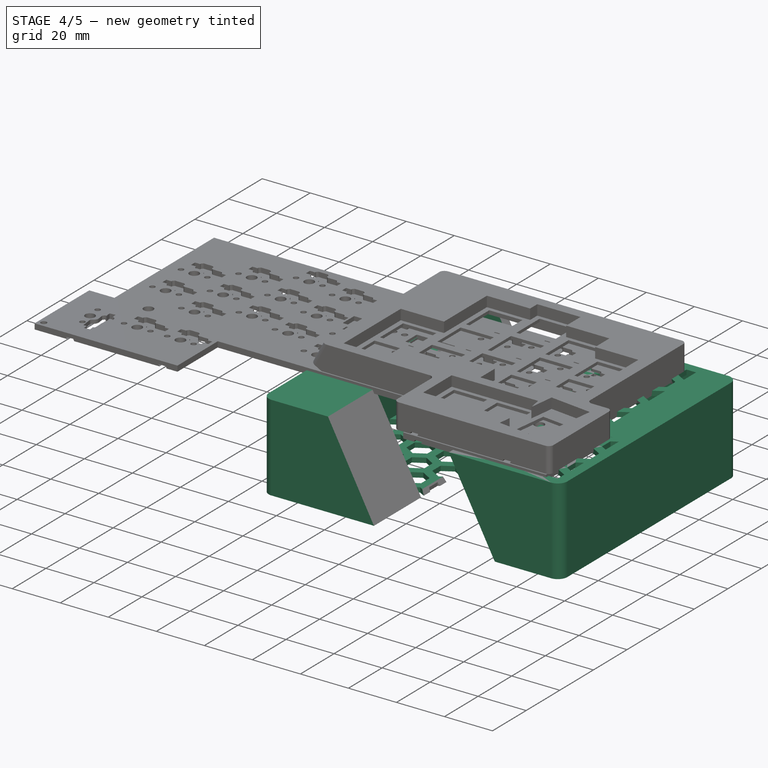
[diagram: stage 4 of 5 — iso view after this stage's code; geometry added in this stage tinted green]
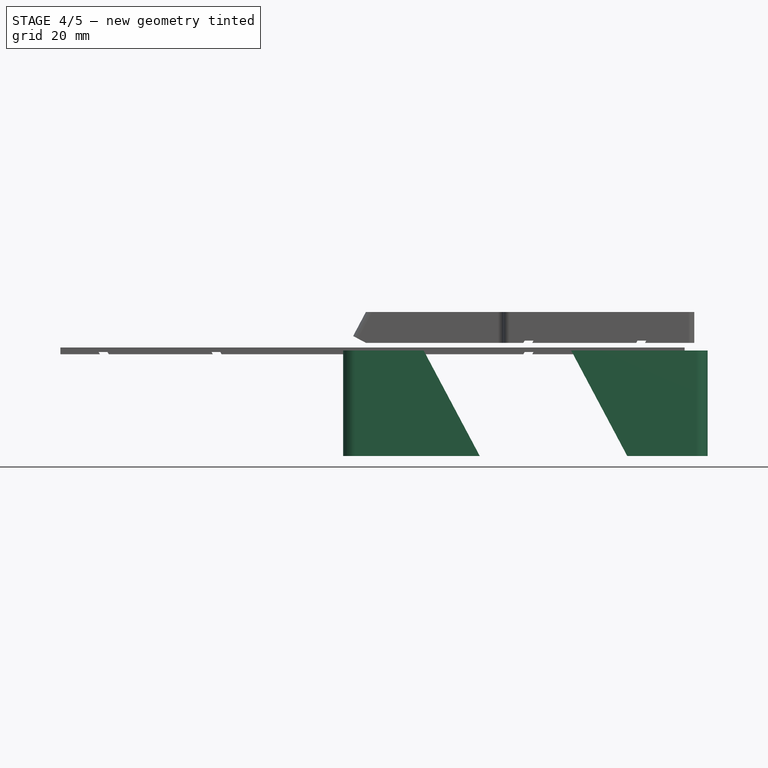
[diagram: stage 4 of 5 — front view after this stage's code; geometry added in this stage tinted green]
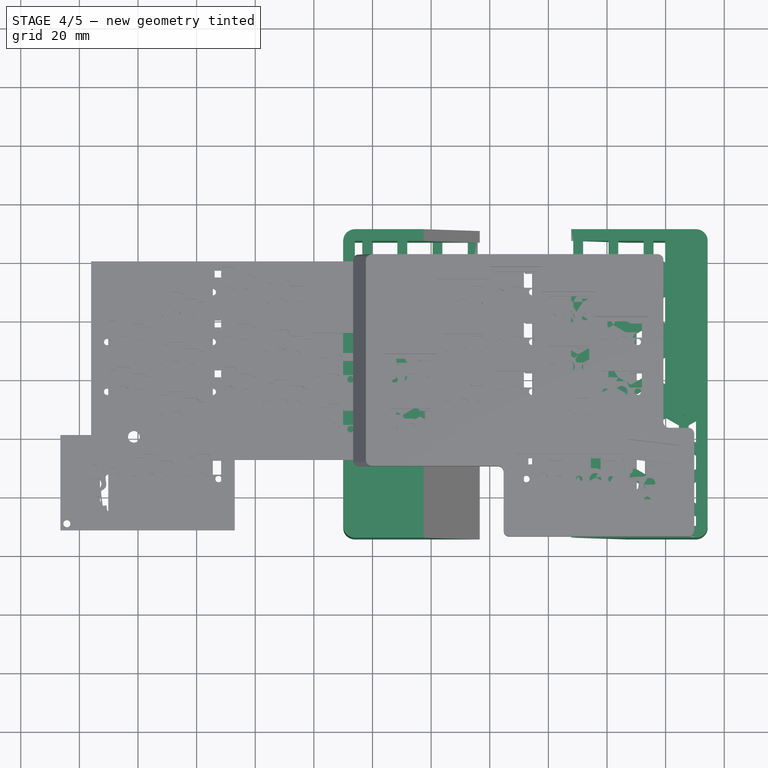
[diagram: stage 4 of 5 — top view after this stage's code; geometry added in this stage tinted green]
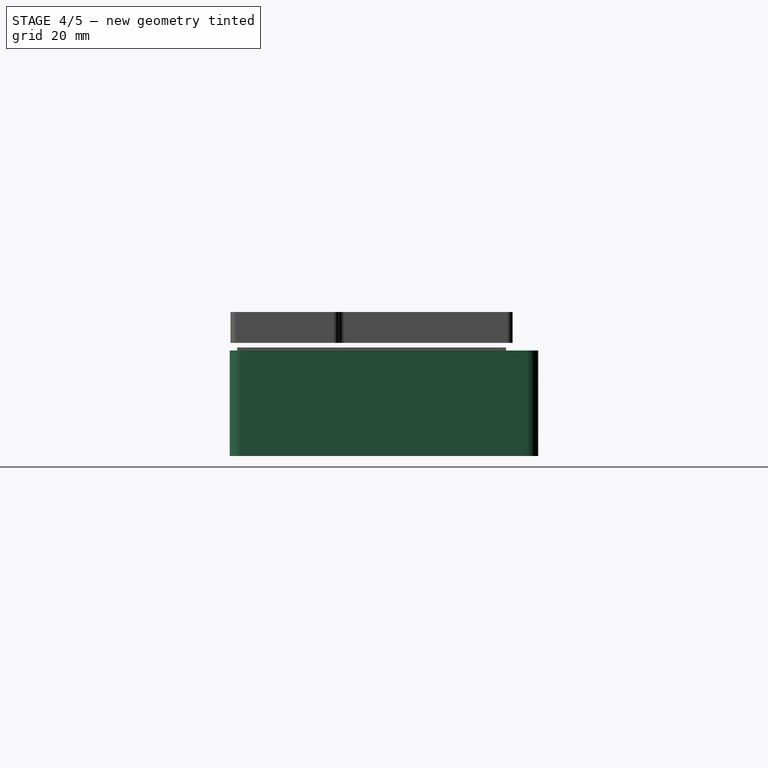
[diagram: stage 4 of 5 — right view after this stage's code; geometry added in this stage tinted green]
FEATURE [PartDesign::SubShapeBinder] Binder003
  BindCopyOnChange = 0
  BindMode = 0
  ClaimChildren = false
  Context = -> Body008 [Boolean002.Body005.Binder003.]
  Fuse = false
  MakeFace = true
  OffsetFill = false
  OffsetIntersection = false
  OffsetJoinType = 0
  OffsetOpenResult = false
  PartialLoad = false
  Placement = pos=(-3.5,4.5,-13.6) rot=(0,0,1;0rad)
  Refine = true
  Relative = true
  Support = -> [Body001[Pad001.Face9]]
  _Version = 2
FEATURE [Sketcher::SketchObject] Sketch012  label="InnerCase"
  ArcFitTolerance = 1e-06
  AttachmentSupport = -> [XY_Plane005]
  FullyConstrained = true
  MakeInternals = false
  MapMode = 5
  expr: .Constraints.height = <<PcbS>>.Constraints.total_height + 4.5 mm + 1 mm
  expr: .Constraints.width = <<PcbS>>.Constraints.total_width + 4.5 mm + 1 mm + 4.35 mm
  sketch-geometry (4):
    g0: LineSegment StartX=0 StartY=0 StartZ=0 EndX=0 EndY=-97.25 EndZ=0
    g1: LineSegment StartX=0 StartY=-97.25 StartZ=0 EndX=116.35 EndY=-97.25 EndZ=0
    g2: LineSegment StartX=116.35 StartY=-97.25 StartZ=0 EndX=116.35 EndY=0 EndZ=0
    g3: LineSegment StartX=116.35 StartY=0 StartZ=0 EndX=0 EndY=0 EndZ=0
  constraints (11):
    c: Coincident(g0,g1)
    c: Coincident(g1,g2)
    c: Coincident(g2,g3)
    c: Coincident(g3,g0)
    c: Vertical(g0)
    c: Vertical(g2)
    c: Horizontal(g1)
    c: Horizontal(g3)
    c: DistanceX(g3,g3) = 116.35  'width'
    c: DistanceY(g2,g2) = 97.25  'height'
    c: Coincident(g-1,g0)
FEATURE [PartDesign::Pad] Pad008
  Direction = (0,0,1)
  Length = 36
  Length2 = 10
  Profile = -> Sketch012
  ReferenceAxis = -> Sketch012 [N_Axis]
  Refine = true
  Suppressed = false
  Type = 0
  expr: Length = <<CaseSideView>>.Constraints.case_height
FEATURE [PartDesign::Thickness] Thickness
  Base = -> Pad008 [Face6,Face5]
  BaseFeature = -> Pad008
  Intersection = false
  Join = 1
  Mode = 0
  Refine = true
  SupportTransform = false
  Suppressed = false
  Value = 4
FEATURE [PartDesign::Fillet] Fillet
  Base = -> Thickness [Edge18,Edge17,Edge24,Edge23]
  BaseFeature = -> Thickness
  Radius = 4
  Refine = true
  SupportTransform = false
  Suppressed = false
  UseAllEdges = false
FEATURE [PartDesign::Body] Body005  label="CaseWalls"
  AllowCompound = false
  Group = -> [Sketch012,Pad008,Thickness,Fillet]
  Origin = -> Origin005
  Placement = pos=(-6,7,-37) rot=(0,0,1;0rad)
  Tip = -> Fillet
FEATURE [Sketcher::SketchObject] Sketch013
  ArcFitTolerance = 1e-06
  AttachmentSupport = -> [XY_Plane006]
  FullyConstrained = true
  MakeInternals = false
  MapMode = 5
  expr: Constraints[8] = Sketch012.Constraints.width
  expr: Constraints[9] = Sketch012.Constraints.height
  sketch-geometry (4):
    g0: LineSegment StartX=0 StartY=0 StartZ=0 EndX=0 EndY=-97.25 EndZ=0
    g1: LineSegment StartX=0 StartY=-97.25 StartZ=0 EndX=116.35 EndY=-97.25 EndZ=0
    g2: LineSegment StartX=116.35 StartY=-97.25 StartZ=0 EndX=116.35 EndY=0 EndZ=0
    g3: LineSegment StartX=116.35 StartY=0 StartZ=0 EndX=0 EndY=0 EndZ=0
  constraints (11):
    c: Coincident(g0,g1)
    c: Coincident(g1,g2)
    c: Coincident(g2,g3)
    c: Coincident(g3,g0)
    c: Vertical(g0)
    c: Vertical(g2)
    c: Horizontal(g1)
    c: Horizontal(g3)
    c: DistanceX(g3,g3) = 116.35
    c: DistanceY(g2,g2) = 97.25
    c: Coincident(g-1,g0)
FEATURE [PartDesign::Pad] Pad009
  Direction = (0,0,1)
  Length = 2
  Length2 = 10
  Profile = -> Sketch013
  ReferenceAxis = -> Sketch013 [N_Axis]
  Refine = true
  Suppressed = false
  Type = 0
FEATURE [Sketcher::SketchObject] Sketch014
  ArcFitTolerance = 1e-06
  AttachmentSupport = -> [Pad009]
  ExternalGeometry = -> [Pad009]
  FullyConstrained = true
  MakeInternals = false
  MapMode = 5
  Placement = pos=(0,0,2) rot=(0,0,1;0rad)
  sketch-geometry (10):
    g0: LineSegment StartX=58.175 StartY=2.5 StartZ=0 EndX=53.8449 EndY=0 EndZ=0
    g1: LineSegment StartX=53.8449 StartY=0 StartZ=0 EndX=53.8449 EndY=-5 EndZ=0
    g2: LineSegment StartX=53.8449 StartY=-5 StartZ=0 EndX=58.175 EndY=-7.5 EndZ=0
    g3: LineSegment StartX=58.175 StartY=-7.5 StartZ=0 EndX=62.5051 EndY=-5 EndZ=0
    g4: LineSegment StartX=62.5051 StartY=-5 StartZ=0 EndX=62.5051 EndY=0 EndZ=0
    g5: LineSegment StartX=62.5051 StartY=2e-16 StartZ=0 EndX=58.175 EndY=2.5 EndZ=0
    g6: Circle [constr] CenterX=58.175 CenterY=-2.5 CenterZ=0 NormalX=0 NormalY=0 NormalZ=1 AngleXU=0 Radius=5
    g7: LineSegment [constr] StartX=58.175 StartY=-2.5 StartZ=0 EndX=60.3401 EndY=-6.25 EndZ=0
    g8: LineSegment [constr] StartX=0 StartY=0 StartZ=0 EndX=53.8449 EndY=0 EndZ=0
    g9: LineSegment [constr] StartX=62.5051 StartY=2e-16 StartZ=0 EndX=116.35 EndY=0 EndZ=0
  constraints (24):
    c: Coincident(g0,g1)
    c: Coincident(g1,g2)
    c: Coincident(g2,g3)
    c: Coincident(g3,g4)
    c: Coincident(g4,g5)
    c: Coincident(g5,g0)
    c: Equal(g0, g1-g5) x5
    c: PointOnObject(g0,g6)
    c: PointOnObject(g1,g6)
    c: PointOnObject(g2,g6)
    c: PointOnObject(g3,g6)
    c: PointOnObject(g4,g6)
    c: PointOnObject(g5,g6)
    c: Vertical(g4)
    c: DistanceY(g4,g4) = 5
    c: DistanceY(g4,g4) = 5
    c: Coincident(g7,g6)
    c: Symmetric(g2,g3,g7)
    c: Coincident(g8,g-1)
    c: Coincident(g8,g0)
    c: Horizontal(g8)
    c: Coincident(g9,g4)
    c: Coincident(g9,g-3)
    c: Equal(g8,g9)
FEATURE [PartDesign::Pocket] Pocket008
  BaseFeature = -> Pad009
  Direction = (0,0,-1)
  Length = 5
  Length2 = 5
  Profile = -> Sketch014
  ReferenceAxis = -> Sketch014 [N_Axis]
  Refine = true
  Suppressed = false
  Type = 1
FEATURE [PartDesign::LinearPattern] LinearPattern
  Direction = -> Sketch014 [Axis]
  Length = 108
  Mode = 1
  Occurrences = 10
  Offset = 12
  Refine = true
  Suppressed = false
  TransformMode = 0
FEATURE [PartDesign::LinearPattern] LinearPattern001
  Direction = -> Sketch014 [H_Axis]
  Length = 60
  Mode = 1
  Occurrences = 6
  Offset = 12
  Refine = true
  Suppressed = false
  TransformMode = 0
FEATURE [PartDesign::LinearPattern] LinearPattern002
  Direction = -> Sketch014 [H_Axis]
  Length = 132
  Mode = 1
  Occurrences = 12
  Offset = 12
  Refine = true
  Reversed = true
  Suppressed = false
  TransformMode = 0
FEATURE [PartDesign::MultiTransform] MultiTransform
  BaseFeature = -> Pocket008
  Originals = -> [Pocket008]
  Refine = true
  Suppressed = false
  TransformMode = 0
  Transformations = -> [LinearPattern,LinearPattern002,LinearPattern001]
FEATURE [Sketcher::SketchObject] Sketch016
  ArcFitTolerance = 1e-06
  AttachmentSupport = -> [Pad010]
  ExternalGeometry = -> [Pad010]
  FullyConstrained = true
  MakeInternals = false
  MapMode = 5
  Placement = pos=(0,0,2) rot=(0,0,1;0rad)
  sketch-geometry (10):
    g0: LineSegment StartX=58.175 StartY=2.5 StartZ=0 EndX=53.8449 EndY=0 EndZ=0
    g1: LineSegment StartX=53.8449 StartY=0 StartZ=0 EndX=53.8449 EndY=-5 EndZ=0
    g2: LineSegment StartX=53.8449 StartY=-5 StartZ=0 EndX=58.175 EndY=-7.5 EndZ=0
    g3: LineSegment StartX=58.175 StartY=-7.5 StartZ=0 EndX=62.5051 EndY=-5 EndZ=0
    g4: LineSegment StartX=62.5051 StartY=-5 StartZ=0 EndX=62.5051 EndY=0 EndZ=0
    g5: LineSegment StartX=62.5051 StartY=4e-16 StartZ=0 EndX=58.175 EndY=2.5 EndZ=0
    g6: Circle [constr] CenterX=58.175 CenterY=-2.5 CenterZ=0 NormalX=0 NormalY=0 NormalZ=1 AngleXU=0 Radius=5
    g7: LineSegment [constr] StartX=58.175 StartY=-2.5 StartZ=0 EndX=60.3401 EndY=-6.25 EndZ=0
    g8: LineSegment [constr] StartX=0 StartY=0 StartZ=0 EndX=53.8449 EndY=0 EndZ=0
    g9: LineSegment [constr] StartX=62.5051 StartY=4e-16 StartZ=0 EndX=116.35 EndY=0 EndZ=0
  constraints (24):
    c: Coincident(g0,g1)
    c: Coincident(g1,g2)
    c: Coincident(g2,g3)
    c: Coincident(g3,g4)
    c: Coincident(g4,g5)
    c: Coincident(g5,g0)
    c: Equal(g0, g1-g5) x5
    c: PointOnObject(g0,g6)
    c: PointOnObject(g1,g6)
    c: PointOnObject(g2,g6)
    c: PointOnObject(g3,g6)
    c: PointOnObject(g4,g6)
    c: PointOnObject(g5,g6)
    c: Vertical(g4)
    c: DistanceY(g4,g4) = 5
    c: DistanceY(g4,g4) = 5
    c: Coincident(g7,g6)
    c: Symmetric(g2,g3,g7)
    c: Coincident(g8,g-1)
    c: Coincident(g8,g0)
    c: Horizontal(g8)
    c: Coincident(g9,g4)
    c: Coincident(g9,g-3)
    c: Equal(g8,g9)
FEATURE [PartDesign::LinearPattern] LinearPattern003
  Direction = -> Sketch016 [Axis]
  Length = 108
  Mode = 1
  Occurrences = 10
  Offset = 12
  Refine = true
  Suppressed = false
  TransformMode = 0
FEATURE [PartDesign::LinearPattern] LinearPattern004
  Direction = -> Sketch016 [H_Axis]
  Length = 60
  Mode = 1
  Occurrences = 6
  Offset = 12
  Refine = true
  Suppressed = false
  TransformMode = 0
FEATURE [PartDesign::LinearPattern] LinearPattern005
  Direction = -> Sketch016 [H_Axis]
  Length = 132
  Mode = 1
  Occurrences = 12
  Offset = 12
  Refine = true
  Reversed = true
  Suppressed = false
  TransformMode = 0
FEATURE [PartDesign::Pocket] Pocket009
  BaseFeature = -> Pad010
  Direction = (0,0,-1)
  Length = 5
  Length2 = 5
  Profile = -> Sketch016
  ReferenceAxis = -> Sketch016 [N_Axis]
  Refine = true
  Suppressed = false
  Type = 1
FEATURE [PartDesign::MultiTransform] MultiTransform001
  BaseFeature = -> Pocket009
  Originals = -> [Pocket009]
  Refine = true
  Suppressed = false
  TransformMode = 0
  Transformations = -> [LinearPattern003,LinearPattern005,LinearPattern004]
FEATURE [PartDesign::Body] Body007  label="Hex001"
  AllowCompound = false
  Group = -> [Sketch015,Pad010,Sketch016,Pocket009,MultiTransform001,LinearPattern003,LinearPattern004,LinearPattern005]
  Origin = -> Origin007
  Placement = pos=(-6,7,-37) rot=(0,0,1;0rad)
  Tip = -> MultiTransform001
FEATURE [PartDesign::Boolean] Boolean002
  Group = -> [Body007,Body005,Body006]
  Refine = true
  Suppressed = false
  Type = 0
  UsePlacement = true
FEATURE [Sketcher::SketchObject] Sketch018
  ArcFitTolerance = 1e-06
  AttachmentSupport = -> [Boolean002]
  ExternalGeometry = -> [Boolean002]
  FullyConstrained = true
  MakeInternals = false
  MapMode = 5
  Placement = pos=(0,0,-1) rot=(0,0,1;0rad)
  sketch-geometry (6):
    g0: LineSegment StartX=-6 StartY=-66.25 StartZ=0 EndX=-6 EndY=-90.25 EndZ=0
    g1: LineSegment StartX=-6 StartY=-90.25 StartZ=0 EndX=41 EndY=-90.25 EndZ=0
    g2: LineSegment StartX=41 StartY=-90.25 StartZ=0 EndX=41 EndY=-68.25 EndZ=0
    g3: LineSegment StartX=39 StartY=-66.25 StartZ=0 EndX=-6 EndY=-66.25 EndZ=0
    g4: ArcOfCircle CenterX=39 CenterY=-68.25 CenterZ=0 NormalX=0 NormalY=0 NormalZ=1 AngleXU=0 Radius=2 StartAngle=1.64241e-11 EndAngle=1.5708
    g5: GeomPoint [constr] X=41 Y=-66.25 Z=0
  constraints (15):
    c: Coincident(g0,g1)
    c: Coincident(g1,g2)
    c: Coincident(g3,g0)
    c: Vertical(g0)
    c: Vertical(g2)
    c: Horizontal(g1)
    c: Horizontal(g3)
    c: Coincident(g-3,g0)
    c: DistanceX(g1,g1) = 47
    c: DistanceY(g0,g0) = 24
    c: PointOnObject(g5,g3)
    c: PointOnObject(g5,g2)
    c: Tangent(g3,g4) = -1.5708
    c: Tangent(g2,g4) = -1.5708
    c: Radius(g4) = 2
FEATURE [PartDesign::Pad] Pad011  label="bigpad"
  BaseFeature = -> Boolean002
  Direction = (0,0,1)
  Length = 36
  Length2 = 10
  Profile = -> Sketch018
  ReferenceAxis = -> Sketch018 [N_Axis]
  Refine = true
  Reversed = true
  Suppressed = false
  Type = 0
  expr: Length = <<CaseSideView>>.Constraints.case_height
FEATURE [Sketcher::SketchObject] Sketch019
  ArcFitTolerance = 1e-06
  AttachmentSupport = -> [Boolean002]
  ExternalGeometry = -> [Boolean002]
  FullyConstrained = true
  MakeInternals = false
  MapMode = 5
  Placement = pos=(0,0,-1) rot=(0,0,1;0rad)
  sketch-geometry (6):
    g0: LineSegment StartX=110.35 StartY=-52.25 StartZ=0 EndX=110.35 EndY=7 EndZ=0
    g1: LineSegment StartX=110.35 StartY=7 StartZ=0 EndX=99.85 EndY=7 EndZ=0
    g2: LineSegment StartX=99.85 StartY=7 StartZ=0 EndX=99.85 EndY=-50.25 EndZ=0
    g3: LineSegment StartX=101.85 StartY=-52.25 StartZ=0 EndX=110.35 EndY=-52.25 EndZ=0
    g4: ArcOfCircle CenterX=101.85 CenterY=-50.25 CenterZ=0 NormalX=0 NormalY=0 NormalZ=1 AngleXU=0 Radius=2 StartAngle=3.14159 EndAngle=4.71239
    g5: GeomPoint [constr] X=99.85 Y=-52.25 Z=0
  constraints (15):
    c: Coincident(g0,g1)
    c: Vertical(g0)
    c: Horizontal(g1)
    c: Coincident(g1,g2)
    c: Vertical(g2)
    c: Coincident(g3,g0)
    c: Horizontal(g3)
    c: DistanceX(g1,g1) = 10.5
    c: DistanceY(g0,g0) = 59.25
    c: PointOnObject(g5,g2)
    c: PointOnObject(g5,g3)
    c: Tangent(g2,g4) = -1.5708
    c: Tangent(g3,g4) = -1.5708
    c: Radius(g4) = 2
    c: Coincident(g-3,g0)
FEATURE [PartDesign::Pad] Pad012  label="longpad"
  BaseFeature = -> Pad011
  Direction = (0,0,1)
  Length = 36
  Length2 = 10
  Profile = -> Sketch019
  ReferenceAxis = -> Sketch019 [N_Axis]
  Refine = true
  Reversed = true
  Suppressed = false
  Type = 0
  expr: Length = <<CaseSideView>>.Constraints.case_height
FEATURE [PartDesign::Body] Body009  label="Body"
  AllowCompound = false
  Group = -> [CopyPad012,Sketch021,Pad013]
  Origin = -> Origin009
  Tip = -> Pad013
FEATURE [PartDesign::Boolean] Boolean003  label="GapBool"
  BaseFeature = -> Pad012
  Group = -> [Body009]
  Refine = true
  Suppressed = false
  Type = 1
  UsePlacement = true
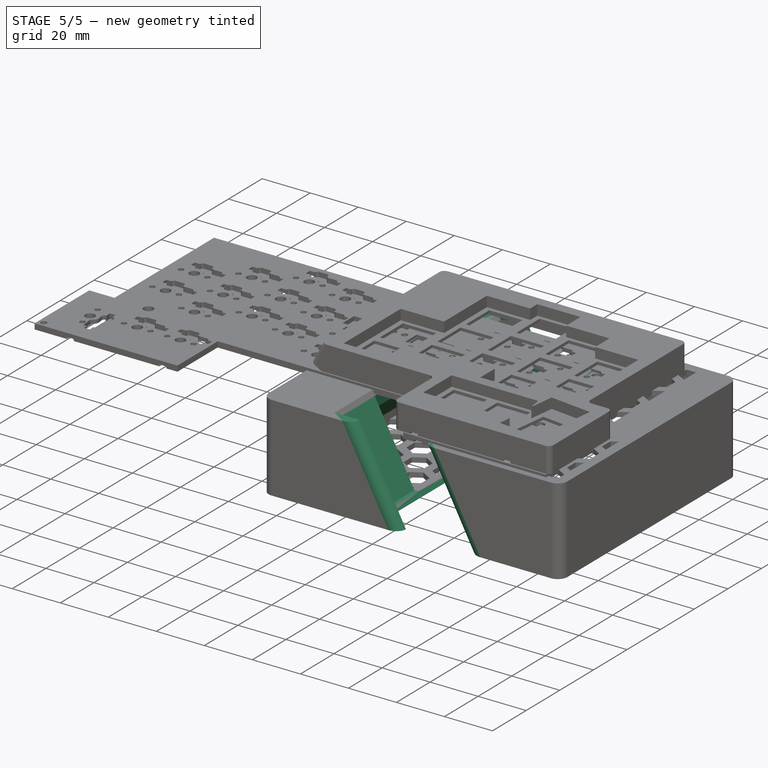
[diagram: stage 5 of 5 — iso view after this stage's code; geometry added in this stage tinted green]
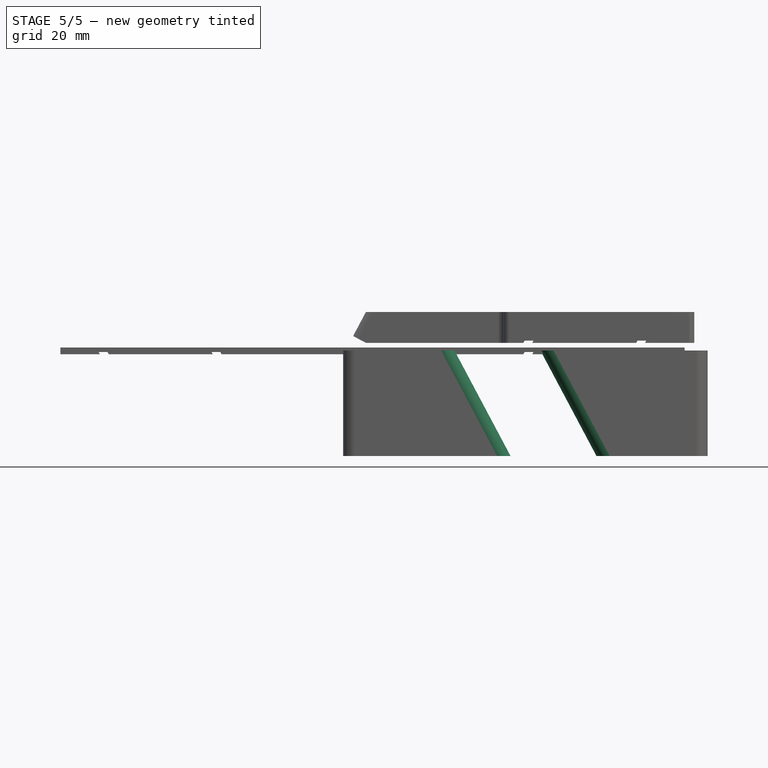
[diagram: stage 5 of 5 — front view after this stage's code; geometry added in this stage tinted green]
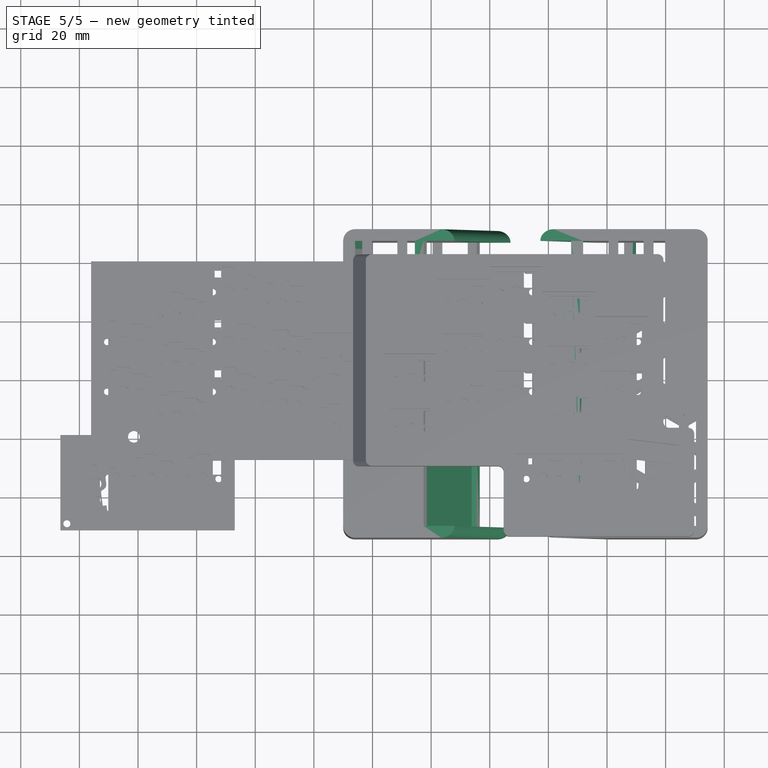
[diagram: stage 5 of 5 — top view after this stage's code; geometry added in this stage tinted green]
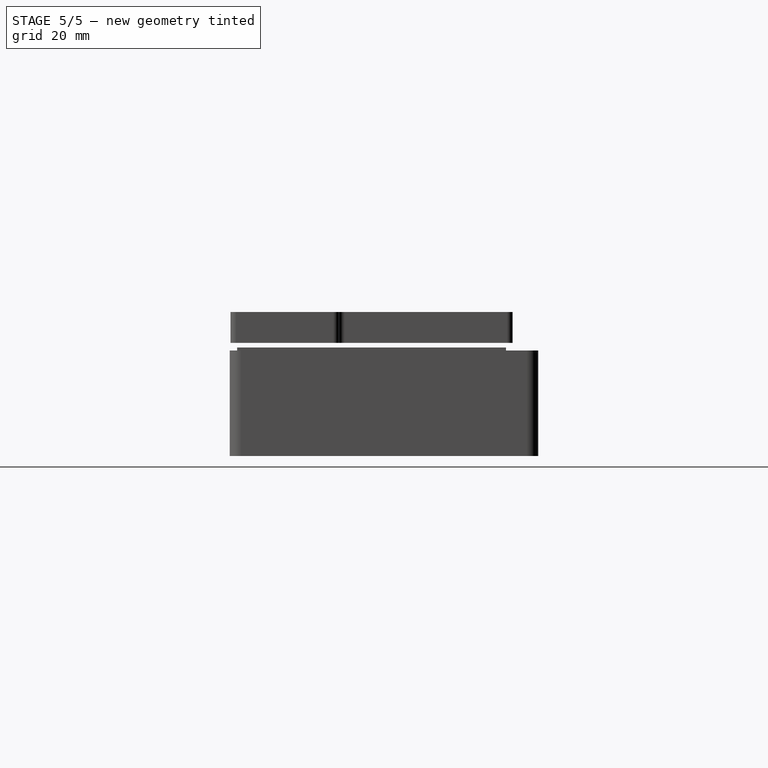
[diagram: stage 5 of 5 — right view after this stage's code; geometry added in this stage tinted green]
FEATURE [Sketcher::SketchObject] Sketch022
  ArcFitTolerance = 1e-06
  AttachmentSupport = -> [Boolean003]
  ExternalGeometry = -> [Boolean003]
  FullyConstrained = true
  MakeInternals = false
  MapMode = 5
  Placement = pos=(13.1858,1.5e-15,7.01101) rot=(0.457877,0.457877,0.762035;1.83927rad)
  sketch-geometry (8):
    g0: LineSegment StartX=-94.25 StartY=-9.07303 StartZ=0 EndX=-94.25 EndY=-49.8456 EndZ=0
    g1: LineSegment StartX=-94.25 StartY=-49.8456 StartZ=0 EndX=11 EndY=-49.8456 EndZ=0
    g2: LineSegment StartX=11 StartY=-49.8456 StartZ=0 EndX=11 EndY=-9.07303 EndZ=0
    g3: LineSegment StartX=11 StartY=-9.07303 StartZ=0 EndX=-94.25 EndY=-9.07303 EndZ=0
    g4: LineSegment StartX=-90.25 StartY=-47.5756 StartZ=0 EndX=7 EndY=-47.5756 EndZ=0
    g5: LineSegment StartX=7 StartY=-47.5756 StartZ=0 EndX=7 EndY=-11.343 EndZ=0
    g6: LineSegment StartX=7 StartY=-11.343 StartZ=0 EndX=-90.25 EndY=-11.343 EndZ=0
    g7: LineSegment StartX=-90.25 StartY=-11.343 StartZ=0 EndX=-90.25 EndY=-47.5756 EndZ=0
  constraints (21):
    c: Coincident(g1,g2)
    c: Coincident(g2,g3)
    c: Coincident(g3,g0)
    c: Coincident(g4,g5)
    c: Coincident(g5,g6)
    c: Coincident(g6,g7)
    c: Coincident(g7,g4)
    c: Horizontal(g4)
    c: Horizontal(g6)
    c: Vertical(g5)
    c: Vertical(g7)
    c: Coincident(g0,g1)
    c: DistanceY(g6,g0) = 2.27
    c: DistanceY(g0,g4) = 2.27
    c: DistanceX(g5,g2) = 4
    c: DistanceX(g0,g6) = 4
    c: Vertical(g0)
    c: Coincident(g2,g-3)
    c: Coincident(g1,g-3)
    c: Coincident(g0,g-4)
    c: Horizontal(g3)
FEATURE [PartDesign::Pad] Pad014
  AlongSketchNormal = false
  BaseFeature = -> Boolean003
  Direction = (1,0,0)
  Length = 3
  Length2 = 10
  Profile = -> Sketch022
  ReferenceAxis = -> Sketch022 [N_Axis]
  Refine = true
  Reversed = true
  Suppressed = false
  Type = 0
  UseCustomVector = true
FEATURE [Sketcher::SketchObject] Sketch023
  ArcFitTolerance = 1e-06
  AttachmentSupport = -> [Boolean003]
  ExternalGeometry = -> [Pad014]
  FullyConstrained = true
  MakeInternals = false
  MapMode = 5
  Placement = pos=(52.4134,5.9e-15,27.8687) rot=(0.650802,-0.650802,-0.391041;2.39607rad)
  sketch-geometry (8):
    g0: LineSegment StartX=-11 StartY=-32.6958 StartZ=0 EndX=-11 EndY=-73.4683 EndZ=0
    g1: LineSegment StartX=-11 StartY=-73.4683 StartZ=0 EndX=94.25 EndY=-73.4683 EndZ=0
    g2: LineSegment StartX=94.25 StartY=-73.4683 StartZ=0 EndX=94.25 EndY=-32.6958 EndZ=0
    g3: LineSegment StartX=94.25 StartY=-32.6958 StartZ=0 EndX=-11 EndY=-32.6958 EndZ=0
    g4: LineSegment StartX=-7 StartY=-34.9658 StartZ=0 EndX=-7 EndY=-71.1983 EndZ=0
    g5: LineSegment StartX=-7 StartY=-71.1983 StartZ=0 EndX=90.25 EndY=-71.1983 EndZ=0
    g6: LineSegment StartX=90.25 StartY=-71.1983 StartZ=0 EndX=90.25 EndY=-34.9658 EndZ=0
    g7: LineSegment StartX=90.25 StartY=-34.9658 StartZ=0 EndX=-7 EndY=-34.9658 EndZ=0
  constraints (22):
    c: Coincident(g0,g1)
    c: Coincident(g1,g2)
    c: Coincident(g2,g3)
    c: Coincident(g3,g0)
    c: Vertical(g2)
    c: Coincident(g4,g5)
    c: Coincident(g5,g6)
    c: Coincident(g6,g7)
    c: Coincident(g7,g4)
    c: Vertical(g4)
    c: Vertical(g6)
    c: Horizontal(g5)
    c: Horizontal(g7)
    c: DistanceY(g4,g0) = 2.27
    c: DistanceX(g0,g4) = 4
    c: DistanceY(g0,g4) = 2.27
    c: DistanceX(g5,g1) = 4
    c: Horizontal(g1)
    c: Horizontal(g3)
    c: Coincident(g0,g-3)
    c: Vertical(g0)
    c: Coincident(g2,g-4)
FEATURE [PartDesign::Pad] Pad015
  AlongSketchNormal = false
  BaseFeature = -> Pad014
  Direction = (-1,0,0)
  Length = 3
  Length2 = 10
  Profile = -> Sketch023
  ReferenceAxis = -> Sketch023 [N_Axis]
  Refine = true
  Reversed = true
  Suppressed = false
  Type = 0
  UseCustomVector = true
FEATURE [Sketcher::SketchObject] Sketch024  label="CaseSlides"
  ArcFitTolerance = 1e-06
  AttachmentSupport = -> [Pocket006]
  FullyConstrained = true
  MakeInternals = false
  MapMode = 5
  Placement = pos=(0,0,-2.3) rot=(1,0,0;3.14159rad)
  expr: Constraints[22] = <<CaseSideView>>.Constraints.slit_outer
  expr: Constraints[23] = <<CaseSideView>>.Constraints.slip_offset - 2.25 mm
  expr: Constraints[9] = <<CaseSideView>>.Constraints.slide_width
  sketch-geometry (8):
    g0: LineSegment StartX=51.4926 StartY=91.75 StartZ=0 EndX=51.4926 EndY=0 EndZ=0
    g1: LineSegment StartX=51.4926 StartY=0 StartZ=0 EndX=54.4926 EndY=0 EndZ=0
    g2: LineSegment StartX=54.4926 StartY=0 StartZ=0 EndX=54.4926 EndY=91.75 EndZ=0
    g3: LineSegment StartX=54.4926 StartY=91.75 StartZ=0 EndX=51.4926 EndY=91.75 EndZ=0
    g4: LineSegment StartX=93 StartY=91.75 StartZ=0 EndX=93 EndY=0 EndZ=0
    g5: LineSegment StartX=93 StartY=0 StartZ=0 EndX=90 EndY=0 EndZ=0
    g6: LineSegment StartX=90 StartY=0 StartZ=0 EndX=90 EndY=91.75 EndZ=0
    g7: LineSegment StartX=90 StartY=91.75 StartZ=0 EndX=93 EndY=91.75 EndZ=0
  constraints (24):
    c: Coincident(g0,g1)
    c: Coincident(g1,g2)
    c: Coincident(g2,g3)
    c: Coincident(g3,g0)
    c: Vertical(g0)
    c: Vertical(g2)
    c: Horizontal(g1)
    c: Horizontal(g3)
    c: PointOnObject(g1,g-1)
    c: DistanceX(g1,g1) = 3
    c: Coincident(g4,g5)
    c: Coincident(g5,g6)
    c: Coincident(g6,g7)
    c: Coincident(g7,g4)
    c: Vertical(g4)
    c: Vertical(g6)
    c: Horizontal(g5)
    c: Horizontal(g7)
    c: PointOnObject(g5,g-1)
    c: Equal(g1,g5)
    c: PointOnObject(g6,g-3)
    c: PointOnObject(g2,g-3)
    c: DistanceX(g0,g4) = 41.5074
    c: DistanceX(g4,g-3) = 13.5
FEATURE [Sketcher::SketchObject] Sketch029
  ArcFitTolerance = 1e-06
  AttachmentSupport = -> [Boolean003]
  ExternalGeometry = -> [Boolean003]
  FullyConstrained = true
  MakeInternals = false
  MapMode = 5
  Placement = pos=(52.4134,5.9e-15,27.8687) rot=(0.650802,-0.650802,-0.391041;2.39607rad)
  sketch-geometry (8):
    g0: LineSegment StartX=-11 StartY=-32.6958 StartZ=0 EndX=-11 EndY=-73.4683 EndZ=0
    g1: LineSegment StartX=-11 StartY=-73.4683 StartZ=0 EndX=-7 EndY=-73.4683 EndZ=0
    g2: LineSegment StartX=-7 StartY=-73.4683 StartZ=0 EndX=-7 EndY=-32.6958 EndZ=0
    g3: LineSegment StartX=-7 StartY=-32.6958 StartZ=0 EndX=-11 EndY=-32.6958 EndZ=0
    g4: LineSegment StartX=94.25 StartY=-32.6958 StartZ=0 EndX=90.25 EndY=-32.6958 EndZ=0
    g5: LineSegment StartX=90.25 StartY=-32.6958 StartZ=0 EndX=90.25 EndY=-73.4683 EndZ=0
    g6: LineSegment StartX=90.25 StartY=-73.4683 StartZ=0 EndX=94.25 EndY=-73.4683 EndZ=0
    g7: LineSegment StartX=94.25 StartY=-73.4683 StartZ=0 EndX=94.25 EndY=-32.6958 EndZ=0
  constraints (20):
    c: Coincident(g0,g1)
    c: Coincident(g1,g2)
    c: Coincident(g2,g3)
    c: Coincident(g3,g0)
    c: Vertical(g2)
    c: Horizontal(g1)
    c: Horizontal(g3)
    c: Coincident(g4,g5)
    c: Coincident(g5,g6)
    c: Coincident(g6,g7)
    c: Coincident(g7,g4)
    c: Horizontal(g4)
    c: Horizontal(g6)
    c: Vertical(g5)
    c: DistanceX(g3,g3) = 4
    c: Equal(g3,g4)
    c: Coincident(g4,g-3)
    c: Coincident(g6,g-4)
    c: Coincident(g0,g-5)
    c: Coincident(g0,g-6)
FEATURE [PartDesign::Pad] Pad016
  AlongSketchNormal = false
  BaseFeature = -> Pad015
  Direction = (-1,0,0)
  Length = 10.5
  Length2 = 10
  Profile = -> Sketch029
  ReferenceAxis = -> Sketch029 [N_Axis]
  Refine = true
  Suppressed = false
  Type = 0
  UseCustomVector = true
FEATURE [Sketcher::SketchObject] Sketch030
  ArcFitTolerance = 1e-06
  AttachmentSupport = -> [Boolean003]
  ExternalGeometry = -> [Boolean003]
  FullyConstrained = true
  MakeInternals = false
  MapMode = 5
  Placement = pos=(13.1858,1.5e-15,7.01101) rot=(0.457877,0.457877,0.762035;1.83927rad)
  sketch-geometry (8):
    g0: LineSegment StartX=-94.25 StartY=-9.07303 StartZ=0 EndX=-94.25 EndY=-49.8456 EndZ=0
    g1: LineSegment StartX=-94.25 StartY=-49.8456 StartZ=0 EndX=-90.25 EndY=-49.8456 EndZ=0
    g2: LineSegment StartX=-90.25 StartY=-49.8456 StartZ=0 EndX=-90.25 EndY=-9.07303 EndZ=0
    g3: LineSegment StartX=-90.25 StartY=-9.07303 StartZ=0 EndX=-94.25 EndY=-9.07303 EndZ=0
    g4: LineSegment StartX=11 StartY=-9.07303 StartZ=0 EndX=11 EndY=-49.8456 EndZ=0
    g5: LineSegment StartX=11 StartY=-49.8456 StartZ=0 EndX=7 EndY=-49.8456 EndZ=0
    g6: LineSegment StartX=7 StartY=-49.8456 StartZ=0 EndX=7 EndY=-9.07303 EndZ=0
    g7: LineSegment StartX=7 StartY=-9.07303 StartZ=0 EndX=11 EndY=-9.07303 EndZ=0
  constraints (21):
    c: Coincident(g0,g1)
    c: Coincident(g1,g2)
    c: Coincident(g2,g3)
    c: Coincident(g3,g0)
    c: Vertical(g2)
    c: Horizontal(g1)
    c: Horizontal(g3)
    c: Coincident(g4,g5)
    c: Coincident(g5,g6)
    c: Coincident(g6,g7)
    c: Coincident(g7,g4)
    c: Vertical(g4)
    c: Vertical(g6)
    c: Horizontal(g5)
    c: Horizontal(g7)
    c: DistanceX(g3,g3) = 4
    c: PointOnObject(g2,g7)
    c: Equal(g7,g3)
    c: Coincident(g0,g-4)
    c: Coincident(g0,g-3)
    c: Coincident(g4,g-5)
FEATURE [PartDesign::Pad] Pad017
  AlongSketchNormal = false
  BaseFeature = -> Pad016
  Direction = (1,0,0)
  Length = 10.5
  Length2 = 10
  Profile = -> Sketch030
  ReferenceAxis = -> Sketch030 [N_Axis]
  Refine = true
  Suppressed = false
  Type = 0
  UseCustomVector = true
FEATURE [Sketcher::SketchObject] Sketch031
  ArcFitTolerance = 1e-06
  AttachmentSupport = -> [Boolean003]
  ExternalGeometry = -> [Boolean003]
  FullyConstrained = true
  MakeInternals = false
  MapMode = 5
  Placement = pos=(13.1858,1.5e-15,7.01101) rot=(0.457877,0.457877,0.762035;1.83927rad)
  sketch-geometry (4):
    g0: LineSegment StartX=-90.25 StartY=-47.5804 StartZ=0 EndX=-66.25 EndY=-47.5804 EndZ=0
    g1: LineSegment StartX=-66.25 StartY=-47.5804 StartZ=0 EndX=-66.25 EndY=-11.3382 EndZ=0
    g2: LineSegment StartX=-66.25 StartY=-11.3382 StartZ=0 EndX=-90.25 EndY=-11.3382 EndZ=0
    g3: LineSegment StartX=-90.25 StartY=-11.3382 StartZ=0 EndX=-90.25 EndY=-47.5804 EndZ=0
  constraints (12):
    c: Coincident(g0,g1)
    c: Coincident(g1,g2)
    c: Coincident(g2,g3)
    c: Coincident(g3,g0)
    c: Horizontal(g0)
    c: Horizontal(g2)
    c: Vertical(g3)
    c: Vertical(g1)
    c: DistanceX(g-3,g0) = 4
    c: PointOnObject(g1,g-5)
    c: PointOnObject(g1,g-4)
    c: PointOnObject(g0,g-6)
FEATURE [PartDesign::Pocket] Pocket013
  BaseFeature = -> Pad017
  Direction = (-1,0,0)
  Length = 1.5
  Length2 = 5
  Profile = -> Sketch031
  ReferenceAxis = -> Sketch031 [N_Axis]
  Refine = true
  Suppressed = false
  Type = 0
  UseCustomVector = true
FEATURE [PartDesign::Fillet] Fillet002
  Base = -> Pocket013 [Edge992,Edge366,Edge1755,Edge369]
  BaseFeature = -> Pocket013
  Radius = 3.99
  Refine = true
  SupportTransform = false
  Suppressed = false
  UseAllEdges = false
FEATURE [Sketcher::SketchObject] Sketch060  label="BackMagnet"
  ArcFitTolerance = 1e-06
  AttachmentSupport = -> [Boolean003]
  ExternalGeometry = -> [Boolean003]
  FullyConstrained = true
  MakeInternals = false
  MapMode = 5
  Placement = pos=(99.85,0,0) rot=(0.57735,-0.57735,-0.57735;2.0944rad)
  expr: .Constraints.magnet_height = 10.5 mm / 2 mm + 2
  expr: Constraints[6] = .Constraints.magnet_height
  sketch-geometry (12):
    g0: LineSegment [constr] StartX=5.625 StartY=-8.25 StartZ=0 EndX=-7 EndY=-8.25 EndZ=0
    g1: LineSegment [constr] StartX=5.625 StartY=-29.75 StartZ=0 EndX=-7 EndY=-29.75 EndZ=0
    g2: LineSegment StartX=-4.5 StartY=-12.375 StartZ=0 EndX=15.75 EndY=-12.375 EndZ=0
    g3: LineSegment StartX=15.75 StartY=-12.375 StartZ=0 EndX=15.75 EndY=-4.125 EndZ=0
    g4: LineSegment StartX=15.75 StartY=-4.125 StartZ=0 EndX=-4.5 EndY=-4.125 EndZ=0
    g5: LineSegment StartX=-4.5 StartY=-4.125 StartZ=0 EndX=-4.5 EndY=-12.375 EndZ=0
    g6: GeomPoint [constr] X=5.625 Y=-8.25 Z=0
    g7: LineSegment StartX=-4.5 StartY=-33.875 StartZ=0 EndX=15.75 EndY=-33.875 EndZ=0
    g8: LineSegment StartX=15.75 StartY=-33.875 StartZ=0 EndX=15.75 EndY=-25.625 EndZ=0
    g9: LineSegment StartX=15.75 StartY=-25.625 StartZ=0 EndX=-4.5 EndY=-25.625 EndZ=0
    g10: LineSegment StartX=-4.5 StartY=-25.625 StartZ=0 EndX=-4.5 EndY=-33.875 EndZ=0
    g11: GeomPoint [constr] X=5.625 Y=-29.75 Z=0
  constraints (32):
    c: PointOnObject(g0,g-3)
    c: Horizontal(g0)
    c: PointOnObject(g1,g-3)
    c: Horizontal(g1)
    c: Equal(g1,g0)
    c: DistanceY(g0,g-3) = 7.25  'magnet_height'
    c: DistanceY(g-3,g1) = 7.25
    c: Coincident(g2,g3)
    c: Coincident(g3,g4)
    c: Coincident(g4,g5)
    c: Coincident(g5,g2)
    c: Horizontal(g2)
    c: Horizontal(g4)
    c: Vertical(g3)
    c: Vertical(g5)
    c: Symmetric(g4,g2,g6)
    c: DistanceX(g2,g2) = 20.25
    c: DistanceY(g5,g5) = 8.25
    c: Coincident(g0,g6)
    c: DistanceX(g0,g4) = 2.5
    c: Coincident(g7,g8)
    c: Coincident(g8,g9)
    c: Coincident(g9,g10)
    c: Coincident(g10,g7)
    c: Horizontal(g7)
    c: Horizontal(g9)
    c: Vertical(g8)
    c: Vertical(g10)
    c: Symmetric(g9,g7,g11)
    c: Coincident(g11,g1)
    c: Equal(g9,g2)
    c: Equal(g3,g8)
FEATURE [PartDesign::Pocket] Pocket034  label="BackMagnet1"
  BaseFeature = -> Fillet002
  Direction = (1,0,0)
  Length = 1.5
  Length2 = 5
  Profile = -> Sketch060
  ReferenceAxis = -> Sketch060 [N_Axis]
  Refine = true
  Suppressed = false
  Type = 0
FEATURE [Sketcher::SketchObject] Sketch061
  ArcFitTolerance = 1e-06
  AttachmentSupport = -> [Boolean003]
  ExternalGeometry = -> [Boolean003]
  FullyConstrained = true
  MakeInternals = false
  MapMode = 5
  Placement = pos=(110.35,0,0) rot=(0.57735,-0.57735,-0.57735;2.0944rad)
  expr: Constraints[5] = <<BackMagnet>>.Constraints.magnet_height
  expr: Constraints[6] = <<BackMagnet>>.Constraints.magnet_height
  sketch-geometry (12):
    g0: LineSegment [constr] StartX=64.875 StartY=-8.25 StartZ=0 EndX=90.25 EndY=-8.25 EndZ=0
    g1: LineSegment [constr] StartX=64.875 StartY=-29.75 StartZ=0 EndX=90.25 EndY=-29.75 EndZ=0
    g2: LineSegment StartX=75 StartY=-12.375 StartZ=0 EndX=75 EndY=-4.125 EndZ=0
    g3: LineSegment StartX=75 StartY=-4.125 StartZ=0 EndX=54.75 EndY=-4.125 EndZ=0
    g4: LineSegment StartX=54.75 StartY=-4.125 StartZ=0 EndX=54.75 EndY=-12.375 EndZ=0
    g5: LineSegment StartX=54.75 StartY=-12.375 StartZ=0 EndX=75 EndY=-12.375 EndZ=0
    g6: GeomPoint [constr] X=64.875 Y=-8.25 Z=0
    g7: LineSegment StartX=75 StartY=-33.875 StartZ=0 EndX=75 EndY=-25.625 EndZ=0
    g8: LineSegment StartX=75 StartY=-25.625 StartZ=0 EndX=54.75 EndY=-25.625 EndZ=0
    g9: LineSegment StartX=54.75 StartY=-25.625 StartZ=0 EndX=54.75 EndY=-33.875 EndZ=0
    g10: LineSegment StartX=54.75 StartY=-33.875 StartZ=0 EndX=75 EndY=-33.875 EndZ=0
    g11: GeomPoint [constr] X=64.875 Y=-29.75 Z=0
  constraints (32):
    c: PointOnObject(g0,g-3)
    c: Horizontal(g0)
    c: PointOnObject(g1,g-3)
    c: Horizontal(g1)
    c: Equal(g0,g1)
    c: DistanceY(g0,g-3) = 7.25
    c: DistanceY(g-3,g1) = 7.25
    c: Coincident(g2,g3)
    c: Coincident(g3,g4)
    c: Coincident(g4,g5)
    c: Coincident(g5,g2)
    c: Vertical(g2)
    c: Vertical(g4)
    c: Horizontal(g3)
    c: Horizontal(g5)
    c: Symmetric(g4,g2,g6)
    c: Coincident(g6,g0)
    c: Coincident(g7,g8)
    c: Coincident(g8,g9)
    c: Coincident(g9,g10)
    c: Coincident(g10,g7)
    c: Vertical(g7)
    c: Vertical(g9)
    c: Horizontal(g8)
    c: Horizontal(g10)
    c: Symmetric(g9,g7,g11)
    c: Coincident(g11,g1)
    c: Equal(g8,g5)
    c: DistanceX(g5,g5) = 20.25
    c: DistanceY(g9,g9) = 8.25
    c: Equal(g9,g4)
    c: DistanceX(g-4,g9) = 2.5
FEATURE [PartDesign::Pocket] Pocket035
  BaseFeature = -> Pocket034
  Direction = (1,0,0)
  Length = 1.5
  Length2 = 5
  Profile = -> Sketch061
  ReferenceAxis = -> Sketch061 [N_Axis]
  Refine = true
  Suppressed = false
  Type = 0
FEATURE [Sketcher::SketchObject] Sketch062
  ArcFitTolerance = 1e-06
  AttachmentSupport = -> [Boolean003]
  ExternalGeometry = -> [Boolean003]
  FullyConstrained = true
  MakeInternals = false
  MapMode = 5
  Placement = pos=(0,-66.25,0) rot=(0,0.707107,0.707107;3.14159rad)
  expr: Constraints[30] = <<CaseSideView>>.Constraints.angle
  expr: Constraints[31] = <<CaseSideView>>.Constraints.angle
  sketch-geometry (12):
    g0: LineSegment [constr] StartX=1.64755 StartY=-3 StartZ=0 EndX=6 EndY=-5.31424 EndZ=0
    g1: LineSegment StartX=6 StartY=-5.81424 StartZ=0 EndX=1.64755 EndY=-14 EndZ=0
    g2: LineSegment StartX=1.64755 StartY=-14 StartZ=0 EndX=1.64755 EndY=-24 EndZ=0
    g3: LineSegment StartX=1.64755 StartY=-24 StartZ=0 EndX=6 EndY=-32.1858 EndZ=0
    g4: LineSegment StartX=6 StartY=-32.1858 StartZ=0 EndX=6 EndY=-5.81424 EndZ=0
    g5: LineSegment [constr] StartX=1.64755 StartY=-35 StartZ=0 EndX=6 EndY=-32.6858 EndZ=0
    g6: LineSegment [constr] StartX=1.64755 StartY=-35 StartZ=0 EndX=1.64755 EndY=-37 EndZ=0
    g7: LineSegment [constr] StartX=1.64755 StartY=-37 StartZ=0 EndX=6 EndY=-37 EndZ=0
    g8: LineSegment [constr] StartX=6 StartY=-37 StartZ=0 EndX=6 EndY=-32.6858 EndZ=0
    g9: LineSegment [constr] StartX=1.64755 StartY=-3 StartZ=0 EndX=1.64755 EndY=-1 EndZ=0
    g10: LineSegment [constr] StartX=1.64755 StartY=-1 StartZ=0 EndX=6 EndY=-1 EndZ=0
    g11: LineSegment [constr] StartX=6 StartY=-1 StartZ=0 EndX=6 EndY=-5.31424 EndZ=0
  constraints (34):
    c: Coincident(g1,g2)
    c: Vertical(g2)
    c: Coincident(g2,g3)
    c: Coincident(g3,g4)
    c: Coincident(g4,g1)
    c: Vertical(g4)
    c: PointOnObject(g5,g4)
    c: PointOnObject(g0,g4)
    c: Perpendicular(g3,g5)
    c: Perpendicular(g1,g0)
    c: DistanceY(g5,g3) = 0.5
    c: DistanceY(g1,g0) = 0.5
    c: Coincident(g5,g6)
    c: Vertical(g6)
    c: Coincident(g6,g7)
    c: Horizontal(g7)
    c: Coincident(g7,g8)
    c: Vertical(g8)
    c: Coincident(g0,g9)
    c: Coincident(g9,g10)
    c: Horizontal(g10)
    c: Coincident(g10,g11)
    c: Vertical(g9)
    c: DistanceY(g9,g9) = 2
    c: DistanceY(g6,g6) = 2
    c: DistanceY(g5,g2) = 11
    c: PointOnObject(g5,g2)
    c: PointOnObject(g0,g2)
    c: Coincident(g10,g-3)
    c: Coincident(g-3,g7)
    c: Angle(g7,g5) = 0.488692
    c: Angle(g0,g10) = 0.488692
    c: Coincident(g11,g0)
    c: Coincident(g8,g5)
FEATURE [PartDesign::Pad] Pad022
  BaseFeature = -> Pocket035
  Direction = (0,1,-2e-16)
  Length = 73.25
  Length2 = 10
  Profile = -> Sketch062
  ReferenceAxis = -> Sketch062 [N_Axis]
  Refine = true
  Suppressed = false
  Type = 0
FEATURE [Sketcher::SketchObject] Sketch063
  ArcFitTolerance = 1e-06
  AttachmentSupport = -> [Pad022]
  ExternalGeometry = -> [Pad022]
  FullyConstrained = true
  MakeInternals = false
  MapMode = 5
  Placement = pos=(8.66402,-1e-15,-4.60674) rot=(0.650802,0.650802,0.391041;2.39607rad)
  sketch-geometry (12):
    g0: LineSegment [constr] StartX=-66.25 StartY=-26.5997 StartZ=0 EndX=-53.625 EndY=-26.5997 EndZ=0
    g1: LineSegment [constr] StartX=-5.625 StartY=-26.5997 StartZ=0 EndX=7 EndY=-26.5997 EndZ=0
    g2: LineSegment StartX=-43.5 StartY=-22.4747 StartZ=0 EndX=-63.75 EndY=-22.4747 EndZ=0
    g3: LineSegment StartX=-63.75 StartY=-22.4747 StartZ=0 EndX=-63.75 EndY=-30.7247 EndZ=0
    g4: LineSegment StartX=-63.75 StartY=-30.7247 StartZ=0 EndX=-43.5 EndY=-30.7247 EndZ=0
    g5: GeomPoint [constr] X=-53.625 Y=-26.5997 Z=0
    g6: LineSegment StartX=4.5 StartY=-30.7247 StartZ=0 EndX=4.5 EndY=-22.4747 EndZ=0
    g7: LineSegment StartX=4.5 StartY=-22.4747 StartZ=0 EndX=-15.75 EndY=-22.4747 EndZ=0
    g8: LineSegment StartX=-15.75 StartY=-22.4747 StartZ=0 EndX=-15.75 EndY=-30.7247 EndZ=0
    g9: LineSegment StartX=-15.75 StartY=-30.7247 StartZ=0 EndX=4.5 EndY=-30.7247 EndZ=0
    g10: GeomPoint [constr] X=-5.625 Y=-26.5997 Z=0
    g11: LineSegment StartX=-43.5 StartY=-22.4747 StartZ=0 EndX=-43.5 EndY=-30.7247 EndZ=0
  constraints (30):
    c: Symmetric(g-3,g-3,g0)
    c: Horizontal(g0)
    c: Symmetric(g-4,g-4,g1)
    c: Equal(g0,g1)
    c: Coincident(g2,g3)
    c: Coincident(g3,g4)
    c: Vertical(g3)
    c: Horizontal(g2)
    c: Horizontal(g4)
    c: Symmetric(g3,g4,g5)
    c: Coincident(g5,g0)
    c: DistanceY(g3,g3) = 8.25
    c: DistanceX(g2,g2) = 20.25
    c: DistanceX(g-3,g2) = 2.5
    c: Coincident(g6,g7)
    c: Coincident(g7,g8)
    c: Coincident(g8,g9)
    c: Coincident(g9,g6)
    c: Vertical(g6)
    c: Vertical(g8)
    c: Horizontal(g7)
    c: Horizontal(g9)
    c: Symmetric(g8,g6,g10)
    c: Coincident(g10,g1)
    c: Equal(g2,g7)
    c: Horizontal(g1)
    c: Coincident(g11,g2)
    c: Coincident(g11,g4)
    c: Vertical(g11)
    c: Equal(g11,g8)
FEATURE [PartDesign::Pocket] Pocket036
  BaseFeature = -> Pad022
  Direction = (-0.882948,2e-16,0.469472)
  Length = 1.5
  Length2 = 5
  Profile = -> Sketch063
  ReferenceAxis = -> Sketch063 [N_Axis]
  Refine = true
  Suppressed = false
  Type = 0
FEATURE [Sketcher::SketchObject] Sketch064
  ArcFitTolerance = 1e-06
  AttachmentSupport = -> [Pad022]
  ExternalGeometry = -> [Pad022]
  FullyConstrained = true
  MakeInternals = false
  MapMode = 5
  Placement = pos=(-7.08769,-8e-16,-3.76859) rot=(0.457877,0.457877,0.762035;1.83927rad)
  sketch-geometry (12):
    g0: LineSegment [constr] StartX=7 StartY=-6.95231 StartZ=0 EndX=-5.625 EndY=-6.95231 EndZ=0
    g1: LineSegment [constr] StartX=-53.625 StartY=-6.95231 StartZ=0 EndX=-66.25 EndY=-6.95231 EndZ=0
    g2: LineSegment StartX=4.5 StartY=-11.0773 StartZ=0 EndX=4.5 EndY=-2.82731 EndZ=0
    g3: LineSegment StartX=4.5 StartY=-2.82731 StartZ=0 EndX=-15.75 EndY=-2.82731 EndZ=0
    g4: LineSegment StartX=-15.75 StartY=-2.82731 StartZ=0 EndX=-15.75 EndY=-11.0773 EndZ=0
    g5: LineSegment StartX=-15.75 StartY=-11.0773 StartZ=0 EndX=4.5 EndY=-11.0773 EndZ=0
    g6: GeomPoint [constr] X=-5.625 Y=-6.95231 Z=0
    g7: LineSegment StartX=-63.75 StartY=-11.0773 StartZ=0 EndX=-43.5 EndY=-11.0773 EndZ=0
    g8: LineSegment StartX=-43.5 StartY=-2.82731 StartZ=0 EndX=-63.75 EndY=-2.82731 EndZ=0
    g9: LineSegment StartX=-63.75 StartY=-2.82731 StartZ=0 EndX=-63.75 EndY=-11.0773 EndZ=0
    g10: GeomPoint [constr] X=-53.625 Y=-6.95231 Z=0
    g11: LineSegment StartX=-43.5 StartY=-11.0773 StartZ=0 EndX=-43.5 EndY=-2.82731 EndZ=0
  constraints (30):
    c: Symmetric(g-4,g-4,g0)
    c: Horizontal(g0)
    c: Symmetric(g-3,g-3,g1)
    c: Equal(g0,g1)
    c: Coincident(g2,g3)
    c: Coincident(g3,g4)
    c: Coincident(g4,g5)
    c: Coincident(g5,g2)
    c: Vertical(g2)
    c: Vertical(g4)
    c: Horizontal(g3)
    c: Horizontal(g5)
    c: Symmetric(g4,g2,g6)
    c: Coincident(g6,g0)
    c: Coincident(g8,g9)
    c: Coincident(g9,g7)
    c: Horizontal(g7)
    c: Horizontal(g8)
    c: Vertical(g9)
    c: Symmetric(g8,g7,g10)
    c: Coincident(g10,g1)
    c: DistanceX(g8,g8) = 20.25
    c: DistanceY(g4,g4) = 8.25
    c: Horizontal(g1)
    c: DistanceX(g-3,g8) = 2.5
    c: Coincident(g11,g7)
    c: Coincident(g11,g8)
    c: Vertical(g11)
    c: Equal(g11,g4)
    c: Equal(g8,g3)
FEATURE [PartDesign::Pocket] Pocket037
  BaseFeature = -> Pocket036
  Direction = (-0.882948,0,-0.469472)
  Length = 1.5
  Length2 = 5
  Profile = -> Sketch064
  ReferenceAxis = -> Sketch064 [N_Axis]
  Refine = true
  Suppressed = false
  Type = 0
FEATURE [PartDesign::Pocket] Pocket031
  BaseFeature = -> Pocket030
  Direction = (-1,-1.02488e-11,-1e-16)
  Length = 5
  Length2 = -0.5
  Profile = -> Sketch056
  ReferenceAxis = -> Sketch056 [N_Axis]
  Refine = true
  Suppressed = false
  Type = 4
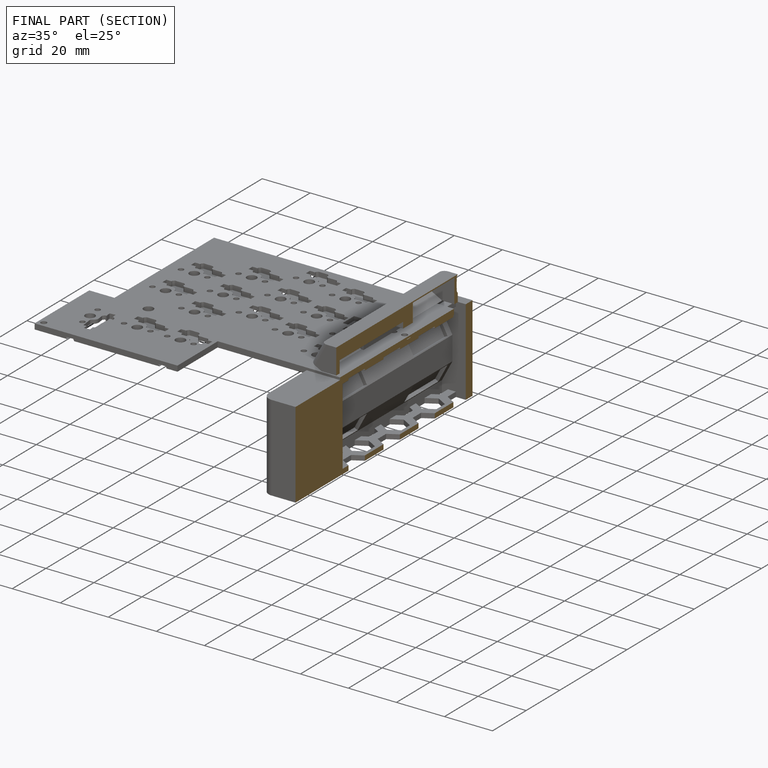
[diagram: finished part — half-section view (interior)]
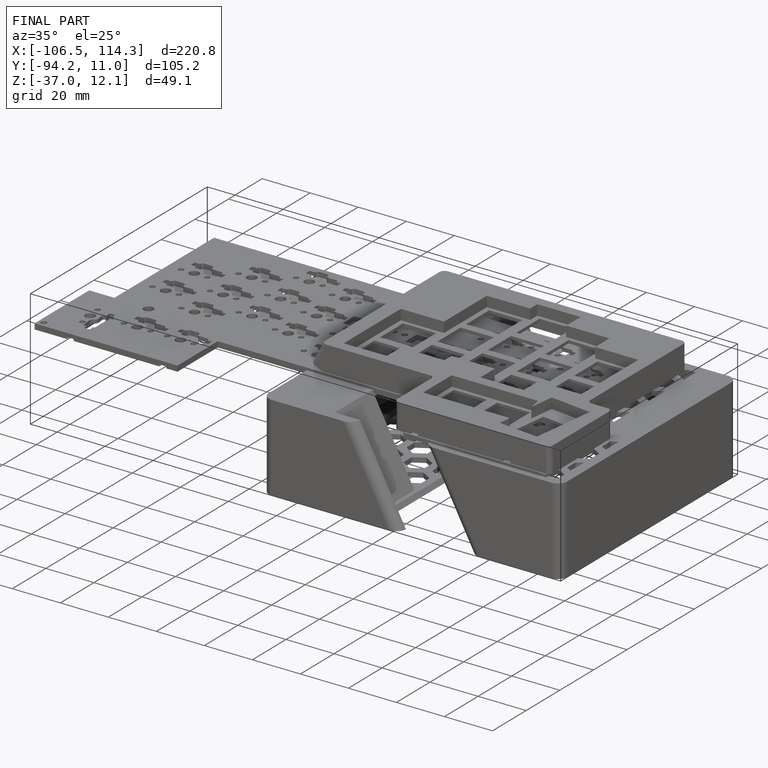
[diagram: finished part — iso view with bounding-box wireframe]
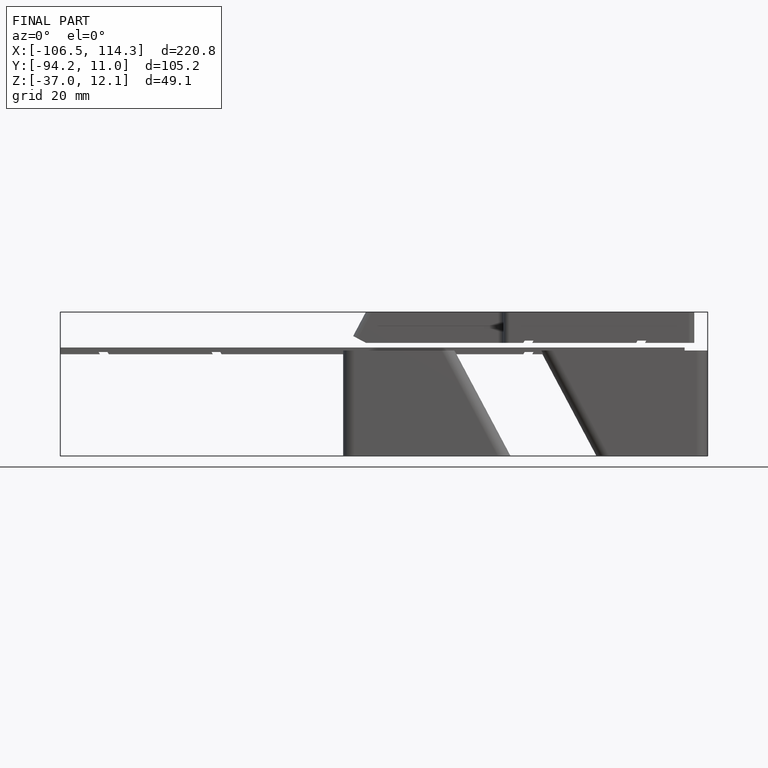
[diagram: finished part — front view with bounding-box wireframe]
